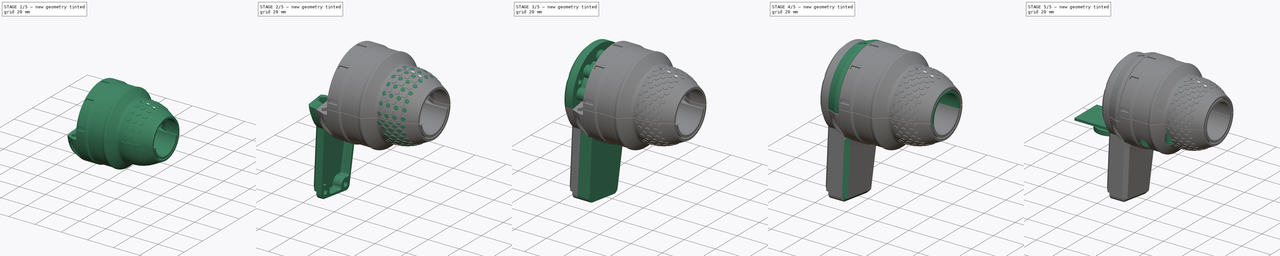
[diagram: build sequence overview — one tinted view per stage of 5, left to right]
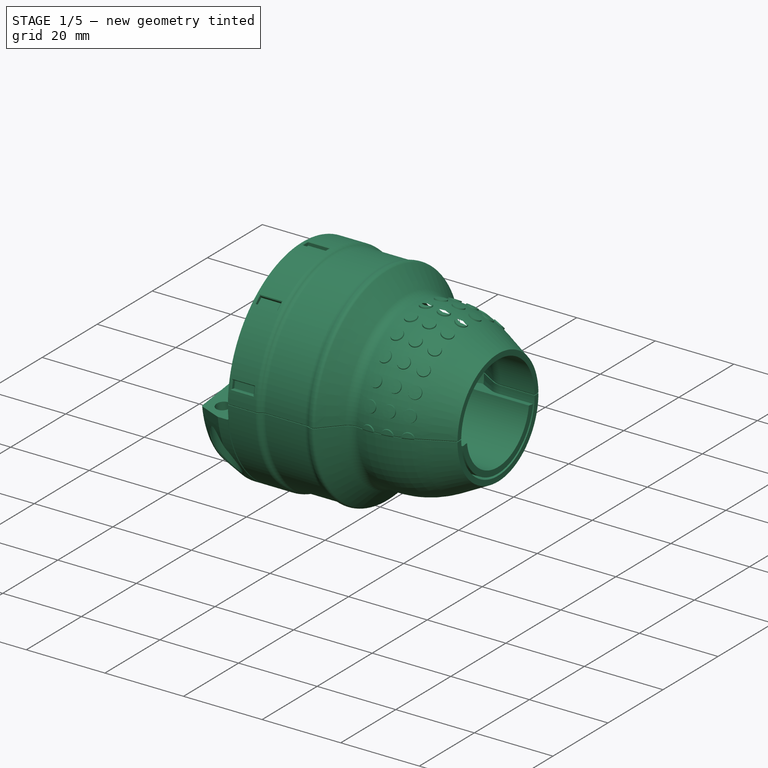
[diagram: stage 1 of 5 — iso view after this stage's code; geometry added in this stage tinted green]
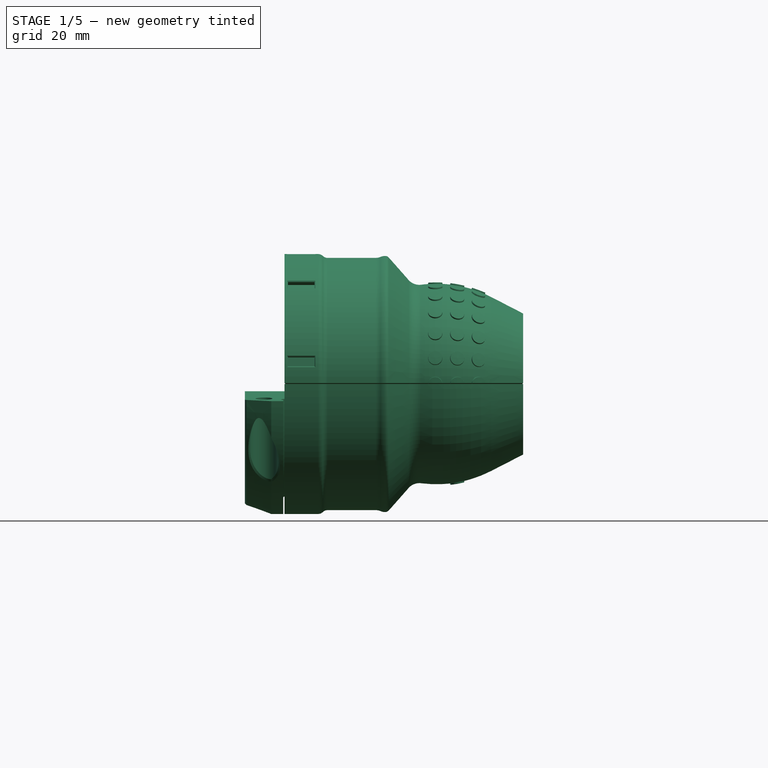
[diagram: stage 1 of 5 — front view after this stage's code; geometry added in this stage tinted green]
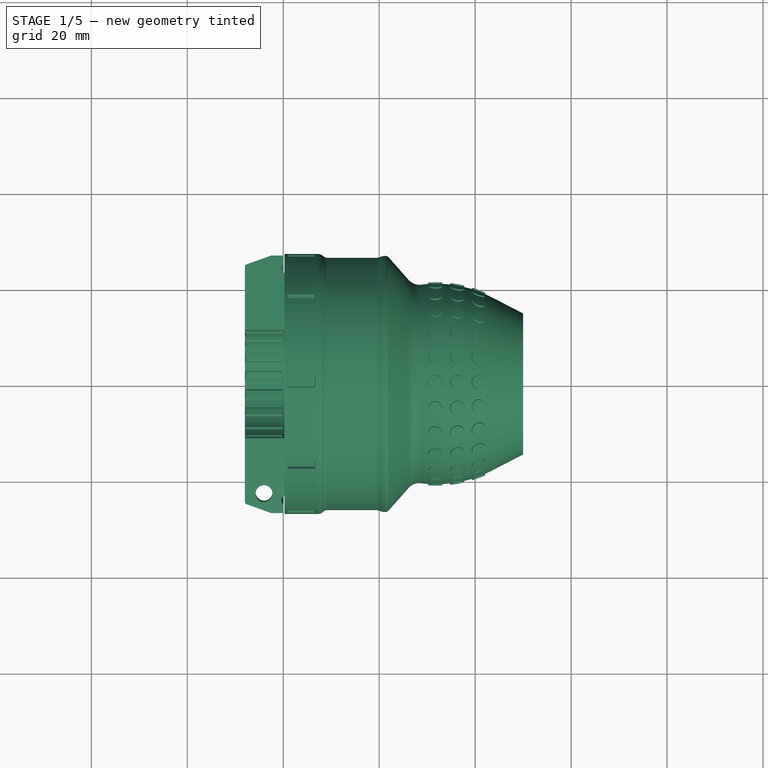
[diagram: stage 1 of 5 — top view after this stage's code; geometry added in this stage tinted green]
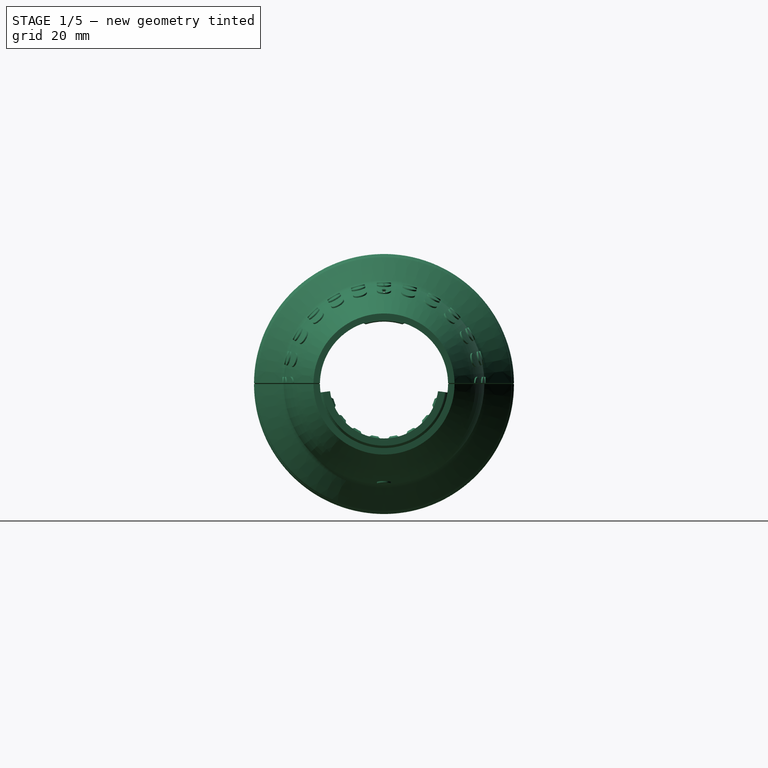
[diagram: stage 1 of 5 — right view after this stage's code; geometry added in this stage tinted green]
FCSTD DOCUMENT  (FreeCAD 1.0R39285 (Git))
Label: likertshift
License: All rights reserved
LicenseURL: http://en.wikipedia.org/wiki/All_rights_reserved
objects: Part::Feature×363, Sketcher::SketchObject×68, App::Part×44, PartDesign::Pocket×41, PartDesign::Chamfer×29, PartDesign::Mirrored×18, Part::Fuse×16, PartDesign::Revolution×15, PartDesign::PolarPattern×15, PartDesign::Line×11, PartDesign::Body×8, PartDesign::Plane×8, PartDesign::Groove×7, Part::Mirroring×6, PartDesign::MultiTransform×6, PartDesign::Pad×5, Part::Cylinder×4, Part::FeaturePython×4, Part::Box×3, Part::Sphere×2, +5 more types
note: 937 computed .brp shape members not serialized (recipe doc carries the construction recipe); baked Part::Feature solids carry a one-line shape summary decoded from their .brp

FEATURE [Sketcher::SketchObject] Sketch019
  ArcFitTolerance = 0
  AttachmentOffset = pos=(0,0,0) rot=(1,0,0;1.69017rad)
  AttachmentSupport = -> [XZ_Plane001]
  FullyConstrained = true
  MakeInternals = false
  MapMode = 5
  Placement = pos=(0,0,0) rot=(1,0,0;3.26097rad)
  expr: .AttachmentOffset.Rotation.Angle = (<<params>>.movement_range + <<params>>.rotator_angle + <<params>>.extra_angle) / 2
  expr: Constraints[2] = <<params>>.track_radius + 5 mm
  sketch-geometry (1):
    g0: Circle CenterX=-4 CenterY=23 CenterZ=0 NormalX=0 NormalY=0 NormalZ=1 AngleXU=0 Radius=2.35
  constraints (3):
    c: Diameter(g0) = 4.7
    c: DistanceX(g0,g-1) = 4
    c: DistanceY(g-1,g0) = 23
FEATURE [Sketcher::SketchObject] Sketch020
  ArcFitTolerance = 0
  AttachmentOffset = pos=(0,0,0) rot=(1,0,0;1.69017rad)
  AttachmentSupport = -> [XZ_Plane001]
  FullyConstrained = true
  MakeInternals = false
  MapMode = 5
  Placement = pos=(0,0,0) rot=(1,0,0;3.26097rad)
  expr: .AttachmentOffset.Rotation.Angle = (<<params>>.movement_range + <<params>>.rotator_angle + <<params>>.extra_angle) / 2
  expr: Constraints[2] = <<params>>.track_radius + 5 mm
  sketch-geometry (1):
    g0: Circle CenterX=-4 CenterY=23 CenterZ=0 NormalX=0 NormalY=0 NormalZ=1 AngleXU=0 Radius=1.5
  constraints (3):
    c: Diameter(g0) = 3
    c: DistanceX(g0,g-1) = 4
    c: DistanceY(g-1,g0) = 23
FEATURE [Sketcher::SketchObject] Sketch030
  ArcFitTolerance = 0
  AttachmentSupport = -> [XZ_Plane006]
  FullyConstrained = true
  MakeInternals = false
  MapMode = 5
  Placement = pos=(0,0,0) rot=(1,0,0;1.5708rad)
  expr: Constraints[113] = <<params>>.grip_bar_diameter / 2 + <<params>>.wall_thickness
  expr: Constraints[22] = 18
  expr: Constraints[8] = <<params>>.track_radius
  expr: Constraints[9] = Sketch007.Constraints.main_radius
  sketch-geometry (50):
    g0: LineSegment StartX=0.25 StartY=27.1 StartZ=0 EndX=7.25 EndY=27.1 EndZ=0
    g1: LineSegment StartX=7.1 StartY=13.35 StartZ=0 EndX=7.1 EndY=25.35 EndZ=0
    g2: LineSegment StartX=0.25 StartY=27.1 StartZ=0 EndX=0.25 EndY=24.35 EndZ=0
    g3: LineSegment StartX=0.25 StartY=24.35 StartZ=0 EndX=5.94788 EndY=25.8087 EndZ=0
    g4: GeomPoint [constr] X=7.1 Y=18 Z=0
    g5: LineSegment StartX=9.25 StartY=26.3 StartZ=0 EndX=19.25 EndY=26.3 EndZ=0
    g6: ArcOfCircle CenterX=19.25 CenterY=28.9 CenterZ=0 NormalX=0 NormalY=0 NormalZ=1 AngleXU=0 Radius=2.6 StartAngle=4.71239 EndAngle=5.10718
    g7: ArcOfCircle CenterX=21.25 CenterY=24.1 CenterZ=0 NormalX=0 NormalY=0 NormalZ=1 AngleXU=0 Radius=2.6 StartAngle=1.5708 EndAngle=1.96559
    g8: ArcOfCircle CenterX=9.25 CenterY=27.75 CenterZ=0 NormalX=0 NormalY=0 NormalZ=1 AngleXU=0 Radius=1.45 StartAngle=3.95138 EndAngle=4.71239
    g9: ArcOfCircle CenterX=7.25 CenterY=25.65 CenterZ=0 NormalX=0 NormalY=0 NormalZ=1 AngleXU=0 Radius=1.45 StartAngle=0.809784 EndAngle=1.5708
    g10: LineSegment [constr] StartX=7.1 StartY=23.3 StartZ=0 EndX=25.1 EndY=23.3 EndZ=0
    g11: LineSegment [constr] StartX=25.1 StartY=23.3 StartZ=0 EndX=25.1 EndY=13.35 EndZ=0
    g12: LineSegment StartX=6.90299 StartY=25.547 StartZ=0 EndX=7.1 EndY=25.35 EndZ=0
    g13: LineSegment [constr] StartX=6.5 StartY=25.95 StartZ=0 EndX=7.1 EndY=25.95 EndZ=0
    g14: LineSegment [constr] StartX=7.1 StartY=25.35 StartZ=0 EndX=7.1 EndY=25.95 EndZ=0
    g15: ArcOfCircle CenterX=6.19589 CenterY=24.8399 CenterZ=0 NormalX=0 NormalY=0 NormalZ=1 AngleXU=0 Radius=1 StartAngle=0.785398 EndAngle=1.82141
    g16: GeomPoint [constr] X=6.5 Y=25.95 Z=0
    g17: LineSegment StartX=31.1876 StartY=14.0625 StartZ=0 EndX=35 EndY=16.35 EndZ=0
    g18: ArcOfCircle CenterX=28.6151 CenterY=18.35 CenterZ=0 NormalX=0 NormalY=0 NormalZ=1 AngleXU=0 Radius=5 StartAngle=4.71239 EndAngle=5.25281
    g19: GeomPoint [constr] X=30 Y=13.35 Z=0
    g20: LineSegment StartX=7.1 StartY=13.35 StartZ=0 EndX=14.5602 EndY=13.35 EndZ=0
    g21: LineSegment StartX=28.6151 StartY=13.35 StartZ=0 EndX=26 EndY=13.35 EndZ=0
    g22: ArcOfCircle CenterX=21.6106 CenterY=16.8648 CenterZ=0 NormalX=0 NormalY=0 NormalZ=1 AngleXU=0 Radius=2.5 StartAngle=0.298499 EndAngle=2.35619
    g23: LineSegment StartX=14.5602 StartY=13.35 StartZ=0 EndX=19.8428 EndY=18.6326 EndZ=0
    g24: LineSegment [constr] StartX=14.5602 StartY=13.35 StartZ=0 EndX=19.8428 EndY=13.35 EndZ=0
    g25: LineSegment [constr] StartX=19.8428 StartY=13.35 StartZ=0 EndX=19.8428 EndY=18.6326 EndZ=0
    g26: LineSegment StartX=25 StartY=14.35 StartZ=0 EndX=24 EndY=17.6 EndZ=0
    g27: LineSegment StartX=26 StartY=13.35 StartZ=0 EndX=25 EndY=14.35 EndZ=0
    g28: LineSegment [constr] StartX=25 StartY=14.35 StartZ=0 EndX=25 EndY=13.35 EndZ=0
    g29: LineSegment [constr] StartX=25 StartY=13.35 StartZ=0 EndX=26 EndY=13.35 EndZ=0
    g30: ArcOfCircle CenterX=31.9059 CenterY=-4.1 CenterZ=0 NormalX=0 NormalY=0 NormalZ=1 AngleXU=0 Radius=25 StartAngle=1.09497 EndAngle=1.69737
    g31: ArcOfCircle CenterX=28.3713 CenterY=23.676 CenterZ=0 NormalX=0 NormalY=0 NormalZ=1 AngleXU=0 Radius=3 StartAngle=3.86468 EndAngle=4.83896
    g32: LineSegment [constr] StartX=31.9059 StartY=20.9 StartZ=0 EndX=31.9059 EndY=13.35 EndZ=0
    g33: ArcOfCircle CenterX=21.25 CenterY=25.7 CenterZ=0 NormalX=0 NormalY=0 NormalZ=1 AngleXU=0 Radius=1 StartAngle=0.72309 EndAngle=1.5708
    g34: LineSegment StartX=26.122 StartY=21.6909 StartZ=0 EndX=21.9998 EndY=26.3617 EndZ=0
    g35: LineSegment StartX=50 StartY=14.7 StartZ=0 EndX=50 EndY=13.35 EndZ=0
    g36: LineSegment StartX=50 StartY=13.35 StartZ=0 EndX=41.3849 EndY=13.35 EndZ=0
    g37: LineSegment [constr] StartX=21.25 StartY=26.7 StartZ=0 EndX=21.25 EndY=23.3 EndZ=0
    g38: LineSegment StartX=35 StartY=16.35 StartZ=0 EndX=38.8124 EndY=14.0625 EndZ=0
    g39: ArcOfCircle CenterX=41.3849 CenterY=18.35 CenterZ=0 NormalX=0 NormalY=0 NormalZ=1 AngleXU=0 Radius=5 StartAngle=4.17197 EndAngle=4.71239
    g40: LineSegment StartX=43.3578 StartY=18.1229 StartZ=0 EndX=50 EndY=14.7 EndZ=0
    g41: LineSegment [constr] StartX=7.1 StartY=12.6 StartZ=0 EndX=50 EndY=12.6 EndZ=0
    g42: LineSegment [constr] StartX=36.2494 StartY=20.5198 StartZ=0 EndX=36.0757 EndY=19.535 EndZ=0
    g43: LineSegment [constr] StartX=40.6633 StartY=19.316 StartZ=0 EndX=40.313 EndY=18.3793 EndZ=0
    g44: LineSegment [constr] StartX=31.6901 StartY=20.8991 StartZ=0 EndX=31.6987 EndY=19.8991 EndZ=0
    g45: LineSegment [constr] StartX=31.6987 StartY=19.8991 StartZ=0 EndX=36.0757 EndY=19.535 EndZ=0
    g46: LineSegment [constr] StartX=36.0757 StartY=19.535 StartZ=0 EndX=40.313 EndY=18.3793 EndZ=0
    g47: LineSegment [constr] StartX=31.6987 StartY=19.8991 StartZ=0 EndX=28.75 EndY=20.7 EndZ=0
    g48: LineSegment [constr] StartX=40.313 StartY=18.3793 StartZ=0 EndX=43.3578 EndY=18.1229 EndZ=0
    g49: LineSegment [constr] StartX=36.0757 StartY=19.535 StartZ=0 EndX=32.6293 EndY=0 EndZ=0
  constraints (143):
    c: Horizontal(g0)
    c: Vertical(g1)
    c: Coincident(g2,g0)
    c: Vertical(g2)
    c: Coincident(g3,g2)
    c: DistanceX(g-1,g1) = 7.1
    c: DistanceX(g-1,g0) = 0.25
    c: PointOnObject(g4,g1)
    c: DistanceY(g-1,g4) = 18
    c: DistanceY(g-1,g0) = 27.1
    c: DistanceY(g2,g2) = 2.75
    c: Tangent(g9,g0) = 1.5708
    c: Tangent(g9,g8) = 1.5708
    c: Tangent(g8,g5) = -1.5708
    c: Tangent(g6,g5) = -1.5708
    c: Tangent(g7,g6) = 1.5708
    c: Coincident(g7,g33) = 1.5708
    c: PointOnObject(g10,g1)
    c: Horizontal(g10)
    c: Coincident(g11,g10)
    c: Vertical(g11)
    c: DistanceY(g4,g10) = 5.3
    c: DistanceX(g10,g10) = 18
    c: DistanceY(g5,g33) = 0.4
    c: DistanceY(g10,g5) = 3
    c: Coincident(g12,g1)
    c: Coincident(g13,g16)
    c: Coincident(g14,g1)
    c: Horizontal(g13)
    c: Equal(g13,g14)
    c: DistanceY(g14,g14) = 0.6
    c: Vertical(g14)
    c: DistanceY(g3,g16) = 1.6
    c: Equal(g7,g6)
    c: PointOnObject(g16,g3)
    c: PointOnObject(g16,g12)
    c: Tangent(g3,g15) = 1.5708
    c: Tangent(g12,g15) = 1.5708
    c: Radius(g15) = 1
    c: PointOnObject(g19,g17)
    c: Tangent(g17,g18) = -1.5708
    c: DistanceX(g19,g17) = 5
    c: Radius(g18) = 5
    c: Coincident(g20,g1)
    c: Horizontal(g20)
    c: Horizontal(g21)
    c: Tangent(g21,g18) = 1.5708
    c: PointOnObject(g21,g20)
    c: Diameter(g22) = 5
    c: PointOnObject(g11,g20)
    c: Coincident(g23,g20)
    c: Coincident(g24,g20)
    c: Horizontal(g24)
    c: Coincident(g25,g24)
    c: Coincident(g25,g22)
    c: Vertical(g25)
    c: Equal(g25,g24)
    c: Tangent(g23,g22) = 1.5708
    c: Tangent(g26,g22) = -1.5708
    c: Coincident(g27,g21)
    c: Coincident(g27,g26)
    c: Coincident(g28,g26)
    c: Vertical(g28)
    c: Coincident(g29,g28)
    c: Coincident(g29,g21)
    c: Horizontal(g29)
    c: Equal(g29,g28)
    c: DistanceX(g29,g29) = 1
    c: DistanceX(g-1,g28) = 25
    c: DistanceX(g26,g26) = 1
    c: DistanceY(g18,g17) = 3
    c: DistanceX(g5,g33) = 2
    c: PointOnObject(g19,g21)
    c: Tangent(g31,g30) = 1.5708
    c: PointOnObject(g32,g30)
    c: Vertical(g32)
    c: Perpendicular(g30,g32)
    c: Tangent(g34,g33) = -1.5708
    c: Tangent(g34,g31) = 1.5708
    c: Tangent(g33,g7)
    c: Horizontal(g5)
    c: DistanceX(g0,g5) = 2
    c: Equal(g9,g8)
    c: Coincident(g13,g14)
    c: DistanceX(g0,g0) = 7
    c: Coincident(g36,g35)
    c: Horizontal(g36)
    c: PointOnObject(g36,g24)
    c: Vertical(g35)
    c: DistanceX(g-1,g35) = 50
    c: Coincident(g37,g7)
    c: PointOnObject(g37,g10)
    c: Vertical(g37)
    c: Perpendicular(g7,g37)
    c: Coincident(g38,g17)
    c: Tangent(g39,g36) = 1.5708
    c: Tangent(g39,g38) = -1.5708
    c: Equal(g39,g18)
    c: Equal(g38,g17)
    c: DistanceX(g5,g5) = 10
    c: DistanceX(g7,g30) = 7.5
    c: DistanceY(g30,g7) = 6
    c: Coincident(g40,g35)
    c: Tangent(g40,g30) = 1.5708
    c: DistanceY(g30,g32) = 0.2
    c: Radius(g31) = 3
    c: PointOnObject(g32,g21)
    c: Radius(g33) = 1
    c: Radius(g30) = 25  'bump_axis_length'
    c: DistanceX(g-1,g17) = 35
    c: Horizontal(g41)
    c: PointOnObject(g41,g1)
    c: PointOnObject(g41,g35)
    c: DistanceY(g-1,g41) = 12.6
    c: DistanceY(g41,g1) = 0.75
    c: DistanceY(g41,g35) = 2.1
    c: DistanceY(g41,g22) = 5
    c: PointOnObject(g42,g30)
    c: PointOnObject(g43,g30)
    c: PointOnObject(g44,g30)
    c: Coincident(g45,g44)
    c: Coincident(g45,g42)
    c: Coincident(g46,g42)
    c: Coincident(g46,g43)
    c: Equal(g45,g46)
    c: Perpendicular(g30,g42)
    c: Perpendicular(g30,g43)
    c: Perpendicular(g30,g44)
    c: Equal(g44,g42)
    c: Equal(g42,g43)
    c: Coincident(g47,g44)
    c: Coincident(g47,g30)
    c: Coincident(g48,g43)
    c: Coincident(g48,g30)
    c: Equal(g48,g47)
    c: DistanceY(g44,g44) = 1
    c: Coincident(g49,g42)
    c: PointOnObject(g49,g-1)
    c: Parallel(g49,g42)
    c: Angle(g-1,g49) = 1.39617  'center_bump_axis_angle'
    c: Angle(g42,g44) = 0.18326  'angle_between_bumps'
    c: Distance(g49,g30) = 4.16332  'bump_axis_z_offset'
    c: DistanceX(g-1,g49) = 32.6293  'bump_axis_x_offset'
FEATURE [PartDesign::Revolution] Revolution005
  Angle = 180
  Angle2 = 60
  Axis = (1,0,0)
  Base = (0,0,0)
  Midplane = true
  Placement = pos=(0,0,0) rot=(1,0,0;1.5708rad)
  Profile = -> Sketch030
  ReferenceAxis = -> Sketch030 [H_Axis]
  Suppressed = false
  Type = 0
FEATURE [Sketcher::SketchObject] Sketch031
  ArcFitTolerance = 0
  AttachmentSupport = -> [XZ_Plane006]
  FullyConstrained = true
  MakeInternals = false
  MapMode = 5
  Placement = pos=(0,0,0) rot=(1,0,0;1.5708rad)
  expr: Constraints[11] = <<params>>.wall_thickness
  expr: Constraints[24] = <<params>>.track_radius
  sketch-geometry (12):
    g0: LineSegment StartX=7 StartY=12.7 StartZ=0 EndX=24 EndY=12.7 EndZ=0
    g1: LineSegment StartX=7 StartY=23.3 StartZ=0 EndX=22.5 EndY=23.3 EndZ=0
    g2: LineSegment StartX=24 StartY=12.7 StartZ=0 EndX=24 EndY=14.9 EndZ=0
    g3: LineSegment StartX=7 StartY=12.7 StartZ=0 EndX=7 EndY=23.3 EndZ=0
    g4: LineSegment [constr] StartX=8.5 StartY=21.1 StartZ=0 EndX=8.5 EndY=14.9 EndZ=0
    g5: LineSegment [constr] StartX=8.5 StartY=14.9 StartZ=0 EndX=24 EndY=14.9 EndZ=0
    g6: LineSegment [constr] StartX=8.5 StartY=21.1 StartZ=0 EndX=24 EndY=21.1 EndZ=0
    g7: LineSegment [constr] StartX=24 StartY=21.1 StartZ=0 EndX=24 EndY=23.3 EndZ=0
    g8: LineSegment StartX=24 StartY=21.1 StartZ=0 EndX=24 EndY=14.9 EndZ=0
    g9: GeomPoint [constr] X=7 Y=18 Z=0
    g10: LineSegment StartX=24 StartY=21.6 StartZ=0 EndX=22.5 EndY=23.3 EndZ=0
    g11: LineSegment StartX=24 StartY=21.6 StartZ=0 EndX=24 EndY=21.1 EndZ=0
  constraints (33):
    c: Horizontal(g0)
    c: Horizontal(g1)
    c: Coincident(g2,g0)
    c: Coincident(g1,g3)
    c: Vertical(g3)
    c: Vertical(g4)
    c: Coincident(g5,g4)
    c: Horizontal(g5)
    c: Coincident(g6,g4)
    c: Horizontal(g6)
    c: Coincident(g7,g6)
    c: DistanceX(g3,g4) = 1.5
    c: Coincident(g8,g7)
    c: Coincident(g8,g2)
    c: Coincident(g2,g5)
    c: Vertical(g2)
    c: Vertical(g7)
    c: Vertical(g8)
    c: DistanceX(g6,g6) = 15.5
    c: Equal(g7,g2)
    c: DistanceY(g4,g4) = 6.2
    c: Coincident(g0,g3)
    c: DistanceY(g3,g3) = 10.6
    c: DistanceX(g-1,g0) = 7
    c: DistanceY(g-1,g9) = 18
    c: Symmetric(g1,g0,g9)
    c: PointOnObject(g10,g7)
    c: Coincident(g10,g1)
    c: DistanceY(g8,g10) = 0.5
    c: DistanceX(g10,g10) = 1.5
    c: PointOnObject(g7,g1)
    c: Coincident(g11,g10)
    c: Coincident(g11,g8)
FEATURE [PartDesign::Groove] Groove002
  Angle = 38.7188
  Angle2 = 60
  Axis = (1,0,0)
  Base = (0,0,0)
  BaseFeature = -> Revolution005
  Midplane = true
  Placement = pos=(0,0,0) rot=(1,0,0;1.5708rad)
  Profile = -> Sketch031
  ReferenceAxis = -> Sketch031 [H_Axis]
  Refine = true
  Reversed = true
  Suppressed = false
  Type = 0
  expr: Angle = <<params>>.rotator_angle * 1.5 + 0.2 °
FEATURE [Sketcher::SketchObject] Sketch038
  ArcFitTolerance = 0
  AttachmentOffset = pos=(0,0,-23.5) rot=(0,0,1;0rad)
  AttachmentSupport = -> [YZ_Plane006]
  FullyConstrained = true
  MakeInternals = false
  MapMode = 5
  Placement = pos=(23.5,0,0) rot=(0.57735,-0.57735,-0.57735;2.0944rad)
  expr: Constraints[2] = <<params>>.track_radius
  sketch-geometry (1):
    g0: Circle CenterX=0 CenterY=18 CenterZ=0 NormalX=0 NormalY=0 NormalZ=1 AngleXU=0 Radius=3.2
  constraints (3):
    c: PointOnObject(g0,g-2)
    c: Diameter(g0) = 6.4
    c: DistanceY(g-1,g0) = 18
FEATURE [PartDesign::Pocket] Pocket019
  BaseFeature = -> Groove002
  Direction = (1,0,0)
  Length = 2
  Length2 = 5
  Placement = pos=(0,0,0) rot=(1,0,0;1.5708rad)
  Profile = -> Sketch038
  ReferenceAxis = -> Sketch038 [N_Axis]
  Refine = true
  Suppressed = false
  Type = 0
FEATURE [Sketcher::SketchObject] Sketch052
  ArcFitTolerance = 0
  AttachmentSupport = -> [XZ_Plane001]
  FullyConstrained = true
  MakeInternals = false
  MapMode = 5
  Placement = pos=(0,0,0) rot=(1,0,0;1.5708rad)
  expr: Constraints[11] = <<params>>.grip_bar_diameter / 2 + 0.25 mm
  expr: Constraints[7] = <<params>>.wall_thickness
  expr: Constraints[9] = <<params>>.ball_size + 6 mm + 14 mm
  sketch-geometry (8):
    g0: ArcOfCircle CenterX=21 CenterY=12.85 CenterZ=0 NormalX=0 NormalY=0 NormalZ=1 AngleXU=0 Radius=1.5 StartAngle=4.71239 EndAngle=6.28319
    g1: LineSegment StartX=22.5 StartY=12.85 StartZ=0 EndX=24 EndY=12.85 EndZ=0
    g2: LineSegment StartX=24 StartY=12.85 StartZ=0 EndX=24 EndY=11.35 EndZ=0
    g3: LineSegment StartX=24 StartY=11.35 StartZ=0 EndX=21 EndY=11.35 EndZ=0
    g4: LineSegment StartX=-8 StartY=13.1 StartZ=0 EndX=-8 EndY=11.35 EndZ=0
    g5: LineSegment StartX=-8 StartY=13.1 StartZ=0 EndX=-6.5 EndY=13.1 EndZ=0
    g6: LineSegment StartX=-8 StartY=11.35 StartZ=0 EndX=-4.75 EndY=11.35 EndZ=0
    g7: ArcOfCircle CenterX=-4.75 CenterY=13.1 CenterZ=0 NormalX=0 NormalY=0 NormalZ=1 AngleXU=0 Radius=1.75 StartAngle=3.14159 EndAngle=4.71239
  constraints (24):
    c: Coincident(g1,g0)
    c: Horizontal(g1)
    c: Coincident(g2,g1)
    c: Vertical(g2)
    c: Coincident(g3,g2)
    c: Horizontal(g3)
    c: Tangent(g3,g0) = 1.5708
    c: DistanceY(g2,g2) = 1.5
    c: Perpendicular(g0,g1)
    c: DistanceX(g-1,g2) = 24
    c: DistanceX(g1,g1) = 1.5
    c: DistanceY(g-1,g0) = 11.35
    c: Vertical(g4)
    c: Coincident(g5,g4)
    c: Horizontal(g5)
    c: Coincident(g6,g4)
    c: Horizontal(g6)
    c: Coincident(g7,g5)
    c: Tangent(g7,g6) = -1.5708
    c: Perpendicular(g7,g5)
    c: PointOnObject(g6,g3)
    c: DistanceX(g4,g-1) = 8
    c: DistanceX(g5,g5) = 1.5
    c: DistanceY(g4,g4) = 1.75
FEATURE [Sketcher::SketchObject] Sketch053
  ArcFitTolerance = 0
  AttachmentOffset = pos=(0,0,8) rot=(0,0,1;-1.0472rad)
  AttachmentSupport = -> [YZ_Plane001]
  FullyConstrained = true
  MakeInternals = false
  MapMode = 5
  Placement = pos=(-8,0,0) rot=(-0.694747,0.186157,0.694747;3.50969rad)
  expr: .AttachmentOffset.Rotation.Angle = -(<<params>>.positions / 2 - 1) * <<params>>.angle_between
  expr: Constraints[2] = <<params>>.track_radius + 2.5 mm
  sketch-geometry (1):
    g0: Circle CenterX=0 CenterY=20.5 CenterZ=0 NormalX=0 NormalY=0 NormalZ=1 AngleXU=0 Radius=2.35
  constraints (3):
    c: PointOnObject(g0,g-2)
    c: Diameter(g0) = 4.7
    c: DistanceY(g-1,g0) = 20.5
FEATURE [Sketcher::SketchObject] Sketch054
  ArcFitTolerance = 0
  AttachmentOffset = pos=(0,0,8) rot=(0,0,1;-1.0472rad)
  AttachmentSupport = -> [YZ_Plane001]
  FullyConstrained = true
  MakeInternals = false
  MapMode = 5
  Placement = pos=(-8,0,0) rot=(-0.694747,0.186157,0.694747;3.50969rad)
  expr: .AttachmentOffset.Rotation.Angle = -(<<params>>.positions / 2 - 1) * <<params>>.angle_between
  expr: Constraints[2] = <<params>>.track_radius + 2.5 mm
  sketch-geometry (1):
    g0: Circle CenterX=0 CenterY=20.5 CenterZ=0 NormalX=0 NormalY=0 NormalZ=1 AngleXU=0 Radius=1.5
  constraints (3):
    c: PointOnObject(g0,g-2)
    c: Diameter(g0) = 3
    c: DistanceY(g-1,g0) = 20.5
FEATURE [Sketcher::SketchObject] Sketch055
  ArcFitTolerance = 0
  AttachmentSupport = -> [XY_Plane006]
  FullyConstrained = true
  MakeInternals = false
  MapMode = 5
  Placement = pos=(0,0,0) rot=(0,1,0;3.14159rad)
  expr: Constraints[3] = <<params>>.track_radius + 2 mm
  expr: Constraints[8] = <<params>>.track_radius - 1.25 mm
  sketch-geometry (3):
    g0: Circle CenterX=-28.5 CenterY=16.75 CenterZ=0 NormalX=0 NormalY=0 NormalZ=1 AngleXU=0 Radius=2.35
    g1: Circle CenterX=-13 CenterY=20 CenterZ=0 NormalX=0 NormalY=0 NormalZ=1 AngleXU=0 Radius=2.35
    g2: LineSegment [constr] StartX=-13 StartY=20 StartZ=0 EndX=0 EndY=20 EndZ=0
  constraints (9):
    c: Coincident(g2,g1)
    c: PointOnObject(g2,g-2)
    c: Horizontal(g2)
    c: DistanceY(g-1,g2) = 20
    c: DistanceX(g2,g2) = 13
    c: Equal(g1,g0)
    c: Diameter(g1) = 4.7
    c: DistanceX(g0,g2) = 28.5
    c: DistanceY(g-1,g0) = 16.75
FEATURE [PartDesign::Pocket] Pocket030
  BaseFeature = -> Pocket019
  Direction = (0,0,1)
  Length = 4
  Length2 = 5
  Placement = pos=(0,0,0) rot=(1,0,0;1.5708rad)
  Profile = -> Sketch055
  ReferenceAxis = -> Sketch055 [N_Axis]
  Suppressed = false
  Type = 0
FEATURE [Sketcher::SketchObject] Sketch056
  ArcFitTolerance = 0
  AttachmentSupport = -> [XY_Plane006]
  FullyConstrained = true
  MakeInternals = false
  MapMode = 5
  Placement = pos=(0,0,0) rot=(0,1,0;3.14159rad)
  expr: Constraints[3] = <<params>>.track_radius + 2 mm
  expr: Constraints[7] = <<params>>.track_radius - 1.25 mm
  sketch-geometry (3):
    g0: Circle CenterX=-28.5 CenterY=16.75 CenterZ=0 NormalX=0 NormalY=0 NormalZ=1 AngleXU=0 Radius=1.5
    g1: Circle CenterX=-13 CenterY=20 CenterZ=0 NormalX=0 NormalY=0 NormalZ=1 AngleXU=0 Radius=1.5
    g2: LineSegment [constr] StartX=-13 StartY=20 StartZ=0 EndX=0 EndY=20 EndZ=0
  constraints (9):
    c: Coincident(g2,g1)
    c: PointOnObject(g2,g-2)
    c: Horizontal(g2)
    c: DistanceY(g-1,g2) = 20
    c: Equal(g1,g0)
    c: Diameter(g1) = 3
    c: DistanceX(g1,g2) = 13
    c: DistanceY(g-1,g0) = 16.75
    c: DistanceX(g0,g-1) = 28.5
FEATURE [PartDesign::Pocket] Pocket031
  BaseFeature = -> Pocket030
  Direction = (0,0,1)
  Length = 8
  Length2 = 5
  Placement = pos=(0,0,0) rot=(1,0,0;1.5708rad)
  Profile = -> Sketch056
  ReferenceAxis = -> Sketch056 [N_Axis]
  Suppressed = false
  Type = 0
FEATURE [Sketcher::SketchObject] Sketch085
  ArcFitTolerance = 0
  AttachmentSupport = -> [XZ_Plane001]
  FullyConstrained = true
  MakeInternals = false
  MapMode = 5
  Placement = pos=(0,0,0) rot=(1,0,0;1.5708rad)
  expr: Constraints[7] = <<params>>.grip_bar_diameter / 2
  sketch-geometry (5):
    g0: LineSegment StartX=-8 StartY=16.1 StartZ=0 EndX=-8 EndY=12.1 EndZ=0
    g1: LineSegment StartX=-8 StartY=12.1 StartZ=0 EndX=-6.5 EndY=12.85 EndZ=0
    g2: LineSegment StartX=-6.5 StartY=12.85 StartZ=0 EndX=-6.5 EndY=15.35 EndZ=0
    g3: LineSegment StartX=-6.5 StartY=15.35 StartZ=0 EndX=-8 EndY=16.1 EndZ=0
    g4: GeomPoint [constr] X=-8 Y=11.1 Z=0
  constraints (14):
    c: Vertical(g0)
    c: Coincident(g0,g1)
    c: Coincident(g1,g2)
    c: Vertical(g2)
    c: Coincident(g2,g3)
    c: Coincident(g3,g0)
    c: Equal(g3,g1)
    c: DistanceY(g-1,g4) = 11.1
    c: DistanceX(g4,g-1) = 8
    c: PointOnObject(g4,g0)
    c: DistanceY(g4,g0) = 1
    c: DistanceY(g0,g0) = 4
    c: DistanceY(g2,g2) = 2.5
    c: DistanceX(g3,g3) = 1.5
FEATURE [Sketcher::SketchObject] Sketch092
  ArcFitTolerance = 0
  AttachmentOffset = pos=(0,0,0) rot=(-1,0,0;1.5708rad)
  AttachmentSupport = -> [XZ_Plane011]
  FullyConstrained = true
  MakeInternals = false
  MapMode = 5
  expr: Constraints[113] = <<params>>.grip_bar_diameter / 2 + <<params>>.wall_thickness
  expr: Constraints[22] = 18
  expr: Constraints[8] = <<params>>.track_radius
  expr: Constraints[9] = Sketch007.Constraints.main_radius
  sketch-geometry (42):
    g0: LineSegment StartX=0.25 StartY=27.1 StartZ=0 EndX=7.25 EndY=27.1 EndZ=0
    g1: LineSegment StartX=7.1 StartY=13.35 StartZ=0 EndX=7.1 EndY=25.35 EndZ=0
    g2: LineSegment StartX=0.25 StartY=27.1 StartZ=0 EndX=0.25 EndY=24.35 EndZ=0
    g3: LineSegment StartX=0.25 StartY=24.35 StartZ=0 EndX=5.94788 EndY=25.8087 EndZ=0
    g4: GeomPoint [constr] X=7.1 Y=18 Z=0
    g5: LineSegment StartX=9.25 StartY=26.3 StartZ=0 EndX=19.25 EndY=26.3 EndZ=0
    g6: ArcOfCircle CenterX=19.25 CenterY=28.9 CenterZ=0 NormalX=0 NormalY=0 NormalZ=1 AngleXU=0 Radius=2.6 StartAngle=4.71239 EndAngle=5.10718
    g7: ArcOfCircle CenterX=21.25 CenterY=24.1 CenterZ=0 NormalX=0 NormalY=0 NormalZ=1 AngleXU=0 Radius=2.6 StartAngle=1.5708 EndAngle=1.96559
    g8: ArcOfCircle CenterX=9.25 CenterY=27.75 CenterZ=0 NormalX=0 NormalY=0 NormalZ=1 AngleXU=0 Radius=1.45 StartAngle=3.95138 EndAngle=4.71239
    g9: ArcOfCircle CenterX=7.25 CenterY=25.65 CenterZ=0 NormalX=0 NormalY=0 NormalZ=1 AngleXU=0 Radius=1.45 StartAngle=0.809784 EndAngle=1.5708
    g10: LineSegment [constr] StartX=7.1 StartY=23.3 StartZ=0 EndX=25.1 EndY=23.3 EndZ=0
    g11: LineSegment [constr] StartX=25.1 StartY=23.3 StartZ=0 EndX=25.1 EndY=13.35 EndZ=0
    g12: LineSegment StartX=6.90299 StartY=25.547 StartZ=0 EndX=7.1 EndY=25.35 EndZ=0
    g13: LineSegment [constr] StartX=6.5 StartY=25.95 StartZ=0 EndX=7.1 EndY=25.95 EndZ=0
    g14: LineSegment [constr] StartX=7.1 StartY=25.35 StartZ=0 EndX=7.1 EndY=25.95 EndZ=0
    g15: ArcOfCircle CenterX=6.19589 CenterY=24.8399 CenterZ=0 NormalX=0 NormalY=0 NormalZ=1 AngleXU=0 Radius=1 StartAngle=0.785398 EndAngle=1.82141
    g16: GeomPoint [constr] X=6.5 Y=25.95 Z=0
    g17: LineSegment StartX=31.1876 StartY=14.0625 StartZ=0 EndX=35 EndY=16.35 EndZ=0
    g18: ArcOfCircle CenterX=28.6151 CenterY=18.35 CenterZ=0 NormalX=0 NormalY=0 NormalZ=1 AngleXU=0 Radius=5 StartAngle=4.71239 EndAngle=5.25281
    g19: GeomPoint [constr] X=30 Y=13.35 Z=0
    g20: LineSegment StartX=7.1 StartY=13.35 StartZ=0 EndX=14.5602 EndY=13.35 EndZ=0
    g21: LineSegment StartX=28.6151 StartY=13.35 StartZ=0 EndX=26 EndY=13.35 EndZ=0
    g22: ArcOfCircle CenterX=21.6106 CenterY=16.8648 CenterZ=0 NormalX=0 NormalY=0 NormalZ=1 AngleXU=0 Radius=2.5 StartAngle=0.298499 EndAngle=2.35619
    g23: LineSegment StartX=14.5602 StartY=13.35 StartZ=0 EndX=19.8428 EndY=18.6326 EndZ=0
    g24: LineSegment [constr] StartX=14.5602 StartY=13.35 StartZ=0 EndX=19.8428 EndY=13.35 EndZ=0
    g25: LineSegment [constr] StartX=19.8428 StartY=13.35 StartZ=0 EndX=19.8428 EndY=18.6326 EndZ=0
    g26: LineSegment StartX=25 StartY=14.35 StartZ=0 EndX=24 EndY=17.6 EndZ=0
    g27: LineSegment StartX=26 StartY=13.35 StartZ=0 EndX=25 EndY=14.35 EndZ=0
    g28: LineSegment [constr] StartX=25 StartY=14.35 StartZ=0 EndX=25 EndY=13.35 EndZ=0
    g29: LineSegment [constr] StartX=25 StartY=13.35 StartZ=0 EndX=26 EndY=13.35 EndZ=0
    g30: ArcOfCircle CenterX=31.9059 CenterY=-4.1 CenterZ=0 NormalX=0 NormalY=0 NormalZ=1 AngleXU=0 Radius=25 StartAngle=1.09497 EndAngle=1.69737
    g31: ArcOfCircle CenterX=28.3713 CenterY=23.676 CenterZ=0 NormalX=0 NormalY=0 NormalZ=1 AngleXU=0 Radius=3 StartAngle=3.86468 EndAngle=4.83896
    g32: LineSegment [constr] StartX=31.9059 StartY=20.9 StartZ=0 EndX=31.9059 EndY=13.35 EndZ=0
    g33: ArcOfCircle CenterX=21.25 CenterY=25.7 CenterZ=0 NormalX=0 NormalY=0 NormalZ=1 AngleXU=0 Radius=1 StartAngle=0.72309 EndAngle=1.5708
    g34: LineSegment StartX=26.122 StartY=21.6909 StartZ=0 EndX=21.9998 EndY=26.3617 EndZ=0
    g35: LineSegment StartX=50 StartY=14.7 StartZ=0 EndX=50 EndY=13.35 EndZ=0
    g36: LineSegment StartX=50 StartY=13.35 StartZ=0 EndX=41.3849 EndY=13.35 EndZ=0
    g37: LineSegment [constr] StartX=21.25 StartY=26.7 StartZ=0 EndX=21.25 EndY=23.3 EndZ=0
    g38: LineSegment StartX=35 StartY=16.35 StartZ=0 EndX=38.8124 EndY=14.0625 EndZ=0
    g39: ArcOfCircle CenterX=41.3849 CenterY=18.35 CenterZ=0 NormalX=0 NormalY=0 NormalZ=1 AngleXU=0 Radius=5 StartAngle=4.17197 EndAngle=4.71239
    g40: LineSegment StartX=43.3578 StartY=18.1229 StartZ=0 EndX=50 EndY=14.7 EndZ=0
    g41: LineSegment [constr] StartX=7.1 StartY=12.6 StartZ=0 EndX=50 EndY=12.6 EndZ=0
  constraints (117):
    c: Horizontal(g0)
    c: Vertical(g1)
    c: Coincident(g2,g0)
    c: Vertical(g2)
    c: Coincident(g3,g2)
    c: DistanceX(g-1,g1) = 7.1
    c: DistanceX(g-1,g0) = 0.25
    c: PointOnObject(g4,g1)
    c: DistanceY(g-1,g4) = 18
    c: DistanceY(g-1,g0) = 27.1
    c: DistanceY(g2,g2) = 2.75
    c: Tangent(g9,g0) = 1.5708
    c: Tangent(g9,g8) = 1.5708
    c: Tangent(g8,g5) = -1.5708
    c: Tangent(g6,g5) = -1.5708
    c: Tangent(g7,g6) = 1.5708
    c: Coincident(g7,g33) = 1.5708
    c: PointOnObject(g10,g1)
    c: Horizontal(g10)
    c: Coincident(g11,g10)
    c: Vertical(g11)
    c: DistanceY(g4,g10) = 5.3
    c: DistanceX(g10,g10) = 18
    c: DistanceY(g5,g33) = 0.4
    c: DistanceY(g10,g5) = 3
    c: Coincident(g12,g1)
    c: Coincident(g13,g16)
    c: Coincident(g14,g1)
    c: Horizontal(g13)
    c: Equal(g13,g14)
    c: DistanceY(g14,g14) = 0.6
    c: Vertical(g14)
    c: DistanceY(g3,g16) = 1.6
    c: Equal(g7,g6)
    c: PointOnObject(g16,g3)
    c: PointOnObject(g16,g12)
    c: Tangent(g3,g15) = 1.5708
    c: Tangent(g12,g15) = 1.5708
    c: Radius(g15) = 1
    c: PointOnObject(g19,g17)
    c: Tangent(g17,g18) = -1.5708
    c: DistanceX(g19,g17) = 5
    c: Radius(g18) = 5
    c: Coincident(g20,g1)
    c: Horizontal(g20)
    c: Horizontal(g21)
    c: Tangent(g21,g18) = 1.5708
    c: PointOnObject(g21,g20)
    c: Diameter(g22) = 5
    c: PointOnObject(g11,g20)
    c: Coincident(g23,g20)
    c: Coincident(g24,g20)
    c: Horizontal(g24)
    c: Coincident(g25,g24)
    c: Coincident(g25,g22)
    c: Vertical(g25)
    c: Equal(g25,g24)
    c: Tangent(g23,g22) = 1.5708
    c: Tangent(g26,g22) = -1.5708
    c: Coincident(g27,g21)
    c: Coincident(g27,g26)
    c: Coincident(g28,g26)
    c: Vertical(g28)
    c: Coincident(g29,g28)
    c: Coincident(g29,g21)
    c: Horizontal(g29)
    c: Equal(g29,g28)
    c: DistanceX(g29,g29) = 1
    c: DistanceX(g-1,g28) = 25
    c: DistanceX(g26,g26) = 1
    c: DistanceY(g18,g17) = 3
    c: DistanceX(g5,g33) = 2
    c: PointOnObject(g19,g21)
    c: Tangent(g31,g30) = 1.5708
    c: PointOnObject(g32,g30)
    c: Vertical(g32)
    c: Perpendicular(g30,g32)
    c: Tangent(g34,g33) = -1.5708
    c: Tangent(g34,g31) = 1.5708
    c: Tangent(g33,g7)
    c: Horizontal(g5)
    c: DistanceX(g0,g5) = 2
    c: Equal(g9,g8)
    c: Coincident(g13,g14)
    c: DistanceX(g0,g0) = 7
    c: Coincident(g36,g35)
    c: Horizontal(g36)
    c: PointOnObject(g36,g24)
    c: Vertical(g35)
    c: DistanceX(g-1,g35) = 50
    c: Coincident(g37,g7)
    c: PointOnObject(g37,g10)
    c: Vertical(g37)
    c: Perpendicular(g7,g37)
    c: Coincident(g38,g17)
    c: Tangent(g39,g36) = 1.5708
    c: Tangent(g39,g38) = -1.5708
    c: Equal(g39,g18)
    c: Equal(g38,g17)
    c: DistanceX(g5,g5) = 10
    c: DistanceX(g7,g30) = 7.5
    c: DistanceY(g30,g7) = 6
    c: Coincident(g40,g35)
    c: Tangent(g40,g30) = 1.5708
    c: DistanceY(g30,g32) = 0.2
    c: Radius(g31) = 3
    c: PointOnObject(g32,g21)
    c: Radius(g33) = 1
    c: Radius(g30) = 25
    c: DistanceX(g-1,g17) = 35
    c: Horizontal(g41)
    c: PointOnObject(g41,g35)
    c: PointOnObject(g41,g1)
    c: DistanceY(g-1,g41) = 12.6
    c: DistanceY(g41,g1) = 0.75
    c: DistanceY(g41,g35) = 2.1
    c: DistanceY(g41,g22) = 5
FEATURE [PartDesign::Revolution] Revolution015
  Angle = 180
  Angle2 = 60
  Axis = (1,0,0)
  Base = (0,0,0)
  Placement = pos=(0,0,0) rot=(1,0,0;1.5708rad)
  Profile = -> Sketch092
  ReferenceAxis = -> Sketch092 [H_Axis]
  Reversed = true
  Suppressed = false
  Type = 0
FEATURE [PartDesign::Body] Body001  label="grip_base"
  AllowCompound = false
  Group = -> [Sketch007,Revolution,Pocket055,PolarPattern008,Pocket021,Pocket022,Pocket023,Pocket024,PolarPattern,Sketch019,Pocket012,Sketch020,Pocket013,Mirrored,Groove005,Sketch041,Sketch042,Sketch043,Sketch044,Sketch046,Pocket025,Sketch052,Groove,Sketch053,Sketch054,Pocket028,Pocket029,Chamfer012,Mirrored002,Sketch085,Sketch110,Pocket054,Chamfer035,Sketch111]
  Origin = -> Origin001
  Tip = -> Chamfer035
FEATURE [PartDesign::Plane] DatumPlane001
  AttachmentOffset = pos=(0,0,0) rot=(1,0,0;1.39626rad)
  AttachmentSupport = -> [XY_Plane006]
  Length = 88.4967
  MapMode = 5
  Placement = pos=(0,0,0) rot=(1,0,0;1.39626rad)
  ResizeMode = 0
  Width = 74.2166
  expr: .AttachmentOffset.Rotation.Roll = (<<params>>.positions / 2 - 0.5) * <<params>>.angle_between
FEATURE [Sketcher::SketchObject] Sketch114
  ArcFitTolerance = 1e-06
  AttachmentOffset = pos=(0,0,27.1) rot=(1,0,0;0rad)
  AttachmentSupport = -> [DatumPlane001]
  FullyConstrained = true
  MakeInternals = false
  MapMode = 5
  Placement = pos=(0,-26.6883,4.70587) rot=(1,0,0;1.39626rad)
  expr: .AttachmentOffset.Base.z = Sketch007.Constraints.main_radius
  sketch-geometry (4):
    g0: LineSegment StartX=1 StartY=1 StartZ=0 EndX=1 EndY=-1 EndZ=0
    g1: LineSegment StartX=1 StartY=-1 StartZ=0 EndX=6.5 EndY=-1 EndZ=0
    g2: LineSegment StartX=6.5 StartY=-1 StartZ=0 EndX=6.5 EndY=1 EndZ=0
    g3: LineSegment StartX=6.5 StartY=1 StartZ=0 EndX=1 EndY=1 EndZ=0
  constraints (11):
    c: Coincident(g0,g1)
    c: Coincident(g1,g2)
    c: Coincident(g2,g3)
    c: Coincident(g3,g0)
    c: Vertical(g2)
    c: Horizontal(g1)
    c: Horizontal(g3)
    c: Distance(g0,g2) = 5.5
    c: Distance(g1,g3) = 2
    c: Symmetric(g0,g0,g-1)
    c: DistanceX(g-1,g0) = 1
FEATURE [Part::Feature] Part__Feature228  label="R_0603_1608Metric020"
  shape: bbox 1.6 x 0.8 x 0.45 mm, 26 faces (baked)
FEATURE [Part::Feature] Part__Feature229  label="R_0603_1608Metric021"
  shape: bbox 1.6 x 0.8 x 0.45 mm, 26 faces (baked)
FEATURE [Part::Feature] Part__Feature230  label="R_0603_1608Metric022"
  shape: bbox 1.6 x 0.8 x 0.45 mm, 26 faces (baked)
FEATURE [Part::Feature] Part__Feature231  label="R_0603_1608Metric023"
  shape: bbox 1.6 x 0.8 x 0.45 mm, 26 faces (baked)
FEATURE [Part::Feature] Part__Feature232  label="R_0603_1608Metric024"
  shape: bbox 1.6 x 0.8 x 0.45 mm, 26 faces (baked)
FEATURE [Part::Feature] Part__Feature233  label="R_0603_1608Metric025"
  shape: bbox 1.6 x 0.8 x 0.45 mm, 26 faces (baked)
FEATURE [Part::Feature] Part__Feature234  label="R_0603_1608Metric026"
  shape: bbox 1.6 x 0.8 x 0.45 mm, 26 faces (baked)
FEATURE [Part::Feature] Part__Feature235  label="R_0603_1608Metric027"
  shape: bbox 1.6 x 0.8 x 0.45 mm, 26 faces (baked)
FEATURE [Part::Feature] Part__Feature236  label="root104"
  shape: bbox 9.899 x 12.1 x 0.2 mm, 8 faces (baked)
FEATURE [Part::Feature] Part__Feature237  label="root105"
  shape: bbox 10.3 x 12.5 x 1.5 mm, 27 faces (baked)
FEATURE [Part::Feature] Part__Feature238  label="root106"
  shape: bbox 1.524 x 2.032 x 0.08 mm, 25 faces (baked)
FEATURE [Part::Feature] Part__Feature239  label="root107"
  shape: bbox 1.524 x 2.032 x 0.08 mm, 25 faces (baked)
FEATURE [Part::Feature] Part__Feature240  label="root108"
  shape: bbox 1.524 x 2.032 x 0.08 mm, 25 faces (baked)
FEATURE [Part::Feature] Part__Feature241  label="root109"
  shape: bbox 1.524 x 2.032 x 0.08 mm, 25 faces (baked)
FEATURE [Part::Feature] Part__Feature242  label="root110"
  shape: bbox 1.524 x 2.032 x 0.08 mm, 25 faces (baked)
FEATURE [Part::Feature] Part__Feature243  label="root111"
  shape: bbox 1.524 x 2.032 x 0.08 mm, 25 faces (baked)
FEATURE [Part::Feature] Part__Feature244  label="root112"
  shape: bbox 1.524 x 2.032 x 0.08 mm, 25 faces (baked)
FEATURE [Part::Feature] Part__Feature245  label="root113"
  shape: bbox 1.524 x 2.032 x 0.08 mm, 25 faces (baked)
FEATURE [Part::Feature] Part__Feature246  label="root114"
  shape: bbox 1.524 x 2.032 x 0.08 mm, 25 faces (baked)
FEATURE [Part::Feature] Part__Feature247  label="root115"
  shape: bbox 1.524 x 2.032 x 0.08 mm, 25 faces (baked)
FEATURE [Part::Feature] Part__Feature248  label="root116"
  shape: bbox 1.524 x 2.032 x 0.08 mm, 25 faces (baked)
FEATURE [Part::Feature] Part__Feature249  label="root117"
  shape: bbox 1.524 x 2.032 x 0.08 mm, 25 faces (baked)
FEATURE [Part::Feature] Part__Feature250  label="root118"
  shape: bbox 1.524 x 2.032 x 0.08 mm, 25 faces (baked)
FEATURE [Part::Feature] Part__Feature251  label="root119"
  shape: bbox 1.524 x 2.032 x 0.08 mm, 25 faces (baked)
FEATURE [Part::Feature] Part__Feature252  label="root120"
  shape: bbox 1.524 x 2.032 x 0.08 mm, 25 faces (baked)
FEATURE [Part::Feature] Part__Feature253  label="root121"
  shape: bbox 1.524 x 2.032 x 0.08 mm, 25 faces (baked)
FEATURE [Part::Feature] Part__Feature254  label="root122"
  shape: bbox 1.524 x 2.032 x 0.08 mm, 25 faces (baked)
FEATURE [Part::Feature] Part__Feature255  label="root123"
  shape: bbox 1.524 x 2.032 x 0.08 mm, 25 faces (baked)
FEATURE [Part::Feature] Part__Feature256  label="root124"
  shape: bbox 1.524 x 2.032 x 0.08 mm, 25 faces (baked)
FEATURE [Part::Feature] Part__Feature257  label="root125"
  shape: bbox 1.524 x 2.032 x 0.08 mm, 25 faces (baked)
FEATURE [Part::Feature] Part__Feature258  label="root126"
  shape: bbox 1.524 x 2.032 x 0.08 mm, 25 faces (baked)
FEATURE [Part::Feature] Part__Feature259  label="root127"
  shape: bbox 1.524 x 2.032 x 0.1 mm, 25 faces (baked)
FEATURE [Part::Feature] Part__Feature260  label="root128"
  shape: bbox 1.524 x 2.032 x 0.1 mm, 25 faces (baked)
FEATURE [Part::Feature] Part__Feature261  label="root129"
  shape: bbox 1.524 x 2.032 x 0.1 mm, 25 faces (baked)
FEATURE [Part::Feature] Part__Feature262  label="root130"
  shape: bbox 1.524 x 2.032 x 0.1 mm, 25 faces (baked)
FEATURE [Part::Feature] Part__Feature263  label="root131"
  shape: bbox 1.524 x 2.032 x 0.1 mm, 25 faces (baked)
FEATURE [Part::Feature] Part__Feature264  label="root132"
  shape: bbox 1.524 x 2.032 x 0.1 mm, 25 faces (baked)
FEATURE [Part::Feature] Part__Feature265  label="root133"
  shape: bbox 1.524 x 2.032 x 0.1 mm, 25 faces (baked)
FEATURE [Part::Feature] Part__Feature266  label="root134"
  shape: bbox 0.9144 x 1.93 x 0.2 mm, 10 faces (baked)
FEATURE [Part::Feature] Part__Feature267  label="root135"
  shape: bbox 0.9144 x 1.93 x 0.2 mm, 10 faces (baked)
FEATURE [Part::Feature] Part__Feature268  label="root136"
  shape: bbox 0.4369 x 0.9449 x 0.1 mm, 6 faces (baked)
FEATURE [Part::Feature] Part__Feature269  label="root137"
  shape: bbox 0.4369 x 0.9449 x 0.1 mm, 6 faces (baked)
FEATURE [Part::Feature] Part__Feature270  label="root138"
  shape: bbox 0.4369 x 0.9449 x 0.1 mm, 6 faces (baked)
FEATURE [Part::Feature] Part__Feature271  label="root139"
  shape: bbox 0.4369 x 0.9449 x 0.1 mm, 6 faces (baked)
FEATURE [Part::Feature] Part__Feature272  label="root140"
  shape: bbox 0.4369 x 0.9449 x 0.1 mm, 6 faces (baked)
FEATURE [Part::Feature] Part__Feature273  label="root141"
  shape: bbox 0.4369 x 0.9449 x 0.1 mm, 6 faces (baked)
FEATURE [Part::Feature] Part__Feature274  label="root142"
  shape: bbox 1.219 x 1.219 x 0.2 mm, 3 faces (baked)
FEATURE [Part::Feature] Part__Feature275  label="root143"
  shape: bbox 1.219 x 1.219 x 0.2 mm, 3 faces (baked)
FEATURE [Part::Feature] Part__Feature276  label="root144"
  shape: bbox 1.219 x 1.219 x 0.2 mm, 3 faces (baked)
FEATURE [Part::Feature] Part__Feature277  label="root145"
  shape: bbox 1.219 x 1.219 x 0.2 mm, 3 faces (baked)
FEATURE [Part::Feature] Part__Feature278  label="root146"
  shape: bbox 2.286 x 1.27 x 0.2 mm, 6 faces (baked)
FEATURE [Part::Feature] Part__Feature279  label="root147"
  shape: bbox 2.286 x 1.27 x 0.2 mm, 6 faces (baked)
FEATURE [Part::Feature] Part__Feature280  label="root148"
  shape: bbox 20.96 x 17.78 x 0.905 mm, 794 faces (baked)
FEATURE [Part::Feature] Part__Feature281  label="root149"
  shape: bbox 0.61 x 0.304 x 0.1 mm, 6 faces (baked)
FEATURE [Part::Feature] Part__Feature282  label="root150"
  shape: bbox 0.61 x 0.304 x 0.1 mm, 6 faces (baked)
FEATURE [Part::Feature] Part__Feature283  label="root151"
  shape: bbox 0.304 x 0.61 x 0.1 mm, 6 faces (baked)
FEATURE [Part::Feature] Part__Feature284  label="root152"
  shape: bbox 0.61 x 0.304 x 0.1 mm, 6 faces (baked)
FEATURE [Part::Feature] Part__Feature285  label="root153"
  shape: bbox 0.304 x 0.61 x 0.1 mm, 6 faces (baked)
FEATURE [Part::Feature] Part__Feature286  label="root154"
  shape: bbox 0.304 x 0.61 x 0.1 mm, 6 faces (baked)
FEATURE [Part::Feature] Part__Feature287  label="root155"
  shape: bbox 0.304 x 0.61 x 0.1 mm, 6 faces (baked)
FEATURE [Part::Feature] Part__Feature288  label="root156"
  shape: bbox 0.304 x 0.61 x 0.1 mm, 6 faces (baked)
FEATURE [Part::Feature] Part__Feature289  label="root157"
  shape: bbox 0.304 x 0.61 x 0.1 mm, 6 faces (baked)
FEATURE [Part::Feature] Part__Feature290  label="root158"
  shape: bbox 0.61 x 0.304 x 0.1 mm, 6 faces (baked)
FEATURE [Part::Feature] Part__Feature291  label="root159"
  shape: bbox 0.304 x 0.61 x 0.1 mm, 6 faces (baked)
FEATURE [Part::Feature] Part__Feature292  label="root160"
  shape: bbox 0.61 x 0.304 x 0.1 mm, 6 faces (baked)
FEATURE [Part::Feature] Part__Feature293  label="root161"
  shape: bbox 0.61 x 0.304 x 0.1 mm, 6 faces (baked)
FEATURE [Part::Feature] Part__Feature294  label="root162"
  shape: bbox 1.05 x 0.58 x 0.1 mm, 6 faces (baked)
FEATURE [Part::Feature] Part__Feature295  label="root163"
  shape: bbox 0.304 x 0.61 x 0.1 mm, 6 faces (baked)
FEATURE [Part::Feature] Part__Feature296  label="root164"
  shape: bbox 0.304 x 0.61 x 0.1 mm, 6 faces (baked)
FEATURE [Part::Feature] Part__Feature297  label="root165"
  shape: bbox 0.304 x 0.61 x 0.1 mm, 6 faces (baked)
FEATURE [Part::Feature] Part__Feature298  label="root166"
  shape: bbox 0.304 x 0.61 x 0.1 mm, 6 faces (baked)
FEATURE [Part::Feature] Part__Feature299  label="root167"
  shape: bbox 0.304 x 0.61 x 0.1 mm, 6 faces (baked)
FEATURE [Part::Feature] Part__Feature300  label="root168"
  shape: bbox 0.304 x 0.61 x 0.1 mm, 6 faces (baked)
FEATURE [Part::Feature] Part__Feature301  label="root169"
  shape: bbox 0.304 x 0.61 x 0.1 mm, 6 faces (baked)
FEATURE [Part::Feature] Part__Feature302  label="root170"
  shape: bbox 0.304 x 0.61 x 0.1 mm, 6 faces (baked)
FEATURE [Part::Feature] Part__Feature303  label="root171"
  shape: bbox 0.304 x 0.61 x 0.1 mm, 6 faces (baked)
FEATURE [Part::Feature] Part__Feature304  label="root172"
  shape: bbox 0.304 x 0.61 x 0.1 mm, 6 faces (baked)
FEATURE [Part::Feature] Part__Feature305  label="root173"
  shape: bbox 0.304 x 0.61 x 0.1 mm, 6 faces (baked)
FEATURE [Part::Feature] Part__Feature306  label="root174"
  shape: bbox 0.304 x 0.61 x 0.1 mm, 6 faces (baked)
FEATURE [Part::Feature] Part__Feature307  label="root175"
  shape: bbox 0.304 x 0.61 x 0.1 mm, 6 faces (baked)
FEATURE [Part::Feature] Part__Feature308  label="root176"
  shape: bbox 0.304 x 0.61 x 0.1 mm, 6 faces (baked)
FEATURE [Part::Feature] Part__Feature309  label="root177"
  shape: bbox 0.61 x 0.304 x 0.1 mm, 6 faces (baked)
FEATURE [Part::Feature] Part__Feature310  label="root178"
  shape: bbox 0.61 x 0.304 x 0.1 mm, 6 faces (baked)
FEATURE [Part::Feature] Part__Feature311  label="root179"
  shape: bbox 0.304 x 0.61 x 0.1 mm, 6 faces (baked)
FEATURE [Part::Feature] Part__Feature312  label="root180"
  shape: bbox 0.61 x 0.304 x 0.1 mm, 6 faces (baked)
FEATURE [Part::Feature] Part__Feature313  label="root181"
  shape: bbox 0.61 x 0.304 x 0.1 mm, 6 faces (baked)
FEATURE [Part::Feature] Part__Feature314  label="root182"
  shape: bbox 0.304 x 0.61 x 0.1 mm, 6 faces (baked)
FEATURE [Part::Feature] Part__Feature315  label="root183"
  shape: bbox 0.304 x 0.61 x 0.1 mm, 6 faces (baked)
FEATURE [Part::Feature] Part__Feature316  label="root184"
  shape: bbox 0.304 x 0.61 x 0.1 mm, 6 faces (baked)
FEATURE [Part::Feature] Part__Feature317  label="root185"
  shape: bbox 0.61 x 0.304 x 0.1 mm, 6 faces (baked)
FEATURE [Part::Feature] Part__Feature318  label="root186"
  shape: bbox 0.61 x 0.304 x 0.1 mm, 6 faces (baked)
FEATURE [Part::Feature] Part__Feature319  label="root187"
  shape: bbox 0.304 x 0.61 x 0.1 mm, 6 faces (baked)
FEATURE [Part::Feature] Part__Feature320  label="root188"
  shape: bbox 0.304 x 0.61 x 0.1 mm, 6 faces (baked)
FEATURE [Part::Feature] Part__Feature321  label="root189"
  shape: bbox 0.61 x 0.304 x 0.1 mm, 6 faces (baked)
FEATURE [Part::Feature] Part__Feature322  label="root190"
  shape: bbox 0.61 x 0.304 x 0.1 mm, 6 faces (baked)
FEATURE [Part::Feature] Part__Feature323  label="root191"
  shape: bbox 0.304 x 0.61 x 0.1 mm, 6 faces (baked)
FEATURE [Part::Feature] Part__Feature324  label="root192"
  shape: bbox 0.636 x 1.27 x 0.1 mm, 6 faces (baked)
FEATURE [Part::Feature] Part__Feature325  label="root193"
  shape: bbox 5.588 x 5.588 x 0.1 mm, 6 faces (baked)
FEATURE [Part::Feature] Part__Feature326  label="root194"
  shape: bbox 2.206 x 0.883 x 0.1 mm, 6 faces (baked)
FEATURE [Part::Feature] Part__Feature327  label="root195"
  shape: bbox 0.61 x 0.304 x 0.1 mm, 6 faces (baked)
FEATURE [Part::Feature] Part__Feature328  label="root196"
  shape: bbox 0.61 x 0.304 x 0.1 mm, 6 faces (baked)
FEATURE [Part::Feature] Part__Feature329  label="root197"
  shape: bbox 0.6 x 1 x 0.1 mm, 6 faces (baked)
FEATURE [Part::Feature] Part__Feature330  label="root198"
  shape: bbox 1.2 x 0.8 x 0.1 mm, 6 faces (baked)
FEATURE [Part::Feature] Part__Feature331  label="root199"
  shape: bbox 1 x 0.33 x 0.1 mm, 6 faces (baked)
FEATURE [Part::Feature] Part__Feature332  label="root200"
  shape: bbox 3 x 2.9 x 0.1 mm, 6 faces (baked)
FEATURE [Part::Feature] Part__Feature333  label="root201"
  shape: bbox 3 x 2.9 x 0.1 mm, 6 faces (baked)
FEATURE [Part::Feature] Part__Feature334  label="root202"
  shape: bbox 7 x 10.4 x 3.564 mm, 54 faces (baked)
FEATURE [Part::Feature] Part__Feature335  label="root203"
  shape: bbox 0.635 x 1.398 x 0.5 mm, 10 faces (baked)
FEATURE [Part::Feature] Part__Feature336  label="root204"
  shape: bbox 2.601 x 1.6 x 0.45 mm, 9 faces (baked)
FEATURE [Part::Feature] Part__Feature337  label="root205"
  shape: bbox 1.6 x 3.2 x 0.5 mm, 6 faces (baked)
FEATURE [Part::Feature] Part__Feature338  label="root206"
  shape: bbox 1.001 x 1.001 x 0.5 mm, 7 faces (baked)
FEATURE [Part::Feature] Part__Feature339  label="R_0603_1608Metric028"
  shape: bbox 1.6 x 0.8 x 0.45 mm, 26 faces (baked)
FEATURE [Part::Feature] Part__Feature340  label="R_0603_1608Metric029"
  shape: bbox 1.6 x 0.8 x 0.45 mm, 26 faces (baked)
FEATURE [Part::Feature] Part__Feature341  label="Keystone_1058_1x2033"
  shape: bbox 31.86 x 17.97 x 5.08 mm, 99 faces (baked)
FEATURE [App::Part] BatteryHolder_Keystone_1058_1x2033
  Group = -> [Part__Feature341]
  Origin = -> Origin056
  Placement = pos=(61,-55.5,-0.05) rot=(0.5,0.866025,0;3.14159rad)
FEATURE [Part::Feature] Part__Feature342  label="feedbike-pcb_PCB001"
  shape: bbox 22 x 35 x 1.6 mm, 18 faces (baked)
FEATURE [App::Part] R_0603_1608Metric010  label="R_0603_1608Metric030"
  Group = -> [Part__Feature228]
  Origin = -> Origin044
  Placement = pos=(56,-61.25,1.65) rot=(0,0,1;1.5708rad)
FEATURE [App::Part] R_0603_1608Metric011  label="R_0603_1608Metric031"
  Group = -> [Part__Feature229]
  Origin = -> Origin045
  Placement = pos=(64,-61.25,1.65) rot=(0,0,1;1.5708rad)
FEATURE [App::Part] R_0603_1608Metric012  label="R_0603_1608Metric032"
  Group = -> [Part__Feature230]
  Origin = -> Origin046
  Placement = pos=(58,-61.25,1.65) rot=(0,0,1;1.5708rad)
FEATURE [App::Part] R_0603_1608Metric013  label="R_0603_1608Metric033"
  Group = -> [Part__Feature231]
  Origin = -> Origin047
  Placement = pos=(66,-61.25,1.65) rot=(0,0,1;1.5708rad)
FEATURE [App::Part] R_0603_1608Metric014  label="R_0603_1608Metric034"
  Group = -> [Part__Feature232]
  Origin = -> Origin048
  Placement = pos=(62,-61.25,1.65) rot=(0,0,1;1.5708rad)
FEATURE [App::Part] R_0603_1608Metric015  label="R_0603_1608Metric035"
  Group = -> [Part__Feature233]
  Origin = -> Origin049
  Placement = pos=(54,-61.25,1.65) rot=(0,0,1;1.5708rad)
FEATURE [App::Part] R_0603_1608Metric016  label="R_0603_1608Metric036"
  Group = -> [Part__Feature234]
  Origin = -> Origin050
  Placement = pos=(68,-61.25,1.65) rot=(0,0,1;1.5708rad)
FEATURE [App::Part] R_0603_1608Metric017  label="R_0603_1608Metric037"
  Group = -> [Part__Feature235]
  Origin = -> Origin051
  Placement = pos=(60,-61.25,1.65) rot=(0,0,1;1.5708rad)
FEATURE [App::Part] R_0603_1608Metric018  label="R_0603_1608Metric038"
  Group = -> [Part__Feature339]
  Origin = -> Origin054
  Placement = pos=(52,-61.25,1.65) rot=(0,0,1;1.5708rad)
FEATURE [App::Part] R_0603_1608Metric019  label="R_0603_1608Metric039"
  Group = -> [Part__Feature340]
  Origin = -> Origin055
  Placement = pos=(70,-61.25,1.65) rot=(0,0,1;1.5708rad)
FEATURE [App::Part] root001  label="root207"
  Group = -> [Part__Feature236,Part__Feature237,Part__Feature238,Part__Feature239,Part__Feature240,Part__Feature241,Part__Feature242,Part__Feature243,Part__Feature244,Part__Feature245,Part__Feature246,Part__Feature247,Part__Feature248,Part__Feature249,Part__Feature250,Part__Feature251,Part__Feature252,Part__Feature253,Part__Feature254,Part__Feature255,Part__Feature256,Part__Feature257,Part__Feature258,+80 more]
  Origin = -> Origin052
FEATURE [App::Part] Seeed_Studio_XIAO_nRF52842
  Group = -> [root001]
  Origin = -> Origin053
  Placement = pos=(71.175,-65.065,1.65) rot=(0,0,1;1.5708rad)
FEATURE [App::Part] feedbike_pcb_002  label="feedbike-pcb 002"
  Group = -> [R_0603_1608Metric010,R_0603_1608Metric011,R_0603_1608Metric012,R_0603_1608Metric013,R_0603_1608Metric014,R_0603_1608Metric015,R_0603_1608Metric016,R_0603_1608Metric017,Seeed_Studio_XIAO_nRF52842,R_0603_1608Metric018,R_0603_1608Metric019,BatteryHolder_Keystone_1058_1x2033,Part__Feature342]
  Origin = -> Origin057
  Placement = pos=(-7.1,-72,-80.4) rot=(-0.600941,-0.527011,0.600941;2.17156rad)
FEATURE [Sketcher::SketchObject] Sketch115
  ArcFitTolerance = 0
  AttachmentOffset = pos=(0,0,0) rot=(1,0,0;1.69017rad)
  AttachmentSupport = -> [XZ_Plane058]
  FullyConstrained = true
  MakeInternals = false
  MapMode = 5
  Placement = pos=(0,0,0) rot=(1,0,0;3.26097rad)
  expr: .AttachmentOffset.Rotation.Angle = (<<params>>.movement_range + <<params>>.rotator_angle + <<params>>.extra_angle) / 2
  expr: Constraints[2] = <<params>>.track_radius + 5 mm
  sketch-geometry (1):
    g0: Circle CenterX=-4 CenterY=23 CenterZ=0 NormalX=0 NormalY=0 NormalZ=1 AngleXU=0 Radius=1.75
  constraints (3):
    c: Diameter(g0) = 3.5
    c: DistanceX(g0,g-1) = 4
    c: DistanceY(g-1,g0) = 23
FEATURE [Sketcher::SketchObject] Sketch116
  ArcFitTolerance = 0
  AttachmentOffset = pos=(0,0,0) rot=(1,0,0;1.69017rad)
  AttachmentSupport = -> [XZ_Plane058]
  FullyConstrained = true
  MakeInternals = false
  MapMode = 5
  Placement = pos=(0,0,0) rot=(1,0,0;3.26097rad)
  expr: .AttachmentOffset.Rotation.Angle = (<<params>>.movement_range + <<params>>.rotator_angle + <<params>>.extra_angle) / 2
  expr: Constraints[2] = <<params>>.track_radius + 5 mm
  sketch-geometry (1):
    g0: Circle CenterX=-4 CenterY=23 CenterZ=0 NormalX=0 NormalY=0 NormalZ=1 AngleXU=0 Radius=3
  constraints (3):
    c: Diameter(g0) = 6
    c: DistanceX(g0,g-1) = 4
    c: DistanceY(g-1,g0) = 23
FEATURE [Sketcher::SketchObject] Sketch117
  ArcFitTolerance = 0
  AttachmentOffset = pos=(0,0,0) rot=(1,0,0;3.14159rad)
  AttachmentSupport = -> [XZ_Plane058]
  FullyConstrained = true
  MakeInternals = false
  MapMode = 5
  Placement = pos=(0,0,0) rot=(1,0,0;4.71239rad)
  expr: Constraints[115] = <<params>>.grip_bar_diameter / 2
  expr: Constraints[117] = <<params>>.wall_thickness * 2 + 0.5 mm
  expr: Constraints[133] = <<params>>.wall_thickness
  expr: Constraints[31] = <<params>>.wall_thickness + 0.2 mm
  expr: Constraints[6] = <<params>>.track_size + <<params>>.track_margin
  sketch-geometry (49):
    g0: LineSegment StartX=-7.7 StartY=25.2074 StartZ=0 EndX=-2.5 EndY=27.1 EndZ=0
    g1: LineSegment StartX=0 StartY=27.1 StartZ=0 EndX=0 EndY=25.2192 EndZ=0
    g2: LineSegment StartX=1.51327 StartY=24.058 StartZ=0 EndX=6.4 EndY=25.4 EndZ=0
    g3: LineSegment [constr] StartX=6.4 StartY=21.4 StartZ=0 EndX=0 EndY=21.4 EndZ=0
    g4: LineSegment [constr] StartX=0 StartY=21.4 StartZ=0 EndX=0 EndY=14.6 EndZ=0
    g5: LineSegment StartX=7 StartY=12.85 StartZ=0 EndX=28.6151 EndY=12.85 EndZ=0
    g6: LineSegment StartX=50 StartY=12.85 StartZ=0 EndX=50 EndY=11.35 EndZ=0
    g7: LineSegment StartX=50 StartY=11.35 StartZ=0 EndX=0 EndY=11.35 EndZ=0
    g8: ArcOfCircle CenterX=0.573576 CenterY=24.4 CenterZ=0 NormalX=0 NormalY=0 NormalZ=1 AngleXU=0 Radius=1 StartAngle=2.18166 EndAngle=5.93412
    g9: LineSegment [constr] StartX=0 StartY=23.4 StartZ=0 EndX=1.51327 EndY=23.4 EndZ=0
    g10: LineSegment [constr] StartX=1.51327 StartY=23.4 StartZ=0 EndX=1.51327 EndY=24.058 EndZ=0
    g11: LineSegment [constr] StartX=0 StartY=23.4 StartZ=0 EndX=0 EndY=25.2192 EndZ=0
    g12: LineSegment [constr] StartX=0.573576 StartY=24.4 StartZ=0 EndX=0 EndY=25.2192 EndZ=0
    g13: LineSegment [constr] StartX=0.573576 StartY=24.4 StartZ=0 EndX=1.51327 EndY=24.058 EndZ=0
    g14: LineSegment StartX=-2.5 StartY=27.1 StartZ=0 EndX=0 EndY=27.1 EndZ=0
    g15: LineSegment [constr] StartX=6.4 StartY=21.4 StartZ=0 EndX=7 EndY=21.4 EndZ=0
    g16: LineSegment [constr] StartX=7 StartY=21.4 StartZ=0 EndX=7 EndY=22 EndZ=0
    g17: LineSegment [constr] StartX=6.4 StartY=21.4 StartZ=0 EndX=7 EndY=22 EndZ=0
    g18: LineSegment StartX=-8 StartY=24.9074 StartZ=0 EndX=-7.7 EndY=25.2074 EndZ=0
    g19: LineSegment [constr] StartX=-8 StartY=24.9074 StartZ=0 EndX=-7.7 EndY=24.9074 EndZ=0
    g20: LineSegment [constr] StartX=-7.7 StartY=24.9074 StartZ=0 EndX=-7.7 EndY=25.2074 EndZ=0
    g21: LineSegment [constr] StartX=-7.7 StartY=11 StartZ=0 EndX=-8 EndY=11 EndZ=0
    g22: LineSegment [constr] StartX=-8 StartY=11.3 StartZ=0 EndX=-8 EndY=11 EndZ=0
    g23: LineSegment StartX=-8 StartY=11.3 StartZ=0 EndX=-7.7 EndY=11 EndZ=0
    g24: LineSegment [constr] StartX=0 StartY=14.6 StartZ=0 EndX=6.4 EndY=14.6 EndZ=0
    g25: LineSegment StartX=7 StartY=14 StartZ=0 EndX=7 EndY=12.85 EndZ=0
    g26: LineSegment [constr] StartX=6.4 StartY=14.6 StartZ=0 EndX=7 EndY=14.6 EndZ=0
    g27: LineSegment [constr] StartX=7 StartY=14.6 StartZ=0 EndX=7 EndY=14 EndZ=0
    g28: LineSegment [constr] StartX=6.4 StartY=14.6 StartZ=0 EndX=7 EndY=14 EndZ=0
    g29: LineSegment StartX=-8 StartY=24.9074 StartZ=0 EndX=-8 EndY=11.3 EndZ=0
    g30: LineSegment StartX=7 StartY=24.8 StartZ=0 EndX=7 EndY=22 EndZ=0
    g31: LineSegment StartX=7 StartY=24.8 StartZ=0 EndX=6.4 EndY=25.4 EndZ=0
    g32: LineSegment [constr] StartX=6.4 StartY=25.4 StartZ=0 EndX=7 EndY=25.4 EndZ=0
    g33: LineSegment [constr] StartX=7 StartY=25.4 StartZ=0 EndX=7 EndY=24.8 EndZ=0
    g34: LineSegment StartX=31.1876 StartY=13.5625 StartZ=0 EndX=34.4855 EndY=15.5413 EndZ=0
    g35: ArcOfCircle CenterX=28.6151 CenterY=17.85 CenterZ=0 NormalX=0 NormalY=0 NormalZ=1 AngleXU=0 Radius=5 StartAngle=4.71239 EndAngle=5.25281
    g36: GeomPoint [constr] X=30 Y=12.85 Z=0
    g37: LineSegment StartX=7 StartY=14 StartZ=0 EndX=7 EndY=22 EndZ=0
    g38: LineSegment StartX=35.5145 StartY=15.5413 StartZ=0 EndX=38.8124 EndY=13.5625 EndZ=0
    g39: LineSegment StartX=41.3849 StartY=12.85 StartZ=0 EndX=50 EndY=12.85 EndZ=0
    g40: ArcOfCircle CenterX=41.3849 CenterY=17.85 CenterZ=0 NormalX=0 NormalY=0 NormalZ=1 AngleXU=0 Radius=5 StartAngle=4.17197 EndAngle=4.71239
    g41: GeomPoint [constr] X=40 Y=12.85 Z=0
    g42: ArcOfCircle CenterX=35 CenterY=14.6838 CenterZ=0 NormalX=0 NormalY=0 NormalZ=1 AngleXU=0 Radius=1 StartAngle=1.03038 EndAngle=2.11122
    g43: GeomPoint [constr] X=35 Y=15.85 Z=0
    g44: LineSegment [constr] StartX=-8 StartY=11.1 StartZ=0 EndX=50 EndY=11.1 EndZ=0
    g45: LineSegment StartX=-7.7 StartY=11 StartZ=0 EndX=-0.35 EndY=11 EndZ=0
    g46: LineSegment StartX=-0.35 StartY=11 StartZ=0 EndX=0 EndY=11.35 EndZ=0
    g47: LineSegment [constr] StartX=-0.35 StartY=11 StartZ=0 EndX=0 EndY=11 EndZ=0
    g48: LineSegment [constr] StartX=0 StartY=11.35 StartZ=0 EndX=0 EndY=11 EndZ=0
  constraints (134):
    c: Vertical(g1)
    c: Horizontal(g3)
    c: Coincident(g4,g3)
    c: Vertical(g4)
    c: Horizontal(g5)
    c: Vertical(g6)
    c: DistanceY(g4,g4) = 6.8
    c: DistanceY(g-1,g0) = 27.1  'main_radius'
    c: Coincident(g8,g1)
    c: Coincident(g8,g2)
    c: Horizontal(g9)
    c: Coincident(g10,g9)
    c: Coincident(g10,g2)
    c: Coincident(g11,g9)
    c: Coincident(g11,g1)
    c: Vertical(g11)
    c: Vertical(g10)
    c: Tangent(g9,g8)
    c: Coincident(g12,g8)
    c: Coincident(g12,g1)
    c: Coincident(g13,g8)
    c: Coincident(g13,g2)
    c: Angle(g13,g12) = 2.53073
    c: Angle(g12,g1) = 2.53073
    c: Diameter(g8) = 2
    c: Coincident(g14,g0)
    c: Coincident(g14,g1)
    c: DistanceX(g14,g14) = 2.5
    c: Horizontal(g14)
    c: PointOnObject(g4,g-2)
    c: DistanceY(g9,g2) = 2
    c: DistanceY(g2,g1) = 1.7
    c: Coincident(g16,g15)
    c: Equal(g16,g15)
    c: Horizontal(g15)
    c: Vertical(g16)
    c: DistanceY(g16,g16) = 0.6
    c: Equal(g19,g20)
    c: DistanceX(g19,g19) = 0.3
    c: Vertical(g20)
    c: Horizontal(g19)
    c: Angle(g0,g14) = 2.79253
    c: Horizontal(g21)
    c: Vertical(g22)
    c: Equal(g22,g21)
    c: Equal(g21,g19)
    c: Coincident(g24,g4)
    c: Horizontal(g24)
    c: Coincident(g25,g5)
    c: Vertical(g25)
    c: DistanceX(g-1,g5) = 7
    c: Coincident(g26,g24)
    c: Horizontal(g26)
    c: Coincident(g27,g26)
    c: Coincident(g27,g25)
    c: Vertical(g27)
    c: Coincident(g28,g24)
    c: Coincident(g28,g25)
    c: Equal(g26,g27)
    c: Equal(g16,g26)
    c: Coincident(g15,g17)
    c: Coincident(g3,g17)
    c: DistanceX(g23,g6) = 58
    c: DistanceX(g23,g-1) = 8
    c: Vertical(g29)
    c: Vertical(g30)
    c: Coincident(g16,g17)
    c: Coincident(g17,g30)
    c: DistanceY(g3,g9) = 2
    c: PointOnObject(g25,g30)
    c: Coincident(g31,g30)
    c: Coincident(g31,g2)
    c: Coincident(g32,g2)
    c: Horizontal(g32)
    c: Coincident(g33,g32)
    c: Coincident(g33,g30)
    c: Vertical(g33)
    c: Equal(g33,g32)
    c: Equal(g32,g16)
    c: PointOnObject(g36,g5)
    c: PointOnObject(g36,g34)
    c: Tangent(g5,g35) = -1.5708
    c: Tangent(g34,g35) = -1.5708
    c: Radius(g35) = 5
    c: Coincident(g22,g23)
    c: Coincident(g22,g29)
    c: Coincident(g22,g21)
    c: Coincident(g18,g19)
    c: Coincident(g18,g29)
    c: Coincident(g0,g18)
    c: Coincident(g0,g20)
    c: Coincident(g19,g20)
    c: PointOnObject(g1,g-2)
    c: Coincident(g37,g25)
    c: Coincident(g37,g30)
    c: Coincident(g39,g6)
    c: Horizontal(g39)
    c: Coincident(g6,g7)
    c: PointOnObject(g5,g39)
    c: PointOnObject(g41,g38)
    c: PointOnObject(g41,g39)
    c: Tangent(g38,g40) = -1.5708
    c: Tangent(g39,g40) = -1.5708
    c: PointOnObject(g43,g34)
    c: PointOnObject(g43,g38)
    c: Tangent(g34,g42) = 1.5708
    c: Tangent(g38,g42) = 1.5708
    c: Equal(g40,g35)
    c: Radius(g42) = 1
    c: Equal(g34,g38)
    c: DistanceX(g36,g43) = 5
    c: DistanceX(g-1,g43) = 35
    c: Horizontal(g44)
    c: PointOnObject(g44,g6)
    c: PointOnObject(g44,g29)
    c: DistanceY(g-1,g44) = 11.1
    c: DistanceY(g44,g6) = 0.25
    c: DistanceY(g44,g4) = 3.5
    c: DistanceY(g5,g43) = 3
    c: Coincident(g21,g23)
    c: Coincident(g45,g21)
    c: Horizontal(g45)
    c: Coincident(g46,g45)
    c: Coincident(g7,g46)
    c: Coincident(g47,g45)
    c: Horizontal(g47)
    c: Coincident(g48,g7)
    c: Coincident(g48,g47)
    c: Vertical(g48)
    c: Equal(g48,g47)
    c: DistanceY(g21,g44) = 0.1
    c: Horizontal(g7)
    c: DistanceX(g22,g7) = 8
    c: DistanceY(g7,g5) = 1.5
FEATURE [PartDesign::Revolution] Revolution016
  Angle = 164.821
  Angle2 = 60
  Axis = (1,0,0)
  Base = (0,0,0)
  Midplane = true
  Placement = pos=(0,0,0) rot=(1,0,0;1.5708rad)
  Profile = -> Sketch117
  ReferenceAxis = -> Sketch117 [H_Axis]
  Refine = true
  Suppressed = false
  Type = 0
  expr: Angle = 360 ° - (<<params>>.movement_range + <<params>>.rotator_angle + <<params>>.extra_angle + 1.5 °)
FEATURE [Sketcher::SketchObject] Sketch118
  ArcFitTolerance = 0
  AttachmentOffset = pos=(0,0,8) rot=(0,0,1;2.26893rad)
  AttachmentSupport = -> [YZ_Plane058]
  FullyConstrained = true
  MakeInternals = false
  MapMode = 5
  Placement = pos=(-8,0,0) rot=(-0.323616,-0.889126,0.323616;1.68804rad)
  expr: Constraints[2] = <<params>>.track_radius + 2.5 mm
  sketch-geometry (1):
    g0: Circle CenterX=0 CenterY=20.5 CenterZ=0 NormalX=0 NormalY=0 NormalZ=1 AngleXU=0 Radius=2.35
  constraints (3):
    c: PointOnObject(g0,g-2)
    c: Diameter(g0) = 4.7
    c: DistanceY(g-1,g0) = 20.5
FEATURE [Sketcher::SketchObject] Sketch119
  ArcFitTolerance = 0
  AttachmentOffset = pos=(0,0,8) rot=(0,0,1;2.26893rad)
  AttachmentSupport = -> [YZ_Plane058]
  FullyConstrained = true
  MakeInternals = false
  MapMode = 5
  Placement = pos=(-8,0,0) rot=(-0.323616,-0.889126,0.323616;1.68804rad)
  expr: Constraints[2] = <<params>>.track_radius + 2.5 mm
  sketch-geometry (1):
    g0: Circle CenterX=0 CenterY=20.5 CenterZ=0 NormalX=0 NormalY=0 NormalZ=1 AngleXU=0 Radius=1.5
  constraints (3):
    c: PointOnObject(g0,g-2)
    c: Diameter(g0) = 3
    c: DistanceY(g-1,g0) = 20.5
FEATURE [Sketcher::SketchObject] Sketch120
  ArcFitTolerance = 0
  AttachmentOffset = pos=(0,0,0) rot=(1,0,0;3.14159rad)
  AttachmentSupport = -> [XZ_Plane058]
  FullyConstrained = true
  MakeInternals = false
  MapMode = 5
  Placement = pos=(0,0,0) rot=(1,0,0;4.71239rad)
  expr: Constraints[7] = <<params>>.grip_bar_diameter / 2
  sketch-geometry (5):
    g0: LineSegment StartX=-8 StartY=16.1 StartZ=0 EndX=-8 EndY=12.1 EndZ=0
    g1: LineSegment StartX=-8 StartY=12.1 StartZ=0 EndX=-6.5 EndY=12.85 EndZ=0
    g2: LineSegment StartX=-6.5 StartY=12.85 StartZ=0 EndX=-6.5 EndY=15.35 EndZ=0
    g3: LineSegment StartX=-6.5 StartY=15.35 StartZ=0 EndX=-8 EndY=16.1 EndZ=0
    g4: GeomPoint [constr] X=-8 Y=11.1 Z=0
  constraints (14):
    c: Vertical(g0)
    c: Coincident(g0,g1)
    c: Coincident(g1,g2)
    c: Vertical(g2)
    c: Coincident(g2,g3)
    c: Coincident(g3,g0)
    c: Equal(g3,g1)
    c: DistanceY(g-1,g4) = 11.1
    c: DistanceX(g4,g-1) = 8
    c: PointOnObject(g4,g0)
    c: DistanceY(g4,g0) = 1
    c: DistanceY(g0,g0) = 4
    c: DistanceY(g2,g2) = 2.5
    c: DistanceX(g3,g3) = 1.5
FEATURE [Sketcher::SketchObject] Sketch121
  ArcFitTolerance = 0
  AttachmentOffset = pos=(0,0,8) rot=(0,0,1;3.14159rad)
  AttachmentSupport = -> [YZ_Plane058]
  FullyConstrained = true
  MakeInternals = false
  MapMode = 5
  Placement = pos=(-8,0,0) rot=(-0.57735,-0.57735,0.57735;2.0944rad)
  expr: Constraints[17] = <<Sketch007>>.Constraints.main_radius
  sketch-geometry (13):
    g0: LineSegment StartX=-20.3011 StartY=54.6053 StartZ=0 EndX=-17.957 EndY=20.2967 EndZ=0
    g1: LineSegment StartX=12.092 StartY=24.2527 StartZ=0 EndX=5.47647 EndY=57.9989 EndZ=0
    g2: ArcOfCircle CenterX=2.53251 CenterY=57.4218 CenterZ=0 NormalX=0 NormalY=0 NormalZ=1 AngleXU=0 Radius=3 StartAngle=0.193582 EndAngle=1.7017
    g3: ArcOfCircle CenterX=-17.3081 CenterY=54.8097 CenterZ=0 NormalX=0 NormalY=0 NormalZ=1 AngleXU=0 Radius=3 StartAngle=1.7017 EndAngle=3.20981
    g4: LineSegment [constr] StartX=-7.77936 StartY=59.0901 StartZ=0 EndX=-3.53726 EndY=26.8682 EndZ=0
    g5: ArcOfCircle [constr] CenterX=0 CenterY=0 CenterZ=0 NormalX=0 NormalY=0 NormalZ=1 AngleXU=0 Radius=27.1 StartAngle=1.10828 EndAngle=2.29511
    g6: LineSegment [constr] StartX=-20.3011 StartY=54.6053 StartZ=0 EndX=5.47647 EndY=57.9989 EndZ=0
    g7: LineSegment StartX=-17.6997 StartY=57.7841 StartZ=0 EndX=2.14093 EndY=60.3961 EndZ=0
    g8: LineSegment [constr] StartX=-3.53726 StartY=26.8682 StartZ=0 EndX=-2.93252 EndY=22.2747 EndZ=0
    g9: ArcOfCircle CenterX=0 CenterY=0 CenterZ=0 NormalX=0 NormalY=0 NormalZ=1 AngleXU=0 Radius=24.9 StartAngle=1.03832 EndAngle=2.36507
    g10: LineSegment StartX=-17.957 StartY=20.2967 StartZ=0 EndX=-17.7625 EndY=17.45 EndZ=0
    g11: LineSegment StartX=12.092 StartY=24.2527 StartZ=0 EndX=12.6409 EndY=21.4527 EndZ=0
    g12: LineSegment [constr] StartX=-17.957 StartY=20.2967 StartZ=0 EndX=-16.4992 EndY=18.649 EndZ=0
  constraints (34):
    c: Tangent(g1,g2) = -1.5708
    c: Tangent(g0,g3) = -1.5708
    c: Equal(g3,g2)
    c: Coincident(g5,g-1)
    c: Coincident(g5,g1)
    c: Coincident(g5,g0)
    c: Coincident(g6,g0)
    c: Coincident(g6,g1)
    c: Radius(g3) = 3
    c: Tangent(g7,g3) = 1.5708
    c: Tangent(g7,g2) = 1.5708
    c: Symmetric(g3,g2,g4)
    c: Perpendicular(g4,g7)
    c: Equal(g0,g1)
    c: Distance(g6) = 26  'case_top_dist'
    c: Distance(g4) = 32.5
    c: Angle(g5) = 1.18682  'case_angle'
    c: Radius(g5) = 27.1
    c: Coincident(g8,g4)
    c: Parallel(g8,g4)
    c: Symmetric(g0,g1,g8)
    c: PointOnObject(g4,g5)
    c: Coincident(g9,g5)
    c: Coincident(g10,g0)
    c: Coincident(g10,g9)
    c: Coincident(g11,g1)
    c: Coincident(g11,g9)
    c: Parallel(g11,g1)
    c: Parallel(g0,g10)
    c: Coincident(g12,g0)
    c: PointOnObject(g12,g9)
    c: Perpendicular(g9,g12)
    c: Distance(g12,g12) = 2.2
    c: Angle(g-2,g4) = 0.1309
FEATURE [Sketcher::SketchObject] Sketch122
  ArcFitTolerance = 0
  AttachmentOffset = pos=(0,0,8) rot=(0,0,1;3.14159rad)
  AttachmentSupport = -> [YZ_Plane058]
  FullyConstrained = true
  MakeInternals = false
  MapMode = 5
  Placement = pos=(-8,0,0) rot=(-0.57735,-0.57735,0.57735;2.0944rad)
  expr: Constraints[14] = Sketch121.Constraints.case_top_dist
  expr: Constraints[45] = Sketch121.Constraints.case_angle
  expr: Constraints[47] = Sketch007.Constraints.main_radius
  sketch-geometry (41):
    g0: LineSegment [constr] StartX=-20.3011 StartY=54.6053 StartZ=0 EndX=-17.957 EndY=20.2967 EndZ=0
    g1: LineSegment [constr] StartX=12.092 StartY=24.2527 StartZ=0 EndX=5.47647 EndY=57.9989 EndZ=0
    g2: ArcOfCircle [constr] CenterX=2.53251 CenterY=57.4218 CenterZ=0 NormalX=0 NormalY=0 NormalZ=1 AngleXU=0 Radius=3 StartAngle=0.193582 EndAngle=1.7017
    g3: ArcOfCircle [constr] CenterX=-17.3081 CenterY=54.8097 CenterZ=0 NormalX=0 NormalY=0 NormalZ=1 AngleXU=0 Radius=3 StartAngle=1.7017 EndAngle=3.20981
    g4: LineSegment [constr] StartX=-7.77936 StartY=59.0901 StartZ=0 EndX=-3.53726 EndY=26.8682 EndZ=0
    g5: ArcOfCircle [constr] CenterX=0 CenterY=0 CenterZ=0 NormalX=0 NormalY=0 NormalZ=1 AngleXU=0 Radius=27.1 StartAngle=1.10828 EndAngle=2.29511
    g6: LineSegment [constr] StartX=-20.3011 StartY=54.6053 StartZ=0 EndX=5.47647 EndY=57.9989 EndZ=0
    g7: LineSegment [constr] StartX=-17.6997 StartY=57.7841 StartZ=0 EndX=2.14093 EndY=60.3961 EndZ=0
    g8: LineSegment [constr] StartX=-16.629 StartY=21.3983 StartZ=0 EndX=-18.9044 EndY=54.7007 EndZ=0
    g9: LineSegment [constr] StartX=-17.5169 StartY=56.3961 StartZ=0 EndX=2.32367 EndY=59.0081 EndZ=0
    g10: ArcOfCircle [constr] CenterX=-17.3081 CenterY=54.8097 CenterZ=0 NormalX=0 NormalY=0 NormalZ=1 AngleXU=0 Radius=1.6 StartAngle=1.7017 EndAngle=3.20981
    g11: GeomPoint [constr] X=-19.0068 Y=56.1999 Z=0
    g12: ArcOfCircle [constr] CenterX=2.53251 CenterY=57.4218 CenterZ=0 NormalX=0 NormalY=0 NormalZ=1 AngleXU=0 Radius=1.6 StartAngle=0.193582 EndAngle=1.7017
    g13: GeomPoint [constr] X=3.81354 Y=59.2043 Z=0
    g14: LineSegment [constr] StartX=-17.5169 StartY=56.3961 StartZ=0 EndX=-17.6997 EndY=57.7841 EndZ=0
    g15: ArcOfCircle CenterX=-11.6406 CenterY=21.7391 CenterZ=0 NormalX=0 NormalY=0 NormalZ=1 AngleXU=0 Radius=5 StartAngle=3.20981 EndAngle=3.6933
    g16: GeomPoint [constr] X=-16.629 Y=21.3983 Z=0
    g17: Circle [constr] CenterX=1.89199 CenterY=56.5306 CenterZ=0 NormalX=0 NormalY=0 NormalZ=1 AngleXU=0 Radius=2.4
    g18: ArcOfCircle CenterX=1.89199 CenterY=56.5306 CenterZ=0 NormalX=0 NormalY=0 NormalZ=1 AngleXU=0 Radius=3.8 StartAngle=3.1238 EndAngle=5.05467
    g19: LineSegment StartX=5.27453 StartY=51.7516 StartZ=0 EndX=10.8333 EndY=23.396 EndZ=0
    g20: ArcOfCircle CenterX=-3.50715 CenterY=56.6267 CenterZ=0 NormalX=0 NormalY=0 NormalZ=1 AngleXU=0 Radius=1.6 StartAngle=6.26539 EndAngle=7.98488
    g21: ArcOfCircle CenterX=3.70441 CenterY=51.4438 CenterZ=0 NormalX=0 NormalY=0 NormalZ=1 AngleXU=0 Radius=1.6 StartAngle=0.193582 EndAngle=1.91307
    g22: LineSegment [constr] StartX=-1.9074 StartY=56.5982 StartZ=0 EndX=-0.507627 EndY=56.5733 EndZ=0
    g23: Circle CenterX=1.89199 CenterY=56.5306 CenterZ=0 NormalX=0 NormalY=0 NormalZ=1 AngleXU=0 Radius=1.5
    g24: LineSegment [constr] StartX=-3.53726 StartY=26.8682 StartZ=0 EndX=-2.93252 EndY=22.2747 EndZ=0
    g25: ArcOfCircle CenterX=-16.8928 CenterY=48.7321 CenterZ=0 NormalX=0 NormalY=0 NormalZ=1 AngleXU=0 Radius=1.6 StartAngle=1.49032 EndAngle=3.20981
    g26: ArcOfCircle CenterX=-16.4587 CenterY=54.1147 CenterZ=0 NormalX=0 NormalY=0 NormalZ=1 AngleXU=0 Radius=3.8 StartAngle=4.63191 EndAngle=6.56278
    g27: ArcOfCircle CenterX=-11.2684 CenterY=55.6049 CenterZ=0 NormalX=0 NormalY=0 NormalZ=1 AngleXU=0 Radius=1.6 StartAngle=1.7017 EndAngle=3.42119
    g28: Circle [constr] CenterX=-16.4587 CenterY=54.1147 CenterZ=0 NormalX=0 NormalY=0 NormalZ=1 AngleXU=0 Radius=2.4
    g29: Circle CenterX=-16.4587 CenterY=54.1147 CenterZ=0 NormalX=0 NormalY=0 NormalZ=1 AngleXU=0 Radius=1.5
    g30: LineSegment [constr] StartX=-12.8063 StartY=55.1633 StartZ=0 EndX=-14.1519 EndY=54.777 EndZ=0
    g31: LineSegment StartX=-11.4773 StartY=57.1912 StartZ=0 EndX=-3.71599 EndY=58.213 EndZ=0
    g32: LineSegment StartX=-18.4891 StartY=48.6231 StartZ=0 EndX=-16.629 EndY=21.3983 EndZ=0
    g33: ArcOfCircle CenterX=0 CenterY=0 CenterZ=0 NormalX=0 NormalY=0 NormalZ=1 AngleXU=0 Radius=12.85 StartAngle=0.954682 EndAngle=2.26368
    g34: LineSegment StartX=10.8979 StartY=21.8989 StartZ=0 EndX=9.78379 EndY=11.5509 EndZ=0
    g35: LineSegment StartX=-10.4436 StartY=10.2548 StartZ=0 EndX=-15.8988 EndY=19.1184 EndZ=0
    g36: ArcOfCircle CenterX=5.92665 CenterY=22.4341 CenterZ=0 NormalX=0 NormalY=0 NormalZ=1 AngleXU=0 Radius=5 StartAngle=6.17593 EndAngle=6.47677
    g37: LineSegment [constr] StartX=-9.47474 StartY=8.68054 StartZ=0 EndX=9.47474 EndY=8.68054 EndZ=0
    g38: LineSegment [constr] StartX=4.10262 StartY=57.7296 StartZ=0 EndX=10.8333 EndY=23.396 EndZ=0
    g39: ArcOfCircle CenterX=-9.16618 CenterY=11.041 CenterZ=0 NormalX=0 NormalY=0 NormalZ=1 AngleXU=0 Radius=1.5 StartAngle=3.6933 EndAngle=5.40527
    g40: ArcOfCircle CenterX=8.29241 CenterY=11.7115 CenterZ=0 NormalX=0 NormalY=0 NormalZ=1 AngleXU=0 Radius=1.5 StartAngle=4.09628 EndAngle=6.17593
  constraints (101):
    c: Tangent(g1,g2) = -1.5708
    c: Tangent(g0,g3) = -1.5708
    c: Equal(g3,g2)
    c: Coincident(g5,g-1)
    c: Coincident(g5,g1)
    c: Coincident(g5,g0)
    c: Coincident(g6,g0)
    c: Coincident(g6,g1)
    c: Radius(g3) = 3
    c: Tangent(g7,g3) = 1.5708
    c: Tangent(g7,g2) = 1.5708
    c: Symmetric(g3,g2,g4)
    c: Perpendicular(g4,g7)
    c: Equal(g0,g1)
    c: Distance(g6) = 26
    c: PointOnObject(g11,g8)
    c: PointOnObject(g11,g9)
    c: Tangent(g8,g10) = 1.5708
    c: Tangent(g9,g10) = 1.5708
    c: PointOnObject(g13,g9)
    c: Tangent(g9,g12) = 1.5708
    c: Coincident(g3,g10)
    c: Coincident(g2,g12)
    c: Coincident(g14,g9)
    c: Coincident(g14,g3)
    c: Distance(g14) = 1.4
    c: Parallel(g8,g0)
    c: Parallel(g9,g7)
    c: PointOnObject(g16,g8)
    c: Tangent(g8,g15) = 1.5708
    c: PointOnObject(g16,g5)
    c: Radius(g15) = 5
    c: Tangent(g17,g9)
    c: Diameter(g17) = 4.8
    c: Coincident(g18,g17)
    c: Tangent(g18,g20) = 1.5708
    c: Tangent(g18,g21) = 1.5708
    c: Tangent(g19,g21) = 1.5708
    c: Coincident(g22,g18)
    c: PointOnObject(g22,g17)
    c: Perpendicular(g17,g22)
    c: Equal(g20,g21)
    c: Equal(g20,g10)
    c: Coincident(g23,g18)
    c: Diameter(g23) = 3
    c: Angle(g5) = 1.18682
    c: Angle(g-2,g4) = 0.1309
    c: Radius(g5) = 27.1
    c: Coincident(g24,g4)
    c: Parallel(g24,g4)
    c: Symmetric(g0,g1,g24)
    c: PointOnObject(g4,g5)
    c: Distance(g4,g4) = 32.5
    c: Tangent(g20,g9) = 1.5708
    c: Tangent(g25,g8) = 1.5708
    c: Tangent(g26,g25) = 1.5708
    c: Tangent(g27,g26) = 1.5708
    c: Tangent(g27,g9) = 1.5708
    c: Equal(g25,g21)
    c: Equal(g27,g20)
    c: Tangent(g28,g8)
    c: Tangent(g28,g9)
    c: Equal(g28,g17)
    c: Coincident(g29,g28)
    c: Equal(g29,g23)
    c: Coincident(g30,g26)
    c: PointOnObject(g30,g28)
    c: Perpendicular(g28,g30)
    c: Equal(g30,g22)
    c: Coincident(g26,g28)
    c: Coincident(g32,g25)
    c: Coincident(g32,g8)
    c: Coincident(g31,g20)
    c: Coincident(g27,g31)
    c: Coincident(g33,g5)
    c: Tangent(g35,g15) = 1.5708
    c: Tangent(g19,g36) = 1.5708
    c: Tangent(g34,g36) = 1.5708
    c: Equal(g15,g36)
    c: Parallel(g19,g1)
    c: Radius(g33) = 12.85
    c: Horizontal(g37)
    c: Angle(g33) = 1.309
    c: Coincident(g38,g19)
    c: PointOnObject(g19,g38)
    c: PointOnObject(g8,g5)
    c: Equal(g34,g35)
    c: Equal(g22,g14)
    c: Tangent(g17,g38)
    c: Tangent(g38,g12) = 1.5708
    c: PointOnObject(g13,g38)
    c: Tangent(g35,g39) = 1.5708
    c: Tangent(g33,g39) = 1.5708
    c: Tangent(g33,g40) = 1.5708
    c: Tangent(g34,g40) = 1.5708
    c: PointOnObject(g37,g35)
    c: PointOnObject(g37,g33)
    c: PointOnObject(g37,g33)
    c: PointOnObject(g37,g34)
    c: Equal(g39,g40)
    c: Radius(g39) = 1.5
FEATURE [Sketcher::SketchObject] Sketch124
  ArcFitTolerance = 1e-06
  AttachmentOffset = pos=(0,0,0) rot=(0,0,1;3.14159rad)
  AttachmentSupport = -> [YZ_Plane058]
  FullyConstrained = true
  MakeInternals = false
  MapMode = 5
  Placement = pos=(0,0,0) rot=(0.57735,-0.57735,0.57735;4.18879rad)
  expr: Constraints[15] = <<params>>.grip_bar_diameter / 2 + 0.25 mm
  sketch-geometry (9):
    g0: ArcOfCircle CenterX=0 CenterY=0 CenterZ=0 NormalX=0 NormalY=0 NormalZ=1 AngleXU=0 Radius=11.35 StartAngle=1.49226 EndAngle=1.64934
    g1: ArcOfCircle CenterX=0 CenterY=0 CenterZ=0 NormalX=0 NormalY=0 NormalZ=1 AngleXU=0 Radius=11 StartAngle=1.45991 EndAngle=1.68168
    g2: LineSegment StartX=-1.21726 StartY=10.9324 StartZ=0 EndX=-0.890511 EndY=11.315 EndZ=0
    g3: LineSegment StartX=0.890511 StartY=11.315 StartZ=0 EndX=1.21726 EndY=10.9324 EndZ=0
    g4: LineSegment [constr] StartX=-0.890511 StartY=11.315 StartZ=0 EndX=0 EndY=0 EndZ=0
    g5: LineSegment [constr] StartX=0.890511 StartY=11.315 StartZ=0 EndX=0 EndY=0 EndZ=0
    g6: LineSegment [constr] StartX=-1.21726 StartY=10.9324 StartZ=0 EndX=-0.834686 EndY=10.6057 EndZ=0
    g7: LineSegment [constr] StartX=0 StartY=11 StartZ=0 EndX=0 EndY=11.35 EndZ=0
    g8: LineSegment [constr] StartX=-0.890511 StartY=11.315 StartZ=0 EndX=0.890511 EndY=11.315 EndZ=0
  constraints (25):
    c: Coincident(g0,g-1)
    c: Coincident(g1,g0)
    c: Coincident(g2,g1)
    c: Coincident(g2,g0)
    c: Coincident(g3,g0)
    c: Coincident(g3,g1)
    c: Coincident(g4,g0)
    c: Coincident(g4,g0)
    c: Coincident(g5,g0)
    c: Coincident(g5,g0)
    c: Angle(g5,g4) = 0.15708
    c: Coincident(g6,g1)
    c: PointOnObject(g6,g4)
    c: Equal(g6,g2)
    c: Perpendicular(g2,g6)
    c: Radius(g0) = 11.35
    c: PointOnObject(g7,g1)
    c: PointOnObject(g7,g0)
    c: Vertical(g7)
    c: PointOnObject(g7,g-2)
    c: DistanceY(g7,g7) = 0.35
    c: Equal(g3,g2)
    c: Coincident(g8,g0)
    c: Coincident(g8,g0)
    c: Horizontal(g8)
FEATURE [PartDesign::Pocket] Pocket064
  BaseFeature = -> Revolution016
  Direction = (-1,0,0)
  Length = 5
  Length2 = 5
  Placement = pos=(0,0,0) rot=(1,0,0;1.5708rad)
  Profile = -> Sketch124
  ReferenceAxis = -> Sketch124 [N_Axis]
  Suppressed = false
  Type = 1
FEATURE [PartDesign::PolarPattern] PolarPattern011
  Angle = 360
  Axis = -> Sketch124 [N_Axis]
  BaseFeature = -> Pocket064
  Mode = 0
  Occurrences = 18
  Offset = 120
  Originals = -> [Pocket064]
  Placement = pos=(0,0,0) rot=(1,0,0;1.5708rad)
  Suppressed = false
  TransformMode = 0
FEATURE [PartDesign::Pocket] Pocket058
  BaseFeature = -> PolarPattern011
  Direction = (0,-0.11909,0.992883)
  Length = 5
  Length2 = 5
  Placement = pos=(0,0,0) rot=(1,0,0;1.5708rad)
  Profile = -> Sketch115
  ReferenceAxis = -> Sketch115 [N_Axis]
  Reversed = true
  Suppressed = false
  Type = 1
FEATURE [PartDesign::Pocket] Pocket059
  BaseFeature = -> Pocket058
  Direction = (0,-0.11909,0.992883)
  Length = 18
  Length2 = -3
  Placement = pos=(0,0,0) rot=(1,0,0;1.5708rad)
  Profile = -> Sketch116
  ReferenceAxis = -> Sketch116 [N_Axis]
  Reversed = true
  Suppressed = false
  Type = 4
FEATURE [PartDesign::Body] Body015  label="grip_cover2"
  AllowCompound = false
  Group = -> [Sketch126,Revolution017,Pad011,Chamfer046,Pocket071,Fillet001,Chamfer049,Pocket072,Pocket080,Pocket081,Chamfer059,Chamfer060,Revolution018,Sketch127,Groove016,Chamfer044,Mirrored013,Chamfer057,Sketch128,Sketch129,Sketch130,Sketch131,Pad008,Pocket065,Pocket066,Pocket078,Pocket079,Mirrored014,Sketch138,Sketch139,Sketch140,Sketch150,Pad013,Sketch151,Sketch152,Sketch153,Sketch154,Chamfer061,+1 more]
  Origin = -> Origin059
  Tip = -> Chamfer062
FEATURE [PartDesign::Line] DatumLine
  AttacherType = Attacher::AttachEngineLine
  AttachmentOffset = pos=(32.6293,0,0) rot=(0,1,0;0.174626rad)
  AttachmentSupport = -> [Z_Axis006]
  Length = 20
  MapMode = 29
  Placement = pos=(32.6293,0,0) rot=(0,1,0;0.174626rad)
  ResizeMode = 0
  expr: .AttachmentOffset.Base.x = Sketch030.Constraints.bump_axis_x_offset
  expr: .AttachmentOffset.Rotation.Pitch = 90 ° - Sketch030.Constraints.center_bump_axis_angle
FEATURE [PartDesign::Plane] DatumPlane002
  AttachmentSupport = -> [DatumLine]
  Length = 66.0088
  MapMode = 4
  Placement = pos=(32.6293,0,9e-16) rot=(0.608135,0.608135,0.510238;2.19798rad)
  ResizeMode = 0
  Width = 76.1483
FEATURE [Sketcher::SketchObject] Sketch155
  ArcFitTolerance = 1e-06
  AttachmentSupport = -> [DatumPlane002]
  FullyConstrained = true
  MakeInternals = false
  MapMode = 5
  Placement = pos=(32.6293,0,9e-16) rot=(0.608135,0.608135,0.510238;2.19798rad)
  expr: Constraints[5] = Sketch030.Constraints.bump_axis_length - Sketch030.Constraints.bump_axis_z_offset - 0.1 mm
  sketch-geometry (8):
    g0: ArcOfCircle CenterX=0 CenterY=20.6824 CenterZ=0 NormalX=0 NormalY=0 NormalZ=1 AngleXU=0 Radius=1.5 StartAngle=2.86826 EndAngle=3.14159
    g1: ArcOfCircle [constr] CenterX=0 CenterY=20.6824 CenterZ=0 NormalX=0 NormalY=0 NormalZ=1 AngleXU=0 Radius=1.5 StartAngle=-9e-16 EndAngle=0.273337
    g2: GeomPoint X=1.3e-15 Y=20.7367 Z=0
    g3: ArcOfCircle CenterX=0 CenterY=0 CenterZ=0 NormalX=0 NormalY=0 NormalZ=1 AngleXU=0 Radius=21.1367 StartAngle=1.5708 EndAngle=1.63918
    g4: ArcOfCircle [constr] CenterX=0 CenterY=0 CenterZ=0 NormalX=0 NormalY=0 NormalZ=1 AngleXU=0 Radius=21.1367 StartAngle=1.50241 EndAngle=1.5708
    g5: ArcOfCircle CenterX=0 CenterY=0 CenterZ=0 NormalX=0 NormalY=0 NormalZ=1 AngleXU=0 Radius=20.7367 StartAngle=1.5708 EndAngle=1.6432
    g6: ArcOfCircle [constr] CenterX=0 CenterY=0 CenterZ=0 NormalX=0 NormalY=0 NormalZ=1 AngleXU=0 Radius=20.7367 StartAngle=1.4984 EndAngle=1.5708
    g7: LineSegment StartX=1.3e-15 StartY=21.1367 StartZ=0 EndX=1.3e-15 EndY=20.7367 EndZ=0
  constraints (21):
    c: PointOnObject(g0,g-2)
    c: Coincident(g1,g0)
    c: Symmetric(g0,g1,g0)
    c: DistanceX(g0,g1) = 3
    c: PointOnObject(g2,g-2)
    c: DistanceY(g-1,g2) = 20.7367
    c: Coincident(g3,g-1)
    c: Coincident(g3,g0)
    c: PointOnObject(g3,g-2)
    c: Coincident(g4,g3)
    c: Coincident(g4,g3)
    c: Coincident(g4,g1)
    c: Coincident(g5,g3)
    c: Coincident(g5,g0)
    c: Coincident(g5,g2)
    c: Coincident(g6,g3)
    c: Coincident(g6,g2)
    c: Coincident(g6,g1)
    c: Coincident(g7,g3)
    c: Coincident(g7,g2)
    c: DistanceY(g7,g7) = 0.4  'bump_height'
FEATURE [PartDesign::Line] DatumLine001
  AttacherType = Attacher::AttachEngineLine
  AttachmentOffset = pos=(0,0,4.16332) rot=(0,1,0;1.5708rad)
  AttachmentSupport = -> [DatumLine]
  Length = 20
  MapMode = 24
  Placement = pos=(31.9059,0,-4.1) rot=(0.644436,-0.540695,0.540695;1.99669rad)
  ResizeMode = 0
  expr: .AttachmentOffset.Base.z = Sketch030.Constraints.bump_axis_z_offset
FEATURE [PartDesign::PolarPattern] PolarPattern013
  Angle = 10.5
  Axis = -> DatumLine001
  Mode = 0
  Occurrences = 2
  Offset = 120
  Placement = pos=(0,0,0) rot=(1,0,0;1.5708rad)
  Suppressed = false
  TransformMode = 0
  expr: Angle = Sketch030.Constraints.angle_between_bumps
FEATURE [PartDesign::PolarPattern] PolarPattern014
  Angle = 90
  Axis = -> X_Axis006
  Mode = 0
  Occurrences = 7
  Offset = 120
  Placement = pos=(0,0,0) rot=(1,0,0;1.5708rad)
  Suppressed = false
  TransformMode = 0
FEATURE [PartDesign::Mirrored] Mirrored017
  MirrorPlane = -> DatumPlane002
  Placement = pos=(0,0,0) rot=(1,0,0;1.5708rad)
  Suppressed = false
  TransformMode = 0
FEATURE [PartDesign::Mirrored] Mirrored018
  MirrorPlane = -> Sketch155 [V_Axis]
  Placement = pos=(0,0,0) rot=(1,0,0;1.5708rad)
  Suppressed = false
  TransformMode = 0
FEATURE [PartDesign::Line] DatumLine002
  AttacherType = Attacher::AttachEngineLine
  AttachmentOffset = pos=(0,0,0) rot=(0,-1,0;0.1309rad)
  AttachmentSupport = -> [DatumLine]
  Length = 20
  MapMode = 29
  Placement = pos=(32.6293,0,9e-16) rot=(0.152133,0.021856,0.988118;1.57127rad)
  ResizeMode = 0
FEATURE [PartDesign::Line] DatumLine003
  AttacherType = Attacher::AttachEngineLine
  AttachmentOffset = pos=(0,0,-4.16332) rot=(1,0,0;0.274889rad)
  AttachmentSupport = -> [DatumLine002]
  Length = 20
  MapMode = 18
  Placement = pos=(31.9121,0.543422,-4.06492) rot=(0.279439,0.152554,0.947967;1.63093rad)
  ResizeMode = 0
  expr: .AttachmentOffset.Base.z = -Sketch030.Constraints.bump_axis_z_offset
  expr: .AttachmentOffset.Rotation.Roll = Sketch030.Constraints.angle_between_bumps * 1.5
FEATURE [PartDesign::Line] DatumLine004
  AttacherType = Attacher::AttachEngineLine
  AttachmentSupport = -> [DatumLine003]
  Length = 20
  MapMode = 16
  Placement = pos=(31.9121,0.543422,-4.06492) rot=(0.156949,0.649986,0.743563;3.46211rad)
  ResizeMode = 0
FEATURE [PartDesign::Plane] DatumPlane003
  AttachmentSupport = -> [DatumLine003]
  Length = 76.7348
  MapMode = 3
  Placement = pos=(31.9121,0.543422,-4.06492) rot=(0.668647,0.602651,0.435572;2.44588rad)
  ResizeMode = 0
  Width = 100.395
FEATURE [Sketcher::SketchObject] Sketch156
  ArcFitTolerance = 1e-06
  AttachmentSupport = -> [DatumPlane003]
  FullyConstrained = true
  MakeInternals = false
  MapMode = 5
  Placement = pos=(31.9121,0.543422,-4.06492) rot=(0.668647,0.602651,0.435572;2.44588rad)
  expr: Constraints[20] = Sketch155.Constraints.bump_height
  expr: Constraints[5] = Sketch030.Constraints.bump_axis_length - 0.1 mm
  sketch-geometry (8):
    g0: ArcOfCircle CenterX=0 CenterY=24.8686 CenterZ=0 NormalX=0 NormalY=0 NormalZ=1 AngleXU=0 Radius=1.25 StartAngle=2.81272 EndAngle=3.14159
    g1: ArcOfCircle [constr] CenterX=0 CenterY=24.8686 CenterZ=0 NormalX=0 NormalY=0 NormalZ=1 AngleXU=0 Radius=1.25 StartAngle=2e-16 EndAngle=0.328874
    g2: GeomPoint X=1.5e-15 Y=24.9 Z=0
    g3: ArcOfCircle CenterX=0 CenterY=0 CenterZ=0 NormalX=0 NormalY=0 NormalZ=1 AngleXU=0 Radius=25.3 StartAngle=1.5708 EndAngle=1.61757
    g4: ArcOfCircle [constr] CenterX=0 CenterY=0 CenterZ=0 NormalX=0 NormalY=0 NormalZ=1 AngleXU=0 Radius=25.3 StartAngle=1.52402 EndAngle=1.5708
    g5: ArcOfCircle CenterX=0 CenterY=0 CenterZ=0 NormalX=0 NormalY=0 NormalZ=1 AngleXU=0 Radius=24.9 StartAngle=1.5708 EndAngle=1.62102
    g6: ArcOfCircle [constr] CenterX=0 CenterY=0 CenterZ=0 NormalX=0 NormalY=0 NormalZ=1 AngleXU=0 Radius=24.9 StartAngle=1.52057 EndAngle=1.5708
    g7: LineSegment StartX=1.5e-15 StartY=25.3 StartZ=0 EndX=1.5e-15 EndY=24.9 EndZ=0
  constraints (21):
    c: PointOnObject(g0,g-2)
    c: Coincident(g1,g0)
    c: Symmetric(g0,g1,g0)
    c: DistanceX(g0,g1) = 2.5
    c: PointOnObject(g2,g-2)
    c: DistanceY(g-1,g2) = 24.9
    c: Coincident(g3,g-1)
    c: Coincident(g3,g0)
    c: PointOnObject(g3,g-2)
    c: Coincident(g4,g3)
    c: Coincident(g4,g3)
    c: Coincident(g4,g1)
    c: Coincident(g5,g3)
    c: Coincident(g5,g0)
    c: Coincident(g5,g2)
    c: Coincident(g6,g3)
    c: Coincident(g6,g2)
    c: Coincident(g6,g1)
    c: Coincident(g7,g3)
    c: Coincident(g7,g2)
    c: DistanceY(g7,g7) = 0.4
FEATURE [PartDesign::PolarPattern] PolarPattern015
  Angle = 31.5
  Axis = -> DatumLine004
  Mode = 0
  Occurrences = 4
  Offset = 120
  Placement = pos=(0,0,0) rot=(1,0,0;1.5708rad)
  Reversed = true
  Suppressed = false
  TransformMode = 0
  expr: Angle = Sketch030.Constraints.angle_between_bumps * 3
FEATURE [PartDesign::PolarPattern] PolarPattern016
  Angle = 75
  Axis = -> X_Axis006
  Mode = 0
  Occurrences = 6
  Offset = 120
  Placement = pos=(0,0,0) rot=(1,0,0;1.5708rad)
  Suppressed = false
  TransformMode = 0
  expr: Angle = 90 * 5 / 6
FEATURE [PartDesign::Mirrored] Mirrored019
  MirrorPlane = -> XZ_Plane006
  Placement = pos=(0,0,0) rot=(1,0,0;1.5708rad)
  Suppressed = false
  TransformMode = 0
FEATURE [PartDesign::Mirrored] Mirrored020
  BaseFeature = -> Pocket031
  MirrorPlane = -> XZ_Plane006
  Originals = -> [Pocket030,Pocket031]
  Placement = pos=(0,0,0) rot=(1,0,0;1.5708rad)
  Suppressed = false
  TransformMode = 0
FEATURE [PartDesign::Pocket] Pocket057
  BaseFeature = -> Mirrored020
  Direction = (0,0.984808,-0.173648)
  Length = 1
  Length2 = 5
  Placement = pos=(0,0,0) rot=(1,0,0;1.5708rad)
  Profile = -> Sketch114
  ReferenceAxis = -> Sketch114 [N_Axis]
  Refine = true
  Suppressed = false
  Type = 0
FEATURE [PartDesign::Chamfer] Chamfer037
  Angle = 45
  Base = -> Pocket057 [Edge13,Edge8,Edge10,Edge12,Edge11,Edge9]
  BaseFeature = -> Pocket057
  ChamferType = 0
  FlipDirection = false
  Placement = pos=(0,0,0) rot=(1,0,0;1.5708rad)
  Size = 0.2
  Size2 = 1
  SupportTransform = false
  Suppressed = false
  UseAllEdges = false
FEATURE [PartDesign::PolarPattern] PolarPattern010
  Angle = 160
  Axis = -> X_Axis006
  BaseFeature = -> Chamfer037
  Mode = 0
  Occurrences = 5
  Offset = 120
  Originals = -> [Pocket057,Chamfer037]
  Placement = pos=(0,0,0) rot=(1,0,0;1.5708rad)
  Reversed = true
  Suppressed = false
  TransformMode = 0
  expr: Angle = <<params>>.movement_range
  expr: Occurrences = <<params>>.positions
FEATURE [PartDesign::Revolution] Revolution021
  Angle = 360
  Angle2 = 60
  Axis = (0.17374,0,0.984792)
  Base = (32.6293,0,-9e-16)
  BaseFeature = -> PolarPattern010
  Placement = pos=(0,0,0) rot=(1,0,0;1.5708rad)
  Profile = -> Sketch155
  ReferenceAxis = -> Sketch155 [V_Axis]
  Suppressed = false
  Type = 0
FEATURE [PartDesign::MultiTransform] MultiTransform
  BaseFeature = -> Revolution021
  Originals = -> [Revolution021]
  Placement = pos=(0,0,0) rot=(1,0,0;1.5708rad)
  Suppressed = false
  TransformMode = 0
  Transformations = -> [PolarPattern013,Mirrored017,PolarPattern014,Mirrored018]
FEATURE [PartDesign::Line] DatumLine005
  AttacherType = Attacher::AttachEngineLine
  AttachmentOffset = pos=(32.6293,0,0) rot=(0,-1,0;0.174626rad)
  AttachmentSupport = -> [Z_Axis011]
  Length = 20
  MapMode = 29
  Placement = pos=(32.6293,0,0) rot=(0,-1,0;0.174626rad)
  ResizeMode = 0
  expr: .AttachmentOffset.Base.x = Sketch030.Constraints.bump_axis_x_offset
  expr: .AttachmentOffset.Rotation.Pitch = -(90 ° - Sketch030.Constraints.center_bump_axis_angle)
FEATURE [PartDesign::Plane] DatumPlane004
  AttachmentOffset = pos=(0,0,0) rot=(0,0,1;3.14159rad)
  AttachmentSupport = -> [DatumLine005]
  Length = 66.0088
  MapMode = 4
  Placement = pos=(32.6293,0,-9e-16) rot=(0.540695,-0.540695,0.644436;4.2865rad)
  ResizeMode = 0
  Width = 76.1483
FEATURE [Sketcher::SketchObject] Sketch157
  ArcFitTolerance = 1e-06
  AttachmentSupport = -> [DatumPlane004]
  FullyConstrained = true
  MakeInternals = false
  MapMode = 5
  Placement = pos=(32.6293,0,-9e-16) rot=(-0.540695,0.540695,-0.644436;1.99669rad)
  expr: Constraints[5] = Sketch030.Constraints.bump_axis_length - Sketch030.Constraints.bump_axis_z_offset - 0.1 mm
  sketch-geometry (8):
    g0: ArcOfCircle CenterX=0 CenterY=20.6824 CenterZ=0 NormalX=0 NormalY=0 NormalZ=1 AngleXU=0 Radius=1.5 StartAngle=2.86826 EndAngle=3.14159
    g1: ArcOfCircle [constr] CenterX=0 CenterY=20.6824 CenterZ=0 NormalX=0 NormalY=0 NormalZ=1 AngleXU=0 Radius=1.5 StartAngle=-9e-16 EndAngle=0.273337
    g2: GeomPoint X=1.3e-15 Y=20.7367 Z=0
    g3: ArcOfCircle CenterX=0 CenterY=0 CenterZ=0 NormalX=0 NormalY=0 NormalZ=1 AngleXU=0 Radius=21.1367 StartAngle=1.5708 EndAngle=1.63918
    g4: ArcOfCircle [constr] CenterX=0 CenterY=0 CenterZ=0 NormalX=0 NormalY=0 NormalZ=1 AngleXU=0 Radius=21.1367 StartAngle=1.50241 EndAngle=1.5708
    g5: ArcOfCircle CenterX=0 CenterY=0 CenterZ=0 NormalX=0 NormalY=0 NormalZ=1 AngleXU=0 Radius=20.7367 StartAngle=1.5708 EndAngle=1.6432
    g6: ArcOfCircle [constr] CenterX=0 CenterY=0 CenterZ=0 NormalX=0 NormalY=0 NormalZ=1 AngleXU=0 Radius=20.7367 StartAngle=1.4984 EndAngle=1.5708
    g7: LineSegment StartX=1.3e-15 StartY=21.1367 StartZ=0 EndX=1.3e-15 EndY=20.7367 EndZ=0
  constraints (21):
    c: PointOnObject(g0,g-2)
    c: Coincident(g1,g0)
    c: Symmetric(g0,g1,g0)
    c: DistanceX(g0,g1) = 3
    c: PointOnObject(g2,g-2)
    c: DistanceY(g-1,g2) = 20.7367
    c: Coincident(g3,g-1)
    c: Coincident(g3,g0)
    c: PointOnObject(g3,g-2)
    c: Coincident(g4,g3)
    c: Coincident(g4,g3)
    c: Coincident(g4,g1)
    c: Coincident(g5,g3)
    c: Coincident(g5,g0)
    c: Coincident(g5,g2)
    c: Coincident(g6,g3)
    c: Coincident(g6,g2)
    c: Coincident(g6,g1)
    c: Coincident(g7,g3)
    c: Coincident(g7,g2)
    c: DistanceY(g7,g7) = 0.4  'bump_height'
FEATURE [PartDesign::Revolution] Revolution023
  Angle = 360
  Angle2 = 60
  Axis = (0.17374,0,-0.984792)
  Base = (32.6293,0,9e-16)
  BaseFeature = -> Revolution015
  Placement = pos=(0,0,0) rot=(1,0,0;1.5708rad)
  Profile = -> Sketch157
  ReferenceAxis = -> Sketch157 [V_Axis]
  Suppressed = false
  Type = 0
FEATURE [PartDesign::Body] Body010  label="rotator2"
  AllowCompound = false
  Group = -> [Revolution015,Sketch060,Sketch061,Sketch092,DatumLine005,DatumPlane004,Sketch157,Revolution023,DatumLine006,MultiTransform007,PolarPattern017,Mirrored021,PolarPattern018,Mirrored022,DatumLine007,DatumLine008,DatumLine009,DatumPlane005,Sketch158,Revolution024,MultiTransform008,PolarPattern019,PolarPattern020,Mirrored023,Sketch159,Pocket082,Chamfer016,DatumLine010,DatumPlane006,Sketch160,+11 more]
  Origin = -> Origin011
  Tip = -> Mirrored004
FEATURE [PartDesign::Chamfer] Chamfer065
  Angle = 45
  Base = -> Pocket059 [Edge42,Edge160,Edge161]
  BaseFeature = -> Pocket059
  ChamferType = 0
  FlipDirection = false
  Placement = pos=(0,0,0) rot=(1,0,0;1.5708rad)
  Size = 0.3
  Size2 = 1
  SupportTransform = false
  Suppressed = false
  UseAllEdges = false
FEATURE [PartDesign::Body] Body014  label="grip_base2"
  AllowCompound = false
  Group = -> [Revolution016,Pocket064,PolarPattern011,Sketch115,Pocket058,Sketch116,Pocket059,Chamfer065,Sketch117,Mirrored011,Groove014,Sketch118,Sketch119,Pocket060,Sketch120,Pocket061,Chamfer042,Mirrored012,Sketch121,Pad007,Pocket062,Pocket069,Chamfer038,Sketch122,Chamfer039,Chamfer041,Chamfer043,Sketch124,Sketch136,Sketch137,Pocket070]
  Origin = -> Origin058
  Tip = -> Pocket070
FEATURE [Part::FeaturePython] Insert  label="M3x4-Insert"  # WARN: FeaturePython — macro-defined, semantics opaque (R4)
  Diameter = 3
  ExternalDiam = 5
  Invert = false
  LeftHanded = false
  Length = 4
  MatchOuter = false
  OffsetAngle = 0
  Placement = pos=(7.1,0,18) rot=(0,1,0;1.5708rad)
  Thread = true
  Type = 0
  expr: .Placement.Base.z = <<params>>.track_radius
FEATURE [App::Part] Part  label="hardware"
  Group = -> [Cylinder001,Sphere,Sphere001,Cylinder002,Cylinder003,Screw,Screw001,Part001,Screw002,feedbike_pcb_1,feedbike_pcb_002,Insert]
  Origin = -> Origin010
FEATURE [Sketcher::SketchObject] Sketch161
  ArcFitTolerance = 0
  AttachmentSupport = -> [XZ_Plane061]
  FullyConstrained = true
  MakeInternals = false
  MapMode = 5
  Placement = pos=(0,0,0) rot=(1,0,0;1.5708rad)
  expr: Constraints[12] = <<params>>.track_size
  expr: Constraints[15] = <<params>>.ball_size / 2
  expr: Constraints[1] = <<params>>.track_radius
  expr: Constraints[2] = <<params>>.ball_size + 0.3 mm
  expr: Constraints[36] = <<params>>.ball_size - 0.3 mm
  sketch-geometry (18):
    g0: LineSegment StartX=0.904555 StartY=21.25 StartZ=0 EndX=8.1 EndY=21.25 EndZ=0
    g1: ArcOfCircle [constr] CenterX=2 CenterY=18 CenterZ=0 NormalX=0 NormalY=0 NormalZ=1 AngleXU=0 Radius=2.15 StartAngle=4.17777 EndAngle=8.3886
    g2: LineSegment StartX=0.904555 StartY=19.85 StartZ=0 EndX=0.904555 EndY=16.15 EndZ=0
    g3: LineSegment StartX=0.904555 StartY=16.15 StartZ=0 EndX=0.904555 EndY=14.75 EndZ=0
    g4: LineSegment StartX=0.904555 StartY=14.75 StartZ=0 EndX=8.1 EndY=14.75 EndZ=0
    g5: LineSegment StartX=0.904555 StartY=19.85 StartZ=0 EndX=0.904555 EndY=21.25 EndZ=0
    g6: LineSegment StartX=8.1 StartY=13 StartZ=0 EndX=18 EndY=13 EndZ=0
    g7: LineSegment StartX=8.1 StartY=23.25 StartZ=0 EndX=18 EndY=23.25 EndZ=0
    g8: LineSegment StartX=18 StartY=13 StartZ=0 EndX=18 EndY=14.9 EndZ=0
    g9: LineSegment StartX=8.1 StartY=21.25 StartZ=0 EndX=8.1 EndY=23.25 EndZ=0
    g10: LineSegment StartX=8.1 StartY=13 StartZ=0 EndX=8.1 EndY=14.75 EndZ=0
    g11: LineSegment [constr] StartX=7.1 StartY=21.1 StartZ=0 EndX=7.1 EndY=14.9 EndZ=0
    g12: LineSegment [constr] StartX=7.1 StartY=14.9 StartZ=0 EndX=18 EndY=14.9 EndZ=0
    g13: LineSegment [constr] StartX=7.1 StartY=21.1 StartZ=0 EndX=18 EndY=21.1 EndZ=0
    g14: LineSegment StartX=18 StartY=21.1 StartZ=0 EndX=18 EndY=23.25 EndZ=0
    g15: LineSegment StartX=18 StartY=21.1 StartZ=0 EndX=18 EndY=14.9 EndZ=0
    g16: LineSegment [constr] StartX=2 StartY=18 StartZ=0 EndX=7.1 EndY=18 EndZ=0
    g17: LineSegment [constr] StartX=9.6 StartY=21.1 StartZ=0 EndX=9.6 EndY=14.9 EndZ=0
  constraints (55):
    c: Horizontal(g0)
    c: DistanceY(g-1,g1) = 18
    c: Diameter(g1) = 4.3
    c: Coincident(g2,g1)
    c: Vertical(g2)
    c: Coincident(g3,g1)
    c: Coincident(g4,g3)
    c: Horizontal(g4)
    c: Vertical(g3)
    c: Coincident(g5,g1)
    c: Coincident(g5,g0)
    c: Vertical(g5)
    c: DistanceY(g3,g0) = 6.5
    c: Equal(g3,g5)
    c: Coincident(g1,g2)
    c: DistanceX(g-1,g1) = 2
    c: Horizontal(g6)
    c: Horizontal(g7)
    c: Coincident(g8,g6)
    c: Coincident(g7,g9)
    c: Coincident(g10,g6)
    c: Equal(g0,g4)
    c: Vertical(g11)
    c: Coincident(g12,g11)
    c: Horizontal(g12)
    c: Coincident(g13,g11)
    c: Horizontal(g13)
    c: Coincident(g14,g13)
    c: Coincident(g14,g7)
    c: Coincident(g15,g14)
    c: Coincident(g15,g8)
    c: Coincident(g8,g12)
    c: Vertical(g8)
    c: Vertical(g14)
    c: Vertical(g15)
    c: DistanceY(g11,g11) = 6.2
    c: DistanceY(g2,g2) = 3.7
    c: Coincident(g4,g10)
    c: Coincident(g0,g9)
    c: DistanceX(g-1,g6) = 18  'rotator_head_length'
    c: DistanceY(g9,g9) = 2
    c: DistanceY(g10,g10) = 1.75
    c: Coincident(g16,g1)
    c: Horizontal(g16)
    c: Symmetric(g11,g11,g16)
    c: DistanceX(g1,g16) = 5.1
    c: Vertical(g9)
    c: Vertical(g10)
    c: DistanceX(g7,g7) = 9.9  'rotator_head_upper_length'
    c: DistanceX(g-1,g11) = 7.1  'rotator_screw_offset'
    c: PointOnObject(g17,g13)
    c: PointOnObject(g17,g12)
    c: Vertical(g17)
    c: DistanceX(g4,g17) = 1.5
    c: DistanceX(g11,g17) = 2.5
FEATURE [PartDesign::Revolution] Revolution026
  Angle = 25.6792
  Angle2 = 60
  Axis = (1,0,0)
  Base = (0,0,0)
  Midplane = true
  Placement = pos=(0,0,0) rot=(1,0,0;1.5708rad)
  Profile = -> Sketch161
  ReferenceAxis = -> Sketch161 [H_Axis]
  Refine = true
  Suppressed = false
  Type = 0
  expr: Angle = <<params>>.rotator_angle
FEATURE [Sketcher::SketchObject] Sketch162
  ArcFitTolerance = 0
  AttachmentSupport = -> [XZ_Plane061]
  FullyConstrained = true
  MakeInternals = false
  MapMode = 5
  Placement = pos=(0,0,0) rot=(1,0,0;1.5708rad)
  expr: Constraints[20] = Sketch161.Constraints.rotator_head_length
  expr: Constraints[23] = <<params>>.track_radius
  expr: Constraints[29] = Sketch161.Constraints.rotator_head_upper_length
  sketch-geometry (11):
    g0: LineSegment StartX=8.1 StartY=13 StartZ=0 EndX=18 EndY=13 EndZ=0
    g1: LineSegment StartX=8.1 StartY=23.25 StartZ=0 EndX=18 EndY=23.25 EndZ=0
    g2: LineSegment StartX=18 StartY=13 StartZ=0 EndX=18 EndY=14.9 EndZ=0
    g3: LineSegment StartX=8.1 StartY=13 StartZ=0 EndX=8.1 EndY=23.25 EndZ=0
    g4: LineSegment [constr] StartX=10.1 StartY=21.1 StartZ=0 EndX=10.1 EndY=14.9 EndZ=0
    g5: LineSegment [constr] StartX=10.1 StartY=14.9 StartZ=0 EndX=18 EndY=14.9 EndZ=0
    g6: LineSegment [constr] StartX=10.1 StartY=21.1 StartZ=0 EndX=18 EndY=21.1 EndZ=0
    g7: LineSegment StartX=18 StartY=21.1 StartZ=0 EndX=18 EndY=23.25 EndZ=0
    g8: LineSegment StartX=18 StartY=21.1 StartZ=0 EndX=18 EndY=14.9 EndZ=0
    g9: GeomPoint [constr] X=0 Y=18 Z=0
    g10: LineSegment [constr] StartX=0 StartY=18 StartZ=0 EndX=10.1 EndY=18 EndZ=0
  constraints (30):
    c: Horizontal(g0)
    c: Horizontal(g1)
    c: Coincident(g2,g0)
    c: Coincident(g1,g3)
    c: Vertical(g3)
    c: Vertical(g4)
    c: Coincident(g5,g4)
    c: Horizontal(g5)
    c: Coincident(g6,g4)
    c: Horizontal(g6)
    c: Coincident(g7,g6)
    c: Coincident(g7,g1)
    c: Coincident(g8,g7)
    c: Coincident(g8,g2)
    c: Coincident(g2,g5)
    c: Vertical(g2)
    c: Vertical(g7)
    c: Vertical(g8)
    c: DistanceY(g4,g4) = 6.2
    c: Coincident(g0,g3)
    c: DistanceX(g-1,g0) = 18
    c: DistanceX(g0,g4) = 2
    c: PointOnObject(g9,g-2)
    c: DistanceY(g-1,g9) = 18
    c: Coincident(g10,g9)
    c: Horizontal(g10)
    c: Symmetric(g4,g4,g10)
    c: DistanceY(g2,g2) = 1.9
    c: DistanceY(g7,g7) = 2.15
    c: DistanceX(g1,g1) = 9.9
FEATURE [PartDesign::Revolution] Revolution027
  Angle = 38.5188
  Angle2 = 60
  Axis = (1,0,0)
  Base = (0,0,0)
  BaseFeature = -> Revolution026
  Midplane = true
  Placement = pos=(0,0,0) rot=(1,0,0;1.5708rad)
  Profile = -> Sketch162
  ReferenceAxis = -> Sketch162 [H_Axis]
  Refine = true
  Suppressed = false
  Type = 0
  expr: Angle = <<params>>.rotator_angle * 1.5
FEATURE [PartDesign::Chamfer] Chamfer067
  Angle = 45
  Base = -> Revolution027 [Edge19]
  BaseFeature = -> Revolution027
  ChamferType = 1
  FlipDirection = false
  Placement = pos=(0,0,0) rot=(1,0,0;1.5708rad)
  Size = 1.5
  Size2 = 2.5
  SupportTransform = false
  Suppressed = false
  UseAllEdges = false
FEATURE [PartDesign::Chamfer] Chamfer068
  Angle = 45
  Base = -> Chamfer067 [Edge23]
  BaseFeature = -> Chamfer067
  ChamferType = 1
  FlipDirection = false
  Placement = pos=(0,0,0) rot=(1,0,0;1.5708rad)
  Size = 2.5
  Size2 = 1.5
  SupportTransform = false
  Suppressed = false
  UseAllEdges = false
FEATURE [PartDesign::Chamfer] Chamfer069
  Angle = 45
  Base = -> Chamfer068 [Face7,Edge35,Edge29,Edge33,Edge27,Edge15,Edge17,Edge4,Edge5,Edge12,Edge11,Edge3,Edge2,Edge1]
  BaseFeature = -> Chamfer068
  ChamferType = 0
  FlipDirection = false
  Placement = pos=(0,0,0) rot=(1,0,0;1.5708rad)
  Size = 0.5
  Size2 = 1
  SupportTransform = false
  Suppressed = false
  UseAllEdges = false
FEATURE [PartDesign::Plane] DatumPlane007
  AttachmentOffset = pos=(0,18,7.1) rot=(0,0,1;0rad)
  AttachmentSupport = -> [YZ_Plane061]
  Length = 60
  MapMode = 5
  Placement = pos=(7.1,0,18) rot=(0.57735,0.57735,0.57735;2.0944rad)
  ResizeMode = 0
  Width = 60
  expr: .AttachmentOffset.Base.y = <<params>>.track_radius
  expr: .AttachmentOffset.Base.z = Sketch161.Constraints.rotator_screw_offset
FEATURE [Sketcher::SketchObject] Sketch163
  ArcFitTolerance = 1e-06
  AttachmentOffset = pos=(0,0,1.5) rot=(0,0,1;0rad)
  AttachmentSupport = -> [DatumPlane007]
  FullyConstrained = true
  MakeInternals = false
  MapMode = 5
  Placement = pos=(8.6,0,18) rot=(0.57735,0.57735,0.57735;2.0944rad)
  sketch-geometry (7):
    g0: LineSegment StartX=-0.15 StartY=4.4 StartZ=0 EndX=0.15 EndY=4.4 EndZ=0
    g1: ArcOfCircle CenterX=0.15 CenterY=3.4 CenterZ=0 NormalX=0 NormalY=0 NormalZ=1 AngleXU=0 Radius=1 StartAngle=0.237089 EndAngle=1.5708
    g2: ArcOfCircle CenterX=2.09405 CenterY=3.86975 CenterZ=0 NormalX=0 NormalY=0 NormalZ=1 AngleXU=0 Radius=1 StartAngle=3.37868 EndAngle=4.21638
    g3: ArcOfCircle CenterX=0 CenterY=0 CenterZ=0 NormalX=0 NormalY=0 NormalZ=1 AngleXU=0 Radius=3.4 StartAngle=2.06681 EndAngle=7.35797
    g4: ArcOfCircle CenterX=-0.15 CenterY=3.4 CenterZ=0 NormalX=0 NormalY=0 NormalZ=1 AngleXU=0 Radius=1 StartAngle=1.5708 EndAngle=2.9045
    g5: ArcOfCircle CenterX=-2.09405 CenterY=3.86975 CenterZ=0 NormalX=0 NormalY=0 NormalZ=1 AngleXU=0 Radius=1 StartAngle=5.2084 EndAngle=6.0461
    g6: GeomPoint X=0 Y=3.4 Z=0
  constraints (17):
    c: Coincident(g3,g-1)
    c: Diameter(g3) = 6.8
    c: Tangent(g5,g3) = 1.5708
    c: Tangent(g5,g4) = 1.5708
    c: Tangent(g4,g0) = 1.5708
    c: Tangent(g1,g0) = 1.5708
    c: Tangent(g2,g1) = 1.5708
    c: Symmetric(g0,g0,g-2)
    c: PointOnObject(g6,g-2)
    c: PointOnObject(g6,g3)
    c: DistanceY(g6,g0) = 1
    c: Equal(g5,g4)
    c: DistanceX(g0,g0) = 0.3
    c: Equal(g4,g1)
    c: Radius(g1) = 1
    c: Tangent(g3,g2) = 1.5708
    c: Equal(g2,g1)
FEATURE [PartDesign::Pocket] Pocket083
  BaseFeature = -> Chamfer069
  Direction = (-1,0,0)
  Length = 5
  Length2 = 5
  Placement = pos=(0,0,0) rot=(1,0,0;1.5708rad)
  Profile = -> Sketch163
  ReferenceAxis = -> Sketch163 [N_Axis]
  Reversed = true
  Suppressed = false
  Type = 1
FEATURE [PartDesign::Chamfer] Chamfer070
  Angle = 45
  Base = -> Pocket083 [Edge121]
  BaseFeature = -> Pocket083
  ChamferType = 1
  FlipDirection = false
  Placement = pos=(0,0,0) rot=(1,0,0;1.5708rad)
  Refine = true
  Size = 0.6
  Size2 = 1
  SupportTransform = false
  Suppressed = false
  UseAllEdges = false
FEATURE [PartDesign::Chamfer] Chamfer071
  Angle = 45
  Base = -> Chamfer070 [Face4]
  BaseFeature = -> Chamfer070
  ChamferType = 0
  FlipDirection = false
  Placement = pos=(0,0,0) rot=(1,0,0;1.5708rad)
  Size = 0.2
  Size2 = 1
  SupportTransform = false
  Suppressed = false
  UseAllEdges = false
FEATURE [PartDesign::Plane] DatumPlane008
  AttachmentSupport = -> [DatumPlane007]
  Length = 60
  MapMode = 4
  Placement = pos=(7.1,0,18) rot=(0.57735,0.57735,0.57735;4.18879rad)
  ResizeMode = 0
  Width = 60
FEATURE [Sketcher::SketchObject] Sketch164
  ArcFitTolerance = 1e-06
  AttachmentSupport = -> [DatumPlane008]
  FullyConstrained = true
  MakeInternals = false
  MapMode = 5
  Placement = pos=(7.1,0,18) rot=(0.57735,0.57735,0.57735;4.18879rad)
  expr: Constraints[3] = 4.7 / 2
  sketch-geometry (18):
    g0: ArcOfCircle CenterX=0 CenterY=-5 CenterZ=0 NormalX=0 NormalY=0 NormalZ=1 AngleXU=0 Radius=2.15 StartAngle=5.79614 EndAngle=6.0711
    g1: LineSegment StartX=2.89377 StartY=-7 StartZ=0 EndX=1.9 EndY=-6.00623 EndZ=0
    g2: LineSegment [constr] StartX=1.9 StartY=-6.00623 StartZ=0 EndX=0 EndY=-6.00623 EndZ=0
    g3: ArcOfCircle [constr] CenterX=0 CenterY=-5 CenterZ=0 NormalX=0 NormalY=0 NormalZ=1 AngleXU=0 Radius=2.15 StartAngle=4.71239 EndAngle=5.79614
    g4: LineSegment StartX=2.89377 StartY=-7 StartZ=0 EndX=0 EndY=-7 EndZ=0
    g5: LineSegment [constr] StartX=1.9 StartY=-6.00623 StartZ=0 EndX=2.89377 EndY=-6.00623 EndZ=0
    g6: LineSegment [constr] StartX=2.89377 StartY=-6.00623 StartZ=0 EndX=2.89377 EndY=-7 EndZ=0
    g7: LineSegment StartX=2.35 StartY=0 StartZ=0 EndX=2.35 EndY=-3.7 EndZ=0
    g8: LineSegment StartX=2.35 StartY=-3.7 StartZ=0 EndX=2.65 EndY=-4 EndZ=0
    g9: LineSegment StartX=2.65 StartY=-4 StartZ=0 EndX=2.35 EndY=-4.3 EndZ=0
    g10: LineSegment StartX=2.35 StartY=-4.3 StartZ=0 EndX=2.10183 EndY=-5.45257 EndZ=0
    g11: LineSegment [constr] StartX=2.35 StartY=-4.3 StartZ=0 EndX=2.65 EndY=-4.3 EndZ=0
    g12: LineSegment [constr] StartX=2.65 StartY=-4.3 StartZ=0 EndX=2.65 EndY=-4 EndZ=0
    g13: LineSegment [constr] StartX=2.65 StartY=-4 StartZ=0 EndX=2.65 EndY=-3.7 EndZ=0
    g14: LineSegment [constr] StartX=2.65 StartY=-3.7 StartZ=0 EndX=2.35 EndY=-3.7 EndZ=0
    g15: LineSegment StartX=2.35 StartY=0 StartZ=0 EndX=2.35 EndY=1.5 EndZ=0
    g16: LineSegment StartX=2.35 StartY=1.5 StartZ=0 EndX=0 EndY=1.5 EndZ=0
    g17: LineSegment StartX=0 StartY=1.5 StartZ=0 EndX=0 EndY=-7 EndZ=0
  constraints (51):
    c: PointOnObject(g7,g-1)
    c: PointOnObject(g0,g-2)
    c: Coincident(g1,g0)
    c: DistanceX(g-1,g7) = 2.35
    c: Coincident(g2,g0)
    c: PointOnObject(g2,g-2)
    c: Horizontal(g2)
    c: DistanceX(g2,g2) = 1.9
    c: DistanceY(g0,g-1) = 5
    c: Coincident(g3,g0)
    c: Coincident(g3,g0)
    c: PointOnObject(g3,g-2)
    c: Diameter(g0) = 4.3
    c: Coincident(g4,g1)
    c: PointOnObject(g4,g-2)
    c: Horizontal(g4)
    c: Coincident(g5,g0)
    c: Horizontal(g5)
    c: Coincident(g6,g5)
    c: Coincident(g6,g1)
    c: Vertical(g6)
    c: Equal(g6,g5)
    c: DistanceY(g4,g-1) = 7
    c: Vertical(g7)
    c: Coincident(g8,g7)
    c: Coincident(g9,g8)
    c: Coincident(g10,g9)
    c: Tangent(g0,g10) = 1.5708
    c: Coincident(g11,g9)
    c: Horizontal(g11)
    c: Coincident(g12,g11)
    c: Coincident(g12,g8)
    c: Coincident(g13,g8)
    c: Vertical(g13)
    c: Coincident(g14,g13)
    c: Coincident(g14,g7)
    c: Horizontal(g14)
    c: Equal(g14,g13)
    c: Equal(g13,g12)
    c: Equal(g12,g11)
    c: Vertical(g12)
    c: DistanceX(g14,g14) = 0.3
    c: DistanceY(g8,g-1) = 4
    c: Coincident(g15,g7)
    c: Vertical(g15)
    c: Coincident(g16,g15)
    c: PointOnObject(g16,g-2)
    c: Horizontal(g16)
    c: Coincident(g17,g16)
    c: Coincident(g17,g4)
    c: DistanceY(g15,g15) = 1.5
FEATURE [PartDesign::Groove] Groove018
  Angle = 360
  Angle2 = 60
  Axis = (1,0,0)
  Base = (7.1,0,18)
  BaseFeature = -> Chamfer071
  Placement = pos=(0,0,0) rot=(1,0,0;1.5708rad)
  Profile = -> Sketch164
  ReferenceAxis = -> Sketch164 [V_Axis]
  Refine = true
  Suppressed = false
  Type = 0
FEATURE [PartDesign::Body] Body017  label="rotator_head"
  AllowCompound = false
  Group = -> [Sketch161,Revolution026,Sketch162,Revolution027,Chamfer067,Chamfer068,Chamfer069,DatumPlane007,Sketch163,Pocket083,Chamfer070,Chamfer071,DatumPlane008,Sketch164,Groove018]
  Origin = -> Origin061
  Tip = -> Groove018
FEATURE [Sketcher::SketchObject] Sketch
  ArcFitTolerance = 1e-06
  AttachmentSupport = -> [XY_Plane006]
  FullyConstrained = true
  MakeInternals = false
  MapMode = 5
  Placement = pos=(0,0,0) rot=(0,1,0;3.14159rad)
  sketch-geometry (4):
    g0: LineSegment StartX=0 StartY=50 StartZ=0 EndX=-100 EndY=50 EndZ=0
    g1: LineSegment StartX=-100 StartY=50 StartZ=0 EndX=-100 EndY=-50 EndZ=0
    g2: LineSegment StartX=-100 StartY=-50 StartZ=0 EndX=0 EndY=-50 EndZ=0
    g3: LineSegment StartX=0 StartY=-50 StartZ=0 EndX=0 EndY=50 EndZ=0
  constraints (11):
    c: Coincident(g0,g1)
    c: Coincident(g1,g2)
    c: Coincident(g2,g3)
    c: Coincident(g3,g0)
    c: Horizontal(g0)
    c: Horizontal(g2)
    c: Vertical(g1)
    c: PointOnObject(g0,g-2)
    c: Symmetric(g2,g0,g-1)
    c: Equal(g0,g1)
    c: DistanceX(g0,g0) = 100
FEATURE [PartDesign::Pocket] Pocket
  BaseFeature = -> MultiTransform
  Direction = (0,0,1)
  Length = 5
  Length2 = 5
  Placement = pos=(0,0,0) rot=(1,0,0;1.5708rad)
  Profile = -> Sketch
  ReferenceAxis = -> Sketch [N_Axis]
  Refine = true
  Reversed = true
  Suppressed = false
  Type = 1
FEATURE [PartDesign::Chamfer] Chamfer
  Angle = 45
  Base = -> Pocket [Face178,Face187]
  BaseFeature = -> Pocket
  ChamferType = 0
  FlipDirection = false
  Placement = pos=(0,0,0) rot=(1,0,0;1.5708rad)
  Size = 0.2
  Size2 = 1
  SupportTransform = false
  Suppressed = false
  UseAllEdges = false
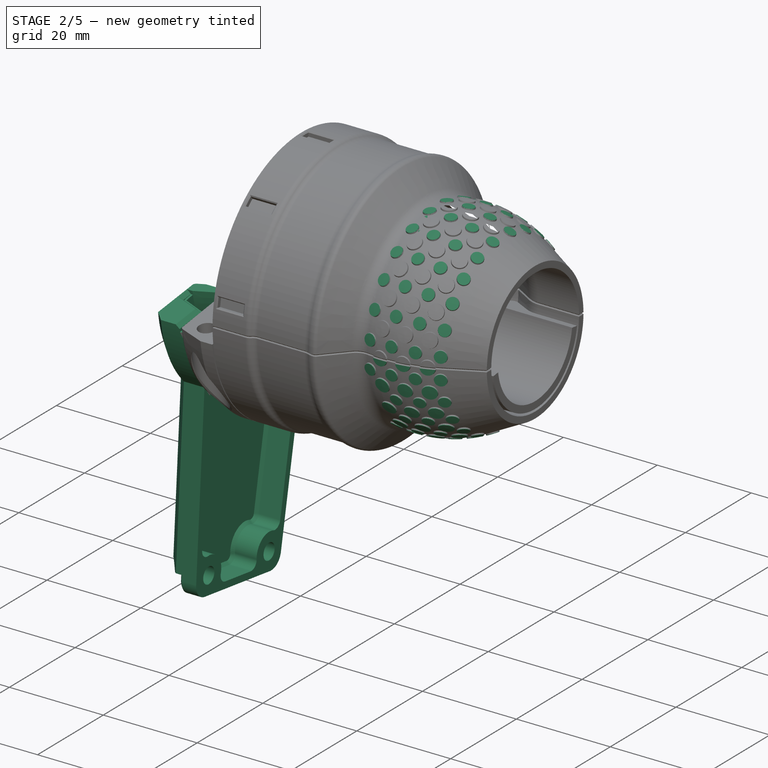
[diagram: stage 2 of 5 — iso view after this stage's code; geometry added in this stage tinted green]
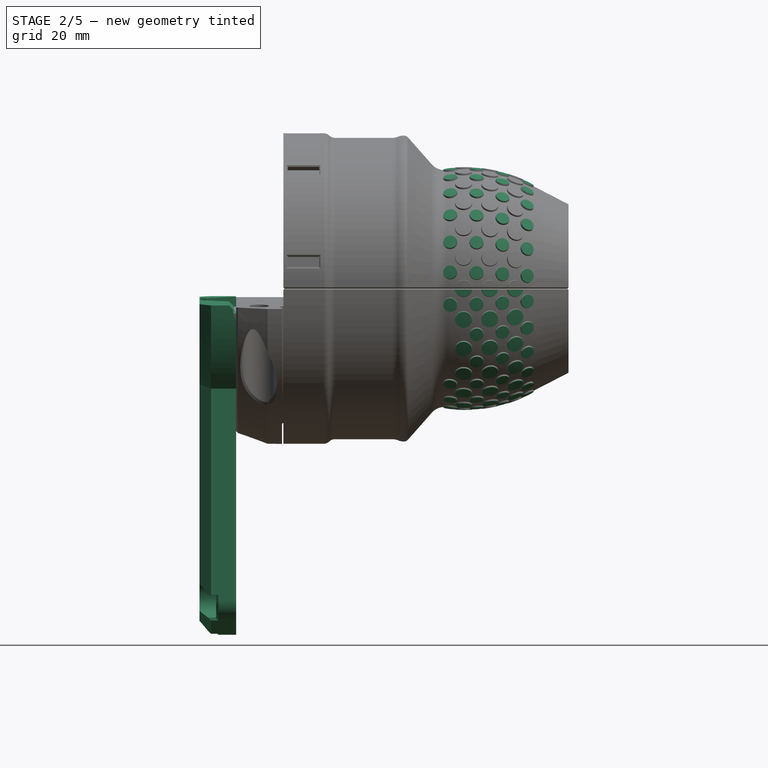
[diagram: stage 2 of 5 — front view after this stage's code; geometry added in this stage tinted green]
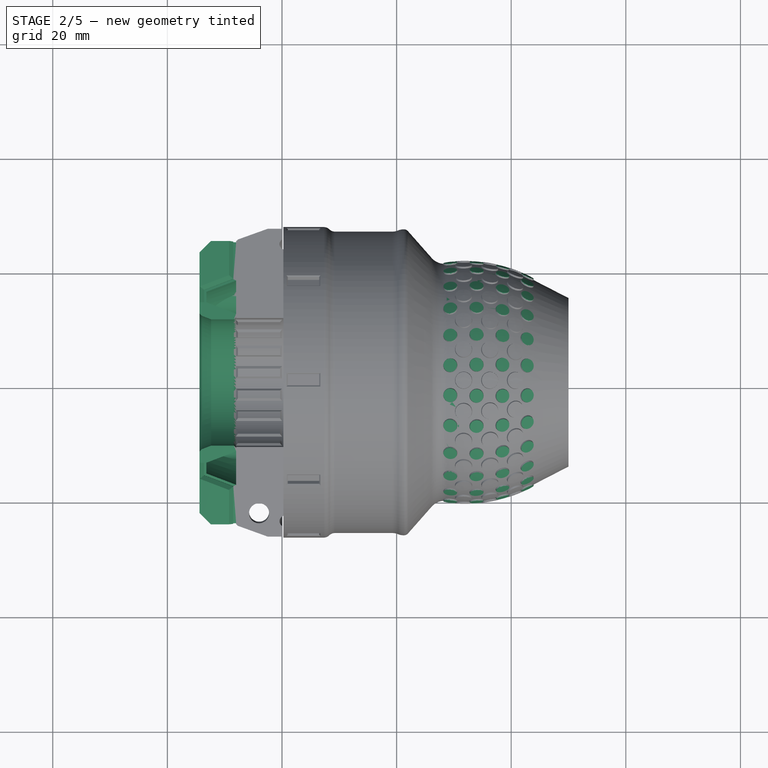
[diagram: stage 2 of 5 — top view after this stage's code; geometry added in this stage tinted green]
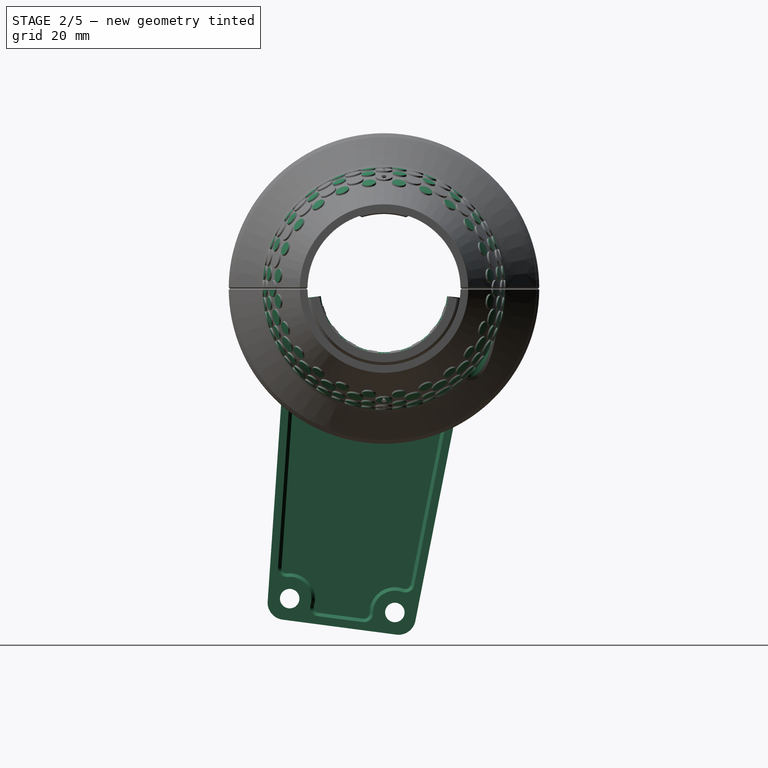
[diagram: stage 2 of 5 — right view after this stage's code; geometry added in this stage tinted green]
FEATURE [Sketcher::SketchObject] Sketch126
  ArcFitTolerance = 0
  AttachmentOffset = pos=(0,0,0) rot=(1,0,0;3.14159rad)
  AttachmentSupport = -> [XZ_Plane059]
  FullyConstrained = true
  MakeInternals = false
  MapMode = 5
  Placement = pos=(0,0,0) rot=(1,0,0;4.71239rad)
  expr: Constraints[15] = <<params>>.grip_bar_diameter / 2
  expr: Constraints[18] = <<Sketch007>>.Constraints.cover_size
  sketch-geometry (22):
    g0: LineSegment StartX=-14.4 StartY=22.9074 StartZ=0 EndX=-12.4 EndY=24.9074 EndZ=0
    g1: LineSegment StartX=-12.4 StartY=24.9074 StartZ=0 EndX=-8 EndY=24.9074 EndZ=0
    g2: LineSegment StartX=-8 StartY=24.9074 StartZ=0 EndX=-8 EndY=22.1 EndZ=0
    g3: LineSegment StartX=-8 StartY=11.5 StartZ=0 EndX=-8.4 EndY=11.1 EndZ=0
    g4: LineSegment StartX=-8.4 StartY=11.1 StartZ=0 EndX=-12.3642 EndY=11.1 EndZ=0
    g5: LineSegment StartX=-12.3642 StartY=11.1 StartZ=0 EndX=-14 EndY=11.7292 EndZ=0
    g6: LineSegment StartX=-14.4 StartY=12.1292 StartZ=0 EndX=-14.4 EndY=22.9074 EndZ=0
    g7: LineSegment [constr] StartX=-8 StartY=11.1 StartZ=0 EndX=-8 EndY=22.1 EndZ=0
    g8: LineSegment [constr] StartX=-14.4 StartY=22.9074 StartZ=0 EndX=-14.4 EndY=24.9074 EndZ=0
    g9: LineSegment [constr] StartX=-14.4 StartY=24.9074 StartZ=0 EndX=-12.4 EndY=24.9074 EndZ=0
    g10: LineSegment [constr] StartX=-8.4 StartY=11.1 StartZ=0 EndX=-8 EndY=11.1 EndZ=0
    g11: LineSegment [constr] StartX=-8 StartY=11.1 StartZ=0 EndX=-8 EndY=11.5 EndZ=0
    g12: LineSegment StartX=-13.2 StartY=14.1 StartZ=0 EndX=-13.2 EndY=19.1 EndZ=0
    g13: LineSegment StartX=-13.2 StartY=19.1 StartZ=0 EndX=-8 EndY=22.1 EndZ=0
    g14: LineSegment [constr] StartX=-13.2 StartY=19.1 StartZ=0 EndX=-13.2 EndY=22.1 EndZ=0
    g15: LineSegment [constr] StartX=-13.2 StartY=22.1 StartZ=0 EndX=-8 EndY=22.1 EndZ=0
    g16: LineSegment StartX=-8 StartY=11.5 StartZ=0 EndX=-8 EndY=12.1 EndZ=0
    g17: LineSegment StartX=-8 StartY=12.1 StartZ=0 EndX=-13.2 EndY=14.1 EndZ=0
    g18: LineSegment [constr] StartX=-11.4667 StartY=13.4334 StartZ=0 EndX=-12.3642 EndY=11.1 EndZ=0
    g19: LineSegment [constr] StartX=-14.4 StartY=12.1292 StartZ=0 EndX=-14.4 EndY=11.7292 EndZ=0
    g20: LineSegment [constr] StartX=-14.4 StartY=11.7292 StartZ=0 EndX=-14 EndY=11.7292 EndZ=0
    g21: LineSegment StartX=-14 StartY=11.7292 StartZ=0 EndX=-14.4 EndY=12.1292 EndZ=0
  constraints (61):
    c: Coincident(g1,g0)
    c: Horizontal(g1)
    c: Coincident(g2,g1)
    c: Vertical(g2)
    c: Coincident(g4,g3)
    c: Coincident(g5,g4)
    c: Coincident(g6,g0)
    c: Vertical(g6)
    c: Vertical(g7)
    c: Coincident(g8,g0)
    c: Vertical(g8)
    c: Coincident(g9,g8)
    c: Coincident(g9,g0)
    c: Horizontal(g9)
    c: DistanceX(g7,g-1) = 8
    c: DistanceY(g-1,g7) = 11.1
    c: Equal(g8,g9)
    c: DistanceX(g9,g9) = 2
    c: DistanceY(g7,g1) = 13.8074
    c: Coincident(g3,g10)
    c: Horizontal(g10)
    c: Coincident(g10,g11)
    c: Vertical(g11)
    c: Vertical(g12)
    c: Coincident(g12,g13)
    c: Coincident(g13,g2)
    c: Coincident(g2,g7)
    c: Equal(g10,g11)
    c: Coincident(g14,g12)
    c: Vertical(g14)
    c: Coincident(g15,g2)
    c: Coincident(g14,g15)
    c: Horizontal(g15)
    c: Coincident(g3,g11)
    c: Coincident(g7,g10)
    c: Coincident(g16,g3)
    c: Vertical(g16)
    c: Coincident(g17,g16)
    c: DistanceY(g7,g16) = 1
    c: DistanceY(g16,g2) = 10
    c: DistanceY(g14,g14) = 3
    c: DistanceX(g12,g16) = 5.2
    c: DistanceX(g10,g10) = 0.4
    c: Horizontal(g4)
    c: Parallel(g5,g17)
    c: Perpendicular(g5,g18)
    c: Distance(g18,g18) = 2.5
    c: Coincident(g12,g17)
    c: PointOnObject(g18,g17)
    c: Coincident(g18,g4)
    c: Distance(g6,g12) = 1.2
    c: Coincident(g19,g6)
    c: Vertical(g19)
    c: Coincident(g20,g19)
    c: Coincident(g20,g5)
    c: Horizontal(g20)
    c: Coincident(g21,g5)
    c: Coincident(g21,g6)
    c: Equal(g19,g20)
    c: Equal(g20,g10)
    c: DistanceY(g17,g17) = 2
FEATURE [PartDesign::Revolution] Revolution017
  Angle = 166.321
  Angle2 = 60
  Axis = (1,0,0)
  Base = (0,0,0)
  Midplane = true
  Placement = pos=(0,0,0) rot=(1,0,0;1.5708rad)
  Profile = -> Sketch126
  ReferenceAxis = -> Sketch126 [H_Axis]
  Suppressed = false
  Type = 0
  expr: Angle = 360 ° - (<<params>>.movement_range + <<params>>.rotator_angle + <<params>>.extra_angle)
FEATURE [Sketcher::SketchObject] Sketch127
  ArcFitTolerance = 0
  AttachmentOffset = pos=(0,0,0) rot=(1,0,0;1.69017rad)
  AttachmentSupport = -> [XZ_Plane059]
  FullyConstrained = true
  MakeInternals = false
  MapMode = 5
  Placement = pos=(0,0,0) rot=(1,0,0;3.26097rad)
  expr: .AttachmentOffset.Rotation.Roll = (<<params>>.movement_range + <<params>>.rotator_angle + <<params>>.extra_angle) / 2
  expr: Constraints[34] = <<Sketch007>>.Constraints.cover_size
  expr: Constraints[5] = <<params>>.grip_bar_diameter / 2
  sketch-geometry (13):
    g0: LineSegment StartX=-13.2 StartY=16.1 StartZ=0 EndX=-8 EndY=18.1 EndZ=0
    g1: LineSegment [constr] StartX=-13.2 StartY=16.1 StartZ=0 EndX=-13.2 EndY=18.1 EndZ=0
    g2: LineSegment [constr] StartX=-13.2 StartY=18.1 StartZ=0 EndX=-8 EndY=18.1 EndZ=0
    g3: GeomPoint [constr] X=-8 Y=11.1 Z=0
    g4: LineSegment [constr] StartX=-8 StartY=18.1 StartZ=0 EndX=-8 EndY=11.1 EndZ=0
    g5: LineSegment StartX=-8 StartY=18.1 StartZ=0 EndX=-8 EndY=24.9074 EndZ=0
    g6: LineSegment StartX=-13.2 StartY=16.1 StartZ=0 EndX=-13.2 EndY=14.1 EndZ=0
    g7: LineSegment StartX=-13.2 StartY=14.1 StartZ=0 EndX=-13.6 EndY=14.1 EndZ=0
    g8: LineSegment StartX=-13.6 StartY=14.1 StartZ=0 EndX=-13.6 EndY=16.4 EndZ=0
    g9: LineSegment StartX=-13.6 StartY=16.4 StartZ=0 EndX=-8.5 EndY=18.3615 EndZ=0
    g10: LineSegment StartX=-8.5 StartY=18.3615 StartZ=0 EndX=-8.5 EndY=24.9074 EndZ=0
    g11: LineSegment StartX=-8.5 StartY=24.9074 StartZ=0 EndX=-8 EndY=24.9074 EndZ=0
    g12: LineSegment [constr] StartX=-13.2 StartY=16.1 StartZ=0 EndX=-13.6 EndY=16.4 EndZ=0
  constraints (35):
    c: Vertical(g1)
    c: Coincident(g1,g2)
    c: Horizontal(g2)
    c: DistanceY(g1,g1) = 2
    c: DistanceX(g3,g-1) = 8
    c: DistanceY(g-1,g3) = 11.1
    c: DistanceY(g3,g0) = 7
    c: Coincident(g4,g0)
    c: Coincident(g4,g3)
    c: Vertical(g4)
    c: Coincident(g0,g1)
    c: Coincident(g0,g2)
    c: DistanceX(g2,g2) = 5.2
    c: Coincident(g5,g0)
    c: Vertical(g5)
    c: Coincident(g6,g0)
    c: Vertical(g6)
    c: DistanceY(g6,g6) = 2
    c: Coincident(g7,g6)
    c: Horizontal(g7)
    c: Coincident(g8,g7)
    c: Vertical(g8)
    c: Coincident(g9,g8)
    c: Coincident(g10,g9)
    c: Vertical(g10)
    c: Coincident(g11,g10)
    c: Coincident(g11,g5)
    c: Horizontal(g11)
    c: Parallel(g9,g0)
    c: Coincident(g12,g0)
    c: Coincident(g12,g8)
    c: Equal(g12,g11)
    c: DistanceX(g11,g11) = 0.5
    c: DistanceX(g7,g7) = 0.4
    c: DistanceY(g3,g5) = 13.8074
FEATURE [Sketcher::SketchObject] Sketch128
  ArcFitTolerance = 0
  AttachmentOffset = pos=(0,0,0) rot=(1,0,0;1.69017rad)
  AttachmentSupport = -> [XZ_Plane059]
  FullyConstrained = true
  MakeInternals = false
  MapMode = 5
  Placement = pos=(0,0,0) rot=(1,0,0;3.26097rad)
  expr: .AttachmentOffset.Rotation.Roll = (<<params>>.movement_range + <<params>>.rotator_angle + <<params>>.extra_angle) / 2
  expr: Constraints[2] = <<params>>.grip_bar_diameter / 2
  sketch-geometry (7):
    g0: LineSegment StartX=-13.2 StartY=16.1 StartZ=0 EndX=-8 EndY=18.1 EndZ=0
    g1: LineSegment [constr] StartX=-13.2 StartY=18.1 StartZ=0 EndX=-8 EndY=18.1 EndZ=0
    g2: GeomPoint [constr] X=-8 Y=11.1 Z=0
    g3: LineSegment [constr] StartX=-8 StartY=18.1 StartZ=0 EndX=-8 EndY=11.1 EndZ=0
    g4: LineSegment StartX=-8 StartY=18.1 StartZ=0 EndX=-8 EndY=23.1 EndZ=0
    g5: LineSegment StartX=-8 StartY=23.1 StartZ=0 EndX=-13.2 EndY=20.1 EndZ=0
    g6: LineSegment StartX=-13.2 StartY=20.1 StartZ=0 EndX=-13.2 EndY=16.1 EndZ=0
  constraints (19):
    c: Horizontal(g1)
    c: DistanceX(g2,g-1) = 8
    c: DistanceY(g-1,g2) = 11.1
    c: DistanceY(g2,g0) = 7
    c: Coincident(g3,g0)
    c: Coincident(g3,g2)
    c: Vertical(g3)
    c: Coincident(g0,g1)
    c: DistanceX(g1,g1) = 5.2
    c: Coincident(g4,g0)
    c: Vertical(g4)
    c: DistanceY(g4,g4) = 5
    c: Coincident(g5,g4)
    c: Coincident(g6,g5)
    c: Vertical(g6)
    c: Coincident(g6,g0)
    c: PointOnObject(g1,g6)
    c: DistanceY(g5,g5) = 3
    c: DistanceY(g0,g0) = 2
FEATURE [Sketcher::SketchObject] Sketch129
  ArcFitTolerance = 0
  AttachmentOffset = pos=(0,0,14.5) rot=(0,0,1;2.26893rad)
  AttachmentSupport = -> [YZ_Plane059]
  FullyConstrained = true
  MakeInternals = false
  MapMode = 5
  Placement = pos=(-14.5,0,0) rot=(-0.323616,-0.889126,0.323616;1.68804rad)
  expr: Constraints[2] = <<params>>.track_radius + 2.5 mm
  sketch-geometry (1):
    g0: Circle CenterX=0 CenterY=20.5 CenterZ=0 NormalX=0 NormalY=0 NormalZ=1 AngleXU=0 Radius=3
  constraints (3):
    c: PointOnObject(g0,g-2)
    c: Diameter(g0) = 6
    c: DistanceY(g-1,g0) = 20.5
FEATURE [Sketcher::SketchObject] Sketch130
  ArcFitTolerance = 0
  AttachmentOffset = pos=(0,0,14.5) rot=(0,0,1;2.26893rad)
  AttachmentSupport = -> [YZ_Plane059]
  FullyConstrained = true
  MakeInternals = false
  MapMode = 5
  Placement = pos=(-14.5,0,0) rot=(-0.323616,-0.889126,0.323616;1.68804rad)
  expr: Constraints[2] = <<params>>.track_radius + 2.5 mm
  sketch-geometry (1):
    g0: Circle CenterX=0 CenterY=20.5 CenterZ=0 NormalX=0 NormalY=0 NormalZ=1 AngleXU=0 Radius=1.7
  constraints (3):
    c: PointOnObject(g0,g-2)
    c: Diameter(g0) = 3.4
    c: DistanceY(g-1,g0) = 20.5
FEATURE [Sketcher::SketchObject] Sketch131
  ArcFitTolerance = 0
  AttachmentOffset = pos=(0,0,13.2) rot=(0,0,1;2.26893rad)
  AttachmentSupport = -> [YZ_Plane059]
  FullyConstrained = true
  MakeInternals = false
  MapMode = 5
  Placement = pos=(-13.2,0,0) rot=(-0.323616,-0.889126,0.323616;1.68804rad)
  expr: Constraints[2] = <<params>>.track_radius + 2.5 mm
  sketch-geometry (3):
    g0: Circle [constr] CenterX=0 CenterY=20.5 CenterZ=0 NormalX=0 NormalY=0 NormalZ=1 AngleXU=0 Radius=4
    g1: ArcOfCircle CenterX=0 CenterY=20.5 CenterZ=0 NormalX=0 NormalY=0 NormalZ=1 AngleXU=0 Radius=4 StartAngle=2.41886 EndAngle=7.00592
    g2: LineSegment StartX=-3 StartY=23.1458 StartZ=0 EndX=3 EndY=23.1458 EndZ=0
  constraints (9):
    c: PointOnObject(g0,g-2)
    c: Diameter(g0) = 8
    c: DistanceY(g-1,g0) = 20.5
    c: Coincident(g1,g0)
    c: PointOnObject(g1,g0)
    c: Coincident(g2,g1)
    c: Coincident(g2,g1)
    c: Horizontal(g2)
    c: DistanceX(g2,g2) = 6
FEATURE [Sketcher::SketchObject] Sketch136
  ArcFitTolerance = 0
  AttachmentOffset = pos=(0,0,8) rot=(0,0,1;3.14159rad)
  AttachmentSupport = -> [YZ_Plane058]
  FullyConstrained = true
  MakeInternals = false
  MapMode = 5
  Placement = pos=(-8,0,0) rot=(-0.57735,-0.57735,0.57735;2.0944rad)
  expr: Constraints[14] = Sketch121.Constraints.case_top_dist
  expr: Constraints[32] = Sketch121.Constraints.case_angle
  expr: Constraints[34] = Sketch007.Constraints.main_radius
  sketch-geometry (20):
    g0: LineSegment [constr] StartX=-20.3011 StartY=54.6053 StartZ=0 EndX=-17.957 EndY=20.2967 EndZ=0
    g1: LineSegment [constr] StartX=12.092 StartY=24.2527 StartZ=0 EndX=5.47647 EndY=57.9989 EndZ=0
    g2: ArcOfCircle [constr] CenterX=2.53251 CenterY=57.4218 CenterZ=0 NormalX=0 NormalY=0 NormalZ=1 AngleXU=0 Radius=3 StartAngle=0.193582 EndAngle=1.7017
    g3: ArcOfCircle [constr] CenterX=-17.3081 CenterY=54.8097 CenterZ=0 NormalX=0 NormalY=0 NormalZ=1 AngleXU=0 Radius=3 StartAngle=1.7017 EndAngle=3.20981
    g4: LineSegment [constr] StartX=-7.77936 StartY=59.0901 StartZ=0 EndX=-3.53726 EndY=26.8682 EndZ=0
    g5: ArcOfCircle [constr] CenterX=0 CenterY=0 CenterZ=0 NormalX=0 NormalY=0 NormalZ=1 AngleXU=0 Radius=27.1 StartAngle=1.10828 EndAngle=2.29511
    g6: LineSegment [constr] StartX=-20.3011 StartY=54.6053 StartZ=0 EndX=5.47647 EndY=57.9989 EndZ=0
    g7: LineSegment [constr] StartX=-17.6997 StartY=57.7841 StartZ=0 EndX=2.14093 EndY=60.3961 EndZ=0
    g8: LineSegment [constr] StartX=-16.629 StartY=21.3983 StartZ=0 EndX=-18.9044 EndY=54.7007 EndZ=0
    g9: LineSegment [constr] StartX=-17.5169 StartY=56.3961 StartZ=0 EndX=2.32367 EndY=59.0081 EndZ=0
    g10: ArcOfCircle [constr] CenterX=-17.3081 CenterY=54.8097 CenterZ=0 NormalX=0 NormalY=0 NormalZ=1 AngleXU=0 Radius=1.6 StartAngle=1.7017 EndAngle=3.20981
    g11: GeomPoint [constr] X=-19.0068 Y=56.1999 Z=0
    g12: ArcOfCircle [constr] CenterX=2.53251 CenterY=57.4218 CenterZ=0 NormalX=0 NormalY=0 NormalZ=1 AngleXU=0 Radius=1.6 StartAngle=0.193582 EndAngle=1.7017
    g13: GeomPoint [constr] X=3.81354 Y=59.2043 Z=0
    g14: LineSegment [constr] StartX=-17.5169 StartY=56.3961 StartZ=0 EndX=-17.6997 EndY=57.7841 EndZ=0
    g15: GeomPoint [constr] X=-16.629 Y=21.3983 Z=0
    g16: Circle CenterX=1.89199 CenterY=56.5306 CenterZ=0 NormalX=0 NormalY=0 NormalZ=1 AngleXU=0 Radius=2.4
    g17: LineSegment [constr] StartX=-3.53726 StartY=26.8682 StartZ=0 EndX=-2.93252 EndY=22.2747 EndZ=0
    g18: Circle CenterX=-16.4587 CenterY=54.1147 CenterZ=0 NormalX=0 NormalY=0 NormalZ=1 AngleXU=0 Radius=2.4
    g19: LineSegment [constr] StartX=4.10262 StartY=57.7296 StartZ=0 EndX=10.5241 EndY=24.9731 EndZ=0
  constraints (49):
    c: Tangent(g1,g2) = -1.5708
    c: Tangent(g0,g3) = -1.5708
    c: Equal(g3,g2)
    c: Coincident(g5,g-1)
    c: Coincident(g5,g1)
    c: Coincident(g5,g0)
    c: Coincident(g6,g0)
    c: Coincident(g6,g1)
    c: Radius(g3) = 3
    c: Tangent(g7,g3) = 1.5708
    c: Tangent(g7,g2) = 1.5708
    c: Symmetric(g3,g2,g4)
    c: Perpendicular(g4,g7)
    c: Equal(g0,g1)
    c: Distance(g6) = 26
    c: PointOnObject(g11,g8)
    c: PointOnObject(g11,g9)
    c: Tangent(g8,g10) = 1.5708
    c: Tangent(g9,g10) = 1.5708
    c: PointOnObject(g13,g9)
    c: Tangent(g9,g12) = 1.5708
    c: Coincident(g3,g10)
    c: Coincident(g2,g12)
    c: Coincident(g14,g9)
    c: Coincident(g14,g3)
    c: Distance(g14) = 1.4
    c: Parallel(g8,g0)
    c: Parallel(g9,g7)
    c: PointOnObject(g15,g8)
    c: PointOnObject(g15,g5)
    c: Tangent(g16,g9)
    c: Diameter(g16) = 4.8
    c: Angle(g5) = 1.18682
    c: Angle(g-2,g4) = 0.1309
    c: Radius(g5) = 27.1
    c: Coincident(g17,g4)
    c: Parallel(g17,g4)
    c: Symmetric(g0,g1,g17)
    c: PointOnObject(g4,g5)
    c: Distance(g4,g4) = 32.5
    c: Tangent(g18,g8)
    c: Tangent(g18,g9)
    c: Equal(g18,g16)
    c: PointOnObject(g8,g5)
    c: Tangent(g16,g19)
    c: Tangent(g19,g12) = 1.5708
    c: PointOnObject(g13,g19)
    c: PointOnObject(g19,g5)
    c: Parallel(g19,g1)
FEATURE [Sketcher::SketchObject] Sketch137
  ArcFitTolerance = 0
  AttachmentOffset = pos=(0,0,8) rot=(0,0,1;3.14159rad)
  AttachmentSupport = -> [YZ_Plane058]
  FullyConstrained = true
  MakeInternals = false
  MapMode = 5
  Placement = pos=(-8,0,0) rot=(-0.57735,-0.57735,0.57735;2.0944rad)
  expr: Constraints[14] = Sketch121.Constraints.case_top_dist
  expr: Constraints[30] = Sketch121.Constraints.case_angle
  expr: Constraints[32] = Sketch007.Constraints.main_radius
  sketch-geometry (22):
    g0: LineSegment [constr] StartX=-20.2362 StartY=54.1123 StartZ=0 EndX=-17.957 EndY=20.2967 EndZ=0
    g1: LineSegment [constr] StartX=12.092 StartY=24.2527 StartZ=0 EndX=5.54138 EndY=57.5059 EndZ=0
    g2: ArcOfCircle [constr] CenterX=2.59794 CenterY=56.9261 CenterZ=0 NormalX=0 NormalY=0 NormalZ=1 AngleXU=0 Radius=3 StartAngle=0.194501 EndAngle=1.7017
    g3: ArcOfCircle [constr] CenterX=-17.243 CenterY=54.314 CenterZ=0 NormalX=0 NormalY=0 NormalZ=1 AngleXU=0 Radius=3 StartAngle=1.7017 EndAngle=3.20889
    g4: LineSegment [constr] StartX=-7.7141 StartY=58.5944 StartZ=0 EndX=-3.53726 EndY=26.8682 EndZ=0
    g5: ArcOfCircle [constr] CenterX=0 CenterY=0 CenterZ=0 NormalX=0 NormalY=0 NormalZ=1 AngleXU=0 Radius=27.1 StartAngle=1.10828 EndAngle=2.29511
    g6: LineSegment [constr] StartX=-20.2362 StartY=54.1123 StartZ=0 EndX=5.54138 EndY=57.5059 EndZ=0
    g7: LineSegment [constr] StartX=-17.6346 StartY=57.2883 StartZ=0 EndX=2.20636 EndY=59.9004 EndZ=0
    g8: LineSegment [constr] StartX=-15.6736 StartY=22.1076 StartZ=0 EndX=-17.8416 EndY=54.2737 EndZ=0
    g9: LineSegment [constr] StartX=-17.3213 StartY=54.9089 StartZ=0 EndX=2.51963 EndY=57.521 EndZ=0
    g10: ArcOfCircle [constr] CenterX=-17.243 CenterY=54.314 CenterZ=0 NormalX=0 NormalY=0 NormalZ=1 AngleXU=0 Radius=0.6 StartAngle=1.7017 EndAngle=3.20889
    g11: GeomPoint [constr] X=-17.8795 Y=54.8354 Z=0
    g12: ArcOfCircle [constr] CenterX=2.59794 CenterY=56.9261 CenterZ=0 NormalX=0 NormalY=0 NormalZ=1 AngleXU=0 Radius=0.6 StartAngle=0.194501 EndAngle=1.7017
    g13: GeomPoint [constr] X=3.07781 Y=57.5945 Z=0
    g14: LineSegment [constr] StartX=-17.3213 StartY=54.9089 StartZ=0 EndX=-17.6346 EndY=57.2883 EndZ=0
    g15: GeomPoint [constr] X=-15.6736 Y=22.1076 Z=0
    g16: LineSegment [constr] StartX=-3.53726 StartY=26.8682 StartZ=0 EndX=-2.93252 EndY=22.2747 EndZ=0
    g17: LineSegment [constr] StartX=3.18663 StartY=57.0421 StartZ=0 EndX=9.41767 EndY=25.411 EndZ=0
    g18: LineSegment StartX=-15.6736 StartY=22.1076 StartZ=0 EndX=9.41767 EndY=25.411 EndZ=0
    g19: LineSegment StartX=-17.4086 StartY=47.8492 StartZ=0 EndX=4.43114 EndY=50.7245 EndZ=0
    g20: LineSegment StartX=-17.4086 StartY=47.8492 StartZ=0 EndX=-15.6736 EndY=22.1076 EndZ=0
    g21: LineSegment StartX=9.41767 StartY=25.411 StartZ=0 EndX=4.43114 EndY=50.7245 EndZ=0
  constraints (53):
    c: Tangent(g1,g2) = -1.5708
    c: Tangent(g0,g3) = -1.5708
    c: Equal(g3,g2)
    c: Coincident(g5,g-1)
    c: Coincident(g5,g1)
    c: Coincident(g5,g0)
    c: Coincident(g6,g0)
    c: Coincident(g6,g1)
    c: Radius(g3) = 3
    c: Tangent(g7,g3) = 1.5708
    c: Tangent(g7,g2) = 1.5708
    c: Symmetric(g3,g2,g4)
    c: Perpendicular(g4,g7)
    c: Equal(g0,g1)
    c: Distance(g6) = 26
    c: PointOnObject(g11,g8)
    c: PointOnObject(g11,g9)
    c: Tangent(g8,g10) = 1.5708
    c: Tangent(g9,g10) = 1.5708
    c: PointOnObject(g13,g9)
    c: Tangent(g9,g12) = 1.5708
    c: Coincident(g3,g10)
    c: Coincident(g2,g12)
    c: Coincident(g14,g9)
    c: Coincident(g14,g3)
    c: Distance(g14) = 2.4
    c: Parallel(g8,g0)
    c: Parallel(g9,g7)
    c: PointOnObject(g15,g8)
    c: PointOnObject(g15,g5)
    c: Angle(g5) = 1.18682
    c: Angle(g-2,g4) = 0.1309
    c: Radius(g5) = 27.1
    c: Coincident(g16,g4)
    c: Parallel(g16,g4)
    c: Symmetric(g0,g1,g16)
    c: PointOnObject(g4,g5)
    c: Distance(g4,g4) = 32
    c: PointOnObject(g8,g5)
    c: Tangent(g17,g12) = 1.5708
    c: PointOnObject(g13,g17)
    c: PointOnObject(g17,g5)
    c: Parallel(g17,g1)
    c: Coincident(g18,g8)
    c: Coincident(g18,g17)
    c: PointOnObject(g19,g8)
    c: PointOnObject(g19,g17)
    c: Perpendicular(g4,g19)
    c: Coincident(g20,g19)
    c: Coincident(g20,g15)
    c: Coincident(g21,g17)
    c: Coincident(g21,g19)
    c: Distance(g21,g21) = 25.8
FEATURE [Sketcher::SketchObject] Sketch138
  ArcFitTolerance = 0
  AttachmentOffset = pos=(0,0,8) rot=(0,0,1;3.14159rad)
  AttachmentSupport = -> [YZ_Plane059]
  FullyConstrained = true
  MakeInternals = false
  MapMode = 5
  Placement = pos=(-8,0,0) rot=(-0.57735,-0.57735,0.57735;2.0944rad)
  expr: Constraints[14] = Sketch121.Constraints.case_top_dist
  expr: Constraints[16] = Sketch121.Constraints.case_angle
  expr: Constraints[17] = <<Sketch007>>.Constraints.main_radius
  sketch-geometry (13):
    g0: LineSegment StartX=-20.3011 StartY=54.6053 StartZ=0 EndX=-17.957 EndY=20.2967 EndZ=0
    g1: LineSegment StartX=12.092 StartY=24.2527 StartZ=0 EndX=5.47647 EndY=57.9989 EndZ=0
    g2: ArcOfCircle CenterX=2.53251 CenterY=57.4218 CenterZ=0 NormalX=0 NormalY=0 NormalZ=1 AngleXU=0 Radius=3 StartAngle=0.193582 EndAngle=1.7017
    g3: ArcOfCircle CenterX=-17.3081 CenterY=54.8097 CenterZ=0 NormalX=0 NormalY=0 NormalZ=1 AngleXU=0 Radius=3 StartAngle=1.7017 EndAngle=3.20981
    g4: LineSegment [constr] StartX=-7.77936 StartY=59.0901 StartZ=0 EndX=-3.53726 EndY=26.8682 EndZ=0
    g5: ArcOfCircle [constr] CenterX=0 CenterY=0 CenterZ=0 NormalX=0 NormalY=0 NormalZ=1 AngleXU=0 Radius=27.1 StartAngle=1.10828 EndAngle=2.29511
    g6: LineSegment [constr] StartX=-20.3011 StartY=54.6053 StartZ=0 EndX=5.47647 EndY=57.9989 EndZ=0
    g7: LineSegment StartX=-17.6997 StartY=57.7841 StartZ=0 EndX=2.14093 EndY=60.3961 EndZ=0
    g8: LineSegment [constr] StartX=-3.53726 StartY=26.8682 StartZ=0 EndX=-2.93252 EndY=22.2747 EndZ=0
    g9: ArcOfCircle CenterX=0 CenterY=0 CenterZ=0 NormalX=0 NormalY=0 NormalZ=1 AngleXU=0 Radius=22.9 StartAngle=0.957821 EndAngle=2.44557
    g10: LineSegment StartX=-17.957 StartY=20.2967 StartZ=0 EndX=-17.5734 EndY=14.6828 EndZ=0
    g11: LineSegment StartX=12.092 StartY=24.2527 StartZ=0 EndX=13.1745 EndY=18.7308 EndZ=0
    g12: LineSegment [constr] StartX=-17.957 StartY=20.2967 StartZ=0 EndX=-15.174 EndY=17.1511 EndZ=0
  constraints (34):
    c: Tangent(g1,g2) = -1.5708
    c: Tangent(g0,g3) = -1.5708
    c: Equal(g3,g2)
    c: Coincident(g5,g-1)
    c: Coincident(g5,g1)
    c: Coincident(g5,g0)
    c: Coincident(g6,g0)
    c: Coincident(g6,g1)
    c: Radius(g3) = 3
    c: Tangent(g7,g3) = 1.5708
    c: Tangent(g7,g2) = 1.5708
    c: Symmetric(g3,g2,g4)
    c: Perpendicular(g4,g7)
    c: Equal(g0,g1)
    c: Distance(g6) = 26
    c: Distance(g4) = 32.5
    c: Angle(g5) = 1.18682
    c: Radius(g5) = 27.1
    c: Coincident(g8,g4)
    c: Parallel(g8,g4)
    c: Symmetric(g0,g1,g8)
    c: PointOnObject(g4,g5)
    c: Coincident(g9,g5)
    c: Coincident(g10,g0)
    c: Coincident(g10,g9)
    c: Coincident(g11,g1)
    c: Coincident(g11,g9)
    c: Parallel(g11,g1)
    c: Parallel(g0,g10)
    c: Coincident(g12,g0)
    c: PointOnObject(g12,g9)
    c: Perpendicular(g9,g12)
    c: Distance(g12,g12) = 4.2
    c: Angle(g-2,g4) = 0.1309
FEATURE [Sketcher::SketchObject] Sketch139
  ArcFitTolerance = 0
  AttachmentOffset = pos=(0,0,8) rot=(0,0,1;3.14159rad)
  AttachmentSupport = -> [YZ_Plane059]
  FullyConstrained = true
  MakeInternals = false
  MapMode = 5
  Placement = pos=(-8,0,0) rot=(-0.57735,-0.57735,0.57735;2.0944rad)
  expr: Constraints[14] = Sketch121.Constraints.case_top_dist
  expr: Constraints[45] = Sketch121.Constraints.case_angle
  expr: Constraints[47] = Sketch007.Constraints.main_radius
  sketch-geometry (41):
    g0: LineSegment [constr] StartX=-20.3011 StartY=54.6053 StartZ=0 EndX=-17.957 EndY=20.2967 EndZ=0
    g1: LineSegment [constr] StartX=12.092 StartY=24.2527 StartZ=0 EndX=5.47647 EndY=57.9989 EndZ=0
    g2: ArcOfCircle [constr] CenterX=2.53251 CenterY=57.4218 CenterZ=0 NormalX=0 NormalY=0 NormalZ=1 AngleXU=0 Radius=3 StartAngle=0.193582 EndAngle=1.7017
    g3: ArcOfCircle [constr] CenterX=-17.3081 CenterY=54.8097 CenterZ=0 NormalX=0 NormalY=0 NormalZ=1 AngleXU=0 Radius=3 StartAngle=1.7017 EndAngle=3.20981
    g4: LineSegment [constr] StartX=-7.77936 StartY=59.0901 StartZ=0 EndX=-3.53726 EndY=26.8682 EndZ=0
    g5: ArcOfCircle [constr] CenterX=0 CenterY=0 CenterZ=0 NormalX=0 NormalY=0 NormalZ=1 AngleXU=0 Radius=27.1 StartAngle=1.10828 EndAngle=2.29511
    g6: LineSegment [constr] StartX=-20.3011 StartY=54.6053 StartZ=0 EndX=5.47647 EndY=57.9989 EndZ=0
    g7: LineSegment [constr] StartX=-17.6997 StartY=57.7841 StartZ=0 EndX=2.14093 EndY=60.3961 EndZ=0
    g8: LineSegment [constr] StartX=-16.629 StartY=21.3983 StartZ=0 EndX=-18.9044 EndY=54.7007 EndZ=0
    g9: LineSegment [constr] StartX=-17.5169 StartY=56.3961 StartZ=0 EndX=2.32367 EndY=59.0081 EndZ=0
    g10: ArcOfCircle [constr] CenterX=-17.3081 CenterY=54.8097 CenterZ=0 NormalX=0 NormalY=0 NormalZ=1 AngleXU=0 Radius=1.6 StartAngle=1.7017 EndAngle=3.20981
    g11: GeomPoint [constr] X=-19.0068 Y=56.1999 Z=0
    g12: ArcOfCircle [constr] CenterX=2.53251 CenterY=57.4218 CenterZ=0 NormalX=0 NormalY=0 NormalZ=1 AngleXU=0 Radius=1.6 StartAngle=0.193582 EndAngle=1.7017
    g13: GeomPoint [constr] X=3.81354 Y=59.2043 Z=0
    g14: LineSegment [constr] StartX=-17.5169 StartY=56.3961 StartZ=0 EndX=-17.6997 EndY=57.7841 EndZ=0
    g15: ArcOfCircle CenterX=-11.6406 CenterY=21.7391 CenterZ=0 NormalX=0 NormalY=0 NormalZ=1 AngleXU=0 Radius=5 StartAngle=3.20981 EndAngle=3.67109
    g16: GeomPoint [constr] X=-16.629 Y=21.3983 Z=0
    g17: Circle [constr] CenterX=1.89199 CenterY=56.5306 CenterZ=0 NormalX=0 NormalY=0 NormalZ=1 AngleXU=0 Radius=2.4
    g18: ArcOfCircle CenterX=1.89199 CenterY=56.5306 CenterZ=0 NormalX=0 NormalY=0 NormalZ=1 AngleXU=0 Radius=3.8 StartAngle=3.1238 EndAngle=5.05467
    g19: LineSegment StartX=5.27453 StartY=51.7516 StartZ=0 EndX=10.8845 EndY=23.1344 EndZ=0
    g20: ArcOfCircle CenterX=-3.50715 CenterY=56.6267 CenterZ=0 NormalX=0 NormalY=0 NormalZ=1 AngleXU=0 Radius=1.6 StartAngle=6.26539 EndAngle=7.98488
    g21: ArcOfCircle CenterX=3.70441 CenterY=51.4438 CenterZ=0 NormalX=0 NormalY=0 NormalZ=1 AngleXU=0 Radius=1.6 StartAngle=0.193582 EndAngle=1.91307
    g22: LineSegment [constr] StartX=-1.9074 StartY=56.5982 StartZ=0 EndX=-0.507627 EndY=56.5733 EndZ=0
    g23: Circle CenterX=1.89199 CenterY=56.5306 CenterZ=0 NormalX=0 NormalY=0 NormalZ=1 AngleXU=0 Radius=1.7
    g24: LineSegment [constr] StartX=-3.53726 StartY=26.8682 StartZ=0 EndX=-2.93252 EndY=22.2747 EndZ=0
    g25: ArcOfCircle CenterX=-16.8928 CenterY=48.7321 CenterZ=0 NormalX=0 NormalY=0 NormalZ=1 AngleXU=0 Radius=1.6 StartAngle=1.49032 EndAngle=3.20981
    g26: ArcOfCircle CenterX=-16.4587 CenterY=54.1147 CenterZ=0 NormalX=0 NormalY=0 NormalZ=1 AngleXU=0 Radius=3.8 StartAngle=4.63191 EndAngle=6.56278
    g27: ArcOfCircle CenterX=-11.2684 CenterY=55.6049 CenterZ=0 NormalX=0 NormalY=0 NormalZ=1 AngleXU=0 Radius=1.6 StartAngle=1.7017 EndAngle=3.42119
    g28: Circle [constr] CenterX=-16.4587 CenterY=54.1147 CenterZ=0 NormalX=0 NormalY=0 NormalZ=1 AngleXU=0 Radius=2.4
    g29: Circle CenterX=-16.4587 CenterY=54.1147 CenterZ=0 NormalX=0 NormalY=0 NormalZ=1 AngleXU=0 Radius=1.7
    g30: LineSegment [constr] StartX=-12.8063 StartY=55.1633 StartZ=0 EndX=-14.1519 EndY=54.777 EndZ=0
    g31: LineSegment StartX=-11.4773 StartY=57.1912 StartZ=0 EndX=-3.71599 EndY=58.213 EndZ=0
    g32: LineSegment StartX=-18.4891 StartY=48.6231 StartZ=0 EndX=-16.629 EndY=21.3983 EndZ=0
    g33: ArcOfCircle CenterX=0 CenterY=0 CenterZ=0 NormalX=0 NormalY=0 NormalZ=1 AngleXU=0 Radius=14.1 StartAngle=0.956546 EndAngle=2.26554
    g34: LineSegment StartX=10.9711 StartY=21.9121 StartZ=0 EndX=10.489 EndY=12.6703 EndZ=0
    g35: LineSegment StartX=-11.2816 StartY=11.2265 StartZ=0 EndX=-15.9559 EndY=19.2136 EndZ=0
    g36: ArcOfCircle CenterX=5.97793 CenterY=22.1726 CenterZ=0 NormalX=0 NormalY=0 NormalZ=1 AngleXU=0 Radius=5 StartAngle=6.23106 EndAngle=6.47677
    g37: LineSegment [constr] StartX=-10.3287 StartY=9.59834 StartZ=0 EndX=10.3287 EndY=9.59834 EndZ=0
    g38: LineSegment [constr] StartX=4.10262 StartY=57.7296 StartZ=0 EndX=10.8845 EndY=23.1344 EndZ=0
    g39: ArcOfCircle CenterX=-9.98698 CenterY=11.9842 CenterZ=0 NormalX=0 NormalY=0 NormalZ=1 AngleXU=0 Radius=1.5 StartAngle=3.67109 EndAngle=5.40714
    g40: ArcOfCircle CenterX=8.991 CenterY=12.7484 CenterZ=0 NormalX=0 NormalY=0 NormalZ=1 AngleXU=0 Radius=1.5 StartAngle=4.09814 EndAngle=6.23106
  constraints (101):
    c: Tangent(g1,g2) = -1.5708
    c: Tangent(g0,g3) = -1.5708
    c: Equal(g3,g2)
    c: Coincident(g5,g-1)
    c: Coincident(g5,g1)
    c: Coincident(g5,g0)
    c: Coincident(g6,g0)
    c: Coincident(g6,g1)
    c: Radius(g3) = 3
    c: Tangent(g7,g3) = 1.5708
    c: Tangent(g7,g2) = 1.5708
    c: Symmetric(g3,g2,g4)
    c: Perpendicular(g4,g7)
    c: Equal(g0,g1)
    c: Distance(g6) = 26
    c: PointOnObject(g11,g8)
    c: PointOnObject(g11,g9)
    c: Tangent(g8,g10) = 1.5708
    c: Tangent(g9,g10) = 1.5708
    c: PointOnObject(g13,g9)
    c: Tangent(g9,g12) = 1.5708
    c: Coincident(g3,g10)
    c: Coincident(g2,g12)
    c: Coincident(g14,g9)
    c: Coincident(g14,g3)
    c: Distance(g14) = 1.4
    c: Parallel(g8,g0)
    c: Parallel(g9,g7)
    c: PointOnObject(g16,g8)
    c: Tangent(g8,g15) = 1.5708
    c: PointOnObject(g16,g5)
    c: Radius(g15) = 5
    c: Tangent(g17,g9)
    c: Diameter(g17) = 4.8
    c: Coincident(g18,g17)
    c: Tangent(g18,g20) = 1.5708
    c: Tangent(g18,g21) = 1.5708
    c: Tangent(g19,g21) = 1.5708
    c: Coincident(g22,g18)
    c: PointOnObject(g22,g17)
    c: Perpendicular(g17,g22)
    c: Equal(g20,g21)
    c: Equal(g20,g10)
    c: Coincident(g23,g18)
    c: Diameter(g23) = 3.4
    c: Angle(g5) = 1.18682
    c: Angle(g-2,g4) = 0.1309
    c: Radius(g5) = 27.1
    c: Coincident(g24,g4)
    c: Parallel(g24,g4)
    c: Symmetric(g0,g1,g24)
    c: PointOnObject(g4,g5)
    c: Distance(g4,g4) = 32.5
    c: Tangent(g20,g9) = 1.5708
    c: Tangent(g25,g8) = 1.5708
    c: Tangent(g26,g25) = 1.5708
    c: Tangent(g27,g26) = 1.5708
    c: Tangent(g27,g9) = 1.5708
    c: Equal(g25,g21)
    c: Equal(g27,g20)
    c: Tangent(g28,g8)
    c: Tangent(g28,g9)
    c: Equal(g28,g17)
    c: Coincident(g29,g28)
    c: Equal(g29,g23)
    c: Coincident(g30,g26)
    c: PointOnObject(g30,g28)
    c: Perpendicular(g28,g30)
    c: Equal(g30,g22)
    c: Coincident(g26,g28)
    c: Coincident(g32,g25)
    c: Coincident(g32,g8)
    c: Coincident(g31,g20)
    c: Coincident(g27,g31)
    c: Coincident(g33,g5)
    c: Tangent(g35,g15) = 1.5708
    c: Tangent(g19,g36) = 1.5708
    c: Tangent(g34,g36) = 1.5708
    c: Equal(g15,g36)
    c: Parallel(g19,g1)
    c: Radius(g33) = 14.1
    c: Horizontal(g37)
    c: Angle(g33) = 1.309
    c: Coincident(g38,g19)
    c: PointOnObject(g19,g38)
    c: PointOnObject(g8,g5)
    c: Equal(g34,g35)
    c: Equal(g22,g14)
    c: Tangent(g17,g38)
    c: Tangent(g38,g12) = 1.5708
    c: PointOnObject(g13,g38)
    c: Tangent(g35,g39) = 1.5708
    c: Tangent(g33,g39) = 1.5708
    c: Tangent(g33,g40) = 1.5708
    c: Tangent(g34,g40) = 1.5708
    c: PointOnObject(g37,g35)
    c: PointOnObject(g37,g33)
    c: PointOnObject(g37,g33)
    c: PointOnObject(g37,g34)
    c: Equal(g39,g40)
    c: Radius(g39) = 1.5
FEATURE [Sketcher::SketchObject] Sketch140
  ArcFitTolerance = 0
  AttachmentOffset = pos=(0,0,14.5) rot=(0,0,1;3.14159rad)
  AttachmentSupport = -> [YZ_Plane059]
  FullyConstrained = true
  MakeInternals = false
  MapMode = 5
  Placement = pos=(-14.5,0,0) rot=(-0.57735,-0.57735,0.57735;2.0944rad)
  expr: Constraints[14] = Sketch121.Constraints.case_top_dist
  expr: Constraints[32] = Sketch121.Constraints.case_angle
  expr: Constraints[34] = Sketch007.Constraints.main_radius
  sketch-geometry (32):
    g0: LineSegment [constr] StartX=-20.3011 StartY=54.6053 StartZ=0 EndX=-17.957 EndY=20.2967 EndZ=0
    g1: LineSegment [constr] StartX=12.092 StartY=24.2527 StartZ=0 EndX=5.47647 EndY=57.9989 EndZ=0
    g2: ArcOfCircle [constr] CenterX=2.53251 CenterY=57.4218 CenterZ=0 NormalX=0 NormalY=0 NormalZ=1 AngleXU=0 Radius=3 StartAngle=0.193582 EndAngle=1.7017
    g3: ArcOfCircle [constr] CenterX=-17.3081 CenterY=54.8097 CenterZ=0 NormalX=0 NormalY=0 NormalZ=1 AngleXU=0 Radius=3 StartAngle=1.7017 EndAngle=3.20981
    g4: LineSegment [constr] StartX=-7.77936 StartY=59.0901 StartZ=0 EndX=-3.53726 EndY=26.8682 EndZ=0
    g5: ArcOfCircle [constr] CenterX=0 CenterY=0 CenterZ=0 NormalX=0 NormalY=0 NormalZ=1 AngleXU=0 Radius=27.1 StartAngle=1.10828 EndAngle=2.29511
    g6: LineSegment [constr] StartX=-20.3011 StartY=54.6053 StartZ=0 EndX=5.47647 EndY=57.9989 EndZ=0
    g7: LineSegment [constr] StartX=-17.6997 StartY=57.7841 StartZ=0 EndX=2.14093 EndY=60.3961 EndZ=0
    g8: LineSegment [constr] StartX=-16.629 StartY=21.3983 StartZ=0 EndX=-18.9044 EndY=54.7007 EndZ=0
    g9: LineSegment [constr] StartX=-17.5169 StartY=56.3961 StartZ=0 EndX=2.32367 EndY=59.0081 EndZ=0
    g10: ArcOfCircle [constr] CenterX=-17.3081 CenterY=54.8097 CenterZ=0 NormalX=0 NormalY=0 NormalZ=1 AngleXU=0 Radius=1.6 StartAngle=1.7017 EndAngle=3.20981
    g11: GeomPoint [constr] X=-19.0068 Y=56.1999 Z=0
    g12: ArcOfCircle [constr] CenterX=2.53251 CenterY=57.4218 CenterZ=0 NormalX=0 NormalY=0 NormalZ=1 AngleXU=0 Radius=1.6 StartAngle=0.193582 EndAngle=1.7017
    g13: GeomPoint [constr] X=3.81354 Y=59.2043 Z=0
    g14: LineSegment [constr] StartX=-17.5169 StartY=56.3961 StartZ=0 EndX=-17.6997 EndY=57.7841 EndZ=0
    g15: GeomPoint [constr] X=-16.629 Y=21.3983 Z=0
    g16: Circle [constr] CenterX=1.89199 CenterY=56.5306 CenterZ=0 NormalX=0 NormalY=0 NormalZ=1 AngleXU=0 Radius=2.4
    g17: LineSegment [constr] StartX=-3.53726 StartY=26.8682 StartZ=0 EndX=-2.93252 EndY=22.2747 EndZ=0
    g18: Circle [constr] CenterX=-16.4587 CenterY=54.1147 CenterZ=0 NormalX=0 NormalY=0 NormalZ=1 AngleXU=0 Radius=2.4
    g19: LineSegment [constr] StartX=4.10262 StartY=57.7296 StartZ=0 EndX=10.5241 EndY=24.9731 EndZ=0
    g20: Circle [constr] CenterX=1.89199 CenterY=56.5306 CenterZ=0 NormalX=0 NormalY=0 NormalZ=1 AngleXU=0 Radius=3
    g21: Circle [constr] CenterX=-16.4587 CenterY=54.1147 CenterZ=0 NormalX=0 NormalY=0 NormalZ=1 AngleXU=0 Radius=3
    g22: ArcOfCircle CenterX=-16.4587 CenterY=54.1147 CenterZ=0 NormalX=0 NormalY=0 NormalZ=1 AngleXU=0 Radius=3 StartAngle=3.76253 EndAngle=7.43216
    g23: ArcOfCircle CenterX=1.89199 CenterY=56.5306 CenterZ=0 NormalX=0 NormalY=0 NormalZ=1 AngleXU=0 Radius=3 StartAngle=2.25441 EndAngle=5.92405
    g24: LineSegment StartX=-0.00281251 StartY=58.8565 StartZ=0 EndX=2.65923 EndY=61.0251 EndZ=0
    g25: LineSegment StartX=4.7006 StartY=55.4762 StartZ=0 EndX=5.90739 EndY=58.6907 EndZ=0
    g26: LineSegment StartX=5.90739 StartY=58.6907 StartZ=0 EndX=2.65923 EndY=61.0251 EndZ=0
    g27: LineSegment StartX=-15.2305 StartY=56.8517 StartZ=0 EndX=-18.3631 EndY=58.2575 EndZ=0
    g28: LineSegment StartX=-18.8987 StartY=52.3693 StartZ=0 EndX=-20.8964 EndY=55.1619 EndZ=0
    g29: LineSegment StartX=-20.8964 StartY=55.1619 StartZ=0 EndX=-18.3631 EndY=58.2575 EndZ=0
    g30: LineSegment [constr] StartX=-16.4587 StartY=54.1147 StartZ=0 EndX=-17.3081 EndY=54.8097 EndZ=0
    g31: LineSegment [constr] StartX=1.89199 StartY=56.5306 StartZ=0 EndX=2.53251 EndY=57.4218 EndZ=0
  constraints (81):
    c: Tangent(g1,g2) = -1.5708
    c: Tangent(g0,g3) = -1.5708
    c: Equal(g3,g2)
    c: Coincident(g5,g-1)
    c: Coincident(g5,g1)
    c: Coincident(g5,g0)
    c: Coincident(g6,g0)
    c: Coincident(g6,g1)
    c: Radius(g3) = 3
    c: Tangent(g7,g3) = 1.5708
    c: Tangent(g7,g2) = 1.5708
    c: Symmetric(g3,g2,g4)
    c: Perpendicular(g4,g7)
    c: Equal(g0,g1)
    c: Distance(g6) = 26
    c: PointOnObject(g11,g8)
    c: PointOnObject(g11,g9)
    c: Tangent(g8,g10) = 1.5708
    c: Tangent(g9,g10) = 1.5708
    c: PointOnObject(g13,g9)
    c: Tangent(g9,g12) = 1.5708
    c: Coincident(g3,g10)
    c: Coincident(g2,g12)
    c: Coincident(g14,g9)
    c: Coincident(g14,g3)
    c: Distance(g14) = 1.4
    c: Parallel(g8,g0)
    c: Parallel(g9,g7)
    c: PointOnObject(g15,g8)
    c: PointOnObject(g15,g5)
    c: Tangent(g16,g9)
    c: Diameter(g16) = 4.8
    c: Angle(g5) = 1.18682
    c: Angle(g-2,g4) = 0.1309
    c: Radius(g5) = 27.1
    c: Coincident(g17,g4)
    c: Parallel(g17,g4)
    c: Symmetric(g0,g1,g17)
    c: PointOnObject(g4,g5)
    c: Distance(g4,g4) = 32.5
    c: Tangent(g18,g8)
    c: Tangent(g18,g9)
    c: Equal(g18,g16)
    c: PointOnObject(g8,g5)
    c: Tangent(g16,g19)
    c: Tangent(g19,g12) = 1.5708
    c: PointOnObject(g13,g19)
    c: PointOnObject(g19,g5)
    c: Parallel(g19,g1)
    c: Coincident(g20,g16)
    c: Diameter(g20) = 6
    c: Coincident(g21,g18)
    c: Equal(g21,g20)
    c: PointOnObject(g22,g21)
    c: Coincident(g18,g22)
    c: Coincident(g23,g16)
    c: PointOnObject(g23,g20)
    c: Coincident(g24,g23)
    c: Tangent(g24,g20)
    c: Coincident(g25,g23)
    c: Tangent(g25,g20)
    c: Coincident(g26,g25)
    c: Coincident(g26,g24)
    c: Coincident(g27,g22)
    c: Tangent(g27,g21)
    c: Coincident(g28,g22)
    c: Tangent(g28,g21)
    c: Coincident(g29,g28)
    c: Coincident(g29,g27)
    c: Equal(g27,g28)
    c: Equal(g24,g25)
    c: Equal(g27,g24)
    c: Coincident(g30,g18)
    c: Coincident(g30,g3)
    c: Coincident(g31,g16)
    c: Coincident(g31,g2)
    c: Perpendicular(g26,g31)
    c: Perpendicular(g29,g30)
    c: Tangent(g29,g3)
    c: Tangent(g26,g2)
    c: Distance(g29,g29) = 4
FEATURE [PartDesign::Pad] Pad011
  BaseFeature = -> Revolution017
  Direction = (-1,0,0)
  Length = 6.4
  Length2 = 10
  Placement = pos=(0,0,0) rot=(1,0,0;1.5708rad)
  Profile = -> Sketch138
  ReferenceAxis = -> Sketch138 [N_Axis]
  Refine = true
  Suppressed = false
  Type = 0
FEATURE [PartDesign::Chamfer] Chamfer046
  Angle = 45
  Base = -> Pad011 [Edge45]
  BaseFeature = -> Pad011
  ChamferType = 0
  FlipDirection = false
  Placement = pos=(0,0,0) rot=(1,0,0;1.5708rad)
  Size = 2
  Size2 = 1
  SupportTransform = false
  Suppressed = false
  UseAllEdges = false
FEATURE [PartDesign::Pocket] Pocket071
  BaseFeature = -> Chamfer046
  Direction = (1,0,0)
  Length = 5.2
  Length2 = 5
  Placement = pos=(0,0,0) rot=(1,0,0;1.5708rad)
  Profile = -> Sketch139
  ReferenceAxis = -> Sketch139 [N_Axis]
  Reversed = true
  Suppressed = false
  Type = 0
FEATURE [PartDesign::Fillet] Fillet001
  Base = -> Pocket071 [Edge111,Edge78]
  BaseFeature = -> Pocket071
  Placement = pos=(0,0,0) rot=(1,0,0;1.5708rad)
  Radius = 2
  SupportTransform = false
  Suppressed = false
  UseAllEdges = false
FEATURE [PartDesign::Chamfer] Chamfer049
  Angle = 45
  Base = -> Fillet001 [Edge49]
  BaseFeature = -> Fillet001
  ChamferType = 0
  FlipDirection = false
  Placement = pos=(0,0,0) rot=(1,0,0;1.5708rad)
  Size = 0.6
  Size2 = 1
  SupportTransform = false
  Suppressed = false
  UseAllEdges = false
FEATURE [PartDesign::Pocket] Pocket072
  BaseFeature = -> Chamfer049
  Direction = (1,0,0)
  Length = 3
  Length2 = 5
  Placement = pos=(0,0,0) rot=(1,0,0;1.5708rad)
  Profile = -> Sketch140
  ReferenceAxis = -> Sketch140 [N_Axis]
  Suppressed = false
  Type = 0
FEATURE [PartDesign::Body] Body016  label="grip_cover"
  AllowCompound = false
  Group = -> [Sketch141,Revolution019,Sketch142,Pad012,Pocket077,Chamfer054,PolarPattern012,Sketch143,Groove017,Chamfer055,Sketch144,Revolution020,Chamfer056,Mirrored015,Sketch145,Sketch146,Pocket073,Pocket074,Sketch147,Sketch148,Pocket075,Pocket076,Mirrored016,Sketch149]
  Origin = -> Origin060
  Tip = -> Mirrored016
FEATURE [Sketcher::SketchObject] Sketch150
  ArcFitTolerance = 0
  AttachmentOffset = pos=(0,0,9.5) rot=(0,0,1;3.14159rad)
  AttachmentSupport = -> [YZ_Plane059]
  FullyConstrained = true
  MakeInternals = false
  MapMode = 5
  Placement = pos=(-9.5,0,0) rot=(-0.57735,-0.57735,0.57735;2.0944rad)
  expr: Constraints[14] = Sketch121.Constraints.case_top_dist
  expr: Constraints[43] = Sketch121.Constraints.case_angle
  expr: Constraints[45] = Sketch007.Constraints.main_radius
  sketch-geometry (56):
    g0: LineSegment [constr] StartX=-20.3011 StartY=54.6053 StartZ=0 EndX=-17.957 EndY=20.2967 EndZ=0
    g1: LineSegment [constr] StartX=12.092 StartY=24.2527 StartZ=0 EndX=5.47647 EndY=57.9989 EndZ=0
    g2: ArcOfCircle [constr] CenterX=2.53251 CenterY=57.4218 CenterZ=0 NormalX=0 NormalY=0 NormalZ=1 AngleXU=0 Radius=3 StartAngle=0.193582 EndAngle=1.7017
    g3: ArcOfCircle [constr] CenterX=-17.3081 CenterY=54.8097 CenterZ=0 NormalX=0 NormalY=0 NormalZ=1 AngleXU=0 Radius=3 StartAngle=1.7017 EndAngle=3.20981
    g4: LineSegment [constr] StartX=-7.77936 StartY=59.0901 StartZ=0 EndX=-3.53726 EndY=26.8682 EndZ=0
    g5: ArcOfCircle [constr] CenterX=0 CenterY=0 CenterZ=0 NormalX=0 NormalY=0 NormalZ=1 AngleXU=0 Radius=27.1 StartAngle=1.10828 EndAngle=2.29511
    g6: LineSegment [constr] StartX=-20.3011 StartY=54.6053 StartZ=0 EndX=5.47647 EndY=57.9989 EndZ=0
    g7: LineSegment [constr] StartX=-17.6997 StartY=57.7841 StartZ=0 EndX=2.14093 EndY=60.3961 EndZ=0
    g8: LineSegment [constr] StartX=-16.629 StartY=21.3983 StartZ=0 EndX=-18.9044 EndY=54.7007 EndZ=0
    g9: LineSegment [constr] StartX=-17.5169 StartY=56.3961 StartZ=0 EndX=2.32367 EndY=59.0081 EndZ=0
    g10: ArcOfCircle [constr] CenterX=-17.3081 CenterY=54.8097 CenterZ=0 NormalX=0 NormalY=0 NormalZ=1 AngleXU=0 Radius=1.6 StartAngle=1.7017 EndAngle=3.20981
    g11: GeomPoint [constr] X=-19.0068 Y=56.1999 Z=0
    g12: ArcOfCircle [constr] CenterX=2.53251 CenterY=57.4218 CenterZ=0 NormalX=0 NormalY=0 NormalZ=1 AngleXU=0 Radius=1.6 StartAngle=0.193582 EndAngle=1.7017
    g13: GeomPoint [constr] X=3.81354 Y=59.2043 Z=0
    g14: LineSegment [constr] StartX=-17.5169 StartY=56.3961 StartZ=0 EndX=-17.6997 EndY=57.7841 EndZ=0
    g15: ArcOfCircle CenterX=-11.6406 CenterY=21.7391 CenterZ=0 NormalX=0 NormalY=0 NormalZ=1 AngleXU=0 Radius=5 StartAngle=3.20981 EndAngle=3.67109
    g16: GeomPoint [constr] X=-16.629 Y=21.3983 Z=0
    g17: Circle [constr] CenterX=1.89199 CenterY=56.5306 CenterZ=0 NormalX=0 NormalY=0 NormalZ=1 AngleXU=0 Radius=2.4
    g18: ArcOfCircle CenterX=1.89199 CenterY=56.5306 CenterZ=0 NormalX=0 NormalY=0 NormalZ=1 AngleXU=0 Radius=3.8 StartAngle=3.1238 EndAngle=5.05467
    g19: LineSegment StartX=5.27453 StartY=51.7516 StartZ=0 EndX=10.8845 EndY=23.1344 EndZ=0
    g20: ArcOfCircle CenterX=-3.50715 CenterY=56.6267 CenterZ=0 NormalX=0 NormalY=0 NormalZ=1 AngleXU=0 Radius=1.6 StartAngle=6.26539 EndAngle=7.98488
    g21: ArcOfCircle CenterX=3.70441 CenterY=51.4438 CenterZ=0 NormalX=0 NormalY=0 NormalZ=1 AngleXU=0 Radius=1.6 StartAngle=0.193582 EndAngle=1.91307
    g22: LineSegment [constr] StartX=-1.9074 StartY=56.5982 StartZ=0 EndX=-0.507627 EndY=56.5733 EndZ=0
    g23: LineSegment [constr] StartX=-3.53726 StartY=26.8682 StartZ=0 EndX=-2.93252 EndY=22.2747 EndZ=0
    g24: ArcOfCircle CenterX=-16.8928 CenterY=48.7321 CenterZ=0 NormalX=0 NormalY=0 NormalZ=1 AngleXU=0 Radius=1.6 StartAngle=1.49032 EndAngle=3.20981
    g25: ArcOfCircle CenterX=-16.4587 CenterY=54.1147 CenterZ=0 NormalX=0 NormalY=0 NormalZ=1 AngleXU=0 Radius=3.8 StartAngle=4.63191 EndAngle=6.56278
    g26: ArcOfCircle CenterX=-11.2684 CenterY=55.6049 CenterZ=0 NormalX=0 NormalY=0 NormalZ=1 AngleXU=0 Radius=1.6 StartAngle=1.7017 EndAngle=3.42119
    g27: Circle [constr] CenterX=-16.4587 CenterY=54.1147 CenterZ=0 NormalX=0 NormalY=0 NormalZ=1 AngleXU=0 Radius=2.4
    g28: LineSegment [constr] StartX=-12.8063 StartY=55.1633 StartZ=0 EndX=-14.1519 EndY=54.777 EndZ=0
    g29: LineSegment StartX=-11.4773 StartY=57.1912 StartZ=0 EndX=-3.71599 EndY=58.213 EndZ=0
    g30: LineSegment StartX=-18.4891 StartY=48.6231 StartZ=0 EndX=-16.629 EndY=21.3983 EndZ=0
    g31: ArcOfCircle [constr] CenterX=0 CenterY=0 CenterZ=0 NormalX=0 NormalY=0 NormalZ=1 AngleXU=0 Radius=14.1 StartAngle=0.956546 EndAngle=2.26554
    g32: LineSegment [constr] StartX=10.9711 StartY=21.9121 StartZ=0 EndX=10.489 EndY=12.6703 EndZ=0
    g33: LineSegment [constr] StartX=-11.2816 StartY=11.2265 StartZ=0 EndX=-15.9559 EndY=19.2136 EndZ=0
    g34: ArcOfCircle CenterX=5.97793 CenterY=22.1726 CenterZ=0 NormalX=0 NormalY=0 NormalZ=1 AngleXU=0 Radius=5 StartAngle=6.23106 EndAngle=6.47677
    g35: LineSegment [constr] StartX=-10.3287 StartY=9.59834 StartZ=0 EndX=10.3287 EndY=9.59834 EndZ=0
    g36: LineSegment [constr] StartX=4.10262 StartY=57.7296 StartZ=0 EndX=10.8845 EndY=23.1344 EndZ=0
    g37: ArcOfCircle [constr] CenterX=-9.98698 CenterY=11.9842 CenterZ=0 NormalX=0 NormalY=0 NormalZ=1 AngleXU=0 Radius=1.5 StartAngle=3.67109 EndAngle=5.40714
    g38: ArcOfCircle [constr] CenterX=8.991 CenterY=12.7484 CenterZ=0 NormalX=0 NormalY=0 NormalZ=1 AngleXU=0 Radius=1.5 StartAngle=4.09814 EndAngle=6.23106
    g39: LineSegment StartX=10.9711 StartY=21.9121 StartZ=0 EndX=10.919 EndY=20.9121 EndZ=0
    g40: LineSegment StartX=-15.9559 StartY=19.2136 StartZ=0 EndX=-15.5014 EndY=18.4369 EndZ=0
    g41: LineSegment StartX=9.90444 StartY=22.9423 StartZ=0 EndX=4.29443 EndY=51.5595 EndZ=0
    g42: LineSegment StartX=-3.58563 StartY=57.2228 StartZ=0 EndX=-11.3469 EndY=56.201 EndZ=0
    g43: LineSegment StartX=-17.4927 StartY=48.6912 StartZ=0 EndX=-15.6326 EndY=21.4664 EndZ=0
    g44: ArcOfCircle CenterX=-11.6406 CenterY=21.7391 CenterZ=0 NormalX=0 NormalY=0 NormalZ=1 AngleXU=0 Radius=4.00125 StartAngle=3.20981 EndAngle=3.64609
    g45: ArcOfCircle CenterX=5.97793 CenterY=22.1726 CenterZ=0 NormalX=0 NormalY=0 NormalZ=1 AngleXU=0 Radius=4.00125 StartAngle=6.23103 EndAngle=6.47677
    g46: ArcOfCircle CenterX=-16.4587 CenterY=54.1147 CenterZ=0 NormalX=0 NormalY=0 NormalZ=1 AngleXU=0 Radius=4.79875 StartAngle=4.63191 EndAngle=6.56278
    g47: ArcOfCircle CenterX=1.89199 CenterY=56.5306 CenterZ=0 NormalX=0 NormalY=0 NormalZ=1 AngleXU=0 Radius=4.79875 StartAngle=3.1238 EndAngle=5.05467
    g48: ArcOfCircle CenterX=-11.2684 CenterY=55.6049 CenterZ=0 NormalX=0 NormalY=0 NormalZ=1 AngleXU=0 Radius=0.60125 StartAngle=1.7017 EndAngle=3.42119
    g49: ArcOfCircle CenterX=-16.8928 CenterY=48.7321 CenterZ=0 NormalX=0 NormalY=0 NormalZ=1 AngleXU=0 Radius=0.60125 StartAngle=1.49032 EndAngle=3.20981
    g50: ArcOfCircle CenterX=-3.50715 CenterY=56.6267 CenterZ=0 NormalX=0 NormalY=0 NormalZ=1 AngleXU=0 Radius=0.60125 StartAngle=6.26539 EndAngle=7.98488
    g51: ArcOfCircle CenterX=3.70441 CenterY=51.4438 CenterZ=0 NormalX=0 NormalY=0 NormalZ=1 AngleXU=0 Radius=0.60125 StartAngle=0.193582 EndAngle=1.91307
    g52: LineSegment StartX=-15.1434 StartY=19.805 StartZ=0 EndX=-15.5014 EndY=18.4369 EndZ=0
    g53: LineSegment StartX=9.97374 StartY=21.964 StartZ=0 EndX=10.919 EndY=20.9121 EndZ=0
    g54: LineSegment [constr] StartX=-15.5014 StartY=18.4369 StartZ=0 EndX=-14.6383 EndY=18.9419 EndZ=0
    g55: LineSegment [constr] StartX=-15.1434 StartY=19.805 StartZ=0 EndX=-14.6383 EndY=18.9419 EndZ=0
  constraints (136):
    c: Tangent(g1,g2) = -1.5708
    c: Tangent(g0,g3) = -1.5708
    c: Equal(g3,g2)
    c: Coincident(g5,g-1)
    c: Coincident(g5,g1)
    c: Coincident(g5,g0)
    c: Coincident(g6,g0)
    c: Coincident(g6,g1)
    c: Radius(g3) = 3
    c: Tangent(g7,g3) = 1.5708
    c: Tangent(g7,g2) = 1.5708
    c: Symmetric(g3,g2,g4)
    c: Perpendicular(g4,g7)
    c: Equal(g0,g1)
    c: Distance(g6) = 26
    c: PointOnObject(g11,g8)
    c: PointOnObject(g11,g9)
    c: Tangent(g8,g10) = 1.5708
    c: Tangent(g9,g10) = 1.5708
    c: PointOnObject(g13,g9)
    c: Tangent(g9,g12) = 1.5708
    c: Coincident(g3,g10)
    c: Coincident(g2,g12)
    c: Coincident(g14,g9)
    c: Coincident(g14,g3)
    c: Distance(g14) = 1.4
    c: Parallel(g8,g0)
    c: Parallel(g9,g7)
    c: PointOnObject(g16,g8)
    c: Tangent(g8,g15) = 1.5708
    c: PointOnObject(g16,g5)
    c: Radius(g15) = 5
    c: Tangent(g17,g9)
    c: Diameter(g17) = 4.8
    c: Coincident(g18,g17)
    c: Tangent(g18,g20) = 1.5708
    c: Tangent(g18,g21) = 1.5708
    c: Tangent(g19,g21) = 1.5708
    c: Coincident(g22,g18)
    c: PointOnObject(g22,g17)
    c: Perpendicular(g17,g22)
    c: Equal(g20,g21)
    c: Equal(g20,g10)
    c: Angle(g5) = 1.18682
    c: Angle(g-2,g4) = 0.1309
    c: Radius(g5) = 27.1
    c: Coincident(g23,g4)
    c: Parallel(g23,g4)
    c: Symmetric(g0,g1,g23)
    c: PointOnObject(g4,g5)
    c: Distance(g4,g4) = 32.5
    c: Tangent(g20,g9) = 1.5708
    c: Tangent(g24,g8) = 1.5708
    c: Tangent(g25,g24) = 1.5708
    c: Tangent(g26,g25) = 1.5708
    c: Tangent(g26,g9) = 1.5708
    c: Equal(g24,g21)
    c: Equal(g26,g20)
    c: Tangent(g27,g8)
    c: Tangent(g27,g9)
    c: Equal(g27,g17)
    c: Coincident(g28,g25)
    c: PointOnObject(g28,g27)
    c: Perpendicular(g27,g28)
    c: Equal(g28,g22)
    c: Coincident(g25,g27)
    c: Coincident(g30,g24)
    c: Coincident(g30,g8)
    c: Coincident(g29,g20)
    c: Coincident(g26,g29)
    c: Coincident(g31,g5)
    c: Tangent(g33,g15) = 1.5708
    c: Tangent(g32,g34) = 1.5708
    c: Equal(g15,g34)
    c: Parallel(g19,g1)
    c: Radius(g31) = 14.1
    c: Horizontal(g35)
    c: Angle(g31) = 1.309
    c: Coincident(g36,g19)
    c: PointOnObject(g19,g36)
    c: PointOnObject(g8,g5)
    c: Equal(g32,g33)
    c: Equal(g22,g14)
    c: Tangent(g17,g36)
    c: Tangent(g36,g12) = 1.5708
    c: PointOnObject(g13,g36)
    c: Tangent(g33,g37) = 1.5708
    c: Tangent(g31,g37) = 1.5708
    c: Tangent(g31,g38) = 1.5708
    c: Tangent(g32,g38) = 1.5708
    c: PointOnObject(g35,g33)
    c: PointOnObject(g35,g31)
    c: PointOnObject(g35,g31)
    c: PointOnObject(g35,g32)
    c: Equal(g37,g38)
    c: Radius(g37) = 1.5
    c: Coincident(g39,g32)
    c: PointOnObject(g39,g32)
    c: Tangent(g34,g19) = 1.5708
    c: PointOnObject(g40,g33)
    c: Coincident(g40,g15)
    c: Distance(g40,g40) = 0.9
    c: Tangent(g43,g44) = -1.5708
    c: Tangent(g41,g45) = -1.5708
    c: Coincident(g46,g25)
    c: Coincident(g47,g17)
    c: Tangent(g46,g48) = 1.5708
    c: Tangent(g42,g48) = -1.5708
    c: Tangent(g43,g49) = -1.5708
    c: Tangent(g46,g49) = 1.5708
    c: Tangent(g42,g50) = -1.5708
    c: Tangent(g47,g50) = 1.5708
    c: Tangent(g47,g51) = 1.5708
    c: Tangent(g41,g51) = -1.5708
    c: Coincident(g21,g51)
    c: Coincident(g20,g50)
    c: Coincident(g48,g26)
    c: Coincident(g49,g24)
    c: Coincident(g34,g45)
    c: Coincident(g15,g44)
    c: Coincident(g52,g40)
    c: Coincident(g53,g39)
    c: Parallel(g43,g30)
    c: Parallel(g42,g29)
    c: Parallel(g41,g19)
    c: Coincident(g54,g40)
    c: Perpendicular(g40,g54)
    c: Coincident(g55,g54)
    c: Equal(g55,g54)
    c: Distance(g54,g54) = 1
    c: Equal(g53,g52)
    c: Coincident(g45,g53)
    c: DistanceY(g39,g39) = 1
    c: Coincident(g52,g44)
    c: Coincident(g44,g55)
    c: Perpendicular(g54,g55)
FEATURE [Sketcher::SketchObject] Sketch151
  ArcFitTolerance = 0
  AttachmentOffset = pos=(0,0,11.5) rot=(0,0,1;2.26893rad)
  AttachmentSupport = -> [YZ_Plane059]
  FullyConstrained = true
  MakeInternals = false
  MapMode = 5
  Placement = pos=(-11.5,0,0) rot=(-0.323616,-0.889126,0.323616;1.68804rad)
  expr: Constraints[2] = <<params>>.track_radius + 2.5 mm
  sketch-geometry (5):
    g0: Circle [constr] CenterX=0 CenterY=20.5 CenterZ=0 NormalX=0 NormalY=0 NormalZ=1 AngleXU=0 Radius=3
    g1: ArcOfCircle CenterX=0 CenterY=20.5 CenterZ=0 NormalX=0 NormalY=0 NormalZ=1 AngleXU=0 Radius=3 StartAngle=2.53914 EndAngle=3.74405
    g2: ArcOfCircle CenterX=0 CenterY=20.5 CenterZ=0 NormalX=0 NormalY=0 NormalZ=1 AngleXU=0 Radius=3 StartAngle=5.68073 EndAngle=6.88564
    g3: LineSegment StartX=-2.47184 StartY=22.2 StartZ=0 EndX=2.47184 EndY=22.2 EndZ=0
    g4: LineSegment StartX=2.47184 StartY=18.8 StartZ=0 EndX=-2.47184 EndY=18.8 EndZ=0
  constraints (14):
    c: PointOnObject(g0,g-2)
    c: Diameter(g0) = 6
    c: DistanceY(g-1,g0) = 20.5
    c: Coincident(g1,g0)
    c: PointOnObject(g1,g0)
    c: Coincident(g2,g0)
    c: Coincident(g3,g1)
    c: Coincident(g3,g2)
    c: Coincident(g4,g2)
    c: Coincident(g4,g1)
    c: Horizontal(g4)
    c: Horizontal(g3)
    c: Symmetric(g1,g2,g0)
    c: DistanceY(g1,g1) = 3.4
FEATURE [Sketcher::SketchObject] Sketch152
  ArcFitTolerance = 0
  AttachmentOffset = pos=(0,0,11.2) rot=(0,0,1;2.26893rad)
  AttachmentSupport = -> [YZ_Plane059]
  FullyConstrained = true
  MakeInternals = false
  MapMode = 5
  Placement = pos=(-11.2,0,0) rot=(-0.323616,-0.889126,0.323616;1.68804rad)
  expr: Constraints[2] = <<params>>.track_radius + 2.5 mm
  sketch-geometry (5):
    g0: Circle [constr] CenterX=0 CenterY=20.5 CenterZ=0 NormalX=0 NormalY=0 NormalZ=1 AngleXU=0 Radius=3
    g1: LineSegment StartX=-1.7 StartY=22.2 StartZ=0 EndX=-1.7 EndY=18.8 EndZ=0
    g2: LineSegment StartX=-1.7 StartY=18.8 StartZ=0 EndX=1.7 EndY=18.8 EndZ=0
    g3: LineSegment StartX=1.7 StartY=18.8 StartZ=0 EndX=1.7 EndY=22.2 EndZ=0
    g4: LineSegment StartX=1.7 StartY=22.2 StartZ=0 EndX=-1.7 EndY=22.2 EndZ=0
  constraints (14):
    c: PointOnObject(g0,g-2)
    c: Diameter(g0) = 6
    c: DistanceY(g-1,g0) = 20.5
    c: Coincident(g1,g2)
    c: Coincident(g2,g3)
    c: Coincident(g3,g4)
    c: Coincident(g4,g1)
    c: Vertical(g1)
    c: Vertical(g3)
    c: Horizontal(g2)
    c: Horizontal(g4)
    c: Equal(g1,g4)
    c: DistanceX(g4,g4) = 3.4
    c: Symmetric(g1,g3,g0)
FEATURE [Sketcher::SketchObject] Sketch153
  ArcFitTolerance = 0
  AttachmentOffset = pos=(0,0,11.5) rot=(0,0,1;3.14159rad)
  AttachmentSupport = -> [YZ_Plane059]
  FullyConstrained = true
  MakeInternals = false
  MapMode = 5
  Placement = pos=(-11.5,0,0) rot=(-0.57735,-0.57735,0.57735;2.0944rad)
  expr: Constraints[14] = Sketch121.Constraints.case_top_dist
  expr: Constraints[32] = Sketch121.Constraints.case_angle
  expr: Constraints[34] = Sketch007.Constraints.main_radius
  sketch-geometry (32):
    g0: LineSegment [constr] StartX=-20.3011 StartY=54.6053 StartZ=0 EndX=-17.957 EndY=20.2967 EndZ=0
    g1: LineSegment [constr] StartX=12.092 StartY=24.2527 StartZ=0 EndX=5.47647 EndY=57.9989 EndZ=0
    g2: ArcOfCircle [constr] CenterX=2.53251 CenterY=57.4218 CenterZ=0 NormalX=0 NormalY=0 NormalZ=1 AngleXU=0 Radius=3 StartAngle=0.193582 EndAngle=1.7017
    g3: ArcOfCircle [constr] CenterX=-17.3081 CenterY=54.8097 CenterZ=0 NormalX=0 NormalY=0 NormalZ=1 AngleXU=0 Radius=3 StartAngle=1.7017 EndAngle=3.20981
    g4: LineSegment [constr] StartX=-7.77936 StartY=59.0901 StartZ=0 EndX=-3.53726 EndY=26.8682 EndZ=0
    g5: ArcOfCircle [constr] CenterX=0 CenterY=0 CenterZ=0 NormalX=0 NormalY=0 NormalZ=1 AngleXU=0 Radius=27.1 StartAngle=1.10828 EndAngle=2.29511
    g6: LineSegment [constr] StartX=-20.3011 StartY=54.6053 StartZ=0 EndX=5.47647 EndY=57.9989 EndZ=0
    g7: LineSegment [constr] StartX=-17.6997 StartY=57.7841 StartZ=0 EndX=2.14093 EndY=60.3961 EndZ=0
    g8: LineSegment [constr] StartX=-16.629 StartY=21.3983 StartZ=0 EndX=-18.9044 EndY=54.7007 EndZ=0
    g9: LineSegment [constr] StartX=-17.5169 StartY=56.3961 StartZ=0 EndX=2.32367 EndY=59.0081 EndZ=0
    g10: ArcOfCircle [constr] CenterX=-17.3081 CenterY=54.8097 CenterZ=0 NormalX=0 NormalY=0 NormalZ=1 AngleXU=0 Radius=1.6 StartAngle=1.7017 EndAngle=3.20981
    g11: GeomPoint [constr] X=-19.0068 Y=56.1999 Z=0
    g12: ArcOfCircle [constr] CenterX=2.53251 CenterY=57.4218 CenterZ=0 NormalX=0 NormalY=0 NormalZ=1 AngleXU=0 Radius=1.6 StartAngle=0.193582 EndAngle=1.7017
    g13: GeomPoint [constr] X=3.81354 Y=59.2043 Z=0
    g14: LineSegment [constr] StartX=-17.5169 StartY=56.3961 StartZ=0 EndX=-17.6997 EndY=57.7841 EndZ=0
    g15: GeomPoint [constr] X=-16.629 Y=21.3983 Z=0
    g16: Circle [constr] CenterX=1.89199 CenterY=56.5306 CenterZ=0 NormalX=0 NormalY=0 NormalZ=1 AngleXU=0 Radius=2.4
    g17: LineSegment [constr] StartX=-3.53726 StartY=26.8682 StartZ=0 EndX=-2.93252 EndY=22.2747 EndZ=0
    g18: Circle [constr] CenterX=-16.4587 CenterY=54.1147 CenterZ=0 NormalX=0 NormalY=0 NormalZ=1 AngleXU=0 Radius=2.4
    g19: LineSegment [constr] StartX=4.10262 StartY=57.7296 StartZ=0 EndX=10.5241 EndY=24.9731 EndZ=0
    g20: Circle [constr] CenterX=1.89199 CenterY=56.5306 CenterZ=0 NormalX=0 NormalY=0 NormalZ=1 AngleXU=0 Radius=3
    g21: Circle [constr] CenterX=-16.4587 CenterY=54.1147 CenterZ=0 NormalX=0 NormalY=0 NormalZ=1 AngleXU=0 Radius=3
    g22: ArcOfCircle CenterX=-16.4587 CenterY=54.1147 CenterZ=0 NormalX=0 NormalY=0 NormalZ=1 AngleXU=0 Radius=3 StartAngle=3.42409 EndAngle=4.629
    g23: ArcOfCircle CenterX=-16.4587 CenterY=54.1147 CenterZ=0 NormalX=0 NormalY=0 NormalZ=1 AngleXU=0 Radius=3 StartAngle=0.282502 EndAngle=1.48741
    g24: LineSegment StartX=-19.3398 StartY=53.2784 StartZ=0 EndX=-16.2089 EndY=57.1042 EndZ=0
    g25: LineSegment StartX=-16.7086 StartY=51.1251 StartZ=0 EndX=-13.5776 EndY=54.9509 EndZ=0
    g26: LineSegment [constr] StartX=-16.4587 StartY=54.1147 StartZ=0 EndX=-17.3081 EndY=54.8097 EndZ=0
    g27: ArcOfCircle CenterX=1.89199 CenterY=56.5306 CenterZ=0 NormalX=0 NormalY=0 NormalZ=1 AngleXU=0 Radius=3 StartAngle=1.91598 EndAngle=3.12089
    g28: ArcOfCircle CenterX=1.89199 CenterY=56.5306 CenterZ=0 NormalX=0 NormalY=0 NormalZ=1 AngleXU=0 Radius=3 StartAngle=5.05757 EndAngle=6.26248
    g29: LineSegment StartX=-1.10736 StartY=56.5927 StartZ=0 EndX=2.9071 EndY=53.7075 EndZ=0
    g30: LineSegment StartX=4.89135 StartY=56.4685 StartZ=0 EndX=0.876883 EndY=59.3536 EndZ=0
    g31: LineSegment [constr] StartX=1.89199 StartY=56.5306 StartZ=0 EndX=2.53251 EndY=57.4218 EndZ=0
  constraints (79):
    c: Tangent(g1,g2) = -1.5708
    c: Tangent(g0,g3) = -1.5708
    c: Equal(g3,g2)
    c: Coincident(g5,g-1)
    c: Coincident(g5,g1)
    c: Coincident(g5,g0)
    c: Coincident(g6,g0)
    c: Coincident(g6,g1)
    c: Radius(g3) = 3
    c: Tangent(g7,g3) = 1.5708
    c: Tangent(g7,g2) = 1.5708
    c: Symmetric(g3,g2,g4)
    c: Perpendicular(g4,g7)
    c: Equal(g0,g1)
    c: Distance(g6) = 26
    c: PointOnObject(g11,g8)
    c: PointOnObject(g11,g9)
    c: Tangent(g8,g10) = 1.5708
    c: Tangent(g9,g10) = 1.5708
    c: PointOnObject(g13,g9)
    c: Tangent(g9,g12) = 1.5708
    c: Coincident(g3,g10)
    c: Coincident(g2,g12)
    c: Coincident(g14,g9)
    c: Coincident(g14,g3)
    c: Distance(g14) = 1.4
    c: Parallel(g8,g0)
    c: Parallel(g9,g7)
    c: PointOnObject(g15,g8)
    c: PointOnObject(g15,g5)
    c: Tangent(g16,g9)
    c: Diameter(g16) = 4.8
    c: Angle(g5) = 1.18682
    c: Angle(g-2,g4) = 0.1309
    c: Radius(g5) = 27.1
    c: Coincident(g17,g4)
    c: Parallel(g17,g4)
    c: Symmetric(g0,g1,g17)
    c: PointOnObject(g4,g5)
    c: Distance(g4,g4) = 32.5
    c: Tangent(g18,g8)
    c: Tangent(g18,g9)
    c: Equal(g18,g16)
    c: PointOnObject(g8,g5)
    c: Tangent(g16,g19)
    c: Tangent(g19,g12) = 1.5708
    c: PointOnObject(g13,g19)
    c: PointOnObject(g19,g5)
    c: Parallel(g19,g1)
    c: Coincident(g20,g16)
    c: Diameter(g20) = 6
    c: Coincident(g21,g18)
    c: Equal(g21,g20)
    c: Coincident(g22,g18)
    c: PointOnObject(g22,g21)
    c: Coincident(g23,g18)
    c: Coincident(g24,g22)
    c: Coincident(g24,g23)
    c: Coincident(g25,g22)
    c: Coincident(g25,g23)
    c: Distance(g23,g23) = 3.4
    c: Symmetric(g22,g23,g18)
    c: Parallel(g25,g24)
    c: Coincident(g26,g18)
    c: Coincident(g26,g3)
    c: Perpendicular(g24,g26)
    c: Coincident(g27,g16)
    c: PointOnObject(g27,g20)
    c: Coincident(g28,g16)
    c: Symmetric(g27,g28,g16)
    c: Coincident(g29,g27)
    c: Coincident(g29,g28)
    c: Coincident(g30,g28)
    c: Coincident(g30,g27)
    c: Parallel(g30,g29)
    c: Equal(g25,g29)
    c: Coincident(g31,g16)
    c: Coincident(g31,g2)
    c: Perpendicular(g30,g31)
FEATURE [Sketcher::SketchObject] Sketch154
  ArcFitTolerance = 0
  AttachmentOffset = pos=(0,0,11.2) rot=(0,0,1;3.14159rad)
  AttachmentSupport = -> [YZ_Plane059]
  FullyConstrained = true
  MakeInternals = false
  MapMode = 5
  Placement = pos=(-11.2,0,0) rot=(-0.57735,-0.57735,0.57735;2.0944rad)
  expr: Constraints[14] = Sketch121.Constraints.case_top_dist
  expr: Constraints[32] = Sketch121.Constraints.case_angle
  expr: Constraints[34] = Sketch007.Constraints.main_radius
  sketch-geometry (34):
    g0: LineSegment [constr] StartX=-20.3011 StartY=54.6053 StartZ=0 EndX=-17.957 EndY=20.2967 EndZ=0
    g1: LineSegment [constr] StartX=12.092 StartY=24.2527 StartZ=0 EndX=5.47647 EndY=57.9989 EndZ=0
    g2: ArcOfCircle [constr] CenterX=2.53251 CenterY=57.4218 CenterZ=0 NormalX=0 NormalY=0 NormalZ=1 AngleXU=0 Radius=3 StartAngle=0.193582 EndAngle=1.7017
    g3: ArcOfCircle [constr] CenterX=-17.3081 CenterY=54.8097 CenterZ=0 NormalX=0 NormalY=0 NormalZ=1 AngleXU=0 Radius=3 StartAngle=1.7017 EndAngle=3.20981
    g4: LineSegment [constr] StartX=-7.77936 StartY=59.0901 StartZ=0 EndX=-3.53726 EndY=26.8682 EndZ=0
    g5: ArcOfCircle [constr] CenterX=0 CenterY=0 CenterZ=0 NormalX=0 NormalY=0 NormalZ=1 AngleXU=0 Radius=27.1 StartAngle=1.10828 EndAngle=2.29511
    g6: LineSegment [constr] StartX=-20.3011 StartY=54.6053 StartZ=0 EndX=5.47647 EndY=57.9989 EndZ=0
    g7: LineSegment [constr] StartX=-17.6997 StartY=57.7841 StartZ=0 EndX=2.14093 EndY=60.3961 EndZ=0
    g8: LineSegment [constr] StartX=-16.629 StartY=21.3983 StartZ=0 EndX=-18.9044 EndY=54.7007 EndZ=0
    g9: LineSegment [constr] StartX=-17.5169 StartY=56.3961 StartZ=0 EndX=2.32367 EndY=59.0081 EndZ=0
    g10: ArcOfCircle [constr] CenterX=-17.3081 CenterY=54.8097 CenterZ=0 NormalX=0 NormalY=0 NormalZ=1 AngleXU=0 Radius=1.6 StartAngle=1.7017 EndAngle=3.20981
    g11: GeomPoint [constr] X=-19.0068 Y=56.1999 Z=0
    g12: ArcOfCircle [constr] CenterX=2.53251 CenterY=57.4218 CenterZ=0 NormalX=0 NormalY=0 NormalZ=1 AngleXU=0 Radius=1.6 StartAngle=0.193582 EndAngle=1.7017
    g13: GeomPoint [constr] X=3.81354 Y=59.2043 Z=0
    g14: LineSegment [constr] StartX=-17.5169 StartY=56.3961 StartZ=0 EndX=-17.6997 EndY=57.7841 EndZ=0
    g15: GeomPoint [constr] X=-16.629 Y=21.3983 Z=0
    g16: Circle [constr] CenterX=1.89199 CenterY=56.5306 CenterZ=0 NormalX=0 NormalY=0 NormalZ=1 AngleXU=0 Radius=2.4
    g17: LineSegment [constr] StartX=-3.53726 StartY=26.8682 StartZ=0 EndX=-2.93252 EndY=22.2747 EndZ=0
    g18: Circle [constr] CenterX=-16.4587 CenterY=54.1147 CenterZ=0 NormalX=0 NormalY=0 NormalZ=1 AngleXU=0 Radius=2.4
    g19: LineSegment [constr] StartX=4.10262 StartY=57.7296 StartZ=0 EndX=10.5241 EndY=24.9731 EndZ=0
    g20: Circle [constr] CenterX=1.89199 CenterY=56.5306 CenterZ=0 NormalX=0 NormalY=0 NormalZ=1 AngleXU=0 Radius=3
    g21: Circle [constr] CenterX=-16.4587 CenterY=54.1147 CenterZ=0 NormalX=0 NormalY=0 NormalZ=1 AngleXU=0 Radius=3
    g22: LineSegment StartX=-14.0665 StartY=54.3536 StartZ=0 EndX=-16.6977 EndY=56.5069 EndZ=0
    g23: LineSegment StartX=-16.6977 StartY=56.5069 StartZ=0 EndX=-18.851 EndY=53.8757 EndZ=0
    g24: LineSegment StartX=-18.851 StartY=53.8757 StartZ=0 EndX=-16.2198 EndY=51.7224 EndZ=0
    g25: LineSegment StartX=-16.2198 StartY=51.7224 StartZ=0 EndX=-14.0665 EndY=54.3536 EndZ=0
    g26: Circle [constr] CenterX=-16.4587 CenterY=54.1147 CenterZ=0 NormalX=0 NormalY=0 NormalZ=1 AngleXU=0 Radius=2.40416
    g27: LineSegment StartX=2.28034 StartY=54.158 StartZ=0 EndX=4.26458 EndY=56.9189 EndZ=0
    g28: LineSegment StartX=4.26458 StartY=56.9189 StartZ=0 EndX=1.50365 EndY=58.9032 EndZ=0
    g29: LineSegment StartX=1.50365 StartY=58.9032 StartZ=0 EndX=-0.480598 EndY=56.1422 EndZ=0
    g30: LineSegment StartX=-0.480598 StartY=56.1422 StartZ=0 EndX=2.28034 EndY=54.158 EndZ=0
    g31: Circle [constr] CenterX=1.89199 CenterY=56.5306 CenterZ=0 NormalX=0 NormalY=0 NormalZ=1 AngleXU=0 Radius=2.40416
    g32: LineSegment [constr] StartX=-16.4587 StartY=54.1147 StartZ=0 EndX=-17.3081 EndY=54.8097 EndZ=0
    g33: LineSegment [constr] StartX=1.89199 StartY=56.5306 StartZ=0 EndX=2.53251 EndY=57.4218 EndZ=0
  constraints (85):
    c: Tangent(g1,g2) = -1.5708
    c: Tangent(g0,g3) = -1.5708
    c: Equal(g3,g2)
    c: Coincident(g5,g-1)
    c: Coincident(g5,g1)
    c: Coincident(g5,g0)
    c: Coincident(g6,g0)
    c: Coincident(g6,g1)
    c: Radius(g3) = 3
    c: Tangent(g7,g3) = 1.5708
    c: Tangent(g7,g2) = 1.5708
    c: Symmetric(g3,g2,g4)
    c: Perpendicular(g4,g7)
    c: Equal(g0,g1)
    c: Distance(g6) = 26
    c: PointOnObject(g11,g8)
    c: PointOnObject(g11,g9)
    c: Tangent(g8,g10) = 1.5708
    c: Tangent(g9,g10) = 1.5708
    c: PointOnObject(g13,g9)
    c: Tangent(g9,g12) = 1.5708
    c: Coincident(g3,g10)
    c: Coincident(g2,g12)
    c: Coincident(g14,g9)
    c: Coincident(g14,g3)
    c: Distance(g14) = 1.4
    c: Parallel(g8,g0)
    c: Parallel(g9,g7)
    c: PointOnObject(g15,g8)
    c: PointOnObject(g15,g5)
    c: Tangent(g16,g9)
    c: Diameter(g16) = 4.8
    c: Angle(g5) = 1.18682
    c: Angle(g-2,g4) = 0.1309
    c: Radius(g5) = 27.1
    c: Coincident(g17,g4)
    c: Parallel(g17,g4)
    c: Symmetric(g0,g1,g17)
    c: PointOnObject(g4,g5)
    c: Distance(g4,g4) = 32.5
    c: Tangent(g18,g8)
    c: Tangent(g18,g9)
    c: Equal(g18,g16)
    c: PointOnObject(g8,g5)
    c: Tangent(g16,g19)
    c: Tangent(g19,g12) = 1.5708
    c: PointOnObject(g13,g19)
    c: PointOnObject(g19,g5)
    c: Parallel(g19,g1)
    c: Coincident(g20,g16)
    c: Diameter(g20) = 6
    c: Coincident(g21,g18)
    c: Equal(g21,g20)
    c: Coincident(g22,g23)
    c: Coincident(g23,g24)
    c: Coincident(g24,g25)
    c: Coincident(g25,g22)
    c: Equal(g22,g23)
    c: Equal(g22,g24)
    c: Equal(g22,g25)
    c: PointOnObject(g22,g26)
    c: PointOnObject(g23,g26)
    c: PointOnObject(g24,g26)
    c: PointOnObject(g25,g26)
    c: Coincident(g26,g18)
    c: Coincident(g27,g28)
    c: Coincident(g28,g29)
    c: Coincident(g29,g30)
    c: Coincident(g30,g27)
    c: Equal(g27,g28)
    c: Equal(g27,g29)
    c: Equal(g27,g30)
    c: PointOnObject(g27,g31)
    c: PointOnObject(g28,g31)
    c: PointOnObject(g29,g31)
    c: PointOnObject(g30,g31)
    c: Coincident(g31,g16)
    c: Distance(g29,g29) = 3.4
    c: Equal(g29,g23)
    c: Coincident(g32,g18)
    c: Coincident(g32,g3)
    c: Coincident(g33,g2)
    c: Coincident(g16,g33)
    c: Perpendicular(g28,g33)
    c: Perpendicular(g23,g32)
FEATURE [PartDesign::Pocket] Pocket080
  BaseFeature = -> Pocket072
  Direction = (1,0,0)
  Length = 0.3
  Length2 = 5
  Placement = pos=(0,0,0) rot=(1,0,0;1.5708rad)
  Profile = -> Sketch153
  ReferenceAxis = -> Sketch153 [N_Axis]
  Suppressed = false
  Type = 0
FEATURE [PartDesign::Pocket] Pocket081
  BaseFeature = -> Pocket080
  Direction = (1,0,0)
  Length = 0.3
  Length2 = 5
  Placement = pos=(0,0,0) rot=(1,0,0;1.5708rad)
  Profile = -> Sketch154
  ReferenceAxis = -> Sketch154 [N_Axis]
  Suppressed = false
  Type = 0
FEATURE [PartDesign::Chamfer] Chamfer059
  Angle = 45
  Base = -> Pocket081 [Edge90,Edge77,Edge66,Edge79]
  BaseFeature = -> Pocket081
  ChamferType = 1
  FlipDirection = false
  Placement = pos=(0,0,0) rot=(1,0,0;1.5708rad)
  Size = 0.85
  Size2 = 1
  SupportTransform = false
  Suppressed = false
  UseAllEdges = false
FEATURE [PartDesign::Chamfer] Chamfer060
  Angle = 45
  Base = -> Chamfer059 [Edge27,Edge119]
  BaseFeature = -> Chamfer059
  ChamferType = 0
  FlipDirection = false
  Placement = pos=(0,0,0) rot=(1,0,0;1.5708rad)
  Size = 0.4
  Size2 = 1
  SupportTransform = false
  Suppressed = false
  UseAllEdges = false
FEATURE [PartDesign::Revolution] Revolution018
  Angle = 39
  Angle2 = 60
  Axis = (1,0,0)
  Base = (0,0,0)
  BaseFeature = -> Chamfer060
  Placement = pos=(0,0,0) rot=(1,0,0;1.5708rad)
  Profile = -> Sketch128
  ReferenceAxis = -> Sketch128 [H_Axis]
  Refine = true
  Suppressed = false
  Type = 0
FEATURE [PartDesign::Groove] Groove016
  Angle = 3.2
  Angle2 = 60
  Axis = (1,0,0)
  Base = (0,0,0)
  BaseFeature = -> Revolution018
  Placement = pos=(0,0,0) rot=(1,0,0;1.5708rad)
  Profile = -> Sketch127
  ReferenceAxis = -> Sketch127 [H_Axis]
  Refine = true
  Suppressed = false
  Type = 0
FEATURE [PartDesign::Chamfer] Chamfer044
  Angle = 45
  Base = -> Groove016 [Edge103,Edge102,Edge101]
  BaseFeature = -> Groove016
  ChamferType = 0
  FlipDirection = false
  Placement = pos=(0,0,0) rot=(1,0,0;1.5708rad)
  Size = 0.75
  Size2 = 1
  SupportTransform = false
  Suppressed = false
  UseAllEdges = false
FEATURE [PartDesign::Mirrored] Mirrored013
  BaseFeature = -> Chamfer044
  MirrorPlane = -> XZ_Plane059
  Originals = -> [Revolution018,Groove016,Chamfer044]
  Placement = pos=(0,0,0) rot=(1,0,0;1.5708rad)
  Refine = true
  Suppressed = false
  TransformMode = 0
FEATURE [PartDesign::Chamfer] Chamfer057
  Angle = 45
  Base = -> Mirrored013 [Edge294,Edge153]
  BaseFeature = -> Mirrored013
  ChamferType = 0
  FlipDirection = false
  Placement = pos=(0,0,0) rot=(1,0,0;1.5708rad)
  Size = 1
  Size2 = 1
  SupportTransform = false
  Suppressed = false
  UseAllEdges = false
FEATURE [PartDesign::Pad] Pad008
  BaseFeature = -> Chamfer057
  Direction = (-1,0,0)
  Length = 5.2
  Length2 = 10
  Placement = pos=(0,0,0) rot=(1,0,0;1.5708rad)
  Profile = -> Sketch131
  ReferenceAxis = -> Sketch131 [N_Axis]
  Refine = true
  Reversed = true
  Suppressed = false
  Type = 0
FEATURE [PartDesign::Pocket] Pocket065
  BaseFeature = -> Pad008
  Direction = (1,0,0)
  Length = 3
  Length2 = 5
  Placement = pos=(0,0,0) rot=(1,0,0;1.5708rad)
  Profile = -> Sketch129
  ReferenceAxis = -> Sketch129 [N_Axis]
  Suppressed = false
  Type = 0
FEATURE [PartDesign::Line] DatumLine006
  AttacherType = Attacher::AttachEngineLine
  AttachmentOffset = pos=(0,0,-4.16332) rot=(0,1,0;1.5708rad)
  AttachmentSupport = -> [DatumLine005]
  Length = 20
  MapMode = 24
  Placement = pos=(31.9059,0,4.1) rot=(0.510238,0.608135,0.608135;4.0852rad)
  ResizeMode = 0
  expr: .AttachmentOffset.Base.z = -Sketch030.Constraints.bump_axis_z_offset
FEATURE [PartDesign::PolarPattern] PolarPattern017
  Angle = 10.5
  Axis = -> DatumLine006
  Mode = 0
  Occurrences = 2
  Offset = 120
  Placement = pos=(0,0,0) rot=(1,0,0;1.5708rad)
  Suppressed = false
  TransformMode = 0
  expr: Angle = Sketch030.Constraints.angle_between_bumps
FEATURE [PartDesign::Mirrored] Mirrored021
  MirrorPlane = -> DatumPlane004
  Placement = pos=(0,0,0) rot=(1,0,0;1.5708rad)
  Suppressed = false
  TransformMode = 0
FEATURE [PartDesign::PolarPattern] PolarPattern018
  Angle = 90
  Axis = -> X_Axis011
  Mode = 0
  Occurrences = 7
  Offset = 120
  Placement = pos=(0,0,0) rot=(1,0,0;1.5708rad)
  Suppressed = false
  TransformMode = 0
FEATURE [PartDesign::Mirrored] Mirrored022
  MirrorPlane = -> Sketch157 [V_Axis]
  Placement = pos=(0,0,0) rot=(1,0,0;1.5708rad)
  Suppressed = false
  TransformMode = 0
FEATURE [PartDesign::MultiTransform] MultiTransform007
  BaseFeature = -> Revolution023
  Originals = -> [Revolution023]
  Placement = pos=(0,0,0) rot=(1,0,0;1.5708rad)
  Suppressed = false
  TransformMode = 0
  Transformations = -> [PolarPattern017,Mirrored021,PolarPattern018,Mirrored022]
FEATURE [PartDesign::Line] DatumLine007
  AttacherType = Attacher::AttachEngineLine
  AttachmentOffset = pos=(0,0,0) rot=(0,1,0;0.1309rad)
  AttachmentSupport = -> [DatumLine005]
  Length = 20
  MapMode = 29
  Placement = pos=(32.6293,0,-9e-16) rot=(0.152133,-0.021856,-0.988118;1.57127rad)
  ResizeMode = 0
FEATURE [PartDesign::Line] DatumLine008
  AttacherType = Attacher::AttachEngineLine
  AttachmentOffset = pos=(0,0,4.16332) rot=(1,0,0;0.274889rad)
  AttachmentSupport = -> [DatumLine007]
  Length = 20
  MapMode = 18
  Placement = pos=(31.9121,-0.543422,4.06492) rot=(0.279439,-0.152554,-0.947967;1.63093rad)
  ResizeMode = 0
  expr: .AttachmentOffset.Base.z = Sketch030.Constraints.bump_axis_z_offset
  expr: .AttachmentOffset.Rotation.Roll = Sketch030.Constraints.angle_between_bumps * 1.5
FEATURE [PartDesign::Line] DatumLine009
  AttacherType = Attacher::AttachEngineLine
  AttachmentSupport = -> [DatumLine008]
  Length = 20
  MapMode = 16
  Placement = pos=(31.9121,-0.543422,4.06492) rot=(0.957031,-0.20805,0.202007;1.74828rad)
  ResizeMode = 0
FEATURE [PartDesign::Plane] DatumPlane005
  AttachmentOffset = pos=(0,0,0) rot=(0,0,1;3.14159rad)
  AttachmentSupport = -> [DatumLine008]
  Length = 76.7348
  MapMode = 3
  Placement = pos=(31.9121,-0.543422,4.06492) rot=(-0.621006,-0.689013,0.373647;2.29782rad)
  ResizeMode = 0
  Width = 100.395
FEATURE [Sketcher::SketchObject] Sketch158
  ArcFitTolerance = 1e-06
  AttachmentSupport = -> [DatumPlane005]
  FullyConstrained = true
  MakeInternals = false
  MapMode = 5
  Placement = pos=(31.9121,-0.543422,4.06492) rot=(0.621006,0.689013,-0.373647;3.98537rad)
  expr: Constraints[20] = Sketch157.Constraints.bump_height
  expr: Constraints[5] = Sketch030.Constraints.bump_axis_length - 0.1 mm
  sketch-geometry (8):
    g0: ArcOfCircle CenterX=0 CenterY=24.8686 CenterZ=0 NormalX=0 NormalY=0 NormalZ=1 AngleXU=0 Radius=1.25 StartAngle=2.81272 EndAngle=3.14159
    g1: ArcOfCircle [constr] CenterX=0 CenterY=24.8686 CenterZ=0 NormalX=0 NormalY=0 NormalZ=1 AngleXU=0 Radius=1.25 StartAngle=2e-16 EndAngle=0.328874
    g2: GeomPoint X=1.5e-15 Y=24.9 Z=0
    g3: ArcOfCircle CenterX=0 CenterY=0 CenterZ=0 NormalX=0 NormalY=0 NormalZ=1 AngleXU=0 Radius=25.3 StartAngle=1.5708 EndAngle=1.61757
    g4: ArcOfCircle [constr] CenterX=0 CenterY=0 CenterZ=0 NormalX=0 NormalY=0 NormalZ=1 AngleXU=0 Radius=25.3 StartAngle=1.52402 EndAngle=1.5708
    g5: ArcOfCircle CenterX=0 CenterY=0 CenterZ=0 NormalX=0 NormalY=0 NormalZ=1 AngleXU=0 Radius=24.9 StartAngle=1.5708 EndAngle=1.62102
    g6: ArcOfCircle [constr] CenterX=0 CenterY=0 CenterZ=0 NormalX=0 NormalY=0 NormalZ=1 AngleXU=0 Radius=24.9 StartAngle=1.52057 EndAngle=1.5708
    g7: LineSegment StartX=1.5e-15 StartY=25.3 StartZ=0 EndX=1.5e-15 EndY=24.9 EndZ=0
  constraints (21):
    c: PointOnObject(g0,g-2)
    c: Coincident(g1,g0)
    c: Symmetric(g0,g1,g0)
    c: DistanceX(g0,g1) = 2.5
    c: PointOnObject(g2,g-2)
    c: DistanceY(g-1,g2) = 24.9
    c: Coincident(g3,g-1)
    c: Coincident(g3,g0)
    c: PointOnObject(g3,g-2)
    c: Coincident(g4,g3)
    c: Coincident(g4,g3)
    c: Coincident(g4,g1)
    c: Coincident(g5,g3)
    c: Coincident(g5,g0)
    c: Coincident(g5,g2)
    c: Coincident(g6,g3)
    c: Coincident(g6,g2)
    c: Coincident(g6,g1)
    c: Coincident(g7,g3)
    c: Coincident(g7,g2)
    c: DistanceY(g7,g7) = 0.4
FEATURE [PartDesign::Revolution] Revolution024
  Angle = 360
  Angle2 = 60
  Axis = (0.433098,0.125626,-0.892549)
  Base = (31.9121,-0.543422,4.06492)
  BaseFeature = -> MultiTransform007
  Placement = pos=(0,0,0) rot=(1,0,0;1.5708rad)
  Profile = -> Sketch158
  ReferenceAxis = -> Sketch158 [V_Axis]
  Suppressed = false
  Type = 0
FEATURE [PartDesign::PolarPattern] PolarPattern019
  Angle = 21
  Axis = -> DatumLine009
  Mode = 0
  Occurrences = 3
  Offset = 120
  Placement = pos=(0,0,0) rot=(1,0,0;1.5708rad)
  Reversed = true
  Suppressed = false
  TransformMode = 0
  expr: Angle = Sketch030.Constraints.angle_between_bumps * 2
FEATURE [PartDesign::PolarPattern] PolarPattern020
  Angle = 75
  Axis = -> X_Axis011
  Mode = 0
  Occurrences = 6
  Offset = 120
  Placement = pos=(0,0,0) rot=(1,0,0;1.5708rad)
  Suppressed = false
  TransformMode = 0
  expr: Angle = 90 * 5 / 6
FEATURE [PartDesign::Mirrored] Mirrored023
  MirrorPlane = -> XZ_Plane011
  Placement = pos=(0,0,0) rot=(1,0,0;1.5708rad)
  Suppressed = false
  TransformMode = 0
FEATURE [PartDesign::MultiTransform] MultiTransform008
  BaseFeature = -> Revolution024
  Originals = -> [Revolution024]
  Placement = pos=(0,0,0) rot=(1,0,0;1.5708rad)
  Suppressed = false
  TransformMode = 0
  Transformations = -> [PolarPattern019,PolarPattern020,Mirrored023]
FEATURE [Sketcher::SketchObject] Sketch159
  ArcFitTolerance = 1e-06
  AttachmentSupport = -> [XY_Plane011]
  FullyConstrained = true
  MakeInternals = false
  MapMode = 5
  sketch-geometry (4):
    g0: LineSegment StartX=0 StartY=50 StartZ=0 EndX=0 EndY=-50 EndZ=0
    g1: LineSegment StartX=0 StartY=-50 StartZ=0 EndX=100 EndY=-50 EndZ=0
    g2: LineSegment StartX=100 StartY=-50 StartZ=0 EndX=100 EndY=50 EndZ=0
    g3: LineSegment StartX=100 StartY=50 StartZ=0 EndX=0 EndY=50 EndZ=0
  constraints (11):
    c: Coincident(g0,g1)
    c: Coincident(g1,g2)
    c: Coincident(g2,g3)
    c: Coincident(g3,g0)
    c: Vertical(g2)
    c: Horizontal(g1)
    c: Horizontal(g3)
    c: PointOnObject(g0,g-2)
    c: DistanceX(g3,g3) = 100
    c: DistanceY(g0,g0) = 100
    c: Symmetric(g0,g0,g-1)
FEATURE [PartDesign::Pocket] Pocket082
  BaseFeature = -> MultiTransform008
  Direction = (0,0,-1)
  Length = 5
  Length2 = 5
  Placement = pos=(0,0,0) rot=(1,0,0;1.5708rad)
  Profile = -> Sketch159
  ReferenceAxis = -> Sketch159 [N_Axis]
  Refine = true
  Reversed = true
  Suppressed = false
  Type = 1
FEATURE [PartDesign::Chamfer] Chamfer016
  Angle = 45
  Base = -> Pocket082 [Face185,Face186]
  BaseFeature = -> Pocket082
  ChamferType = 0
  FlipDirection = false
  Placement = pos=(0,0,0) rot=(1,0,0;1.5708rad)
  Size = 0.2
  Size2 = 1
  SupportTransform = false
  Suppressed = false
  UseAllEdges = false
FEATURE [PartDesign::Line] DatumLine010
  AttacherType = Attacher::AttachEngineLine
  AttachmentOffset = pos=(0,0,4.16332) rot=(-1,0,0;0.274889rad)
  AttachmentSupport = -> [DatumLine007]
  Length = 20
  MapMode = 18
  Placement = pos=(31.9121,-0.543422,4.06492) rot=(0.013912,0.115063,-0.993261;1.54831rad)
  ResizeMode = 0
  expr: .AttachmentOffset.Base.z = Sketch030.Constraints.bump_axis_z_offset
  expr: .AttachmentOffset.Rotation.Roll = -Sketch030.Constraints.angle_between_bumps * 1.5
FEATURE [PartDesign::Plane] DatumPlane006
  AttachmentOffset = pos=(0,0,0) rot=(0,0,1;3.14159rad)
  AttachmentSupport = -> [DatumLine010]
  Length = 74.9245
  MapMode = 3
  Placement = pos=(31.9121,-0.543422,4.06492) rot=(0.518959,0.612599,-0.596157;4.30129rad)
  ResizeMode = 0
  Width = 78.6309
FEATURE [Sketcher::SketchObject] Sketch160
  ArcFitTolerance = 1e-06
  AttachmentSupport = -> [DatumPlane006]
  FullyConstrained = true
  MakeInternals = false
  MapMode = 5
  Placement = pos=(31.9121,-0.543422,4.06492) rot=(-0.518959,-0.612599,0.596157;1.9819rad)
  expr: Constraints[20] = Sketch157.Constraints.bump_height
  expr: Constraints[5] = Sketch030.Constraints.bump_axis_length - 0.1 mm
  sketch-geometry (8):
    g0: ArcOfCircle CenterX=0 CenterY=24.8686 CenterZ=0 NormalX=0 NormalY=0 NormalZ=1 AngleXU=0 Radius=1.25 StartAngle=2.81272 EndAngle=3.14159
    g1: ArcOfCircle [constr] CenterX=0 CenterY=24.8686 CenterZ=0 NormalX=0 NormalY=0 NormalZ=1 AngleXU=0 Radius=1.25 StartAngle=2e-16 EndAngle=0.328874
    g2: GeomPoint X=1.5e-15 Y=24.9 Z=0
    g3: ArcOfCircle CenterX=0 CenterY=0 CenterZ=0 NormalX=0 NormalY=0 NormalZ=1 AngleXU=0 Radius=25.3 StartAngle=1.5708 EndAngle=1.61757
    g4: ArcOfCircle [constr] CenterX=0 CenterY=0 CenterZ=0 NormalX=0 NormalY=0 NormalZ=1 AngleXU=0 Radius=25.3 StartAngle=1.52402 EndAngle=1.5708
    g5: ArcOfCircle CenterX=0 CenterY=0 CenterZ=0 NormalX=0 NormalY=0 NormalZ=1 AngleXU=0 Radius=24.9 StartAngle=1.5708 EndAngle=1.62102
    g6: ArcOfCircle [constr] CenterX=0 CenterY=0 CenterZ=0 NormalX=0 NormalY=0 NormalZ=1 AngleXU=0 Radius=24.9 StartAngle=1.52057 EndAngle=1.5708
    g7: LineSegment StartX=1.5e-15 StartY=25.3 StartZ=0 EndX=1.5e-15 EndY=24.9 EndZ=0
  constraints (21):
    c: PointOnObject(g0,g-2)
    c: Coincident(g1,g0)
    c: Symmetric(g0,g1,g0)
    c: DistanceX(g0,g1) = 2.5
    c: PointOnObject(g2,g-2)
    c: DistanceY(g-1,g2) = 24.9
    c: Coincident(g3,g-1)
    c: Coincident(g3,g0)
    c: PointOnObject(g3,g-2)
    c: Coincident(g4,g3)
    c: Coincident(g4,g3)
    c: Coincident(g4,g1)
    c: Coincident(g5,g3)
    c: Coincident(g5,g0)
    c: Coincident(g5,g2)
    c: Coincident(g6,g3)
    c: Coincident(g6,g2)
    c: Coincident(g6,g1)
    c: Coincident(g7,g3)
    c: Coincident(g7,g2)
    c: DistanceY(g7,g7) = 0.4
FEATURE [PartDesign::Revolution] Revolution025
  Angle = 360
  Angle2 = 60
  Axis = (-0.101526,0.125626,-0.986869)
  Base = (31.9121,-0.543422,4.06492)
  BaseFeature = -> Chamfer016
  Placement = pos=(0,0,0) rot=(1,0,0;1.5708rad)
  Profile = -> Sketch160
  ReferenceAxis = -> Sketch160 [V_Axis]
  Suppressed = false
  Type = 0
FEATURE [PartDesign::PolarPattern] PolarPattern021
  Angle = 30
  Axis = -> X_Axis011
  Mode = 0
  Occurrences = 3
  Offset = 120
  Placement = pos=(0,0,0) rot=(1,0,0;1.5708rad)
  Suppressed = false
  TransformMode = 0
  expr: Angle = 90 * 2 / 6
FEATURE [PartDesign::Mirrored] Mirrored024
  MirrorPlane = -> XZ_Plane011
  Placement = pos=(0,0,0) rot=(1,0,0;1.5708rad)
  Suppressed = false
  TransformMode = 0
FEATURE [PartDesign::MultiTransform] MultiTransform009
  BaseFeature = -> Revolution025
  Originals = -> [Revolution025]
  Placement = pos=(0,0,0) rot=(1,0,0;1.5708rad)
  Suppressed = false
  TransformMode = 0
  Transformations = -> [PolarPattern021,Mirrored024]
FEATURE [PartDesign::PolarPattern] PolarPattern022
  Angle = 75
  Axis = -> X_Axis011
  Mode = 0
  Occurrences = 2
  Offset = 120
  Placement = pos=(0,0,0) rot=(1,0,0;1.5708rad)
  Suppressed = false
  TransformMode = 0
  expr: Angle = 90 * 5 / 6
FEATURE [PartDesign::Mirrored] Mirrored025
  MirrorPlane = -> XZ_Plane011
  Placement = pos=(0,0,0) rot=(1,0,0;1.5708rad)
  Suppressed = false
  TransformMode = 0
FEATURE [PartDesign::MultiTransform] MultiTransform010
  BaseFeature = -> MultiTransform009
  Originals = -> [Revolution025]
  Placement = pos=(0,0,0) rot=(1,0,0;1.5708rad)
  Suppressed = false
  TransformMode = 0
  Transformations = -> [PolarPattern022,Mirrored025]
FEATURE [PartDesign::Pocket] Pocket034
  BaseFeature = -> MultiTransform010
  Direction = (0,0,1)
  Length = 8
  Length2 = 5
  Placement = pos=(0,0,0) rot=(1,0,0;1.5708rad)
  Profile = -> Sketch061
  ReferenceAxis = -> Sketch061 [N_Axis]
  Reversed = true
  Suppressed = false
  Type = 1
FEATURE [PartDesign::Pocket] Pocket033
  BaseFeature = -> Pocket034
  Direction = (0,0,1)
  Length = 17
  Length2 = 5
  Placement = pos=(0,0,0) rot=(1,0,0;1.5708rad)
  Profile = -> Sketch060
  ReferenceAxis = -> Sketch060 [N_Axis]
  Suppressed = false
  Type = 0
FEATURE [PartDesign::Chamfer] Chamfer064
  Angle = 45
  Base = -> Pocket033 [Edge15,Edge814]
  BaseFeature = -> Pocket033
  ChamferType = 0
  FlipDirection = false
  Placement = pos=(0,0,0) rot=(1,0,0;1.5708rad)
  Size = 0.3
  Size2 = 1
  SupportTransform = false
  Suppressed = false
  UseAllEdges = false
FEATURE [PartDesign::Revolution] Revolution022
  Angle = 360
  Angle2 = 60
  Axis = (0.433098,-0.125626,0.892549)
  Base = (31.9121,0.543422,-4.06492)
  BaseFeature = -> Chamfer
  Placement = pos=(0,0,0) rot=(1,0,0;1.5708rad)
  Profile = -> Sketch156
  ReferenceAxis = -> Sketch156 [V_Axis]
  Suppressed = false
  Type = 0
FEATURE [PartDesign::MultiTransform] MultiTransform006
  BaseFeature = -> Revolution022
  Originals = -> [Revolution022]
  Placement = pos=(0,0,0) rot=(1,0,0;1.5708rad)
  Suppressed = false
  TransformMode = 0
  Transformations = -> [PolarPattern015,PolarPattern016,Mirrored019]
FEATURE [PartDesign::Chamfer] Chamfer063
  Angle = 45
  Base = -> MultiTransform006 [Edge888,Edge890,Edge891,Edge869,Edge871,Edge872]
  BaseFeature = -> MultiTransform006
  ChamferType = 0
  FlipDirection = false
  Placement = pos=(0,0,0) rot=(1,0,0;1.5708rad)
  Size = 1
  Size2 = 1
  SupportTransform = false
  Suppressed = false
  UseAllEdges = false
FEATURE [PartDesign::Body] Body006  label="rotator"
  AllowCompound = false
  Group = -> [Sketch030,Revolution005,Sketch031,Groove002,Sketch038,Pocket019,Sketch055,Pocket030,Sketch056,Pocket031,Mirrored020,DatumPlane001,Sketch114,Pocket057,Chamfer037,PolarPattern010,DatumLine,DatumPlane002,Sketch155,Revolution021,DatumLine001,MultiTransform,Pocket,Chamfer,PolarPattern013,PolarPattern014,Mirrored017,Mirrored018,DatumLine002,DatumLine003,DatumLine004,DatumPlane003,Sketch156,+7 more]
  Origin = -> Origin006
  Tip = -> Chamfer063
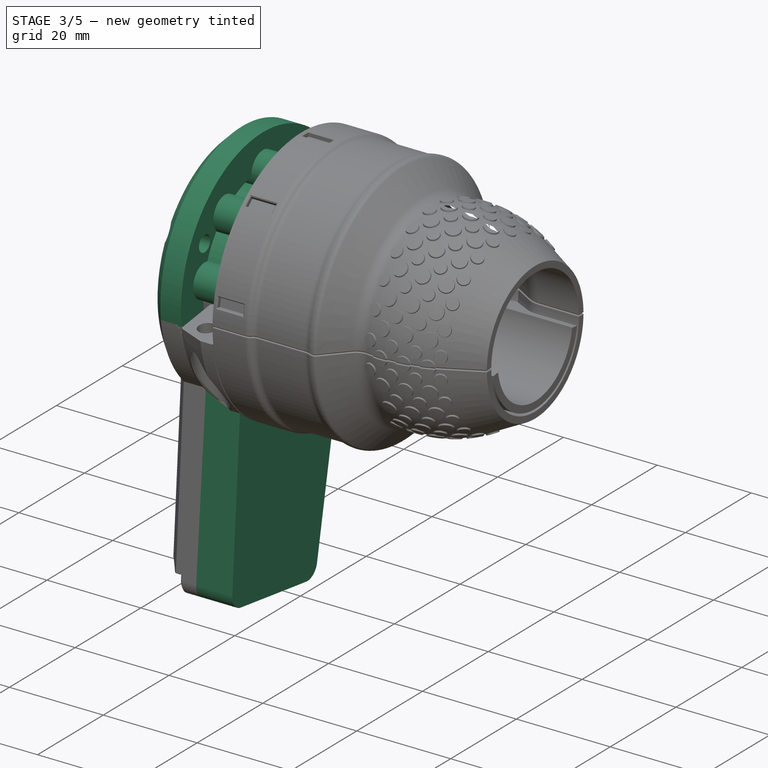
[diagram: stage 3 of 5 — iso view after this stage's code; geometry added in this stage tinted green]
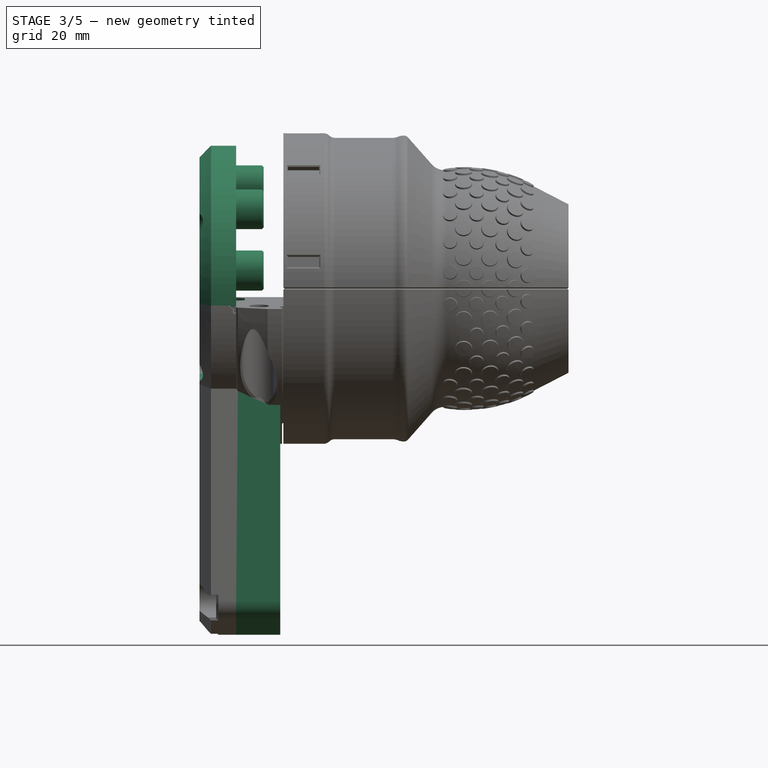
[diagram: stage 3 of 5 — front view after this stage's code; geometry added in this stage tinted green]
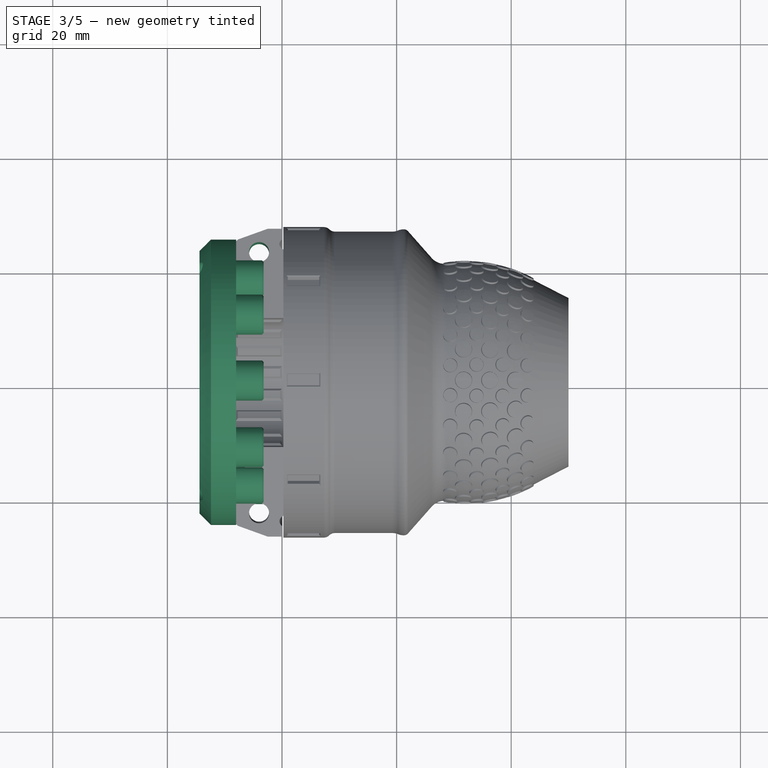
[diagram: stage 3 of 5 — top view after this stage's code; geometry added in this stage tinted green]
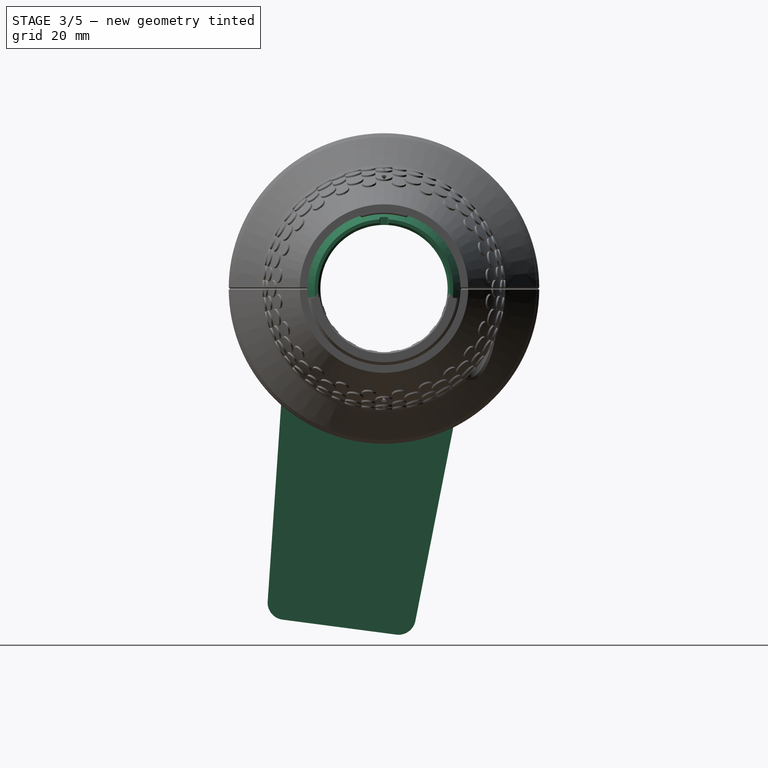
[diagram: stage 3 of 5 — right view after this stage's code; geometry added in this stage tinted green]
FEATURE [Sketcher::SketchObject] Sketch141
  ArcFitTolerance = 0
  AttachmentSupport = -> [XZ_Plane060]
  FullyConstrained = true
  MakeInternals = false
  MapMode = 5
  Placement = pos=(0,0,0) rot=(1,0,0;1.5708rad)
  expr: Constraints[21] = <<params>>.grip_bar_diameter / 2
  expr: Constraints[24] = <<Sketch007>>.Constraints.cover_size
  sketch-geometry (22):
    g0: LineSegment StartX=-14.4 StartY=22.9074 StartZ=0 EndX=-12.4 EndY=24.9074 EndZ=0
    g1: LineSegment StartX=-12.4 StartY=24.9074 StartZ=0 EndX=-8 EndY=24.9074 EndZ=0
    g2: LineSegment StartX=-8 StartY=24.9074 StartZ=0 EndX=-8 EndY=18.1 EndZ=0
    g3: LineSegment StartX=-8 StartY=11.5 StartZ=0 EndX=-8.4 EndY=11.1 EndZ=0
    g4: LineSegment StartX=-12.3642 StartY=11.1 StartZ=0 EndX=-14 EndY=11.7292 EndZ=0
    g5: LineSegment StartX=-14 StartY=11.7292 StartZ=0 EndX=-14.4 EndY=12.1292 EndZ=0
    g6: LineSegment StartX=-14.4 StartY=12.1292 StartZ=0 EndX=-14.4 EndY=22.9074 EndZ=0
    g7: LineSegment [constr] StartX=-14.4 StartY=12.1292 StartZ=0 EndX=-14.4 EndY=11.7292 EndZ=0
    g8: LineSegment [constr] StartX=-14.4 StartY=11.7292 StartZ=0 EndX=-14 EndY=11.7292 EndZ=0
    g9: LineSegment [constr] StartX=-8 StartY=11.1 StartZ=0 EndX=-8 EndY=18.1 EndZ=0
    g10: LineSegment [constr] StartX=-14.4 StartY=22.9074 StartZ=0 EndX=-14.4 EndY=24.9074 EndZ=0
    g11: LineSegment [constr] StartX=-14.4 StartY=24.9074 StartZ=0 EndX=-12.4 EndY=24.9074 EndZ=0
    g12: LineSegment [constr] StartX=-8.4 StartY=11.1 StartZ=0 EndX=-8 EndY=11.1 EndZ=0
    g13: LineSegment [constr] StartX=-8 StartY=11.1 StartZ=0 EndX=-8 EndY=11.5 EndZ=0
    g14: LineSegment StartX=-13.2 StartY=14.1 StartZ=0 EndX=-13.2 EndY=16.1 EndZ=0
    g15: LineSegment StartX=-13.2 StartY=16.1 StartZ=0 EndX=-8 EndY=18.1 EndZ=0
    g16: LineSegment [constr] StartX=-13.2 StartY=16.1 StartZ=0 EndX=-13.2 EndY=18.1 EndZ=0
    g17: LineSegment [constr] StartX=-13.2 StartY=18.1 StartZ=0 EndX=-8 EndY=18.1 EndZ=0
    g18: LineSegment StartX=-8 StartY=11.5 StartZ=0 EndX=-8 EndY=12.1 EndZ=0
    g19: LineSegment StartX=-8 StartY=12.1 StartZ=0 EndX=-13.2 EndY=14.1 EndZ=0
    g20: LineSegment StartX=-8.4 StartY=11.1 StartZ=0 EndX=-12.3642 EndY=11.1 EndZ=0
    g21: LineSegment [constr] StartX=-12.3642 StartY=11.1 StartZ=0 EndX=-11.4667 EndY=13.4334 EndZ=0
  constraints (61):
    c: Coincident(g1,g0)
    c: Horizontal(g1)
    c: Coincident(g2,g1)
    c: Vertical(g2)
    c: Coincident(g5,g4)
    c: Coincident(g6,g5)
    c: Coincident(g6,g0)
    c: Vertical(g6)
    c: Coincident(g7,g5)
    c: Vertical(g7)
    c: Coincident(g8,g7)
    c: Coincident(g8,g4)
    c: Vertical(g9)
    c: Coincident(g10,g0)
    c: Vertical(g10)
    c: Coincident(g11,g10)
    c: Coincident(g11,g0)
    c: Horizontal(g11)
    c: Horizontal(g8)
    c: Equal(g7,g8)
    c: DistanceX(g9,g-1) = 8
    c: DistanceY(g-1,g9) = 11.1
    c: Equal(g10,g11)
    c: DistanceX(g11,g11) = 2
    c: DistanceY(g9,g1) = 13.8074
    c: DistanceY(g7,g7) = 0.4
    c: Horizontal(g12)
    c: Coincident(g12,g13)
    c: Vertical(g13)
    c: Vertical(g14)
    c: Coincident(g14,g15)
    c: Coincident(g15,g2)
    c: Coincident(g2,g9)
    c: Equal(g7,g12)
    c: Equal(g12,g13)
    c: Coincident(g16,g14)
    c: Vertical(g16)
    c: Coincident(g17,g2)
    c: Coincident(g16,g17)
    c: Horizontal(g17)
    c: Coincident(g3,g13)
    c: Coincident(g9,g12)
    c: Coincident(g18,g3)
    c: Vertical(g18)
    c: Coincident(g19,g18)
    c: Coincident(g19,g14)
    c: Equal(g19,g15)
    c: DistanceY(g9,g18) = 1
    c: DistanceY(g18,g2) = 6
    c: DistanceX(g7,g14) = 1.2
    c: DistanceY(g16,g16) = 2
    c: DistanceX(g14,g18) = 5.2
    c: Parallel(g4,g19)
    c: Coincident(g3,g12)
    c: Coincident(g20,g3)
    c: Coincident(g20,g4)
    c: Horizontal(g20)
    c: PointOnObject(g21,g19)
    c: Perpendicular(g19,g21)
    c: Coincident(g21,g4)
    c: Distance(g21,g21) = 2.5
FEATURE [PartDesign::Revolution] Revolution019
  Angle = 193.679
  Angle2 = 60
  Axis = (1,0,0)
  Base = (0,0,0)
  Midplane = true
  Placement = pos=(0,0,0) rot=(1,0,0;1.5708rad)
  Profile = -> Sketch141
  ReferenceAxis = -> Sketch141 [H_Axis]
  Suppressed = false
  Type = 0
  expr: Angle = <<params>>.movement_range + <<params>>.rotator_angle + <<params>>.extra_angle
FEATURE [Sketcher::SketchObject] Sketch142
  ArcFitTolerance = 0
  AttachmentOffset = pos=(0,0,-13.2) rot=(0,0,1;1.39626rad)
  AttachmentSupport = -> [YZ_Plane060]
  FullyConstrained = true
  MakeInternals = false
  MapMode = 5
  Placement = pos=(-13.2,0,0) rot=(0.705758,0.061746,0.705758;3.01826rad)
  expr: .AttachmentOffset.Rotation.Angle = (<<params>>.positions / 2 - 0.5) * <<params>>.angle_between
  expr: Constraints[1] = <<params>>.track_radius
  sketch-geometry (7):
    g0: Circle [constr] CenterX=0 CenterY=18 CenterZ=0 NormalX=0 NormalY=0 NormalZ=1 AngleXU=0 Radius=3.5
    g1: Circle [constr] CenterX=0 CenterY=18 CenterZ=0 NormalX=0 NormalY=0 NormalZ=1 AngleXU=0 Radius=1.45
    g2: ArcOfCircle CenterX=0 CenterY=18 CenterZ=0 NormalX=0 NormalY=0 NormalZ=1 AngleXU=0 Radius=3.5 StartAngle=5.66446 EndAngle=10.0435
    g3: LineSegment StartX=-2.03654 StartY=15.55 StartZ=0 EndX=2.03654 EndY=15.55 EndZ=0
    g4: GeomPoint [constr] X=0 Y=16.55 Z=0
    g5: ArcOfCircle CenterX=-2.03654 CenterY=16.55 CenterZ=0 NormalX=0 NormalY=0 NormalZ=1 AngleXU=0 Radius=1 StartAngle=3.76032 EndAngle=4.71239
    g6: ArcOfCircle CenterX=2.03654 CenterY=16.55 CenterZ=0 NormalX=0 NormalY=0 NormalZ=1 AngleXU=0 Radius=1 StartAngle=4.71239 EndAngle=5.66446
  constraints (17):
    c: PointOnObject(g0,g-2)
    c: DistanceY(g-1,g0) = 18
    c: Diameter(g0) = 7
    c: Coincident(g1,g0)
    c: Diameter(g1) = 2.9
    c: Coincident(g2,g1)
    c: Horizontal(g3)
    c: PointOnObject(g4,g1)
    c: PointOnObject(g4,g-2)
    c: Tangent(g2,g5) = -1.5708
    c: Tangent(g3,g5) = -1.5708
    c: Tangent(g3,g6) = -1.5708
    c: Tangent(g2,g6) = -1.5708
    c: Equal(g6,g5)
    c: Radius(g6) = 1
    c: PointOnObject(g2,g0)
    c: DistanceY(g3,g4) = 1
FEATURE [PartDesign::Pad] Pad012
  BaseFeature = -> Revolution019
  Direction = (1,0,0)
  Length = 10
  Length2 = 10
  Placement = pos=(0,0,0) rot=(1,0,0;1.5708rad)
  Profile = -> Sketch142
  ReferenceAxis = -> Sketch142 [N_Axis]
  Suppressed = false
  Type = 0
FEATURE [Sketcher::SketchObject] Sketch143
  ArcFitTolerance = 0
  AttachmentSupport = -> [XZ_Plane060]
  FullyConstrained = true
  MakeInternals = false
  MapMode = 5
  Placement = pos=(0,0,0) rot=(1,0,0;1.5708rad)
  expr: Constraints[8] = <<params>>.grip_bar_diameter / 2
  sketch-geometry (4):
    g0: LineSegment StartX=-9 StartY=13.6 StartZ=0 EndX=-8 EndY=13.6 EndZ=0
    g1: LineSegment StartX=-8 StartY=13.6 StartZ=0 EndX=-8 EndY=11.1 EndZ=0
    g2: LineSegment StartX=-8 StartY=11.1 StartZ=0 EndX=-9 EndY=11.1 EndZ=0
    g3: LineSegment StartX=-9 StartY=11.1 StartZ=0 EndX=-9 EndY=13.6 EndZ=0
  constraints (12):
    c: Coincident(g0,g1)
    c: Coincident(g1,g2)
    c: Coincident(g2,g3)
    c: Coincident(g3,g0)
    c: Horizontal(g0)
    c: Horizontal(g2)
    c: Vertical(g1)
    c: Vertical(g3)
    c: DistanceY(g-1,g1) = 11.1
    c: DistanceX(g1,g-1) = 8
    c: DistanceX(g0,g0) = 1
    c: DistanceY(g3,g3) = 2.5
FEATURE [Sketcher::SketchObject] Sketch144
  ArcFitTolerance = 0
  AttachmentOffset = pos=(0,0,0) rot=(1,0,0;1.69017rad)
  AttachmentSupport = -> [XZ_Plane060]
  FullyConstrained = true
  MakeInternals = false
  MapMode = 5
  Placement = pos=(0,0,0) rot=(1,0,0;3.26097rad)
  expr: .AttachmentOffset.Rotation.Roll = (<<params>>.movement_range + <<params>>.rotator_angle + <<params>>.extra_angle) / 2
  expr: Constraints[34] = <<Sketch007>>.Constraints.cover_size
  expr: Constraints[5] = <<params>>.grip_bar_diameter / 2
  sketch-geometry (13):
    g0: LineSegment StartX=-13.2 StartY=16.1 StartZ=0 EndX=-8 EndY=18.1 EndZ=0
    g1: LineSegment [constr] StartX=-13.2 StartY=16.1 StartZ=0 EndX=-13.2 EndY=18.1 EndZ=0
    g2: LineSegment [constr] StartX=-13.2 StartY=18.1 StartZ=0 EndX=-8 EndY=18.1 EndZ=0
    g3: GeomPoint [constr] X=-8 Y=11.1 Z=0
    g4: LineSegment [constr] StartX=-8 StartY=18.1 StartZ=0 EndX=-8 EndY=11.1 EndZ=0
    g5: LineSegment StartX=-8 StartY=18.1 StartZ=0 EndX=-8 EndY=24.9074 EndZ=0
    g6: LineSegment StartX=-13.2 StartY=16.1 StartZ=0 EndX=-13.2 EndY=14.1 EndZ=0
    g7: LineSegment StartX=-13.2 StartY=14.1 StartZ=0 EndX=-13.5 EndY=14.1 EndZ=0
    g8: LineSegment StartX=-13.5 StartY=14.1 StartZ=0 EndX=-13.5 EndY=16.3646 EndZ=0
    g9: LineSegment StartX=-13.5 StartY=16.3646 StartZ=0 EndX=-8.4 EndY=18.3261 EndZ=0
    g10: LineSegment StartX=-8.4 StartY=18.3261 StartZ=0 EndX=-8.4 EndY=24.9074 EndZ=0
    g11: LineSegment StartX=-8.4 StartY=24.9074 StartZ=0 EndX=-8 EndY=24.9074 EndZ=0
    g12: LineSegment [constr] StartX=-13.2 StartY=16.1 StartZ=0 EndX=-13.5 EndY=16.3646 EndZ=0
  constraints (35):
    c: Vertical(g1)
    c: Coincident(g1,g2)
    c: Horizontal(g2)
    c: DistanceY(g1,g1) = 2
    c: DistanceX(g3,g-1) = 8
    c: DistanceY(g-1,g3) = 11.1
    c: DistanceY(g3,g0) = 7
    c: Coincident(g4,g0)
    c: Coincident(g4,g3)
    c: Vertical(g4)
    c: Coincident(g0,g1)
    c: Coincident(g0,g2)
    c: DistanceX(g2,g2) = 5.2
    c: Coincident(g5,g0)
    c: Vertical(g5)
    c: Coincident(g6,g0)
    c: Vertical(g6)
    c: DistanceY(g6,g6) = 2
    c: Coincident(g7,g6)
    c: Horizontal(g7)
    c: Coincident(g8,g7)
    c: Vertical(g8)
    c: Coincident(g9,g8)
    c: Coincident(g10,g9)
    c: Vertical(g10)
    c: Coincident(g11,g10)
    c: Coincident(g11,g5)
    c: Horizontal(g11)
    c: Parallel(g9,g0)
    c: Coincident(g12,g0)
    c: Coincident(g12,g8)
    c: Equal(g12,g11)
    c: DistanceX(g11,g11) = 0.4
    c: DistanceX(g7,g7) = 0.3
    c: DistanceY(g3,g5) = 13.8074
FEATURE [Sketcher::SketchObject] Sketch145
  ArcFitTolerance = 0
  AttachmentOffset = pos=(0,0,14.5) rot=(0,0,1;-1.0472rad)
  AttachmentSupport = -> [YZ_Plane060]
  FullyConstrained = true
  MakeInternals = false
  MapMode = 5
  Placement = pos=(-14.5,0,0) rot=(-0.694747,0.186157,0.694747;3.50969rad)
  expr: .AttachmentOffset.Rotation.Angle = -(<<params>>.positions / 2 - 1) * <<params>>.angle_between
  expr: Constraints[2] = <<params>>.track_radius + 2.5 mm
  sketch-geometry (1):
    g0: Circle CenterX=0 CenterY=20.5 CenterZ=0 NormalX=0 NormalY=0 NormalZ=1 AngleXU=0 Radius=3
  constraints (3):
    c: PointOnObject(g0,g-2)
    c: Diameter(g0) = 6
    c: DistanceY(g-1,g0) = 20.5
FEATURE [Sketcher::SketchObject] Sketch146
  ArcFitTolerance = 0
  AttachmentOffset = pos=(0,0,14.5) rot=(0,0,1;-1.0472rad)
  AttachmentSupport = -> [YZ_Plane060]
  FullyConstrained = true
  MakeInternals = false
  MapMode = 5
  Placement = pos=(-14.5,0,0) rot=(-0.694747,0.186157,0.694747;3.50969rad)
  expr: .AttachmentOffset.Rotation.Angle = -(<<params>>.positions / 2 - 1) * <<params>>.angle_between
  expr: Constraints[2] = <<params>>.track_radius + 2.5 mm
  sketch-geometry (1):
    g0: Circle CenterX=0 CenterY=20.5 CenterZ=0 NormalX=0 NormalY=0 NormalZ=1 AngleXU=0 Radius=1.7
  constraints (3):
    c: PointOnObject(g0,g-2)
    c: Diameter(g0) = 3.4
    c: DistanceY(g-1,g0) = 20.5
FEATURE [Sketcher::SketchObject] Sketch147
  ArcFitTolerance = 0
  AttachmentOffset = pos=(0,0,11.5) rot=(0,0,1;-1.0472rad)
  AttachmentSupport = -> [YZ_Plane060]
  FullyConstrained = true
  MakeInternals = false
  MapMode = 5
  Placement = pos=(-11.5,0,0) rot=(-0.694747,0.186157,0.694747;3.50969rad)
  expr: .AttachmentOffset.Rotation.Angle = -(<<params>>.positions / 2 - 1) * <<params>>.angle_between
  expr: Constraints[2] = <<params>>.track_radius + 2.5 mm
  sketch-geometry (5):
    g0: Circle [constr] CenterX=0 CenterY=20.5 CenterZ=0 NormalX=0 NormalY=0 NormalZ=1 AngleXU=0 Radius=1.7
    g1: ArcOfCircle CenterX=0 CenterY=20.5 CenterZ=0 NormalX=0 NormalY=0 NormalZ=1 AngleXU=0 Radius=3 StartAngle=2.53914 EndAngle=3.74405
    g2: ArcOfCircle CenterX=0 CenterY=20.5 CenterZ=0 NormalX=0 NormalY=0 NormalZ=1 AngleXU=0 Radius=3 StartAngle=5.68073 EndAngle=6.88564
    g3: LineSegment StartX=-2.47184 StartY=18.8 StartZ=0 EndX=2.47184 EndY=18.8 EndZ=0
    g4: LineSegment StartX=-2.47184 StartY=22.2 StartZ=0 EndX=2.47184 EndY=22.2 EndZ=0
  constraints (15):
    c: PointOnObject(g0,g-2)
    c: Diameter(g0) = 3.4
    c: DistanceY(g-1,g0) = 20.5
    c: Coincident(g1,g0)
    c: Coincident(g2,g1)
    c: Coincident(g3,g1)
    c: Coincident(g3,g2)
    c: Horizontal(g3)
    c: Coincident(g4,g1)
    c: Coincident(g4,g2)
    c: Horizontal(g4)
    c: Tangent(g0,g4)
    c: Tangent(g3,g0)
    c: Equal(g2,g1)
    c: Diameter(g2) = 6
FEATURE [Sketcher::SketchObject] Sketch148
  ArcFitTolerance = 0
  AttachmentOffset = pos=(0,0,11.2) rot=(0,0,1;-1.0472rad)
  AttachmentSupport = -> [YZ_Plane060]
  FullyConstrained = true
  MakeInternals = false
  MapMode = 5
  Placement = pos=(-11.2,0,0) rot=(-0.694747,0.186157,0.694747;3.50969rad)
  expr: .AttachmentOffset.Rotation.Angle = -(<<params>>.positions / 2 - 1) * <<params>>.angle_between
  expr: Constraints[2] = <<params>>.track_radius + 2.5 mm
  sketch-geometry (5):
    g0: Circle [constr] CenterX=0 CenterY=20.5 CenterZ=0 NormalX=0 NormalY=0 NormalZ=1 AngleXU=0 Radius=1.7
    g1: LineSegment StartX=-1.7 StartY=22.2 StartZ=0 EndX=1.7 EndY=22.2 EndZ=0
    g2: LineSegment StartX=1.7 StartY=22.2 StartZ=0 EndX=1.7 EndY=18.8 EndZ=0
    g3: LineSegment StartX=1.7 StartY=18.8 StartZ=0 EndX=-1.7 EndY=18.8 EndZ=0
    g4: LineSegment StartX=-1.7 StartY=18.8 StartZ=0 EndX=-1.7 EndY=22.2 EndZ=0
  constraints (15):
    c: PointOnObject(g0,g-2)
    c: Diameter(g0) = 3.4
    c: DistanceY(g-1,g0) = 20.5
    c: Coincident(g1,g2)
    c: Coincident(g2,g3)
    c: Coincident(g3,g4)
    c: Coincident(g4,g1)
    c: Horizontal(g1)
    c: Horizontal(g3)
    c: Vertical(g2)
    c: Vertical(g4)
    c: Tangent(g0,g1)
    c: Tangent(g0,g4)
    c: Tangent(g3,g0)
    c: Tangent(g0,g2)
FEATURE [Sketcher::SketchObject] Sketch149
  ArcFitTolerance = 0
  AttachmentOffset = pos=(0,0,-10.5) rot=(0,0,1;1.39626rad)
  AttachmentSupport = -> [YZ_Plane060]
  FullyConstrained = true
  MakeInternals = false
  MapMode = 5
  Placement = pos=(-10.5,0,0) rot=(0.705758,0.061746,0.705758;3.01826rad)
  expr: .AttachmentOffset.Rotation.Angle = (<<params>>.positions / 2 - 0.5) * <<params>>.angle_between
  expr: Constraints[1] = <<params>>.track_radius
  sketch-geometry (3):
    g0: Circle [constr] CenterX=0 CenterY=18 CenterZ=0 NormalX=0 NormalY=0 NormalZ=1 AngleXU=0 Radius=3.5
    g1: Circle CenterX=0 CenterY=18 CenterZ=0 NormalX=0 NormalY=0 NormalZ=1 AngleXU=0 Radius=1.45
    g2: GeomPoint [constr] X=0 Y=16.55 Z=0
  constraints (7):
    c: PointOnObject(g0,g-2)
    c: DistanceY(g-1,g0) = 18
    c: Diameter(g0) = 7
    c: Coincident(g1,g0)
    c: Diameter(g1) = 2.9
    c: PointOnObject(g2,g1)
    c: PointOnObject(g2,g-2)
FEATURE [PartDesign::Pocket] Pocket077
  BaseFeature = -> Pad012
  Direction = (-1,0,0)
  Length = 6.85
  Length2 = 5
  Placement = pos=(0,0,0) rot=(1,0,0;1.5708rad)
  Profile = -> Sketch149
  ReferenceAxis = -> Sketch149 [N_Axis]
  Reversed = true
  Suppressed = false
  Type = 1
FEATURE [PartDesign::Chamfer] Chamfer054
  Angle = 45
  Base = -> Pocket077 [Edge55,Edge50]
  BaseFeature = -> Pocket077
  ChamferType = 0
  FlipDirection = false
  Placement = pos=(0,0,0) rot=(1,0,0;1.5708rad)
  Size = 0.3
  Size2 = 1
  SupportTransform = false
  Suppressed = false
  UseAllEdges = false
FEATURE [PartDesign::PolarPattern] PolarPattern012
  Angle = 160
  Axis = -> Sketch142 [N_Axis]
  BaseFeature = -> Chamfer054
  Mode = 0
  Occurrences = 5
  Offset = 120
  Originals = -> [Pad012,Pocket077,Chamfer054]
  Placement = pos=(0,0,0) rot=(1,0,0;1.5708rad)
  Reversed = true
  Suppressed = false
  TransformMode = 0
  expr: Angle = <<params>>.movement_range
  expr: Occurrences = <<params>>.positions
FEATURE [PartDesign::Groove] Groove017
  Angle = 6
  Angle2 = 60
  Axis = (1,0,0)
  Base = (0,0,0)
  BaseFeature = -> PolarPattern012
  Midplane = true
  Placement = pos=(0,0,0) rot=(1,0,0;1.5708rad)
  Profile = -> Sketch143
  ReferenceAxis = -> Sketch143 [H_Axis]
  Reversed = true
  Suppressed = false
  Type = 0
FEATURE [PartDesign::Chamfer] Chamfer055
  Angle = 45
  Base = -> Groove017 [Edge150,Edge147]
  BaseFeature = -> Groove017
  ChamferType = 1
  FlipDirection = false
  Placement = pos=(0,0,0) rot=(1,0,0;1.5708rad)
  Refine = true
  Size = 0.2
  Size2 = 0.99
  SupportTransform = false
  Suppressed = false
  UseAllEdges = false
FEATURE [PartDesign::Revolution] Revolution020
  Angle = 3
  Angle2 = 60
  Axis = (1,0,0)
  Base = (0,0,0)
  BaseFeature = -> Chamfer055
  Placement = pos=(0,0,0) rot=(1,0,0;1.5708rad)
  Profile = -> Sketch144
  ReferenceAxis = -> Sketch144 [H_Axis]
  Refine = true
  Suppressed = false
  Type = 0
FEATURE [PartDesign::Chamfer] Chamfer056
  Angle = 45
  Base = -> Revolution020 [Edge108,Edge110,Edge111]
  BaseFeature = -> Revolution020
  ChamferType = 0
  FlipDirection = false
  Placement = pos=(0,0,0) rot=(1,0,0;1.5708rad)
  Size = 0.73
  Size2 = 1
  SupportTransform = false
  Suppressed = false
  UseAllEdges = false
FEATURE [PartDesign::Mirrored] Mirrored015
  BaseFeature = -> Chamfer056
  MirrorPlane = -> XZ_Plane060
  Originals = -> [Revolution020,Chamfer056]
  Placement = pos=(0,0,0) rot=(1,0,0;1.5708rad)
  Refine = true
  Suppressed = false
  TransformMode = 0
FEATURE [PartDesign::Pocket] Pocket073
  BaseFeature = -> Mirrored015
  Direction = (1,0,0)
  Length = 3
  Length2 = 5
  Placement = pos=(0,0,0) rot=(1,0,0;1.5708rad)
  Profile = -> Sketch145
  ReferenceAxis = -> Sketch145 [N_Axis]
  Suppressed = false
  Type = 0
FEATURE [PartDesign::Pocket] Pocket074
  BaseFeature = -> Pocket073
  Direction = (1,0,0)
  Length = 5
  Length2 = 5
  Placement = pos=(0,0,0) rot=(1,0,0;1.5708rad)
  Profile = -> Sketch146
  ReferenceAxis = -> Sketch146 [N_Axis]
  Suppressed = false
  Type = 1
FEATURE [PartDesign::Pocket] Pocket075
  BaseFeature = -> Pocket074
  Direction = (1,0,0)
  Length = 0.3
  Length2 = 5
  Placement = pos=(0,0,0) rot=(1,0,0;1.5708rad)
  Profile = -> Sketch147
  ReferenceAxis = -> Sketch147 [N_Axis]
  Suppressed = false
  Type = 0
FEATURE [PartDesign::Pocket] Pocket076
  BaseFeature = -> Pocket075
  Direction = (1,0,0)
  Length = 0.3
  Length2 = 5
  Placement = pos=(0,0,0) rot=(1,0,0;1.5708rad)
  Profile = -> Sketch148
  ReferenceAxis = -> Sketch148 [N_Axis]
  Suppressed = false
  Type = 0
FEATURE [PartDesign::Mirrored] Mirrored016
  BaseFeature = -> Pocket076
  MirrorPlane = -> XZ_Plane060
  Originals = -> [Pocket073,Pocket074,Pocket075,Pocket076]
  Placement = pos=(0,0,0) rot=(1,0,0;1.5708rad)
  Suppressed = false
  TransformMode = 0
FEATURE [PartDesign::Pocket] Pocket066
  BaseFeature = -> Pocket065
  Direction = (1,0,0)
  Length = 5
  Length2 = 5
  Placement = pos=(0,0,0) rot=(1,0,0;1.5708rad)
  Profile = -> Sketch130
  ReferenceAxis = -> Sketch130 [N_Axis]
  Suppressed = false
  Type = 1
FEATURE [PartDesign::Pocket] Pocket078
  BaseFeature = -> Pocket066
  Direction = (1,0,0)
  Length = 0.3
  Length2 = 5
  Placement = pos=(0,0,0) rot=(1,0,0;1.5708rad)
  Profile = -> Sketch151
  ReferenceAxis = -> Sketch151 [N_Axis]
  Suppressed = false
  Type = 0
FEATURE [PartDesign::Pocket] Pocket079
  BaseFeature = -> Pocket078
  Direction = (1,0,0)
  Length = 0.3
  Length2 = 5
  Placement = pos=(0,0,0) rot=(1,0,0;1.5708rad)
  Profile = -> Sketch152
  ReferenceAxis = -> Sketch152 [N_Axis]
  Suppressed = false
  Type = 0
FEATURE [PartDesign::Mirrored] Mirrored014
  BaseFeature = -> Pocket079
  MirrorPlane = -> XZ_Plane059
  Originals = -> [Pad008,Pocket065,Pocket066,Pocket078,Pocket079]
  Placement = pos=(0,0,0) rot=(1,0,0;1.5708rad)
  Refine = true
  Suppressed = false
  TransformMode = 0
FEATURE [PartDesign::Pad] Pad013
  BaseFeature = -> Mirrored014
  Direction = (-1,0,0)
  Length = 3
  Length2 = 10
  Placement = pos=(0,0,0) rot=(1,0,0;1.5708rad)
  Profile = -> Sketch150
  ReferenceAxis = -> Sketch150 [N_Axis]
  Reversed = true
  Suppressed = false
  Type = 0
FEATURE [PartDesign::Chamfer] Chamfer061
  Angle = 45
  Base = -> Pad013 [Edge448]
  BaseFeature = -> Pad013
  ChamferType = 0
  FlipDirection = false
  Placement = pos=(0,0,0) rot=(1,0,0;1.5708rad)
  Size = 0.99
  Size2 = 1
  SupportTransform = false
  Suppressed = false
  UseAllEdges = false
FEATURE [PartDesign::Chamfer] Chamfer062
  Angle = 45
  Base = -> Chamfer061 [Edge28,Edge5,Edge77]
  BaseFeature = -> Chamfer061
  ChamferType = 0
  FlipDirection = false
  Placement = pos=(0,0,0) rot=(1,0,0;1.5708rad)
  Size = 0.4
  Size2 = 1
  SupportTransform = false
  Suppressed = false
  UseAllEdges = false
FEATURE [PartDesign::Mirrored] Mirrored011
  BaseFeature = -> Chamfer065
  MirrorPlane = -> XZ_Plane058
  Originals = -> [Pocket059,Pocket058,Chamfer065]
  Placement = pos=(0,0,0) rot=(1,0,0;1.5708rad)
  Suppressed = false
  TransformMode = 0
FEATURE [PartDesign::Groove] Groove014
  Angle = 360
  Angle2 = 60
  Axis = (1,0,0)
  Base = (0,0,0)
  BaseFeature = -> Mirrored011
  Placement = pos=(0,0,0) rot=(1,0,0;1.5708rad)
  Profile = -> Sketch120
  ReferenceAxis = -> Sketch120 [H_Axis]
  Reversed = true
  Suppressed = false
  Type = 0
FEATURE [PartDesign::Pocket] Pocket060
  BaseFeature = -> Groove014
  Direction = (1,0,0)
  Length = 4
  Length2 = 5
  Placement = pos=(0,0,0) rot=(1,0,0;1.5708rad)
  Profile = -> Sketch118
  ReferenceAxis = -> Sketch118 [N_Axis]
  Suppressed = false
  Type = 0
FEATURE [PartDesign::Pocket] Pocket061
  BaseFeature = -> Pocket060
  Direction = (1,0,0)
  Length = 5
  Length2 = 5
  Placement = pos=(0,0,0) rot=(1,0,0;1.5708rad)
  Profile = -> Sketch119
  ReferenceAxis = -> Sketch119 [N_Axis]
  Suppressed = false
  Type = 0
FEATURE [PartDesign::Chamfer] Chamfer042
  Angle = 45
  Base = -> Pocket061 [Edge241]
  BaseFeature = -> Pocket061
  ChamferType = 0
  FlipDirection = false
  Placement = pos=(0,0,0) rot=(1,0,0;1.5708rad)
  Size = 0.5
  Size2 = 1
  SupportTransform = false
  Suppressed = false
  UseAllEdges = false
FEATURE [PartDesign::Mirrored] Mirrored012
  BaseFeature = -> Chamfer042
  MirrorPlane = -> XZ_Plane058
  Originals = -> [Pocket060,Pocket061,Chamfer042]
  Placement = pos=(0,0,0) rot=(1,0,0;1.5708rad)
  Suppressed = false
  TransformMode = 0
FEATURE [PartDesign::Pad] Pad007
  BaseFeature = -> Mirrored012
  Direction = (-1,0,0)
  Length = 7.7
  Length2 = 10
  Placement = pos=(0,0,0) rot=(1,0,0;1.5708rad)
  Profile = -> Sketch121
  ReferenceAxis = -> Sketch121 [N_Axis]
  Refine = true
  Reversed = true
  Suppressed = false
  Type = 0
FEATURE [PartDesign::Pocket] Pocket062
  BaseFeature = -> Pad007
  Direction = (1,0,0)
  Length = 6.2
  Length2 = 5
  Placement = pos=(0,0,0) rot=(1,0,0;1.5708rad)
  Profile = -> Sketch122
  ReferenceAxis = -> Sketch122 [N_Axis]
  Refine = true
  Suppressed = false
  Type = 0
FEATURE [PartDesign::Pocket] Pocket069
  BaseFeature = -> Pocket062
  Direction = (1,0,0)
  Length = 4
  Length2 = 5
  Placement = pos=(0,0,0) rot=(1,0,0;1.5708rad)
  Profile = -> Sketch136
  ReferenceAxis = -> Sketch136 [N_Axis]
  Suppressed = false
  Type = 0
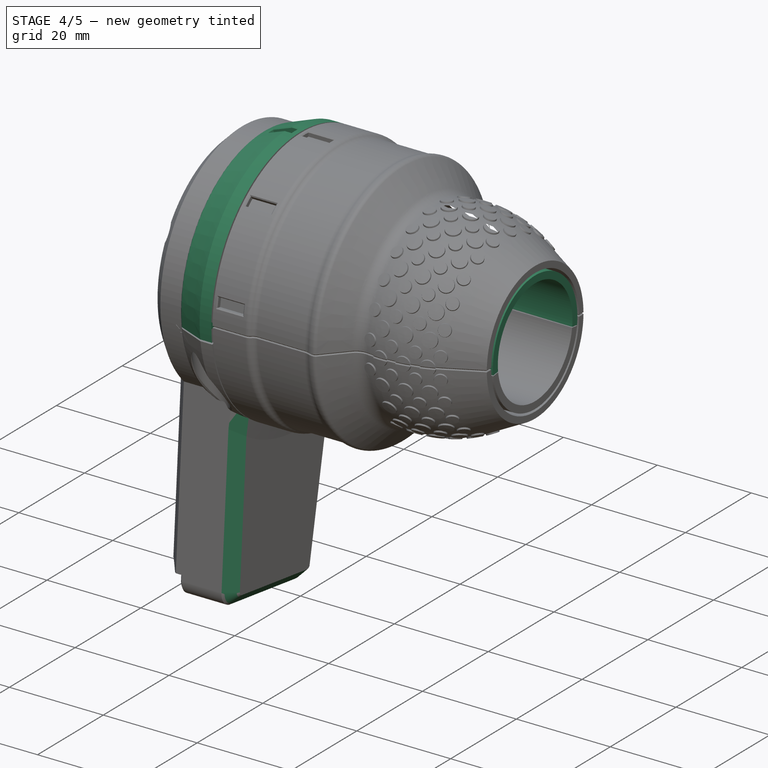
[diagram: stage 4 of 5 — iso view after this stage's code; geometry added in this stage tinted green]
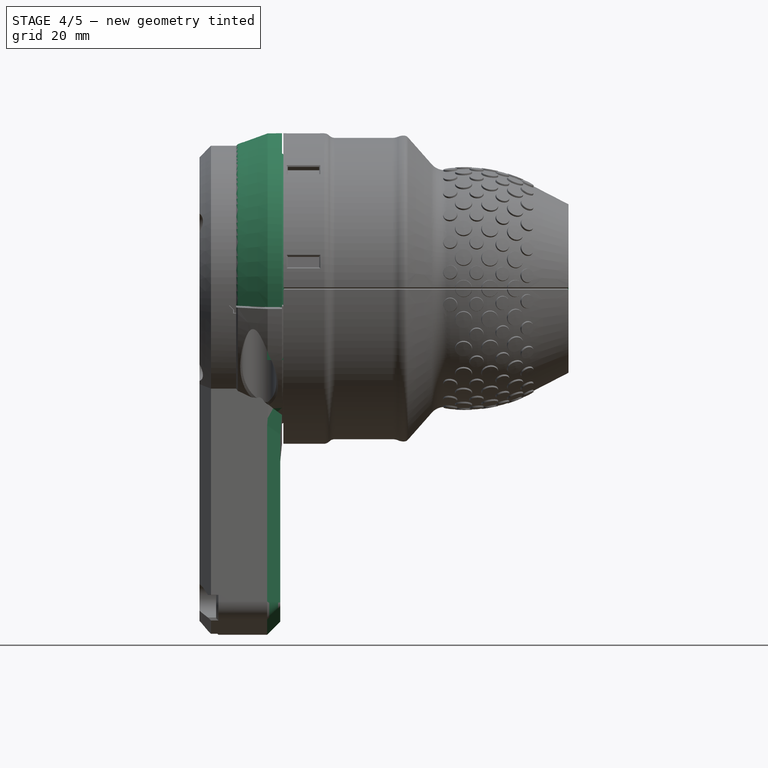
[diagram: stage 4 of 5 — front view after this stage's code; geometry added in this stage tinted green]
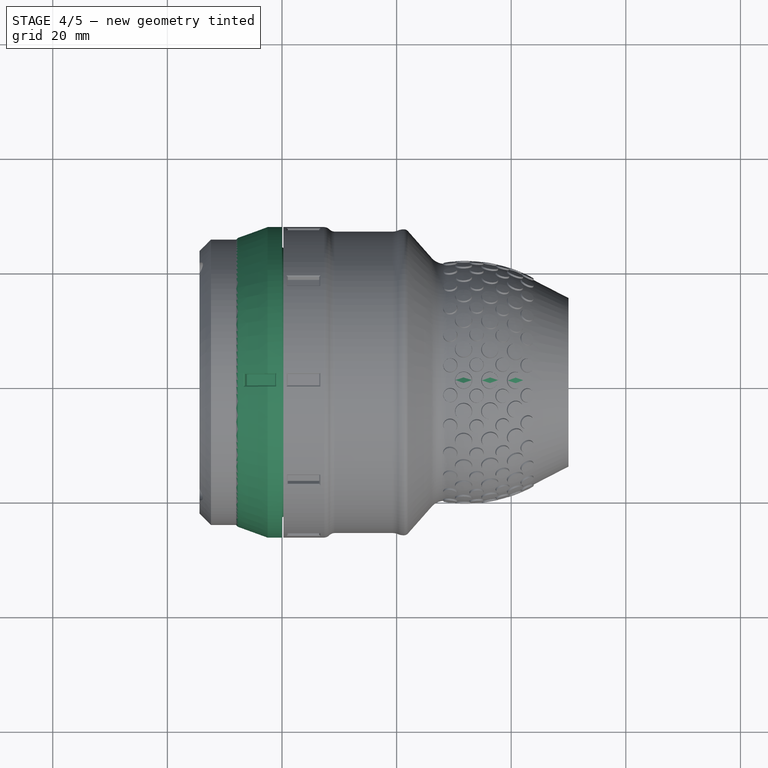
[diagram: stage 4 of 5 — top view after this stage's code; geometry added in this stage tinted green]
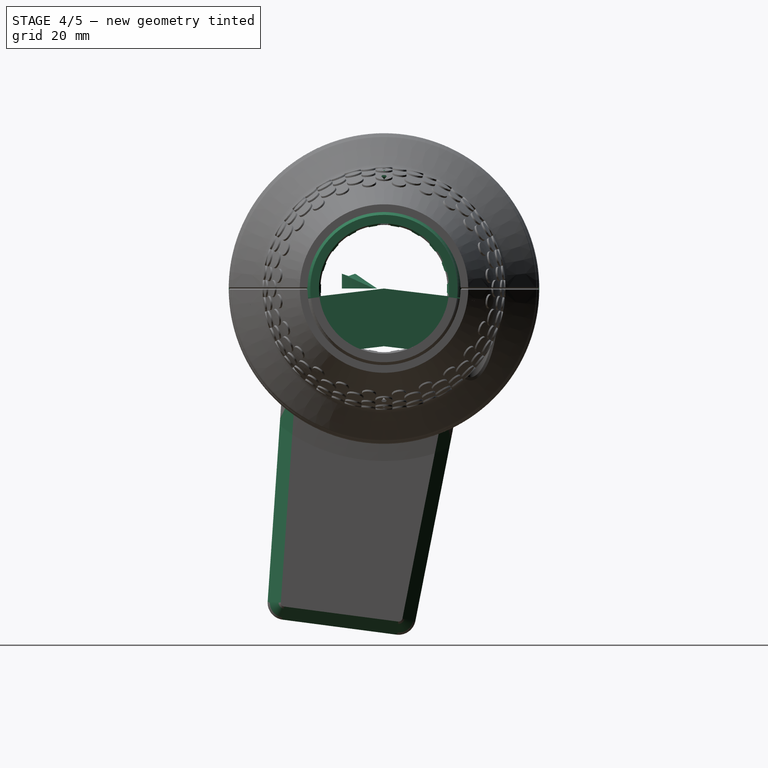
[diagram: stage 4 of 5 — right view after this stage's code; geometry added in this stage tinted green]
FEATURE [Spreadsheet::Sheet] Spreadsheet  label="params"
  cells = B2='grip_bar_diameter; C2(grip_bar_diameter)==22.2 mm; B3='positions; C3(positions)=5; B4='movement_range; C4(movement_range)==160 °; B5='angle_between; C5(angle_between)==movement_range / (positions - 1); B6='extra_angle; C6(extra_angle)==8 °; B8='ball_size; C8(ball_size)==4 mm; B9='track_radius; C9(track_radius)==grip_bar_diameter / 2 + wall_thickness * 2 + 0.5 mm + track_size / 2 + track_margin / 2; B10='track_size; C10(track_size)==ball_size + 2.5 mm; B11='track_margin; C11(track_margin)==0.3 mm; B12='track_outer_height; C12(track_outer_height)==2 mm; B14='rotator_width; C14(rotator_width)==8 mm; B15='rotator_angle; C15(rotator_angle)==asin(rotator_width / 2 / track_radius) * 2; B17='wall_thickness; C17(wall_thickness)==1.5 mm
FEATURE [Sketcher::SketchObject] Sketch007
  ArcFitTolerance = 0
  AttachmentSupport = -> [XZ_Plane001]
  FullyConstrained = true
  MakeInternals = false
  MapMode = 5
  Placement = pos=(0,0,0) rot=(1,0,0;1.5708rad)
  expr: Constraints[112] = <<params>>.grip_bar_diameter / 2
  expr: Constraints[113] = 2 * <<params>>.wall_thickness + 0.5 mm
  expr: Constraints[114] = <<params>>.wall_thickness
  expr: Constraints[31] = <<params>>.wall_thickness + 0.2 mm
  expr: Constraints[6] = <<params>>.track_size + <<params>>.track_margin
  sketch-geometry (48):
    g0: LineSegment StartX=-7.7 StartY=25.2074 StartZ=0 EndX=-2.5 EndY=27.1 EndZ=0
    g1: LineSegment StartX=0 StartY=27.1 StartZ=0 EndX=0 EndY=25.2192 EndZ=0
    g2: LineSegment StartX=1.51327 StartY=24.058 StartZ=0 EndX=6.4 EndY=25.4 EndZ=0
    g3: LineSegment StartX=6.4 StartY=21.4 StartZ=0 EndX=0 EndY=21.4 EndZ=0
    g4: LineSegment StartX=0 StartY=21.4 StartZ=0 EndX=0 EndY=14.6 EndZ=0
    g5: LineSegment StartX=7 StartY=12.85 StartZ=0 EndX=28.6151 EndY=12.85 EndZ=0
    g6: LineSegment StartX=50 StartY=12.85 StartZ=0 EndX=50 EndY=11.35 EndZ=0
    g7: LineSegment StartX=50 StartY=11.35 StartZ=0 EndX=0 EndY=11.35 EndZ=0
    g8: ArcOfCircle CenterX=0.573576 CenterY=24.4 CenterZ=0 NormalX=0 NormalY=0 NormalZ=1 AngleXU=0 Radius=1 StartAngle=2.18166 EndAngle=5.93412
    g9: LineSegment [constr] StartX=0 StartY=23.4 StartZ=0 EndX=1.51327 EndY=23.4 EndZ=0
    g10: LineSegment [constr] StartX=1.51327 StartY=23.4 StartZ=0 EndX=1.51327 EndY=24.058 EndZ=0
    g11: LineSegment [constr] StartX=0 StartY=23.4 StartZ=0 EndX=0 EndY=25.2192 EndZ=0
    g12: LineSegment [constr] StartX=0.573576 StartY=24.4 StartZ=0 EndX=0 EndY=25.2192 EndZ=0
    g13: LineSegment [constr] StartX=0.573576 StartY=24.4 StartZ=0 EndX=1.51327 EndY=24.058 EndZ=0
    g14: LineSegment StartX=-2.5 StartY=27.1 StartZ=0 EndX=0 EndY=27.1 EndZ=0
    g15: LineSegment [constr] StartX=6.4 StartY=21.4 StartZ=0 EndX=7 EndY=21.4 EndZ=0
    g16: LineSegment [constr] StartX=7 StartY=21.4 StartZ=0 EndX=7 EndY=22 EndZ=0
    g17: LineSegment StartX=6.4 StartY=21.4 StartZ=0 EndX=7 EndY=22 EndZ=0
    g18: LineSegment StartX=-8 StartY=24.9074 StartZ=0 EndX=-7.7 EndY=25.2074 EndZ=0
    g19: LineSegment [constr] StartX=-8 StartY=24.9074 StartZ=0 EndX=-7.7 EndY=24.9074 EndZ=0
    g20: LineSegment [constr] StartX=-7.7 StartY=24.9074 StartZ=0 EndX=-7.7 EndY=25.2074 EndZ=0
    g21: LineSegment [constr] StartX=-7.7 StartY=11 StartZ=0 EndX=-8 EndY=11 EndZ=0
    g22: LineSegment [constr] StartX=-8 StartY=11.3 StartZ=0 EndX=-8 EndY=11 EndZ=0
    g23: LineSegment StartX=-8 StartY=11.3 StartZ=0 EndX=-7.7 EndY=11 EndZ=0
    g24: LineSegment StartX=0 StartY=14.6 StartZ=0 EndX=6.4 EndY=14.6 EndZ=0
    g25: LineSegment StartX=7 StartY=14 StartZ=0 EndX=7 EndY=12.85 EndZ=0
    g26: LineSegment [constr] StartX=6.4 StartY=14.6 StartZ=0 EndX=7 EndY=14.6 EndZ=0
    g27: LineSegment [constr] StartX=7 StartY=14.6 StartZ=0 EndX=7 EndY=14 EndZ=0
    g28: LineSegment StartX=6.4 StartY=14.6 StartZ=0 EndX=7 EndY=14 EndZ=0
    g29: LineSegment StartX=-8 StartY=24.9074 StartZ=0 EndX=-8 EndY=11.3 EndZ=0
    g30: LineSegment StartX=7 StartY=24.8 StartZ=0 EndX=7 EndY=22 EndZ=0
    g31: LineSegment StartX=7 StartY=24.8 StartZ=0 EndX=6.4 EndY=25.4 EndZ=0
    g32: LineSegment [constr] StartX=6.4 StartY=25.4 StartZ=0 EndX=7 EndY=25.4 EndZ=0
    g33: LineSegment [constr] StartX=7 StartY=25.4 StartZ=0 EndX=7 EndY=24.8 EndZ=0
    g34: LineSegment StartX=31.1876 StartY=13.5625 StartZ=0 EndX=34.4855 EndY=15.5413 EndZ=0
    g35: LineSegment StartX=41.3849 StartY=12.85 StartZ=0 EndX=50 EndY=12.85 EndZ=0
    g36: ArcOfCircle CenterX=28.6151 CenterY=17.85 CenterZ=0 NormalX=0 NormalY=0 NormalZ=1 AngleXU=0 Radius=5 StartAngle=4.71239 EndAngle=5.25281
    g37: GeomPoint [constr] X=30 Y=12.85 Z=0
    g38: LineSegment StartX=35.5145 StartY=15.5413 StartZ=0 EndX=38.8124 EndY=13.5625 EndZ=0
    g39: ArcOfCircle CenterX=41.3849 CenterY=17.85 CenterZ=0 NormalX=0 NormalY=0 NormalZ=1 AngleXU=0 Radius=5 StartAngle=4.17197 EndAngle=4.71239
    g40: GeomPoint [constr] X=40 Y=12.85 Z=0
    g41: ArcOfCircle CenterX=35 CenterY=14.6838 CenterZ=0 NormalX=0 NormalY=0 NormalZ=1 AngleXU=0 Radius=1 StartAngle=1.03038 EndAngle=2.11122
    g42: GeomPoint [constr] X=35 Y=15.85 Z=0
    g43: LineSegment [constr] StartX=-8 StartY=11.1 StartZ=0 EndX=50 EndY=11.1 EndZ=0
    g44: LineSegment StartX=-7.7 StartY=11 StartZ=0 EndX=-0.35 EndY=11 EndZ=0
    g45: LineSegment StartX=-0.35 StartY=11 StartZ=0 EndX=0 EndY=11.35 EndZ=0
    g46: LineSegment [constr] StartX=-0.35 StartY=11 StartZ=0 EndX=0 EndY=11 EndZ=0
    g47: LineSegment [constr] StartX=0 StartY=11 StartZ=0 EndX=0 EndY=11.35 EndZ=0
  constraints (133):
    c: Vertical(g1)
    c: Horizontal(g3)
    c: Coincident(g4,g3)
    c: Vertical(g4)
    c: Horizontal(g5)
    c: Vertical(g6)
    c: DistanceY(g4,g4) = 6.8
    c: DistanceY(g-1,g0) = 27.1  'main_radius'
    c: Coincident(g8,g1)
    c: Coincident(g8,g2)
    c: Horizontal(g9)
    c: Coincident(g10,g9)
    c: Coincident(g10,g2)
    c: Coincident(g11,g9)
    c: Coincident(g11,g1)
    c: Vertical(g11)
    c: Vertical(g10)
    c: Tangent(g9,g8)
    c: Coincident(g12,g8)
    c: Coincident(g12,g1)
    c: Coincident(g13,g8)
    c: Coincident(g13,g2)
    c: Angle(g13,g12) = 2.53073
    c: Angle(g12,g1) = 2.53073
    c: Diameter(g8) = 2
    c: Coincident(g14,g0)
    c: Coincident(g14,g1)
    c: DistanceX(g14,g14) = 2.5
    c: Horizontal(g14)
    c: PointOnObject(g4,g-2)
    c: DistanceY(g9,g2) = 2
    c: DistanceY(g2,g1) = 1.7
    c: Coincident(g16,g15)
    c: Equal(g16,g15)
    c: Horizontal(g15)
    c: Vertical(g16)
    c: DistanceY(g16,g16) = 0.6
    c: Equal(g19,g20)
    c: DistanceX(g19,g19) = 0.3
    c: Vertical(g20)
    c: Horizontal(g19)
    c: Angle(g0,g14) = 2.79253
    c: Horizontal(g21)
    c: Vertical(g22)
    c: Equal(g22,g21)
    c: Equal(g21,g19)
    c: Coincident(g24,g4)
    c: Horizontal(g24)
    c: Coincident(g25,g5)
    c: Vertical(g25)
    c: DistanceX(g-1,g5) = 7
    c: Coincident(g26,g24)
    c: Horizontal(g26)
    c: Coincident(g27,g26)
    c: Coincident(g27,g25)
    c: Vertical(g27)
    c: Coincident(g28,g24)
    c: Coincident(g28,g25)
    c: Equal(g26,g27)
    c: Equal(g16,g26)
    c: Coincident(g15,g17)
    c: Coincident(g3,g17)
    c: DistanceX(g23,g6) = 58
    c: DistanceX(g23,g-1) = 8
    c: Vertical(g29)
    c: Vertical(g30)
    c: Coincident(g16,g17)
    c: Coincident(g17,g30)
    c: DistanceY(g3,g9) = 2
    c: PointOnObject(g25,g30)
    c: Coincident(g31,g30)
    c: Coincident(g31,g2)
    c: Coincident(g32,g2)
    c: Horizontal(g32)
    c: Coincident(g33,g32)
    c: Coincident(g33,g30)
    c: Vertical(g33)
    c: Equal(g33,g32)
    c: Equal(g32,g16)
    c: PointOnObject(g37,g5)
    c: PointOnObject(g37,g34)
    c: Tangent(g5,g36) = -1.5708
    c: Tangent(g34,g36) = -1.5708
    c: Radius(g36) = 5
    c: Coincident(g22,g23)
    c: Coincident(g22,g29)
    c: Coincident(g18,g19)
    c: Coincident(g18,g29)
    c: Coincident(g0,g18)
    c: Coincident(g0,g20)
    c: Coincident(g19,g20)
    c: PointOnObject(g1,g-2)
    c: Horizontal(g35)
    c: PointOnObject(g40,g38)
    c: PointOnObject(g40,g35)
    c: Tangent(g38,g39) = -1.5708
    c: Tangent(g35,g39) = -1.5708
    c: Equal(g39,g36)
    c: DistanceX(g-1,g42) = 35
    c: DistanceX(g37,g42) = 5
    c: DistanceY(g37,g42) = 3
    c: PointOnObject(g5,g35)
    c: PointOnObject(g42,g34)
    c: PointOnObject(g42,g38)
    c: Tangent(g34,g41) = 1.5708
    c: Tangent(g38,g41) = 1.5708
    c: Radius(g41) = 1
    c: Equal(g38,g34)
    c: Coincident(g6,g7)
    c: Coincident(g6,g35)
    c: Horizontal(g43)
    c: PointOnObject(g43,g6)
    c: DistanceY(g-1,g43) = 11.1
    c: DistanceY(g43,g4) = 3.5
    c: DistanceY(g7,g5) = 1.5
    c: DistanceY(g43,g6) = 0.25
    c: Coincident(g44,g23)
    c: Horizontal(g44)
    c: Coincident(g45,g44)
    c: Coincident(g46,g44)
    c: Horizontal(g46)
    c: Coincident(g47,g46)
    c: Coincident(g47,g45)
    c: Vertical(g47)
    c: Coincident(g7,g45)
    c: Equal(g47,g46)
    c: Coincident(g21,g23)
    c: PointOnObject(g7,g4)
    c: Horizontal(g7)
    c: Coincident(g21,g22)
    c: PointOnObject(g43,g29)
    c: DistanceY(g21,g43) = 0.1
    c: DistanceY(g43,g18) = 13.8074  'cover_size'
FEATURE [PartDesign::Revolution] Revolution
  Angle = 193.679
  Angle2 = 60
  Axis = (1,0,0)
  Base = (0,0,0)
  Midplane = true
  Placement = pos=(0,0,0) rot=(1,0,0;1.5708rad)
  Profile = -> Sketch007
  ReferenceAxis = -> Sketch007 [H_Axis]
  Suppressed = false
  Type = 0
  expr: Angle = <<params>>.movement_range + <<params>>.rotator_angle + <<params>>.extra_angle
FEATURE [Part::Feature] polyhedron078
  shape: bbox 3.927 x 4.791 x 2.584 mm, 62 faces (baked)
FEATURE [Part::Feature] polyhedron079
  shape: bbox 4.049 x 5.696 x 2.584 mm, 62 faces (baked)
FEATURE [Part::Fuse] union039
  Base = -> polyhedron078
  Placement = pos=(0,0,0) rot=(0,0,1;0.081396rad)
  Tool = -> polyhedron079
FEATURE [Part::Mirroring] mirr_union039  label="mirrored union039"
  Base = (0,0,0)
  Normal = (0,1,0)
  Source = -> union039
FEATURE [Part::Box] cube006
  AttacherType = Attacher::AttachEngine3D
  Height = 10
  Length = 5.2
  Placement = pos=(-2.6,0,0) rot=(1,0,0;3.26097rad)
  Width = 21.4
FEATURE [Part::Box] cube007
  AttacherType = Attacher::AttachEngine3D
  Height = 10
  Length = 5.2
  Placement = pos=(-2.6,0,0) rot=(1,0,0;3.26097rad)
  Width = 21.4
FEATURE [Part::Mirroring] mirr_cube007  label="mirrored cube007"
  Base = (0,0,0)
  Normal = (0,1,0)
  Source = -> cube007
FEATURE [Part::Fuse] Group027
  Base = -> cube006
  Tool = -> mirr_cube007
FEATURE [PartDesign::Body] Body002  label="grip_ramp"
  AllowCompound = false
  BaseFeature = -> difference003
  Group = -> [BaseFeature]
  Origin = -> Origin002
  Tip = -> BaseFeature
FEATURE [Part::FeaturePython] Screw002  label="M3x8-Screw"  # WARN: FeaturePython — macro-defined, semantics opaque (R4)
  Diameter = 4
  Invert = false
  LeftHanded = false
  Length = 2
  LengthCustom = 8
  MatchOuter = false
  OffsetAngle = 0
  Placement = pos=(11,0,18) rot=(0,1,0;1.5708rad)
  Thread = true
  Type = 74
  expr: .Placement.Base.x = 7 mm + <<params>>.ball_size
  expr: .Placement.Base.z = <<params>>.track_radius
FEATURE [Part::Feature] Part__Feature113  label="R_0603_1608Metric"
  shape: bbox 1.6 x 0.8 x 0.45 mm, 26 faces (baked)
FEATURE [App::Part] R_0603_1608Metric  label="R_0603_1608Metric001"
  Group = -> [Part__Feature113]
  Origin = -> Origin030
  Placement = pos=(56,-61.25,1.65) rot=(0,0,1;1.5708rad)
FEATURE [Part::Feature] Part__Feature114  label="R_0603_1608Metric002"
  shape: bbox 1.6 x 0.8 x 0.45 mm, 26 faces (baked)
FEATURE [App::Part] R_0603_1608Metric001  label="R_0603_1608Metric003"
  Group = -> [Part__Feature114]
  Origin = -> Origin031
  Placement = pos=(64,-61.25,1.65) rot=(0,0,1;1.5708rad)
FEATURE [Part::Feature] Part__Feature115  label="R_0603_1608Metric004"
  shape: bbox 1.6 x 0.8 x 0.45 mm, 26 faces (baked)
FEATURE [App::Part] R_0603_1608Metric002  label="R_0603_1608Metric005"
  Group = -> [Part__Feature115]
  Origin = -> Origin032
  Placement = pos=(58,-61.25,1.65) rot=(0,0,1;1.5708rad)
FEATURE [Part::Feature] Part__Feature116  label="R_0603_1608Metric006"
  shape: bbox 1.6 x 0.8 x 0.45 mm, 26 faces (baked)
FEATURE [App::Part] R_0603_1608Metric003  label="R_0603_1608Metric007"
  Group = -> [Part__Feature116]
  Origin = -> Origin033
  Placement = pos=(66,-61.25,1.65) rot=(0,0,1;1.5708rad)
FEATURE [Part::Feature] Part__Feature117  label="R_0603_1608Metric008"
  shape: bbox 1.6 x 0.8 x 0.45 mm, 26 faces (baked)
FEATURE [App::Part] R_0603_1608Metric004  label="R_0603_1608Metric009"
  Group = -> [Part__Feature117]
  Origin = -> Origin034
  Placement = pos=(62,-61.25,1.65) rot=(0,0,1;1.5708rad)
FEATURE [Part::Feature] Part__Feature118  label="R_0603_1608Metric010"
  shape: bbox 1.6 x 0.8 x 0.45 mm, 26 faces (baked)
FEATURE [App::Part] R_0603_1608Metric005  label="R_0603_1608Metric011"
  Group = -> [Part__Feature118]
  Origin = -> Origin035
  Placement = pos=(54,-61.25,1.65) rot=(0,0,1;1.5708rad)
FEATURE [Part::Feature] Part__Feature119  label="R_0603_1608Metric012"
  shape: bbox 1.6 x 0.8 x 0.45 mm, 26 faces (baked)
FEATURE [App::Part] R_0603_1608Metric006  label="R_0603_1608Metric013"
  Group = -> [Part__Feature119]
  Origin = -> Origin036
  Placement = pos=(68,-61.25,1.65) rot=(0,0,1;1.5708rad)
FEATURE [Part::Feature] Part__Feature120  label="R_0603_1608Metric014"
  shape: bbox 1.6 x 0.8 x 0.45 mm, 26 faces (baked)
FEATURE [App::Part] R_0603_1608Metric007  label="R_0603_1608Metric015"
  Group = -> [Part__Feature120]
  Origin = -> Origin037
  Placement = pos=(60,-61.25,1.65) rot=(0,0,1;1.5708rad)
FEATURE [Part::Feature] Part__Feature121  label="root"
  shape: bbox 9.899 x 12.1 x 0.2 mm, 8 faces (baked)
FEATURE [Part::Feature] Part__Feature122  label="root001"
  shape: bbox 10.3 x 12.5 x 1.5 mm, 27 faces (baked)
FEATURE [Part::Feature] Part__Feature123  label="root002"
  shape: bbox 1.524 x 2.032 x 0.08 mm, 25 faces (baked)
FEATURE [Part::Feature] Part__Feature124  label="root003"
  shape: bbox 1.524 x 2.032 x 0.08 mm, 25 faces (baked)
FEATURE [Part::Feature] Part__Feature125  label="root004"
  shape: bbox 1.524 x 2.032 x 0.08 mm, 25 faces (baked)
FEATURE [Part::Feature] Part__Feature126  label="root005"
  shape: bbox 1.524 x 2.032 x 0.08 mm, 25 faces (baked)
FEATURE [Part::Feature] Part__Feature127  label="root006"
  shape: bbox 1.524 x 2.032 x 0.08 mm, 25 faces (baked)
FEATURE [Part::Feature] Part__Feature128  label="root007"
  shape: bbox 1.524 x 2.032 x 0.08 mm, 25 faces (baked)
FEATURE [Part::Feature] Part__Feature129  label="root008"
  shape: bbox 1.524 x 2.032 x 0.08 mm, 25 faces (baked)
FEATURE [Part::Feature] Part__Feature130  label="root009"
  shape: bbox 1.524 x 2.032 x 0.08 mm, 25 faces (baked)
FEATURE [Part::Feature] Part__Feature131  label="root010"
  shape: bbox 1.524 x 2.032 x 0.08 mm, 25 faces (baked)
FEATURE [Part::Feature] Part__Feature132  label="root011"
  shape: bbox 1.524 x 2.032 x 0.08 mm, 25 faces (baked)
FEATURE [Part::Feature] Part__Feature133  label="root012"
  shape: bbox 1.524 x 2.032 x 0.08 mm, 25 faces (baked)
FEATURE [Part::Feature] Part__Feature134  label="root013"
  shape: bbox 1.524 x 2.032 x 0.08 mm, 25 faces (baked)
FEATURE [Part::Feature] Part__Feature135  label="root014"
  shape: bbox 1.524 x 2.032 x 0.08 mm, 25 faces (baked)
FEATURE [Part::Feature] Part__Feature136  label="root015"
  shape: bbox 1.524 x 2.032 x 0.08 mm, 25 faces (baked)
FEATURE [Part::Feature] Part__Feature137  label="root016"
  shape: bbox 1.524 x 2.032 x 0.08 mm, 25 faces (baked)
FEATURE [Part::Feature] Part__Feature138  label="root017"
  shape: bbox 1.524 x 2.032 x 0.08 mm, 25 faces (baked)
FEATURE [Part::Feature] Part__Feature139  label="root018"
  shape: bbox 1.524 x 2.032 x 0.08 mm, 25 faces (baked)
FEATURE [Part::Feature] Part__Feature140  label="root019"
  shape: bbox 1.524 x 2.032 x 0.08 mm, 25 faces (baked)
FEATURE [Part::Feature] Part__Feature141  label="root020"
  shape: bbox 1.524 x 2.032 x 0.08 mm, 25 faces (baked)
FEATURE [Part::Feature] Part__Feature142  label="root021"
  shape: bbox 1.524 x 2.032 x 0.08 mm, 25 faces (baked)
FEATURE [Part::Feature] Part__Feature143  label="root022"
  shape: bbox 1.524 x 2.032 x 0.08 mm, 25 faces (baked)
FEATURE [Part::Feature] Part__Feature144  label="root023"
  shape: bbox 1.524 x 2.032 x 0.1 mm, 25 faces (baked)
FEATURE [Part::Feature] Part__Feature145  label="root024"
  shape: bbox 1.524 x 2.032 x 0.1 mm, 25 faces (baked)
FEATURE [Part::Feature] Part__Feature146  label="root025"
  shape: bbox 1.524 x 2.032 x 0.1 mm, 25 faces (baked)
FEATURE [Part::Feature] Part__Feature147  label="root026"
  shape: bbox 1.524 x 2.032 x 0.1 mm, 25 faces (baked)
FEATURE [Part::Feature] Part__Feature148  label="root027"
  shape: bbox 1.524 x 2.032 x 0.1 mm, 25 faces (baked)
FEATURE [Part::Feature] Part__Feature149  label="root028"
  shape: bbox 1.524 x 2.032 x 0.1 mm, 25 faces (baked)
FEATURE [Part::Feature] Part__Feature150  label="root029"
  shape: bbox 1.524 x 2.032 x 0.1 mm, 25 faces (baked)
FEATURE [Part::Feature] Part__Feature151  label="root030"
  shape: bbox 0.9144 x 1.93 x 0.2 mm, 10 faces (baked)
FEATURE [Part::Feature] Part__Feature152  label="root031"
  shape: bbox 0.9144 x 1.93 x 0.2 mm, 10 faces (baked)
FEATURE [Part::Feature] Part__Feature153  label="root032"
  shape: bbox 0.4369 x 0.9449 x 0.1 mm, 6 faces (baked)
FEATURE [Part::Feature] Part__Feature154  label="root033"
  shape: bbox 0.4369 x 0.9449 x 0.1 mm, 6 faces (baked)
FEATURE [Part::Feature] Part__Feature155  label="root034"
  shape: bbox 0.4369 x 0.9449 x 0.1 mm, 6 faces (baked)
FEATURE [Part::Feature] Part__Feature156  label="root035"
  shape: bbox 0.4369 x 0.9449 x 0.1 mm, 6 faces (baked)
FEATURE [Part::Feature] Part__Feature157  label="root036"
  shape: bbox 0.4369 x 0.9449 x 0.1 mm, 6 faces (baked)
FEATURE [Part::Feature] Part__Feature158  label="root037"
  shape: bbox 0.4369 x 0.9449 x 0.1 mm, 6 faces (baked)
FEATURE [Part::Feature] Part__Feature159  label="root038"
  shape: bbox 1.219 x 1.219 x 0.2 mm, 3 faces (baked)
FEATURE [Part::Feature] Part__Feature160  label="root039"
  shape: bbox 1.219 x 1.219 x 0.2 mm, 3 faces (baked)
FEATURE [Part::Feature] Part__Feature161  label="root040"
  shape: bbox 1.219 x 1.219 x 0.2 mm, 3 faces (baked)
FEATURE [Part::Feature] Part__Feature162  label="root041"
  shape: bbox 1.219 x 1.219 x 0.2 mm, 3 faces (baked)
FEATURE [Part::Feature] Part__Feature163  label="root042"
  shape: bbox 2.286 x 1.27 x 0.2 mm, 6 faces (baked)
FEATURE [Part::Feature] Part__Feature164  label="root043"
  shape: bbox 2.286 x 1.27 x 0.2 mm, 6 faces (baked)
FEATURE [Part::Feature] Part__Feature165  label="root044"
  shape: bbox 20.96 x 17.78 x 0.905 mm, 794 faces (baked)
FEATURE [Part::Feature] Part__Feature166  label="root045"
  shape: bbox 0.61 x 0.304 x 0.1 mm, 6 faces (baked)
FEATURE [Part::Feature] Part__Feature167  label="root046"
  shape: bbox 0.61 x 0.304 x 0.1 mm, 6 faces (baked)
FEATURE [Part::Feature] Part__Feature168  label="root047"
  shape: bbox 0.304 x 0.61 x 0.1 mm, 6 faces (baked)
FEATURE [Part::Feature] Part__Feature169  label="root048"
  shape: bbox 0.61 x 0.304 x 0.1 mm, 6 faces (baked)
FEATURE [Part::Feature] Part__Feature170  label="root049"
  shape: bbox 0.304 x 0.61 x 0.1 mm, 6 faces (baked)
FEATURE [Part::Feature] Part__Feature171  label="root050"
  shape: bbox 0.304 x 0.61 x 0.1 mm, 6 faces (baked)
FEATURE [Part::Feature] Part__Feature172  label="root051"
  shape: bbox 0.304 x 0.61 x 0.1 mm, 6 faces (baked)
FEATURE [Part::Feature] Part__Feature173  label="root052"
  shape: bbox 0.304 x 0.61 x 0.1 mm, 6 faces (baked)
FEATURE [Part::Feature] Part__Feature174  label="root053"
  shape: bbox 0.304 x 0.61 x 0.1 mm, 6 faces (baked)
FEATURE [Part::Feature] Part__Feature175  label="root054"
  shape: bbox 0.61 x 0.304 x 0.1 mm, 6 faces (baked)
FEATURE [Part::Feature] Part__Feature176  label="root055"
  shape: bbox 0.304 x 0.61 x 0.1 mm, 6 faces (baked)
FEATURE [Part::Feature] Part__Feature177  label="root056"
  shape: bbox 0.61 x 0.304 x 0.1 mm, 6 faces (baked)
FEATURE [Part::Feature] Part__Feature178  label="root057"
  shape: bbox 0.61 x 0.304 x 0.1 mm, 6 faces (baked)
FEATURE [Part::Feature] Part__Feature179  label="root058"
  shape: bbox 1.05 x 0.58 x 0.1 mm, 6 faces (baked)
FEATURE [Part::Feature] Part__Feature180  label="root059"
  shape: bbox 0.304 x 0.61 x 0.1 mm, 6 faces (baked)
FEATURE [Part::Feature] Part__Feature181  label="root060"
  shape: bbox 0.304 x 0.61 x 0.1 mm, 6 faces (baked)
FEATURE [Part::Feature] Part__Feature182  label="root061"
  shape: bbox 0.304 x 0.61 x 0.1 mm, 6 faces (baked)
FEATURE [Part::Feature] Part__Feature183  label="root062"
  shape: bbox 0.304 x 0.61 x 0.1 mm, 6 faces (baked)
FEATURE [Part::Feature] Part__Feature184  label="root063"
  shape: bbox 0.304 x 0.61 x 0.1 mm, 6 faces (baked)
FEATURE [Part::Feature] Part__Feature185  label="root064"
  shape: bbox 0.304 x 0.61 x 0.1 mm, 6 faces (baked)
FEATURE [Part::Feature] Part__Feature186  label="root065"
  shape: bbox 0.304 x 0.61 x 0.1 mm, 6 faces (baked)
FEATURE [Part::Feature] Part__Feature187  label="root066"
  shape: bbox 0.304 x 0.61 x 0.1 mm, 6 faces (baked)
FEATURE [Part::Feature] Part__Feature188  label="root067"
  shape: bbox 0.304 x 0.61 x 0.1 mm, 6 faces (baked)
FEATURE [Part::Feature] Part__Feature189  label="root068"
  shape: bbox 0.304 x 0.61 x 0.1 mm, 6 faces (baked)
FEATURE [Part::Feature] Part__Feature190  label="root069"
  shape: bbox 0.304 x 0.61 x 0.1 mm, 6 faces (baked)
FEATURE [Part::Feature] Part__Feature191  label="root070"
  shape: bbox 0.304 x 0.61 x 0.1 mm, 6 faces (baked)
FEATURE [Part::Feature] Part__Feature192  label="root071"
  shape: bbox 0.304 x 0.61 x 0.1 mm, 6 faces (baked)
FEATURE [Part::Feature] Part__Feature193  label="root072"
  shape: bbox 0.304 x 0.61 x 0.1 mm, 6 faces (baked)
FEATURE [Part::Feature] Part__Feature194  label="root073"
  shape: bbox 0.61 x 0.304 x 0.1 mm, 6 faces (baked)
FEATURE [Part::Feature] Part__Feature195  label="root074"
  shape: bbox 0.61 x 0.304 x 0.1 mm, 6 faces (baked)
FEATURE [Part::Feature] Part__Feature196  label="root075"
  shape: bbox 0.304 x 0.61 x 0.1 mm, 6 faces (baked)
FEATURE [Part::Feature] Part__Feature197  label="root076"
  shape: bbox 0.61 x 0.304 x 0.1 mm, 6 faces (baked)
FEATURE [Part::Feature] Part__Feature198  label="root077"
  shape: bbox 0.61 x 0.304 x 0.1 mm, 6 faces (baked)
FEATURE [Part::Feature] Part__Feature199  label="root078"
  shape: bbox 0.304 x 0.61 x 0.1 mm, 6 faces (baked)
FEATURE [Part::Feature] Part__Feature200  label="root079"
  shape: bbox 0.304 x 0.61 x 0.1 mm, 6 faces (baked)
FEATURE [Part::Feature] Part__Feature201  label="root080"
  shape: bbox 0.304 x 0.61 x 0.1 mm, 6 faces (baked)
FEATURE [Part::Feature] Part__Feature202  label="root081"
  shape: bbox 0.61 x 0.304 x 0.1 mm, 6 faces (baked)
FEATURE [Part::Feature] Part__Feature203  label="root082"
  shape: bbox 0.61 x 0.304 x 0.1 mm, 6 faces (baked)
FEATURE [Part::Feature] Part__Feature204  label="root083"
  shape: bbox 0.304 x 0.61 x 0.1 mm, 6 faces (baked)
FEATURE [Part::Feature] Part__Feature205  label="root084"
  shape: bbox 0.304 x 0.61 x 0.1 mm, 6 faces (baked)
FEATURE [Part::Feature] Part__Feature206  label="root085"
  shape: bbox 0.61 x 0.304 x 0.1 mm, 6 faces (baked)
FEATURE [Part::Feature] Part__Feature207  label="root086"
  shape: bbox 0.61 x 0.304 x 0.1 mm, 6 faces (baked)
FEATURE [Part::Feature] Part__Feature208  label="root087"
  shape: bbox 0.304 x 0.61 x 0.1 mm, 6 faces (baked)
FEATURE [Part::Feature] Part__Feature209  label="root088"
  shape: bbox 0.636 x 1.27 x 0.1 mm, 6 faces (baked)
FEATURE [Part::Feature] Part__Feature210  label="root089"
  shape: bbox 5.588 x 5.588 x 0.1 mm, 6 faces (baked)
FEATURE [Part::Feature] Part__Feature211  label="root090"
  shape: bbox 2.206 x 0.883 x 0.1 mm, 6 faces (baked)
FEATURE [Part::Feature] Part__Feature212  label="root091"
  shape: bbox 0.61 x 0.304 x 0.1 mm, 6 faces (baked)
FEATURE [Part::Feature] Part__Feature213  label="root092"
  shape: bbox 0.61 x 0.304 x 0.1 mm, 6 faces (baked)
FEATURE [Part::Feature] Part__Feature214  label="root093"
  shape: bbox 0.6 x 1 x 0.1 mm, 6 faces (baked)
FEATURE [Part::Feature] Part__Feature215  label="root094"
  shape: bbox 1.2 x 0.8 x 0.1 mm, 6 faces (baked)
FEATURE [Part::Feature] Part__Feature216  label="root095"
  shape: bbox 1 x 0.33 x 0.1 mm, 6 faces (baked)
FEATURE [Part::Feature] Part__Feature217  label="root096"
  shape: bbox 3 x 2.9 x 0.1 mm, 6 faces (baked)
FEATURE [Part::Feature] Part__Feature218  label="root097"
  shape: bbox 3 x 2.9 x 0.1 mm, 6 faces (baked)
FEATURE [Part::Feature] Part__Feature219  label="root098"
  shape: bbox 7 x 10.4 x 3.564 mm, 54 faces (baked)
FEATURE [Part::Feature] Part__Feature220  label="root099"
  shape: bbox 0.635 x 1.398 x 0.5 mm, 10 faces (baked)
FEATURE [Part::Feature] Part__Feature221  label="root100"
  shape: bbox 2.601 x 1.6 x 0.45 mm, 9 faces (baked)
FEATURE [Part::Feature] Part__Feature222  label="root101"
  shape: bbox 1.6 x 3.2 x 0.5 mm, 6 faces (baked)
FEATURE [Part::Feature] Part__Feature223  label="root102"
  shape: bbox 1.001 x 1.001 x 0.5 mm, 7 faces (baked)
FEATURE [App::Part] root  label="root103"
  Group = -> [Part__Feature121,Part__Feature122,Part__Feature123,Part__Feature124,Part__Feature125,Part__Feature126,Part__Feature127,Part__Feature128,Part__Feature129,Part__Feature130,Part__Feature131,Part__Feature132,Part__Feature133,Part__Feature134,Part__Feature135,Part__Feature136,Part__Feature137,Part__Feature138,Part__Feature139,Part__Feature140,Part__Feature141,Part__Feature142,Part__Feature143,+80 more]
  Origin = -> Origin038
FEATURE [App::Part] Seeed_Studio_XIAO_nRF52841  label="Seeed_Studio_XIAO_nRF52840"
  Group = -> [root]
  Origin = -> Origin039
  Placement = pos=(71.175,-65.065,1.65) rot=(0,0,1;1.5708rad)
FEATURE [Part::Feature] Part__Feature224  label="R_0603_1608Metric016"
  shape: bbox 1.6 x 0.8 x 0.45 mm, 26 faces (baked)
FEATURE [App::Part] R_0603_1608Metric008  label="R_0603_1608Metric017"
  Group = -> [Part__Feature224]
  Origin = -> Origin040
  Placement = pos=(52,-61.25,1.65) rot=(0,0,1;1.5708rad)
FEATURE [Part::Feature] Part__Feature225  label="R_0603_1608Metric018"
  shape: bbox 1.6 x 0.8 x 0.45 mm, 26 faces (baked)
FEATURE [App::Part] R_0603_1608Metric009  label="R_0603_1608Metric019"
  Group = -> [Part__Feature225]
  Origin = -> Origin041
  Placement = pos=(70,-61.25,1.65) rot=(0,0,1;1.5708rad)
FEATURE [Part::Feature] Part__Feature226  label="Keystone_1058_1x2032"
  shape: bbox 31.86 x 17.97 x 5.08 mm, 99 faces (baked)
FEATURE [App::Part] BatteryHolder_Keystone_1058_1x2032
  Group = -> [Part__Feature226]
  Origin = -> Origin042
  Placement = pos=(61,-55.5,-0.05) rot=(0.5,0.866025,0;3.14159rad)
FEATURE [Part::Feature] Part__Feature227  label="feedbike-pcb_PCB"
  shape: bbox 22 x 35 x 1.6 mm, 18 faces (baked)
FEATURE [App::Part] feedbike_pcb_1  label="feedbike-pcb 1"
  Group = -> [R_0603_1608Metric,R_0603_1608Metric001,R_0603_1608Metric002,R_0603_1608Metric003,R_0603_1608Metric004,R_0603_1608Metric005,R_0603_1608Metric006,R_0603_1608Metric007,Seeed_Studio_XIAO_nRF52841,R_0603_1608Metric008,R_0603_1608Metric009,BatteryHolder_Keystone_1058_1x2032,Part__Feature227]
  Origin = -> Origin043
  Placement = pos=(-75.5,-54.186,-71.1815) rot=(0.363936,-0.363936,0.85738;1.72407rad)
FEATURE [Sketcher::SketchObject] Sketch110
  ArcFitTolerance = 1e-06
  AttachmentOffset = pos=(0,0,27.3) rot=(0,-1,0;0.261799rad)
  AttachmentSupport = -> [XY_Plane001]
  FullyConstrained = true
  MakeInternals = false
  MapMode = 5
  Placement = pos=(0,0,27.3) rot=(0,-1,0;0.261799rad)
  expr: .AttachmentOffset.Base.z = <<Sketch007>>.Constraints.main_radius + 0.2 mm
  sketch-geometry (4):
    g0: LineSegment StartX=-1.25 StartY=1 StartZ=0 EndX=-6.75 EndY=1 EndZ=0
    g1: LineSegment StartX=-6.75 StartY=1 StartZ=0 EndX=-6.75 EndY=-1 EndZ=0
    g2: LineSegment StartX=-6.75 StartY=-1 StartZ=0 EndX=-1.25 EndY=-1 EndZ=0
    g3: LineSegment StartX=-1.25 StartY=-1 StartZ=0 EndX=-1.25 EndY=1 EndZ=0
  constraints (11):
    c: Coincident(g0,g1)
    c: Coincident(g1,g2)
    c: Coincident(g2,g3)
    c: Coincident(g3,g0)
    c: Horizontal(g0)
    c: Horizontal(g2)
    c: Vertical(g1)
    c: DistanceX(g0,g0) = 5.5
    c: DistanceY(g1,g1) = 2
    c: Symmetric(g2,g0,g-1)
    c: DistanceX(g0,g-1) = 1.25
FEATURE [Sketcher::SketchObject] Sketch111
  ArcFitTolerance = 1e-06
  AttachmentSupport = -> [YZ_Plane001]
  FullyConstrained = true
  MakeInternals = false
  MapMode = 5
  Placement = pos=(0,0,0) rot=(0.57735,0.57735,0.57735;2.0944rad)
  expr: Constraints[15] = <<params>>.grip_bar_diameter / 2 + 0.25 mm
  sketch-geometry (9):
    g0: ArcOfCircle CenterX=0 CenterY=0 CenterZ=0 NormalX=0 NormalY=0 NormalZ=1 AngleXU=0 Radius=11.35 StartAngle=1.49226 EndAngle=1.64934
    g1: ArcOfCircle CenterX=0 CenterY=0 CenterZ=0 NormalX=0 NormalY=0 NormalZ=1 AngleXU=0 Radius=11 StartAngle=1.45991 EndAngle=1.68168
    g2: LineSegment StartX=-1.21726 StartY=10.9324 StartZ=0 EndX=-0.890511 EndY=11.315 EndZ=0
    g3: LineSegment StartX=0.890511 StartY=11.315 StartZ=0 EndX=1.21726 EndY=10.9324 EndZ=0
    g4: LineSegment [constr] StartX=-0.890511 StartY=11.315 StartZ=0 EndX=0 EndY=0 EndZ=0
    g5: LineSegment [constr] StartX=0.890511 StartY=11.315 StartZ=0 EndX=0 EndY=0 EndZ=0
    g6: LineSegment [constr] StartX=-1.21726 StartY=10.9324 StartZ=0 EndX=-0.834686 EndY=10.6057 EndZ=0
    g7: LineSegment [constr] StartX=0 StartY=11 StartZ=0 EndX=0 EndY=11.35 EndZ=0
    g8: LineSegment [constr] StartX=-0.890511 StartY=11.315 StartZ=0 EndX=0.890511 EndY=11.315 EndZ=0
  constraints (25):
    c: Coincident(g0,g-1)
    c: Coincident(g1,g0)
    c: Coincident(g2,g1)
    c: Coincident(g2,g0)
    c: Coincident(g3,g0)
    c: Coincident(g3,g1)
    c: Coincident(g4,g0)
    c: Coincident(g4,g0)
    c: Coincident(g5,g0)
    c: Coincident(g5,g0)
    c: Angle(g5,g4) = 0.15708
    c: Coincident(g6,g1)
    c: PointOnObject(g6,g4)
    c: Equal(g6,g2)
    c: Perpendicular(g2,g6)
    c: Radius(g0) = 11.35
    c: PointOnObject(g7,g1)
    c: PointOnObject(g7,g0)
    c: Vertical(g7)
    c: PointOnObject(g7,g-2)
    c: DistanceY(g7,g7) = 0.35
    c: Equal(g3,g2)
    c: Coincident(g8,g0)
    c: Coincident(g8,g0)
    c: Horizontal(g8)
FEATURE [PartDesign::Pocket] Pocket055
  BaseFeature = -> Revolution
  Direction = (-1,0,0)
  Length = 5
  Length2 = 5
  Placement = pos=(0,0,0) rot=(1,0,0;1.5708rad)
  Profile = -> Sketch111
  ReferenceAxis = -> Sketch111 [N_Axis]
  Suppressed = false
  Type = 1
FEATURE [PartDesign::PolarPattern] PolarPattern008
  Angle = 360
  Axis = -> Sketch111 [N_Axis]
  BaseFeature = -> Pocket055
  Mode = 0
  Occurrences = 18
  Offset = 120
  Originals = -> [Pocket055]
  Placement = pos=(0,0,0) rot=(1,0,0;1.5708rad)
  Suppressed = false
  TransformMode = 0
FEATURE [PartDesign::Pocket] Pocket021
  BaseFeature = -> PolarPattern008
  Direction = (-1,0,0)
  Length = 2
  Length2 = 5
  Placement = pos=(0,0,0) rot=(1,0,0;1.5708rad)
  Profile = -> Sketch041
  ReferenceAxis = -> Sketch041 [N_Axis]
  Suppressed = false
  Type = 0
FEATURE [PartDesign::Pocket] Pocket022
  BaseFeature = -> Pocket021
  Direction = (-1,0,0)
  Length = 0.2
  Length2 = 5
  Placement = pos=(0,0,0) rot=(1,0,0;1.5708rad)
  Profile = -> Sketch044
  ReferenceAxis = -> Sketch044 [N_Axis]
  Refine = true
  Suppressed = false
  Type = 0
FEATURE [PartDesign::Pocket] Pocket023
  BaseFeature = -> Pocket022
  Direction = (-1,0,0)
  Length = 0.2
  Length2 = 5
  Placement = pos=(0,0,0) rot=(1,0,0;1.5708rad)
  Profile = -> Sketch043
  ReferenceAxis = -> Sketch043 [N_Axis]
  Refine = true
  Suppressed = false
  Type = 0
FEATURE [PartDesign::Pocket] Pocket024
  BaseFeature = -> Pocket023
  Direction = (-1,0,0)
  Length = 5
  Length2 = 5
  Placement = pos=(0,0,0) rot=(1,0,0;1.5708rad)
  Profile = -> Sketch042
  ReferenceAxis = -> Sketch042 [N_Axis]
  Refine = true
  Suppressed = false
  Type = 1
FEATURE [PartDesign::PolarPattern] PolarPattern
  Angle = 160
  Axis = -> Sketch044 [N_Axis]
  BaseFeature = -> Pocket024
  Mode = 0
  Occurrences = 5
  Offset = 120
  Originals = -> [Pocket021,Pocket022,Pocket023,Pocket024]
  Placement = pos=(0,0,0) rot=(1,0,0;1.5708rad)
  Refine = true
  Reversed = true
  Suppressed = false
  TransformMode = 0
  expr: Angle = <<params>>.movement_range
  expr: Occurrences = <<params>>.positions
FEATURE [PartDesign::Pocket] Pocket012
  BaseFeature = -> PolarPattern
  Direction = (0,-0.11909,0.992883)
  Length = 4
  Length2 = 5
  Placement = pos=(0,0,0) rot=(1,0,0;1.5708rad)
  Profile = -> Sketch019
  ReferenceAxis = -> Sketch019 [N_Axis]
  Suppressed = false
  Type = 0
FEATURE [PartDesign::Pocket] Pocket013
  BaseFeature = -> Pocket012
  Direction = (0,-0.11909,0.992883)
  Length = 5
  Length2 = 5
  Placement = pos=(0,0,0) rot=(1,0,0;1.5708rad)
  Profile = -> Sketch020
  ReferenceAxis = -> Sketch020 [N_Axis]
  Suppressed = false
  Type = 0
FEATURE [PartDesign::Mirrored] Mirrored
  BaseFeature = -> Pocket013
  MirrorPlane = -> XZ_Plane001
  Originals = -> [Pocket012,Pocket013]
  Placement = pos=(0,0,0) rot=(1,0,0;1.5708rad)
  Suppressed = false
  TransformMode = 0
FEATURE [PartDesign::Groove] Groove005
  Angle = 360
  Angle2 = 60
  Axis = (1,0,0)
  Base = (0,0,0)
  BaseFeature = -> Mirrored
  Placement = pos=(0,0,0) rot=(1,0,0;1.5708rad)
  Profile = -> Sketch085
  ReferenceAxis = -> Sketch085 [H_Axis]
  Reversed = true
  Suppressed = false
  Type = 0
FEATURE [PartDesign::Pocket] Pocket025
  BaseFeature = -> Groove005
  Direction = (-1,0,0)
  Length = 5
  Length2 = 5
  Placement = pos=(0,0,0) rot=(1,0,0;1.5708rad)
  Profile = -> Sketch046
  ReferenceAxis = -> Sketch046 [N_Axis]
  Refine = true
  Suppressed = false
  Type = 1
FEATURE [PartDesign::Groove] Groove
  Angle = 7.28413
  Angle2 = 60
  Axis = (1,0,0)
  Base = (0,0,0)
  BaseFeature = -> Pocket025
  Midplane = true
  Placement = pos=(0,0,0) rot=(1,0,0;1.5708rad)
  Profile = -> Sketch052
  ReferenceAxis = -> Sketch052 [H_Axis]
  Refine = true
  Reversed = true
  Suppressed = false
  Type = 0
  expr: Angle = Sketch046.Constraints.angle
FEATURE [PartDesign::Pocket] Pocket028
  BaseFeature = -> Groove
  Direction = (1,0,0)
  Length = 4
  Length2 = 5
  Placement = pos=(0,0,0) rot=(1,0,0;1.5708rad)
  Profile = -> Sketch053
  ReferenceAxis = -> Sketch053 [N_Axis]
  Suppressed = false
  Type = 0
FEATURE [PartDesign::Pocket] Pocket029
  BaseFeature = -> Pocket028
  Direction = (1,0,0)
  Length = 5
  Length2 = 5
  Placement = pos=(0,0,0) rot=(1,0,0;1.5708rad)
  Profile = -> Sketch054
  ReferenceAxis = -> Sketch054 [N_Axis]
  Suppressed = false
  Type = 0
FEATURE [PartDesign::Chamfer] Chamfer012
  Angle = 45
  Base = -> Pocket029 [Edge545]
  BaseFeature = -> Pocket029
  ChamferType = 0
  FlipDirection = false
  Placement = pos=(0,0,0) rot=(1,0,0;1.5708rad)
  Size = 0.5
  Size2 = 1
  SupportTransform = false
  Suppressed = false
  UseAllEdges = false
FEATURE [PartDesign::Mirrored] Mirrored002
  BaseFeature = -> Chamfer012
  MirrorPlane = -> XZ_Plane001
  Originals = -> [Pocket028,Pocket029,Chamfer012]
  Placement = pos=(0,0,0) rot=(1,0,0;1.5708rad)
  Suppressed = false
  TransformMode = 0
FEATURE [PartDesign::Pocket] Pocket054
  BaseFeature = -> Mirrored002
  Direction = (0.258819,0,-0.965926)
  Length = 3
  Length2 = 5
  Midplane = true
  Placement = pos=(0,0,0) rot=(1,0,0;1.5708rad)
  Profile = -> Sketch110
  ReferenceAxis = -> Sketch110 [N_Axis]
  Suppressed = false
  Type = 0
FEATURE [PartDesign::Chamfer] Chamfer035
  Angle = 45
  Base = -> Pocket054 [Edge362,Edge361,Edge364,Edge360,Edge366,Edge365]
  BaseFeature = -> Pocket054
  ChamferType = 0
  FlipDirection = false
  Placement = pos=(0,0,0) rot=(1,0,0;1.5708rad)
  Size = 0.2
  Size2 = 1
  SupportTransform = false
  Suppressed = false
  UseAllEdges = false
FEATURE [PartDesign::Chamfer] Chamfer038
  Angle = 45
  Base = -> Pocket069 [Edge193]
  BaseFeature = -> Pocket069
  ChamferType = 1
  FlipDirection = false
  Placement = pos=(0,0,0) rot=(1,0,0;1.5708rad)
  Size = 0.299
  Size2 = 3
  SupportTransform = false
  Suppressed = false
  UseAllEdges = false
FEATURE [PartDesign::Chamfer] Chamfer039
  Angle = 45
  Base = -> Chamfer038 [Edge97]
  BaseFeature = -> Chamfer038
  ChamferType = 0
  FlipDirection = false
  Placement = pos=(0,0,0) rot=(1,0,0;1.5708rad)
  Size = 2.3
  Size2 = 2.49
  SupportTransform = false
  Suppressed = false
  UseAllEdges = false
FEATURE [PartDesign::Chamfer] Chamfer041
  Angle = 45
  Base = -> Chamfer039 [Edge235]
  BaseFeature = -> Chamfer039
  ChamferType = 0
  FlipDirection = false
  Placement = pos=(0,0,0) rot=(1,0,0;1.5708rad)
  Size = 1
  Size2 = 1
  SupportTransform = false
  Suppressed = false
  UseAllEdges = false
FEATURE [PartDesign::Chamfer] Chamfer043
  Angle = 45
  Base = -> Chamfer041 [Edge297,Edge298]
  BaseFeature = -> Chamfer041
  ChamferType = 0
  FlipDirection = false
  Placement = pos=(0,0,0) rot=(1,0,0;1.5708rad)
  Size = 0.5
  Size2 = 1
  SupportTransform = false
  Suppressed = false
  UseAllEdges = false
FEATURE [PartDesign::Pocket] Pocket070
  BaseFeature = -> Chamfer043
  Direction = (1,0,0)
  Length = 6.45
  Length2 = 5
  Placement = pos=(0,0,0) rot=(1,0,0;1.5708rad)
  Profile = -> Sketch137
  ReferenceAxis = -> Sketch137 [N_Axis]
  Suppressed = false
  Type = 0
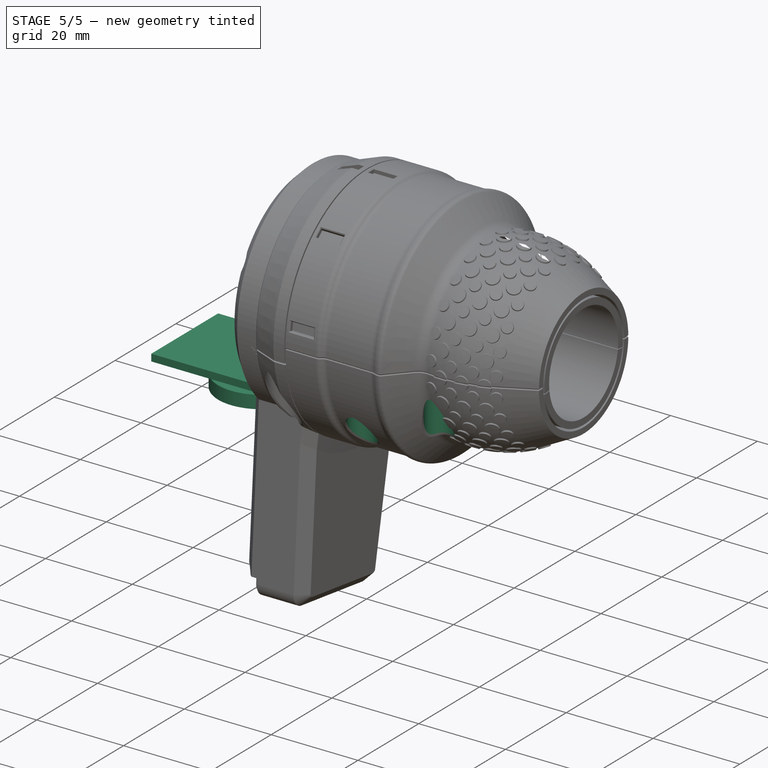
[diagram: stage 5 of 5 — iso view after this stage's code; geometry added in this stage tinted green]
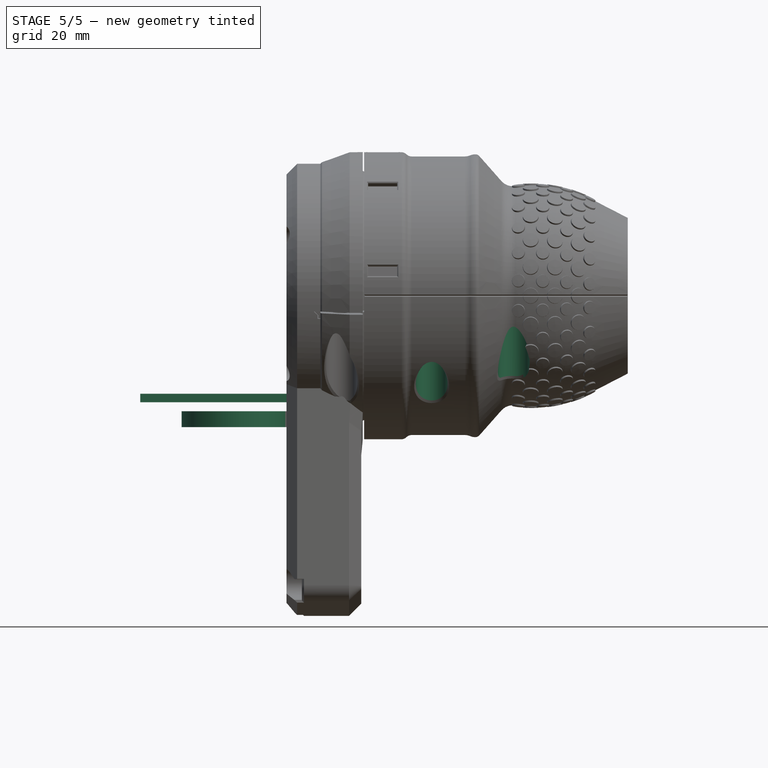
[diagram: stage 5 of 5 — front view after this stage's code; geometry added in this stage tinted green]
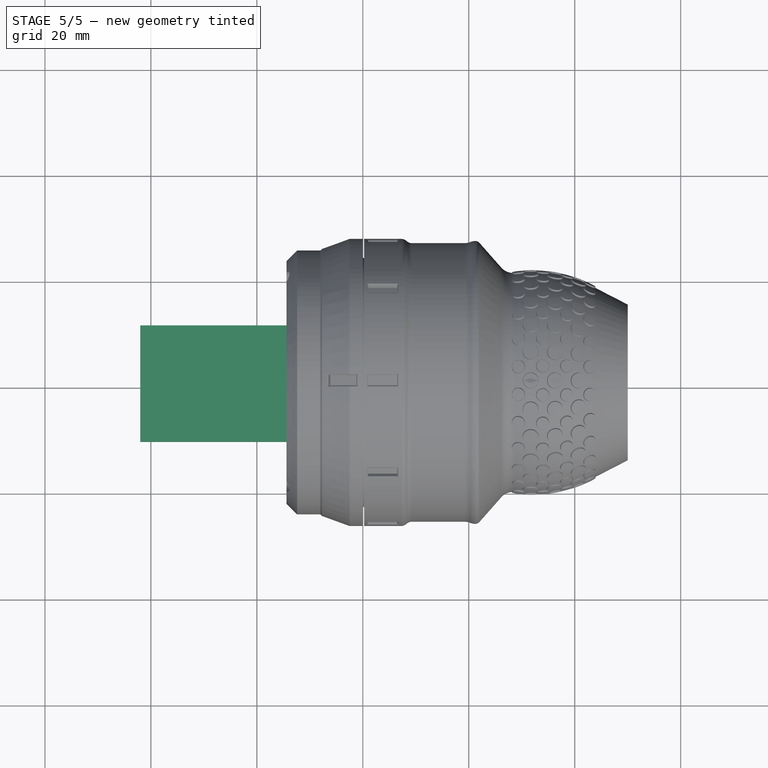
[diagram: stage 5 of 5 — top view after this stage's code; geometry added in this stage tinted green]
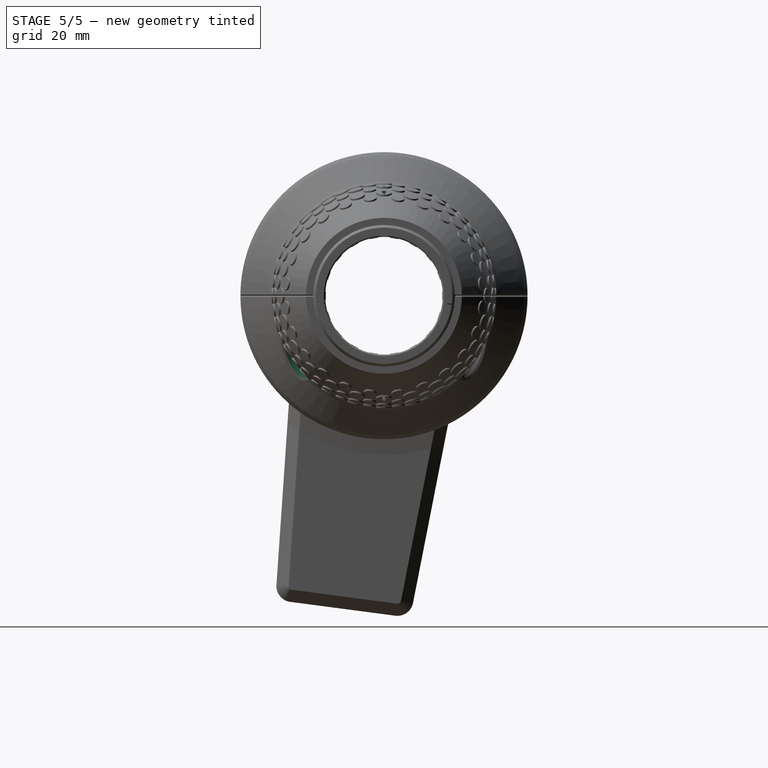
[diagram: stage 5 of 5 — right view after this stage's code; geometry added in this stage tinted green]
FEATURE [Sketcher::SketchObject] Sketch041
  ArcFitTolerance = 0
  AttachmentOffset = pos=(0,0,0) rot=(0,0,1;1.39626rad)
  AttachmentSupport = -> [YZ_Plane001]
  FullyConstrained = true
  MakeInternals = false
  MapMode = 5
  Placement = pos=(0,0,0) rot=(0.705758,0.061746,0.705758;3.01826rad)
  expr: .AttachmentOffset.Rotation.Angle = (<<params>>.positions / 2 - 0.5) * <<params>>.angle_between
  expr: Constraints[22] = <<params>>.track_radius
  sketch-geometry (21):
    g0: Circle [constr] CenterX=0 CenterY=18 CenterZ=0 NormalX=0 NormalY=0 NormalZ=1 AngleXU=0 Radius=2.95
    g1: LineSegment [constr] StartX=-2.95 StartY=19.7032 StartZ=0 EndX=-2.95 EndY=16.2968 EndZ=0
    g2: LineSegment [constr] StartX=-2.95 StartY=16.2968 StartZ=0 EndX=-2.407e-13 EndY=14.5936 EndZ=0
    g3: LineSegment [constr] StartX=-2.407e-13 StartY=14.5936 StartZ=0 EndX=2.95 EndY=16.2968 EndZ=0
    g4: LineSegment [constr] StartX=2.95 StartY=16.2968 StartZ=0 EndX=2.95 EndY=19.7032 EndZ=0
    g5: LineSegment [constr] StartX=2.95 StartY=19.7032 StartZ=0 EndX=-2.407e-13 EndY=21.4064 EndZ=0
    g6: LineSegment [constr] StartX=-2.407e-13 StartY=21.4064 StartZ=0 EndX=-2.95 EndY=19.7032 EndZ=0
    g7: Circle [constr] CenterX=0 CenterY=18 CenterZ=0 NormalX=0 NormalY=0 NormalZ=1 AngleXU=0 Radius=3.40637
    g8: LineSegment StartX=-0.357437 StartY=21.2 StartZ=0 EndX=0.357437 EndY=21.2 EndZ=0
    g9: GeomPoint [constr] X=0 Y=20.95 Z=0
    g10: LineSegment StartX=-2.95 StartY=19.2905 StartZ=0 EndX=-2.59256 EndY=19.9095 EndZ=0
    g11: LineSegment StartX=-2.95 StartY=16.7095 StartZ=0 EndX=-2.59256 EndY=16.0905 EndZ=0
    g12: LineSegment StartX=-0.357437 StartY=14.8 StartZ=0 EndX=0.357437 EndY=14.8 EndZ=0
    g13: LineSegment StartX=2.59256 StartY=16.0905 StartZ=0 EndX=2.95 EndY=16.7095 EndZ=0
    g14: LineSegment StartX=2.95 StartY=19.2905 StartZ=0 EndX=2.59256 EndY=19.9095 EndZ=0
    g15: LineSegment StartX=-2.59256 StartY=19.9095 StartZ=0 EndX=-0.357437 EndY=21.2 EndZ=0
    g16: LineSegment StartX=2.59256 StartY=19.9095 StartZ=0 EndX=0.357437 EndY=21.2 EndZ=0
    g17: LineSegment StartX=2.95 StartY=19.2905 StartZ=0 EndX=2.95 EndY=16.7095 EndZ=0
    g18: LineSegment StartX=0.357437 StartY=14.8 StartZ=0 EndX=2.59256 EndY=16.0905 EndZ=0
    g19: LineSegment StartX=-0.357437 StartY=14.8 StartZ=0 EndX=-2.59256 EndY=16.0905 EndZ=0
    g20: LineSegment StartX=-2.95 StartY=16.7095 StartZ=0 EndX=-2.95 EndY=19.2905 EndZ=0
  constraints (57):
    c: PointOnObject(g0,g-2)
    c: Diameter(g0) = 5.9
    c: Coincident(g1,g2)
    c: Coincident(g2,g3)
    c: Coincident(g3,g4)
    c: Coincident(g4,g5)
    c: Coincident(g5,g6)
    c: Coincident(g6,g1)
    c: Equal(g1, g2-g6) x5
    c: PointOnObject(g1,g7)
    c: PointOnObject(g2,g7)
    c: PointOnObject(g3,g7)
    c: PointOnObject(g4,g7)
    c: PointOnObject(g5,g7)
    c: PointOnObject(g6,g7)
    c: Coincident(g7,g0)
    c: Vertical(g1)
    c: Tangent(g0,g5)
    c: DistanceY(g-1,g0) = 18
    c: PointOnObject(g8,g5)
    c: Horizontal(g8)
    c: PointOnObject(g9,g-2)
    c: PointOnObject(g9,g0)
    c: DistanceY(g9,g8) = 0.25
    c: PointOnObject(g8,g6)
    c: PointOnObject(g10,g1)
    c: PointOnObject(g11,g1)
    c: PointOnObject(g11,g2)
    c: PointOnObject(g12,g2)
    c: PointOnObject(g12,g3)
    c: Horizontal(g12)
    c: PointOnObject(g13,g3)
    c: PointOnObject(g14,g4)
    c: PointOnObject(g14,g5)
    c: Equal(g14,g13)
    c: Equal(g13,g12)
    c: Equal(g12,g11)
    c: Equal(g11,g10)
    c: Equal(g10,g8)
    c: Coincident(g15,g10)
    c: Coincident(g15,g8)
    c: Tangent(g15,g0)
    c: Coincident(g16,g14)
    c: Coincident(g16,g8)
    c: Coincident(g17,g14)
    c: Vertical(g17)
    c: Coincident(g17,g13)
    c: Coincident(g18,g12)
    c: Coincident(g18,g13)
    c: Coincident(g19,g12)
    c: Coincident(g19,g11)
    c: Coincident(g20,g11)
    c: Coincident(g20,g10)
    c: Equal(g16,g15)
    c: Equal(g20,g15)
    c: Equal(g20,g19)
    c: Equal(g18,g19)
FEATURE [Sketcher::SketchObject] Sketch042
  ArcFitTolerance = 0
  AttachmentOffset = pos=(0,0,-2.4) rot=(0,0,1;1.39626rad)
  AttachmentSupport = -> [YZ_Plane001]
  FullyConstrained = true
  MakeInternals = false
  MapMode = 5
  Placement = pos=(-2.4,0,0) rot=(0.705758,0.061746,0.705758;3.01826rad)
  expr: .AttachmentOffset.Rotation.Angle = (<<params>>.positions / 2 - 0.5) * <<params>>.angle_between
  expr: Constraints[2] = <<params>>.track_radius
  sketch-geometry (1):
    g0: Circle CenterX=0 CenterY=18 CenterZ=0 NormalX=0 NormalY=0 NormalZ=1 AngleXU=0 Radius=4
  constraints (3):
    c: PointOnObject(g0,g-2)
    c: Diameter(g0) = 8
    c: DistanceY(g-1,g0) = 18
FEATURE [Sketcher::SketchObject] Sketch043
  ArcFitTolerance = 0
  AttachmentOffset = pos=(0,0,-2.2) rot=(0,0,1;1.39626rad)
  AttachmentSupport = -> [YZ_Plane001]
  FullyConstrained = true
  MakeInternals = false
  MapMode = 5
  Placement = pos=(-2.2,0,0) rot=(0.705758,0.061746,0.705758;3.01826rad)
  expr: .AttachmentOffset.Rotation.Angle = (<<params>>.positions / 2 - 0.5) * <<params>>.angle_between
  expr: Constraints[22] = <<params>>.track_radius
  sketch-geometry (14):
    g0: Circle [constr] CenterX=0 CenterY=18 CenterZ=0 NormalX=0 NormalY=0 NormalZ=1 AngleXU=0 Radius=2.95
    g1: LineSegment [constr] StartX=-2.95 StartY=19.7032 StartZ=0 EndX=-2.95 EndY=16.2968 EndZ=0
    g2: LineSegment [constr] StartX=-2.95 StartY=16.2968 StartZ=0 EndX=4e-16 EndY=14.5936 EndZ=0
    g3: LineSegment [constr] StartX=4e-16 StartY=14.5936 StartZ=0 EndX=2.95 EndY=16.2968 EndZ=0
    g4: LineSegment [constr] StartX=2.95 StartY=16.2968 StartZ=0 EndX=2.95 EndY=19.7032 EndZ=0
    g5: LineSegment [constr] StartX=2.95 StartY=19.7032 StartZ=0 EndX=4e-16 EndY=21.4064 EndZ=0
    g6: LineSegment [constr] StartX=4e-16 StartY=21.4064 StartZ=0 EndX=-2.95 EndY=19.7032 EndZ=0
    g7: Circle [constr] CenterX=0 CenterY=18 CenterZ=0 NormalX=0 NormalY=0 NormalZ=1 AngleXU=0 Radius=3.40637
    g8: GeomPoint [constr] X=0 Y=20.95 Z=0
    g9: Circle [constr] CenterX=0 CenterY=18 CenterZ=0 NormalX=0 NormalY=0 NormalZ=1 AngleXU=0 Radius=4
    g10: LineSegment StartX=-2.95 StartY=15.2986 StartZ=0 EndX=-2.95 EndY=20.7014 EndZ=0
    g11: LineSegment StartX=2.95 StartY=15.2986 StartZ=0 EndX=2.95 EndY=20.7014 EndZ=0
    g12: ArcOfCircle CenterX=0 CenterY=18 CenterZ=0 NormalX=0 NormalY=0 NormalZ=1 AngleXU=0 Radius=4 StartAngle=0.741435 EndAngle=2.40016
    g13: ArcOfCircle CenterX=0 CenterY=18 CenterZ=0 NormalX=0 NormalY=0 NormalZ=1 AngleXU=0 Radius=4 StartAngle=3.88303 EndAngle=5.54175
  constraints (35):
    c: PointOnObject(g0,g-2)
    c: Diameter(g0) = 5.9
    c: Coincident(g1,g2)
    c: Coincident(g2,g3)
    c: Coincident(g3,g4)
    c: Coincident(g4,g5)
    c: Coincident(g5,g6)
    c: Coincident(g6,g1)
    c: Equal(g1, g2-g6) x5
    c: PointOnObject(g1,g7)
    c: PointOnObject(g2,g7)
    c: PointOnObject(g3,g7)
    c: PointOnObject(g4,g7)
    c: PointOnObject(g5,g7)
    c: PointOnObject(g6,g7)
    c: Coincident(g7,g0)
    c: Vertical(g1)
    c: Tangent(g0,g5)
    c: DistanceY(g-1,g0) = 18
    c: PointOnObject(g8,g-2)
    c: PointOnObject(g8,g0)
    c: Coincident(g9,g0)
    c: Diameter(g9) = 8
    c: PointOnObject(g10,g9)
    c: Vertical(g10)
    c: Tangent(g10,g0)
    c: PointOnObject(g10,g9)
    c: Vertical(g11)
    c: Tangent(g11,g0)
    c: Coincident(g12,g0)
    c: Coincident(g12,g10)
    c: Coincident(g12,g11)
    c: Coincident(g13,g12)
    c: Coincident(g11,g13)
    c: Coincident(g10,g13)
FEATURE [Sketcher::SketchObject] Sketch044
  ArcFitTolerance = 0
  AttachmentOffset = pos=(0,0,-2) rot=(0,0,1;1.39626rad)
  AttachmentSupport = -> [YZ_Plane001]
  FullyConstrained = true
  MakeInternals = false
  MapMode = 5
  Placement = pos=(-2,0,0) rot=(0.705758,0.061746,0.705758;3.01826rad)
  expr: .AttachmentOffset.Rotation.Angle = (<<params>>.positions / 2 - 0.5) * <<params>>.angle_between
  expr: Constraints[22] = <<params>>.track_radius
  sketch-geometry (18):
    g0: Circle [constr] CenterX=0 CenterY=18 CenterZ=0 NormalX=0 NormalY=0 NormalZ=1 AngleXU=0 Radius=2.95
    g1: LineSegment [constr] StartX=-2.95 StartY=19.7032 StartZ=0 EndX=-2.95 EndY=16.2968 EndZ=0
    g2: LineSegment [constr] StartX=-2.95 StartY=16.2968 StartZ=0 EndX=0 EndY=14.5936 EndZ=0
    g3: LineSegment [constr] StartX=-2e-16 StartY=14.5936 StartZ=0 EndX=2.95 EndY=16.2968 EndZ=0
    g4: LineSegment [constr] StartX=2.95 StartY=16.2968 StartZ=0 EndX=2.95 EndY=19.7032 EndZ=0
    g5: LineSegment [constr] StartX=2.95 StartY=19.7032 StartZ=0 EndX=4e-16 EndY=21.4064 EndZ=0
    g6: LineSegment [constr] StartX=4e-16 StartY=21.4064 StartZ=0 EndX=-2.95 EndY=19.7032 EndZ=0
    g7: Circle [constr] CenterX=0 CenterY=18 CenterZ=0 NormalX=0 NormalY=0 NormalZ=1 AngleXU=0 Radius=3.40637
    g8: GeomPoint [constr] X=0 Y=20.95 Z=0
    g9: Circle [constr] CenterX=0 CenterY=18 CenterZ=0 NormalX=0 NormalY=0 NormalZ=1 AngleXU=0 Radius=4
    g10: LineSegment StartX=-2.95 StartY=15.2986 StartZ=0 EndX=-2.95 EndY=20.7014 EndZ=0
    g11: LineSegment StartX=2.95 StartY=15.2986 StartZ=0 EndX=2.95 EndY=20.7014 EndZ=0
    g12: LineSegment StartX=-2.4 StartY=21.2 StartZ=0 EndX=2.4 EndY=21.2 EndZ=0
    g13: ArcOfCircle CenterX=0 CenterY=18 CenterZ=0 NormalX=0 NormalY=0 NormalZ=1 AngleXU=0 Radius=4 StartAngle=2.2143 EndAngle=2.40016
    g14: ArcOfCircle CenterX=0 CenterY=18 CenterZ=0 NormalX=0 NormalY=0 NormalZ=1 AngleXU=0 Radius=4 StartAngle=0.741435 EndAngle=0.927295
    g15: ArcOfCircle CenterX=0 CenterY=18 CenterZ=0 NormalX=0 NormalY=0 NormalZ=1 AngleXU=0 Radius=4 StartAngle=3.88303 EndAngle=4.06889
    g16: ArcOfCircle CenterX=0 CenterY=18 CenterZ=0 NormalX=0 NormalY=0 NormalZ=1 AngleXU=0 Radius=4 StartAngle=5.35589 EndAngle=5.54175
    g17: LineSegment StartX=-2.4 StartY=14.8 StartZ=0 EndX=2.4 EndY=14.8 EndZ=0
  constraints (47):
    c: PointOnObject(g0,g-2)
    c: Diameter(g0) = 5.9
    c: Coincident(g1,g2)
    c: Coincident(g2,g3)
    c: Coincident(g3,g4)
    c: Coincident(g4,g5)
    c: Coincident(g5,g6)
    c: Coincident(g6,g1)
    c: Equal(g1, g2-g6) x5
    c: PointOnObject(g1,g7)
    c: PointOnObject(g2,g7)
    c: PointOnObject(g3,g7)
    c: PointOnObject(g4,g7)
    c: PointOnObject(g5,g7)
    c: PointOnObject(g6,g7)
    c: Coincident(g7,g0)
    c: Vertical(g1)
    c: Tangent(g0,g5)
    c: DistanceY(g-1,g0) = 18
    c: PointOnObject(g8,g-2)
    c: PointOnObject(g8,g0)
    c: Coincident(g9,g0)
    c: Diameter(g9) = 8
    c: PointOnObject(g10,g9)
    c: Vertical(g10)
    c: Tangent(g10,g0)
    c: Vertical(g11)
    c: Tangent(g11,g0)
    c: Horizontal(g12)
    c: DistanceY(g8,g12) = 0.25
    c: Coincident(g13,g10)
    c: Coincident(g13,g12)
    c: Coincident(g14,g12)
    c: Coincident(g14,g11)
    c: Coincident(g15,g10)
    c: Coincident(g16,g11)
    c: Coincident(g17,g15)
    c: Coincident(g17,g16)
    c: Equal(g17,g12)
    c: Horizontal(g17)
    c: PointOnObject(g16,g9)
    c: PointOnObject(g12,g9)
    c: PointOnObject(g12,g9)
    c: Coincident(g0,g13)
    c: Coincident(g0,g14)
    c: Coincident(g0,g15)
    c: Coincident(g0,g16)
FEATURE [Sketcher::SketchObject] Sketch046
  ArcFitTolerance = 0
  AttachmentOffset = pos=(0,0,24) rot=(0,0,1;0rad)
  AttachmentSupport = -> [YZ_Plane001]
  FullyConstrained = true
  MakeInternals = false
  MapMode = 5
  Placement = pos=(24,0,0) rot=(0.57735,0.57735,0.57735;2.0944rad)
  expr: .AttachmentOffset.Base.z = <<params>>.ball_size + 6 mm + 14 mm
  expr: Constraints[0] = <<params>>.grip_bar_diameter + 0.5 mm
  sketch-geometry (12):
    g0: ArcOfCircle [constr] CenterX=-7e-16 CenterY=0 CenterZ=0 NormalX=0 NormalY=0 NormalZ=1 AngleXU=0 Radius=11.35 StartAngle=1.47312 EndAngle=1.66847
    g1: ArcOfCircle [constr] CenterX=-1.18437 CenterY=12.0871 CenterZ=0 NormalX=0 NormalY=0 NormalZ=1 AngleXU=0 Radius=0.795036 StartAngle=4.81006 EndAngle=5.72646
    g2: ArcOfCircle CenterX=0 CenterY=11.35 CenterZ=0 NormalX=0 NormalY=0 NormalZ=1 AngleXU=0 Radius=0.6 StartAngle=0.556725 EndAngle=2.58487
    g3: ArcOfCircle [constr] CenterX=1.18437 CenterY=12.0871 CenterZ=0 NormalX=0 NormalY=0 NormalZ=1 AngleXU=0 Radius=0.795036 StartAngle=3.69832 EndAngle=4.61471
    g4: GeomPoint [constr] X=0 Y=11.95 Z=0
    g5: LineSegment [constr] StartX=-0.509394 StartY=11.667 StartZ=0 EndX=-8e-16 EndY=0 EndZ=0
    g6: LineSegment [constr] StartX=-7e-16 StartY=0 StartZ=0 EndX=0.509394 EndY=11.667 EndZ=0
    g7: LineSegment StartX=-0.509394 StartY=11.667 StartZ=0 EndX=-0.720989 EndY=11.3271 EndZ=0
    g8: LineSegment StartX=0.509394 StartY=11.667 StartZ=0 EndX=0.720989 EndY=11.3271 EndZ=0
    g9: ArcOfCircle CenterX=-7e-16 CenterY=0 CenterZ=0 NormalX=0 NormalY=0 NormalZ=1 AngleXU=0 Radius=11.35 StartAngle=1.50723 EndAngle=1.63436
    g10: LineSegment [constr] StartX=-0.720989 StartY=11.3271 StartZ=0 EndX=-9e-16 EndY=0 EndZ=0
    g11: LineSegment [constr] StartX=-7e-16 StartY=0 StartZ=0 EndX=0.720989 EndY=11.3271 EndZ=0
  constraints (28):
    c: Diameter(g0) = 22.7
    c: Symmetric(g0,g0,g-2)
    c: Tangent(g3,g0) = 1.5708
    c: Tangent(g2,g1) = 1.5708
    c: Tangent(g1,g0) = 1.5708
    c: Tangent(g2,g3) = 1.5708
    c: PointOnObject(g2,g-2)
    c: PointOnObject(g4,g2)
    c: PointOnObject(g4,g-2)
    c: PointOnObject(g2,g0)
    c: Coincident(g5,g1)
    c: Coincident(g5,g0)
    c: Coincident(g6,g0)
    c: Coincident(g6,g2)
    c: DistanceY(g2,g4) = 0.6
    c: Tangent(g7,g1) = 1.5708
    c: PointOnObject(g7,g0)
    c: Tangent(g8,g2) = 1.5708
    c: Coincident(g9,g7)
    c: Coincident(g9,g8)
    c: Coincident(g9,g0)
    c: PointOnObject(g0,g-1)
    c: Coincident(g10,g7)
    c: Coincident(g10,g0)
    c: Coincident(g11,g0)
    c: Coincident(g11,g8)
    c: Angle(g11,g10) = 0.127132  'angle'
    c: Angle(g6,g5) = 0.0872665
FEATURE [Part::Cylinder] Cylinder001  label="magnet"
  Angle = 360
  AttacherType = Attacher::AttachEngine3D
  FirstAngle = 0
  Height = 2
  Placement = pos=(-2,0,18) rot=(0,1,0;1.5708rad)
  Radius = 3
  SecondAngle = 0
FEATURE [Part::Sphere] Sphere  label="bearing"
  Angle1 = -90
  Angle2 = 90
  Angle3 = 360
  AttacherType = Attacher::AttachEngine3D
  Placement = pos=(2,0,18) rot=(0,0,1;0rad)
  Radius = 2
  expr: .Placement.Base.x = <<params>>.ball_size / 2
  expr: .Placement.Base.z = <<params>>.track_radius
  expr: Radius = <<params>>.ball_size / 2
FEATURE [Part::Sphere] Sphere001  label="bearing2"
  Angle1 = -90
  Angle2 = 90
  Angle3 = 360
  AttacherType = Attacher::AttachEngine3D
  Placement = pos=(6,0,18) rot=(0,0,1;0rad)
  Radius = 2
  expr: .Placement.Base.x = <<params>>.ball_size * 1.5
  expr: .Placement.Base.z = <<params>>.track_radius
  expr: Radius = <<params>>.ball_size / 2
FEATURE [Part::Cylinder] Cylinder002  label="magnet2"
  Angle = 360
  AttacherType = Attacher::AttachEngine3D
  FirstAngle = 0
  Height = 2
  Placement = pos=(8,0,18) rot=(0,1,0;1.5708rad)
  Radius = 3
  SecondAngle = 0
FEATURE [Part::Cylinder] Cylinder003  label="spring001"
  Angle = 360
  AttacherType = Attacher::AttachEngine3D
  FirstAngle = 0
  Height = 12
  Placement = pos=(11.65,0,18) rot=(0,1,0;1.5708rad)
  Radius = 3
  SecondAngle = 0
  expr: .Placement.Base.x = <<params>>.ball_size + 6 mm + 1.65 mm
  expr: .Placement.Base.z = <<params>>.track_radius
FEATURE [Part::FeaturePython] Screw  label="M3x6-Screw"  # WARN: FeaturePython — macro-defined, semantics opaque (R4)
  Diameter = 1
  Invert = false
  LeftHanded = false
  Length = 0
  LengthCustom = 6
  MatchOuter = false
  OffsetAngle = 0
  Placement = pos=(9,0,18) rot=(0,1,0;1.5708rad)
  Thread = true
  Type = 84
  expr: .Placement.Base.x = 5 mm + <<params>>.ball_size
  expr: .Placement.Base.z = <<params>>.track_radius
FEATURE [Sketcher::SketchObject] Sketch060
  ArcFitTolerance = 0
  AttachmentOffset = pos=(0,0,21) rot=(0,0,1;0rad)
  AttachmentSupport = -> [XY_Plane011]
  FullyConstrained = true
  MakeInternals = false
  MapMode = 5
  Placement = pos=(0,0,-21) rot=(0,1,0;3.14159rad)
  expr: Constraints[3] = <<params>>.track_radius + 2 mm
  expr: Constraints[8] = <<params>>.track_radius - 1.25 mm
  sketch-geometry (3):
    g0: Circle CenterX=-28.5 CenterY=16.75 CenterZ=0 NormalX=0 NormalY=0 NormalZ=1 AngleXU=0 Radius=3
    g1: Circle CenterX=-13 CenterY=20 CenterZ=0 NormalX=0 NormalY=0 NormalZ=1 AngleXU=0 Radius=3
    g2: LineSegment [constr] StartX=-13 StartY=20 StartZ=0 EndX=0 EndY=20 EndZ=0
  constraints (9):
    c: Coincident(g2,g1)
    c: PointOnObject(g2,g-2)
    c: Horizontal(g2)
    c: DistanceY(g-1,g2) = 20
    c: DistanceX(g2,g2) = 13
    c: Equal(g1,g0)
    c: Diameter(g1) = 6
    c: DistanceX(g0,g2) = 28.5
    c: DistanceY(g-1,g0) = 16.75
FEATURE [Sketcher::SketchObject] Sketch061
  ArcFitTolerance = 0
  AttachmentSupport = -> [XY_Plane011]
  FullyConstrained = true
  MakeInternals = false
  MapMode = 5
  Placement = pos=(0,0,0) rot=(0,1,0;3.14159rad)
  expr: Constraints[3] = <<params>>.track_radius + 2 mm
  expr: Constraints[8] = <<params>>.track_radius - 1.25 mm
  sketch-geometry (3):
    g0: Circle CenterX=-28.5 CenterY=16.75 CenterZ=0 NormalX=0 NormalY=0 NormalZ=1 AngleXU=0 Radius=1.75
    g1: Circle CenterX=-13 CenterY=20 CenterZ=0 NormalX=0 NormalY=0 NormalZ=1 AngleXU=0 Radius=1.75
    g2: LineSegment [constr] StartX=-13 StartY=20 StartZ=0 EndX=0 EndY=20 EndZ=0
  constraints (9):
    c: Coincident(g2,g1)
    c: PointOnObject(g2,g-2)
    c: Horizontal(g2)
    c: DistanceY(g-1,g2) = 20
    c: Equal(g1,g0)
    c: Diameter(g1) = 3.5
    c: DistanceX(g1,g2) = 13
    c: DistanceX(g0,g2) = 28.5
    c: DistanceY(g-1,g0) = 16.75
FEATURE [Part::FeaturePython] Screw001  label="M3x6-Screw001"  # WARN: FeaturePython — macro-defined, semantics opaque (R4)
  Diameter = 1
  Invert = false
  LeftHanded = false
  Length = 0
  LengthCustom = 6
  MatchOuter = false
  OffsetAngle = 0
  Placement = pos=(-3.65,0,18) rot=(0,1,0;1.5708rad)
  Thread = true
  Type = 84
  expr: .Placement.Base.z = <<params>>.track_radius
FEATURE [Part::Feature] Part__Feature  label="EMF Shield"
  shape: bbox 9.899 x 12.1 x 0.2 mm, 8 faces (baked)
FEATURE [Part::Feature] Part__Feature001  label="EMF Shield001"
  shape: bbox 10.3 x 12.5 x 1.5 mm, 27 faces (baked)
FEATURE [App::Part] EMF_Shield  label="EMF Shield002"
  Group = -> [Part__Feature,Part__Feature001]
  Origin = -> Origin013
FEATURE [Part::Feature] Part__Feature002  label="Pins 0-6"
  shape: bbox 1.524 x 2.032 x 0.08 mm, 25 faces (baked)
FEATURE [Part::Feature] Part__Feature003  label="Pins 0-007"
  shape: bbox 1.524 x 2.032 x 0.08 mm, 25 faces (baked)
FEATURE [Part::Feature] Part__Feature004  label="Pins 0-008"
  shape: bbox 1.524 x 2.032 x 0.08 mm, 25 faces (baked)
FEATURE [Part::Feature] Part__Feature005  label="Pins 0-009"
  shape: bbox 1.524 x 2.032 x 0.08 mm, 25 faces (baked)
FEATURE [Part::Feature] Part__Feature006  label="Pins 0-010"
  shape: bbox 1.524 x 2.032 x 0.08 mm, 25 faces (baked)
FEATURE [Part::Feature] Part__Feature007  label="Pins 0-011"
  shape: bbox 1.524 x 2.032 x 0.08 mm, 25 faces (baked)
FEATURE [Part::Feature] Part__Feature008  label="Pins 0-012"
  shape: bbox 1.524 x 2.032 x 0.08 mm, 25 faces (baked)
FEATURE [Part::Feature] Part__Feature009  label="Pins 0-013"
  shape: bbox 1.524 x 2.032 x 0.08 mm, 25 faces (baked)
FEATURE [Part::Feature] Part__Feature010  label="Pins 0-014"
  shape: bbox 1.524 x 2.032 x 0.08 mm, 25 faces (baked)
FEATURE [Part::Feature] Part__Feature011  label="Pins 0-015"
  shape: bbox 1.524 x 2.032 x 0.08 mm, 25 faces (baked)
FEATURE [Part::Feature] Part__Feature012  label="Pins 0-016"
  shape: bbox 1.524 x 2.032 x 0.08 mm, 25 faces (baked)
FEATURE [Part::Feature] Part__Feature013  label="Pins 0-017"
  shape: bbox 1.524 x 2.032 x 0.08 mm, 25 faces (baked)
FEATURE [Part::Feature] Part__Feature014  label="Pins 0-018"
  shape: bbox 1.524 x 2.032 x 0.08 mm, 25 faces (baked)
FEATURE [Part::Feature] Part__Feature015  label="Pins 0-019"
  shape: bbox 1.524 x 2.032 x 0.08 mm, 25 faces (baked)
FEATURE [App::Part] Pins_0_6  label="Pins 0-020"
  Group = -> [Part__Feature002,Part__Feature003,Part__Feature004,Part__Feature005,Part__Feature006,Part__Feature007,Part__Feature008,Part__Feature009,Part__Feature010,Part__Feature011,Part__Feature012,Part__Feature013,Part__Feature014,Part__Feature015]
  Origin = -> Origin014
FEATURE [Part::Feature] Part__Feature016  label="Pins 7-13"
  shape: bbox 1.524 x 2.032 x 0.08 mm, 25 faces (baked)
FEATURE [Part::Feature] Part__Feature017  label="Pins 7-014"
  shape: bbox 1.524 x 2.032 x 0.08 mm, 25 faces (baked)
FEATURE [Part::Feature] Part__Feature018  label="Pins 7-015"
  shape: bbox 1.524 x 2.032 x 0.08 mm, 25 faces (baked)
FEATURE [Part::Feature] Part__Feature019  label="Pins 7-016"
  shape: bbox 1.524 x 2.032 x 0.08 mm, 25 faces (baked)
FEATURE [Part::Feature] Part__Feature020  label="Pins 7-017"
  shape: bbox 1.524 x 2.032 x 0.08 mm, 25 faces (baked)
FEATURE [Part::Feature] Part__Feature021  label="Pins 7-018"
  shape: bbox 1.524 x 2.032 x 0.08 mm, 25 faces (baked)
FEATURE [Part::Feature] Part__Feature022  label="Pins 7-019"
  shape: bbox 1.524 x 2.032 x 0.08 mm, 25 faces (baked)
FEATURE [Part::Feature] Part__Feature023  label="Pins 7-020"
  shape: bbox 1.524 x 2.032 x 0.1 mm, 25 faces (baked)
FEATURE [Part::Feature] Part__Feature024  label="Pins 7-021"
  shape: bbox 1.524 x 2.032 x 0.1 mm, 25 faces (baked)
FEATURE [Part::Feature] Part__Feature025  label="Pins 7-022"
  shape: bbox 1.524 x 2.032 x 0.1 mm, 25 faces (baked)
FEATURE [Part::Feature] Part__Feature026  label="Pins 7-023"
  shape: bbox 1.524 x 2.032 x 0.1 mm, 25 faces (baked)
FEATURE [Part::Feature] Part__Feature027  label="Pins 7-024"
  shape: bbox 1.524 x 2.032 x 0.1 mm, 25 faces (baked)
FEATURE [Part::Feature] Part__Feature028  label="Pins 7-025"
  shape: bbox 1.524 x 2.032 x 0.1 mm, 25 faces (baked)
FEATURE [Part::Feature] Part__Feature029  label="Pins 7-026"
  shape: bbox 1.524 x 2.032 x 0.1 mm, 25 faces (baked)
FEATURE [App::Part] Pins_7_13  label="Pins 7-027"
  Group = -> [Part__Feature016,Part__Feature017,Part__Feature018,Part__Feature019,Part__Feature020,Part__Feature021,Part__Feature022,Part__Feature023,Part__Feature024,Part__Feature025,Part__Feature026,Part__Feature027,Part__Feature028,Part__Feature029]
  Origin = -> Origin015
FEATURE [Part::Feature] Part__Feature030  label="BAT pads"
  shape: bbox 0.9144 x 1.93 x 0.2 mm, 10 faces (baked)
FEATURE [Part::Feature] Part__Feature031  label="BAT pads001"
  shape: bbox 0.9144 x 1.93 x 0.2 mm, 10 faces (baked)
FEATURE [App::Part] BAT_pads  label="BAT pads002"
  Group = -> [Part__Feature030,Part__Feature031]
  Origin = -> Origin016
FEATURE [Part::Feature] Part__Feature032  label="Unpopulated 6 pin pad"
  shape: bbox 0.4369 x 0.9449 x 0.1 mm, 6 faces (baked)
FEATURE [Part::Feature] Part__Feature033  label="Unpopulated 6 pin pad001"
  shape: bbox 0.4369 x 0.9449 x 0.1 mm, 6 faces (baked)
FEATURE [Part::Feature] Part__Feature034  label="Unpopulated 6 pin pad002"
  shape: bbox 0.4369 x 0.9449 x 0.1 mm, 6 faces (baked)
FEATURE [Part::Feature] Part__Feature035  label="Unpopulated 6 pin pad003"
  shape: bbox 0.4369 x 0.9449 x 0.1 mm, 6 faces (baked)
FEATURE [Part::Feature] Part__Feature036  label="Unpopulated 6 pin pad004"
  shape: bbox 0.4369 x 0.9449 x 0.1 mm, 6 faces (baked)
FEATURE [Part::Feature] Part__Feature037  label="Unpopulated 6 pin pad005"
  shape: bbox 0.4369 x 0.9449 x 0.1 mm, 6 faces (baked)
FEATURE [App::Part] Unpopulated_6_pin_pad  label="Unpopulated 6 pin pad006"
  Group = -> [Part__Feature032,Part__Feature033,Part__Feature034,Part__Feature035,Part__Feature036,Part__Feature037]
  Origin = -> Origin017
FEATURE [Part::Feature] Part__Feature038  label="JTAG like thing probably"
  shape: bbox 1.219 x 1.219 x 0.2 mm, 3 faces (baked)
FEATURE [Part::Feature] Part__Feature039  label="JTAG like thing probably001"
  shape: bbox 1.219 x 1.219 x 0.2 mm, 3 faces (baked)
FEATURE [Part::Feature] Part__Feature040  label="JTAG like thing probably002"
  shape: bbox 1.219 x 1.219 x 0.2 mm, 3 faces (baked)
FEATURE [Part::Feature] Part__Feature041  label="JTAG like thing probably003"
  shape: bbox 1.219 x 1.219 x 0.2 mm, 3 faces (baked)
FEATURE [App::Part] JTAG_like_thing_probably  label="JTAG like thing probably004"
  Group = -> [Part__Feature038,Part__Feature039,Part__Feature040,Part__Feature041]
  Origin = -> Origin018
FEATURE [Part::Feature] Part__Feature042  label="NFC pads"
  shape: bbox 2.286 x 1.27 x 0.2 mm, 6 faces (baked)
FEATURE [Part::Feature] Part__Feature043  label="NFC pads001"
  shape: bbox 2.286 x 1.27 x 0.2 mm, 6 faces (baked)
FEATURE [App::Part] NFC_pads  label="NFC pads002"
  Group = -> [Part__Feature042,Part__Feature043]
  Origin = -> Origin019
FEATURE [Part::Feature] Part__Feature044  label="Board:1"
  shape: bbox 20.96 x 17.78 x 0.905 mm, 794 faces (baked)
FEATURE [Part::Feature] Part__Feature045  label="R0201:R1"
  shape: bbox 0.61 x 0.304 x 0.1 mm, 6 faces (baked)
FEATURE [Part::Feature] Part__Feature046  label="R0201:R2"
  shape: bbox 0.61 x 0.304 x 0.1 mm, 6 faces (baked)
FEATURE [Part::Feature] Part__Feature047  label="R0201:R22"
  shape: bbox 0.304 x 0.61 x 0.1 mm, 6 faces (baked)
FEATURE [Part::Feature] Part__Feature048  label="R0201:R31"
  shape: bbox 0.61 x 0.304 x 0.1 mm, 6 faces (baked)
FEATURE [Part::Feature] Part__Feature049  label="R0201:R32"
  shape: bbox 0.304 x 0.61 x 0.1 mm, 6 faces (baked)
FEATURE [Part::Feature] Part__Feature050  label="R0201:R9"
  shape: bbox 0.304 x 0.61 x 0.1 mm, 6 faces (baked)
FEATURE [Part::Feature] Part__Feature051  label="R0201:R3"
  shape: bbox 0.304 x 0.61 x 0.1 mm, 6 faces (baked)
FEATURE [Part::Feature] Part__Feature052  label="R0201:R4"
  shape: bbox 0.304 x 0.61 x 0.1 mm, 6 faces (baked)
FEATURE [Part::Feature] Part__Feature053  label="R0201:R5"
  shape: bbox 0.304 x 0.61 x 0.1 mm, 6 faces (baked)
FEATURE [Part::Feature] Part__Feature054  label="R0201:R6"
  shape: bbox 0.61 x 0.304 x 0.1 mm, 6 faces (baked)
FEATURE [Part::Feature] Part__Feature055  label="R0201:R7"
  shape: bbox 0.304 x 0.61 x 0.1 mm, 6 faces (baked)
FEATURE [Part::Feature] Part__Feature056  label="R0201:R8"
  shape: bbox 0.61 x 0.304 x 0.1 mm, 6 faces (baked)
FEATURE [Part::Feature] Part__Feature057  label="R0201:R10"
  shape: bbox 0.61 x 0.304 x 0.1 mm, 6 faces (baked)
FEATURE [Part::Feature] Part__Feature058  label="F0603:F1"
  shape: bbox 1.05 x 0.58 x 0.1 mm, 6 faces (baked)
FEATURE [Part::Feature] Part__Feature059  label="C0201:C23"
  shape: bbox 0.304 x 0.61 x 0.1 mm, 6 faces (baked)
FEATURE [Part::Feature] Part__Feature060  label="C0201:C39"
  shape: bbox 0.304 x 0.61 x 0.1 mm, 6 faces (baked)
FEATURE [Part::Feature] Part__Feature061  label="C0201:C40"
  shape: bbox 0.304 x 0.61 x 0.1 mm, 6 faces (baked)
FEATURE [Part::Feature] Part__Feature062  label="C0201:C41"
  shape: bbox 0.304 x 0.61 x 0.1 mm, 6 faces (baked)
FEATURE [Part::Feature] Part__Feature063  label="C0201:C42"
  shape: bbox 0.304 x 0.61 x 0.1 mm, 6 faces (baked)
FEATURE [Part::Feature] Part__Feature064  label="C0201:C43"
  shape: bbox 0.304 x 0.61 x 0.1 mm, 6 faces (baked)
FEATURE [Part::Feature] Part__Feature065  label="C0201:C44"
  shape: bbox 0.304 x 0.61 x 0.1 mm, 6 faces (baked)
FEATURE [Part::Feature] Part__Feature066  label="C0201:C45"
  shape: bbox 0.304 x 0.61 x 0.1 mm, 6 faces (baked)
FEATURE [Part::Feature] Part__Feature067  label="C0201:C48"
  shape: bbox 0.304 x 0.61 x 0.1 mm, 6 faces (baked)
FEATURE [Part::Feature] Part__Feature068  label="C0201:C50"
  shape: bbox 0.304 x 0.61 x 0.1 mm, 6 faces (baked)
FEATURE [Part::Feature] Part__Feature069  label="C0201:C53"
  shape: bbox 0.304 x 0.61 x 0.1 mm, 6 faces (baked)
FEATURE [Part::Feature] Part__Feature070  label="C0201:C54"
  shape: bbox 0.304 x 0.61 x 0.1 mm, 6 faces (baked)
FEATURE [Part::Feature] Part__Feature071  label="C0201:C4"
  shape: bbox 0.304 x 0.61 x 0.1 mm, 6 faces (baked)
FEATURE [Part::Feature] Part__Feature072  label="C0201:C1"
  shape: bbox 0.304 x 0.61 x 0.1 mm, 6 faces (baked)
FEATURE [Part::Feature] Part__Feature073  label="C0201:C2"
  shape: bbox 0.61 x 0.304 x 0.1 mm, 6 faces (baked)
FEATURE [Part::Feature] Part__Feature074  label="C0201:C3"
  shape: bbox 0.61 x 0.304 x 0.1 mm, 6 faces (baked)
FEATURE [Part::Feature] Part__Feature075  label="C0201:C5"
  shape: bbox 0.304 x 0.61 x 0.1 mm, 6 faces (baked)
FEATURE [Part::Feature] Part__Feature076  label="C0201:C6"
  shape: bbox 0.61 x 0.304 x 0.1 mm, 6 faces (baked)
FEATURE [Part::Feature] Part__Feature077  label="C0201:C7"
  shape: bbox 0.61 x 0.304 x 0.1 mm, 6 faces (baked)
FEATURE [Part::Feature] Part__Feature078  label="C0201:C8"
  shape: bbox 0.304 x 0.61 x 0.1 mm, 6 faces (baked)
FEATURE [Part::Feature] Part__Feature079  label="C0201:C9"
  shape: bbox 0.304 x 0.61 x 0.1 mm, 6 faces (baked)
FEATURE [Part::Feature] Part__Feature080  label="C0201:C10"
  shape: bbox 0.304 x 0.61 x 0.1 mm, 6 faces (baked)
FEATURE [Part::Feature] Part__Feature081  label="C0201:C11"
  shape: bbox 0.61 x 0.304 x 0.1 mm, 6 faces (baked)
FEATURE [Part::Feature] Part__Feature082  label="C0201:C12"
  shape: bbox 0.61 x 0.304 x 0.1 mm, 6 faces (baked)
FEATURE [Part::Feature] Part__Feature083  label="C0201:C13"
  shape: bbox 0.304 x 0.61 x 0.1 mm, 6 faces (baked)
FEATURE [Part::Feature] Part__Feature084  label="C0201:C14"
  shape: bbox 0.304 x 0.61 x 0.1 mm, 6 faces (baked)
FEATURE [Part::Feature] Part__Feature085  label="C0201:C49"
  shape: bbox 0.61 x 0.304 x 0.1 mm, 6 faces (baked)
FEATURE [Part::Feature] Part__Feature086  label="C0201:C15"
  shape: bbox 0.61 x 0.304 x 0.1 mm, 6 faces (baked)
FEATURE [Part::Feature] Part__Feature087  label="R0201:R21"
  shape: bbox 0.304 x 0.61 x 0.1 mm, 6 faces (baked)
FEATURE [Part::Feature] Part__Feature088  label="LED-0402:CHG"
  shape: bbox 0.636 x 1.27 x 0.1 mm, 6 faces (baked)
FEATURE [Part::Feature] Part__Feature089  label="QFN32G-0.5-5X5MM:U4"
  shape: bbox 5.588 x 5.588 x 0.1 mm, 6 faces (baked)
FEATURE [Part::Feature] Part__Feature090  label="X4-SMD-2.0X1.6X0.5MM:X4"
  shape: bbox 2.206 x 0.883 x 0.1 mm, 6 faces (baked)
FEATURE [Part::Feature] Part__Feature091  label="L0201:L1"
  shape: bbox 0.61 x 0.304 x 0.1 mm, 6 faces (baked)
FEATURE [Part::Feature] Part__Feature092  label="L0201:L3"
  shape: bbox 0.61 x 0.304 x 0.1 mm, 6 faces (baked)
FEATURE [Part::Feature] Part__Feature093  label="PMOS_1.0*0.6*0.35MM:Q1"
  shape: bbox 0.6 x 1 x 0.1 mm, 6 faces (baked)
FEATURE [Part::Feature] Part__Feature094  label="SOD-523:D1"
  shape: bbox 1.2 x 0.8 x 0.1 mm, 6 faces (baked)
FEATURE [Part::Feature] Part__Feature095  label="X2-SMD-1.6X1.0X0.5MM:X2"
  shape: bbox 1 x 0.33 x 0.1 mm, 6 faces (baked)
FEATURE [Part::Feature] Part__Feature096  label="SOT-25:U2"
  shape: bbox 3 x 2.9 x 0.1 mm, 6 faces (baked)
FEATURE [Part::Feature] Part__Feature097  label="SOT-25:U1"
  shape: bbox 3 x 2.9 x 0.1 mm, 6 faces (baked)
FEATURE [App::Part] PCB_Component_1  label="PCB Component:1"
  Group = -> [Part__Feature044,Part__Feature045,Part__Feature046,Part__Feature047,Part__Feature048,Part__Feature049,Part__Feature050,Part__Feature051,Part__Feature052,Part__Feature053,Part__Feature054,Part__Feature055,Part__Feature056,Part__Feature057,Part__Feature058,Part__Feature059,Part__Feature060,Part__Feature061,Part__Feature062,Part__Feature063,Part__Feature064,Part__Feature065,Part__Feature066,+31 more]
  Origin = -> Origin020
FEATURE [App::Part] Board___tiny_components  label="Board & tiny components"
  Group = -> [PCB_Component_1]
  Origin = -> Origin021
FEATURE [Part::Feature] Part__Feature098  label="COMPOUND"
  shape: bbox 7 x 10.4 x 3.564 mm, 54 faces (baked)
FEATURE [Part::Feature] Part__Feature099  label="COMPOUND001"
  shape: bbox 0.635 x 1.398 x 0.5 mm, 10 faces (baked)
FEATURE [Part::Feature] Part__Feature100  label="COMPOUND002"
  shape: bbox 2.601 x 1.6 x 0.45 mm, 9 faces (baked)
FEATURE [Part::Feature] Part__Feature101  label="COMPOUND003"
  shape: bbox 1.6 x 3.2 x 0.5 mm, 6 faces (baked)
FEATURE [Part::Feature] Part__Feature102  label="COMPOUND004"
  shape: bbox 1.001 x 1.001 x 0.5 mm, 7 faces (baked)
FEATURE [App::Part] COMPOUND  label="COMPOUND005"
  Group = -> [Part__Feature098,Part__Feature099,Part__Feature100,Part__Feature101,Part__Feature102]
  Origin = -> Origin022
FEATURE [App::Part] Seeed_Studio_XIAO_nRF52840  label="Seeed Studio XIAO nRF52840"
  Group = -> [EMF_Shield,Pins_0_6,Pins_7_13,BAT_pads,Unpopulated_6_pin_pad,JTAG_like_thing_probably,NFC_pads,Board___tiny_components,COMPOUND]
  Origin = -> Origin023
  Placement = pos=(-14.9,10.1,-18.3) rot=(0,0,1;3.14159rad)
FEATURE [Part::Cylinder] Cylinder  label="CR2032"
  Angle = 360
  AttacherType = Attacher::AttachEngine3D
  FirstAngle = 0
  Height = 3
  Placement = pos=(-24.2,0,-24.8) rot=(0,0,1;0rad)
  Radius = 10
  SecondAngle = 0
FEATURE [Part::Feature] Part__Feature103  label="pins"
  shape: bbox 0.5 x 5.4 x 0.75 mm, 12 faces (baked)
FEATURE [Part::Feature] Part__Feature104  label="pins001"
  shape: bbox 0.5 x 5.4 x 0.75 mm, 12 faces (baked)
FEATURE [Part::Feature] Part__Feature105  label="pins002"
  shape: bbox 0.5 x 5.4 x 0.75 mm, 12 faces (baked)
FEATURE [Part::Feature] Part__Feature106  label="pins003"
  shape: bbox 0.5 x 5.4 x 0.75 mm, 12 faces (baked)
FEATURE [Part::Feature] Part__Feature107  label="pins004"
  shape: bbox 0.5 x 5.4 x 0.75 mm, 12 faces (baked)
FEATURE [Part::Feature] Part__Feature108  label="pins005"
  shape: bbox 0.5 x 5.4 x 0.75 mm, 12 faces (baked)
FEATURE [App::Part] pins  label="pins006"
  Group = -> [Part__Feature103,Part__Feature104,Part__Feature105,Part__Feature106,Part__Feature107,Part__Feature108]
  Origin = -> Origin024
FEATURE [Part::Feature] Part__Feature109  label="SOLID"
  shape: bbox 9.25 x 4.7 x 3.2 mm, 104 faces (baked)
FEATURE [App::Part] JST_connector_1x6__P1_25mm_thru_hole_wafer_A2_v5  label="JST connector 1x6  P1.25mm thru hole wafer A2 v5"
  Group = -> [pins,Part__Feature109]
  Origin = -> Origin025
  Placement = pos=(-16.1,4.65,-16.8) rot=(0,0,1;4.71239rad)
FEATURE [Part::Box] Box  label="PCB"
  AttacherType = Attacher::AttachEngine3D
  Height = 1.6
  Length = 35
  Placement = pos=(-42,-10.9,-20.1) rot=(0,0,1;0rad)
  Width = 22
FEATURE [Part::Feature] Part__Feature110  label="1058"
  shape: bbox 28.4 x 5.081 x 16 mm, 342 faces (baked)
FEATURE [Part::Feature] Part__Feature111  label="1058001"
  shape: bbox 11.95 x 4.521 x 5.144 mm, 96 faces (baked)
FEATURE [Part::Feature] Part__Feature112  label="1058002"
  shape: bbox 7.021 x 5.629 x 5.144 mm, 87 faces (baked)
FEATURE [App::Part] _058  label="1058003"
  Group = -> [Part__Feature110,Part__Feature111,Part__Feature112]
  Origin = -> Origin028
  Placement = pos=(-24.4,-5.1e-15,-23.1) rot=(1,0,0;4.71239rad)
FEATURE [App::Part] Part001  label="MCU_PCB"
  Group = -> [_058,Box,JST_connector_1x6__P1_25mm_thru_hole_wafer_A2_v5,Cylinder,Seeed_Studio_XIAO_nRF52840]
  Origin = -> Origin029
  Placement = pos=(4.2182,8.41814,-34.1318) rot=(-1,0,0;2.1293rad)
FEATURE [Part::Feature] polyhedron060
  shape: bbox 3.927 x 4.791 x 2.584 mm, 62 faces (baked)
FEATURE [Part::Feature] polyhedron061
  shape: bbox 4.049 x 5.696 x 2.584 mm, 62 faces (baked)
FEATURE [Part::Fuse] union030
  Base = -> polyhedron060
  Placement = pos=(0,0,0) rot=(0,0,1;0.081396rad)
  Tool = -> polyhedron061
FEATURE [Part::Feature] polyhedron062
  shape: bbox 3.927 x 4.791 x 2.584 mm, 62 faces (baked)
FEATURE [Part::Feature] polyhedron063
  shape: bbox 4.049 x 5.696 x 2.584 mm, 62 faces (baked)
FEATURE [Part::Fuse] union031
  Base = -> polyhedron062
  Placement = pos=(0,0,0) rot=(0,0,1;0.081396rad)
  Tool = -> polyhedron063
FEATURE [Part::Mirroring] mirr_union031  label="mirrored union031"
  Base = (0,0,0)
  Normal = (0,1,0)
  Source = -> union031
FEATURE [Part::Fuse] Group021
  Base = -> union030
  Placement = pos=(0,0,0) rot=(0,0,-1;1.39626rad)
  Tool = -> mirr_union031
FEATURE [Part::Feature] polyhedron064
  shape: bbox 3.927 x 4.791 x 2.584 mm, 62 faces (baked)
FEATURE [Part::Feature] polyhedron065
  shape: bbox 4.049 x 5.696 x 2.584 mm, 62 faces (baked)
FEATURE [Part::Fuse] union032
  Base = -> polyhedron064
  Placement = pos=(0,0,0) rot=(0,0,1;0.081396rad)
  Tool = -> polyhedron065
FEATURE [Part::Feature] polyhedron066
  shape: bbox 3.927 x 4.791 x 2.584 mm, 62 faces (baked)
FEATURE [Part::Feature] polyhedron067
  shape: bbox 4.049 x 5.696 x 2.584 mm, 62 faces (baked)
FEATURE [Part::Fuse] union033
  Base = -> polyhedron066
  Placement = pos=(0,0,0) rot=(0,0,1;0.081396rad)
  Tool = -> polyhedron067
FEATURE [Part::Mirroring] mirr_union033  label="mirrored union033"
  Base = (0,0,0)
  Normal = (0,1,0)
  Source = -> union033
FEATURE [Part::Fuse] Group022
  Base = -> union032
  Placement = pos=(0,0,0) rot=(0,0,-1;0.698132rad)
  Tool = -> mirr_union033
FEATURE [Part::Feature] polyhedron068
  shape: bbox 3.927 x 4.791 x 2.584 mm, 62 faces (baked)
FEATURE [Part::Feature] polyhedron069
  shape: bbox 4.049 x 5.696 x 2.584 mm, 62 faces (baked)
FEATURE [Part::Fuse] union034
  Base = -> polyhedron068
  Placement = pos=(0,0,0) rot=(0,0,1;0.081396rad)
  Tool = -> polyhedron069
FEATURE [Part::Feature] polyhedron070
  shape: bbox 3.927 x 4.791 x 2.584 mm, 62 faces (baked)
FEATURE [Part::Feature] polyhedron071
  shape: bbox 4.049 x 5.696 x 2.584 mm, 62 faces (baked)
FEATURE [Part::Fuse] union035
  Base = -> polyhedron070
  Placement = pos=(0,0,0) rot=(0,0,1;0.081396rad)
  Tool = -> polyhedron071
FEATURE [Part::Mirroring] mirr_union035  label="mirrored union035"
  Base = (0,0,0)
  Normal = (0,1,0)
  Source = -> union035
FEATURE [Part::Fuse] Group023
  Base = -> union034
  Tool = -> mirr_union035
FEATURE [Part::Feature] polyhedron072
  shape: bbox 3.927 x 4.791 x 2.584 mm, 62 faces (baked)
FEATURE [Part::Feature] polyhedron073
  shape: bbox 4.049 x 5.696 x 2.584 mm, 62 faces (baked)
FEATURE [Part::Fuse] union036
  Base = -> polyhedron072
  Placement = pos=(0,0,0) rot=(0,0,1;0.081396rad)
  Tool = -> polyhedron073
FEATURE [Part::Feature] polyhedron074
  shape: bbox 3.927 x 4.791 x 2.584 mm, 62 faces (baked)
FEATURE [Part::Feature] polyhedron075
  shape: bbox 4.049 x 5.696 x 2.584 mm, 62 faces (baked)
FEATURE [Part::Fuse] union037
  Base = -> polyhedron074
  Placement = pos=(0,0,0) rot=(0,0,1;0.081396rad)
  Tool = -> polyhedron075
FEATURE [Part::Mirroring] mirr_union037  label="mirrored union037"
  Base = (0,0,0)
  Normal = (0,1,0)
  Source = -> union037
FEATURE [Part::Fuse] Group024
  Base = -> union036
  Placement = pos=(0,0,0) rot=(0,0,1;0.698132rad)
  Tool = -> mirr_union037
FEATURE [Part::Feature] polyhedron076
  shape: bbox 3.927 x 4.791 x 2.584 mm, 62 faces (baked)
FEATURE [Part::Feature] polyhedron077
  shape: bbox 4.049 x 5.696 x 2.584 mm, 62 faces (baked)
FEATURE [Part::Fuse] union038
  Base = -> polyhedron076
  Placement = pos=(0,0,0) rot=(0,0,1;0.081396rad)
  Tool = -> polyhedron077
FEATURE [Part::Fuse] Group025
  Base = -> union038
  Placement = pos=(0,0,0) rot=(0,0,1;1.39626rad)
  Tool = -> mirr_union039
FEATURE [Part::MultiFuse] Group026
  Placement = pos=(0,0,0) rot=(0.707107,0,0.707107;3.14159rad)
  Shapes = -> [Group021,Group022,Group023,Group024,Group025]
FEATURE [Part::Cut] difference003  label="grip_ramp_openscad"
  Base = -> Group026
  Tool = -> Group027
FEATURE [PartDesign::FeatureBase] BaseFeature
  BaseFeature = -> difference003
  Suppressed = false
FEATURE [PartDesign::Mirrored] Mirrored004
  BaseFeature = -> Chamfer064
  MirrorPlane = -> XZ_Plane011
  Originals = -> [Pocket033,Pocket034,Chamfer064]
  Placement = pos=(0,0,0) rot=(1,0,0;1.5708rad)
  Refine = true
  Suppressed = false
  TransformMode = 0
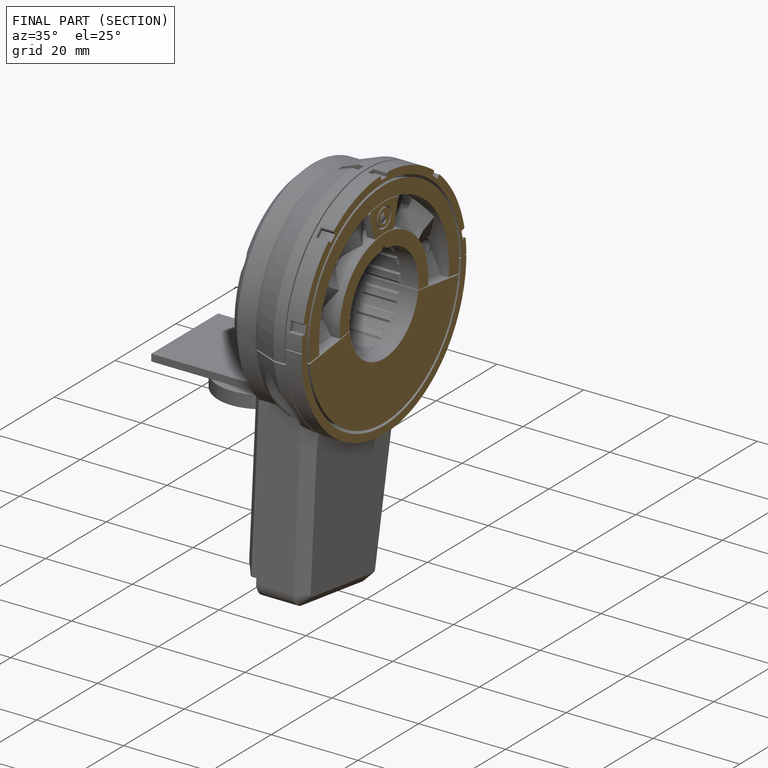
[diagram: finished part — half-section view (interior)]
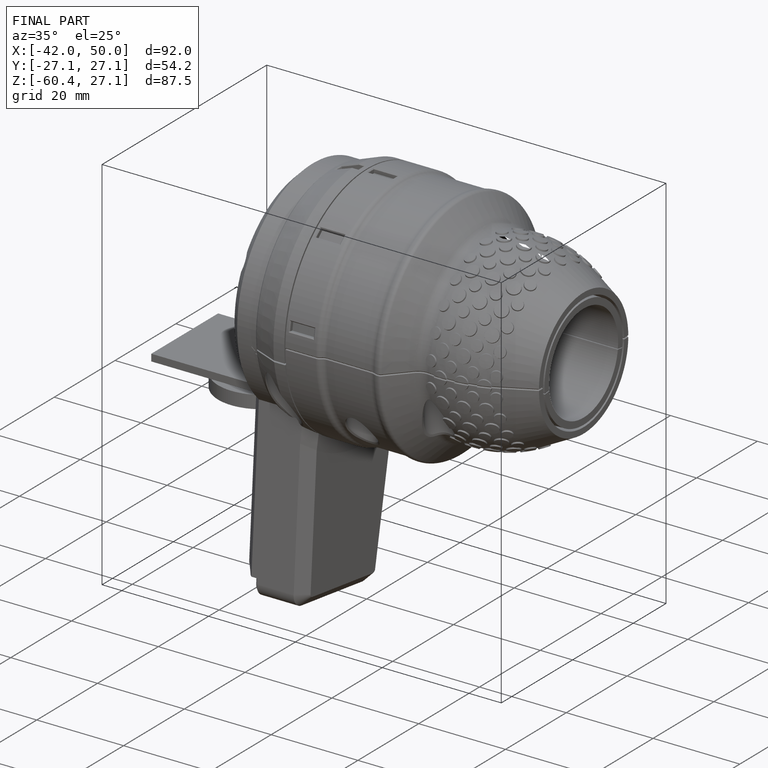
[diagram: finished part — iso view with bounding-box wireframe]
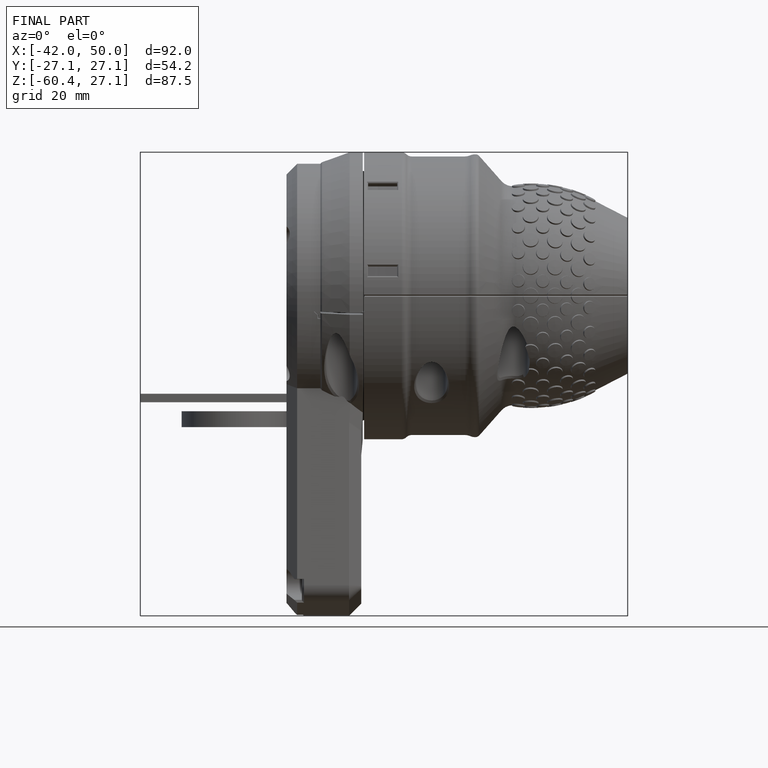
[diagram: finished part — front view with bounding-box wireframe]
